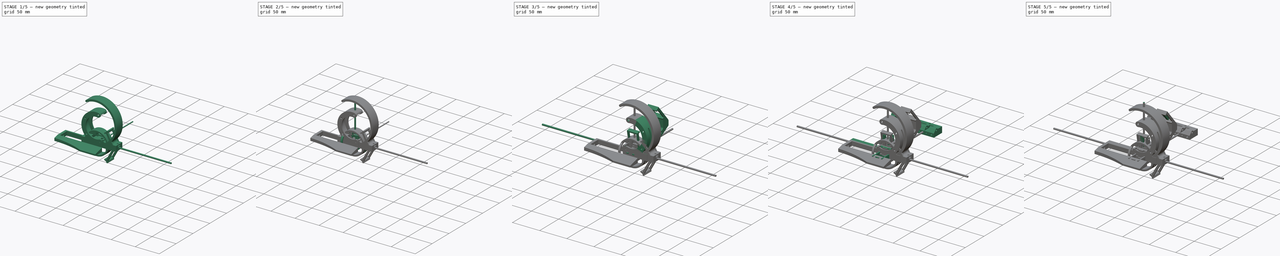
[diagram: build sequence overview — one tinted view per stage of 5, left to right]
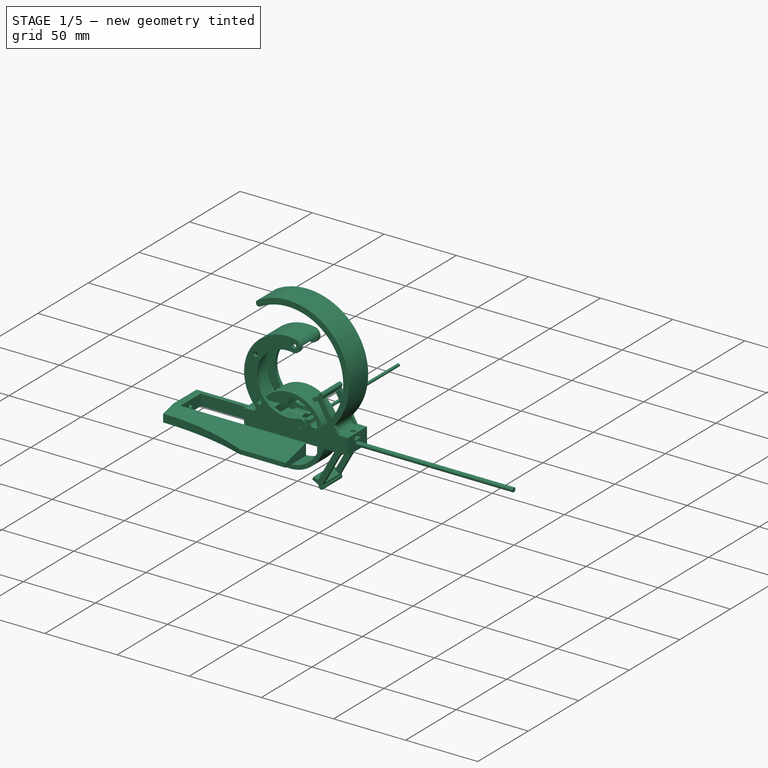
[diagram: stage 1 of 5 — iso view after this stage's code; geometry added in this stage tinted green]
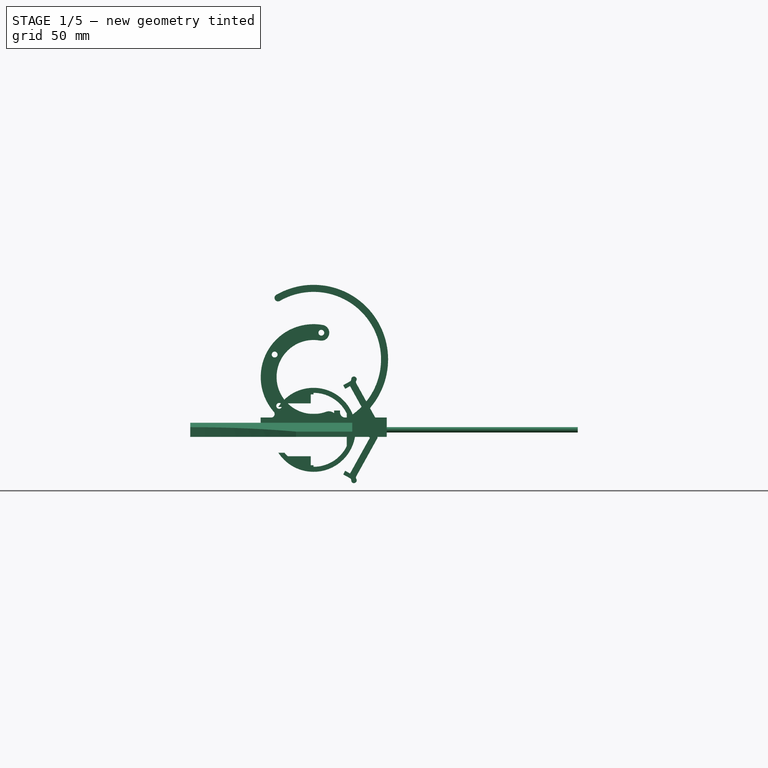
[diagram: stage 1 of 5 — front view after this stage's code; geometry added in this stage tinted green]
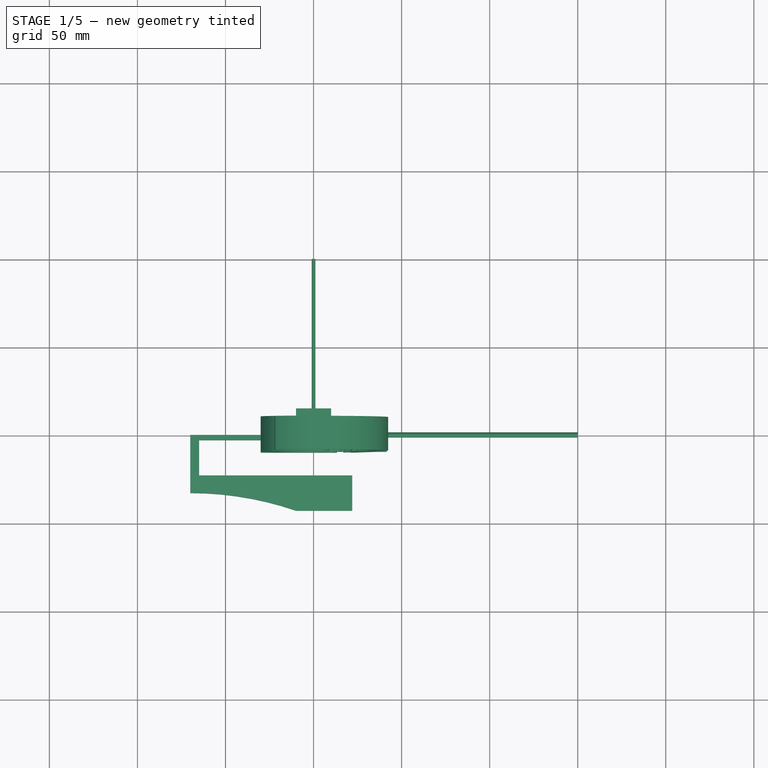
[diagram: stage 1 of 5 — top view after this stage's code; geometry added in this stage tinted green]
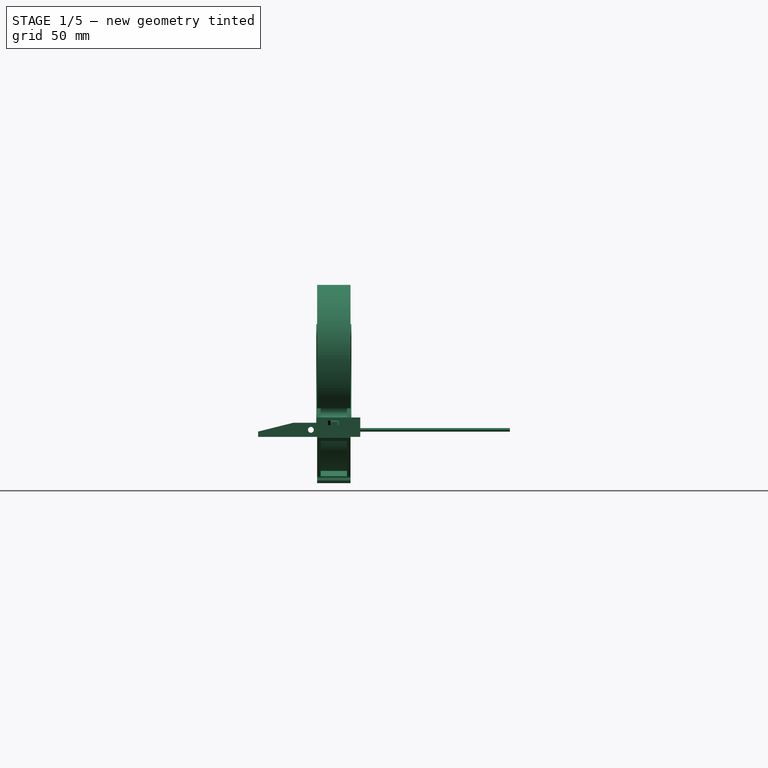
[diagram: stage 1 of 5 — right view after this stage's code; geometry added in this stage tinted green]
FCSTD DOCUMENT  (FreeCAD 0.20R29177 (Git))
Label: Structure
License: All rights reserved
LicenseURL: http://en.wikipedia.org/wiki/All_rights_reserved
objects: Sketcher::SketchObject×201, PartDesign::Pocket×114, PartDesign::Pad×80, PartDesign::Body×60, App::Part×31, App::Link×20, Part::Feature×16, Spreadsheet::Sheet×4, PartDesign::AdditiveLoft×4, PartDesign::Revolution×2, Part::MultiFuse×2, PartDesign::Plane×1, PartDesign::PolarPattern×1, Part::Cut×1
note: 682 computed .brp shape members not serialized (recipe doc carries the construction recipe); baked Part::Feature solids carry a one-line shape summary decoded from their .brp

FEATURE [PartDesign::Body] Body065  label="BaseStructure0"
  Group = -> [Sketch264,Pad169,Sketch265,Pocket085]
  Origin = -> Origin107
  Tip = -> Pocket085
FEATURE [Sketcher::SketchObject] Sketch266
  FullyConstrained = true
  MapMode = 5
  Placement = pos=(0,0,0) rot=(0.57735,0.57735,0.57735;2.0944rad)
  Support = -> [YZ_Plane109]
  expr: Constraints[13] = 3 + <<BaseParameters>>.tolerance
  expr: Constraints[15] = 3 + 2 * <<BaseParameters>>.axisTolerance
  sketch-geometry (6):
    g0: LineSegment StartX=-7 StartY=3 StartZ=0 EndX=-7 EndY=-4 EndZ=0
    g1: LineSegment StartX=-7 StartY=-4 StartZ=0 EndX=3 EndY=-4 EndZ=0
    g2: LineSegment StartX=3 StartY=-4 StartZ=0 EndX=3 EndY=6.15 EndZ=0
    g3: ArcOfCircle CenterX=0 CenterY=6.15 CenterZ=0 NormalX=0 NormalY=0 NormalZ=1 AngleXU=0 Radius=3 StartAngle=0 EndAngle=2.39518
    g4: LineSegment StartX=-2.20238 StartY=8.18704 StartZ=0 EndX=-7 EndY=3 EndZ=0
    g5: Circle CenterX=0 CenterY=6.15 CenterZ=0 NormalX=0 NormalY=0 NormalZ=1 AngleXU=0 Radius=1.65
  constraints (16):
    c: Vertical(g0)
    c: Coincident(g0,g1)
    c: Horizontal(g1)
    c: Coincident(g1,g2)
    c: Vertical(g2)
    c: Tangent(g2,g3) = -1.5708
    c: Tangent(g3,g4) = -1.5708
    c: Coincident(g4,g0)
    c: Distance(g0) = 7
    c: Distance(g0,g-1) = 4
    c: Distance(g1,g-2) = 3
    c: Distance(g0,g-2) = 7
    c: PointOnObject(g3,g-2)
    c: DistanceY(g0,g3) = 3.15
    c: Coincident(g5,g3)
    c: Diameter(g5) = 3.3
FEATURE [PartDesign::Pad] Pad170
  Direction = (1,-2e-16,3e-16)
  Length = 20
  Length2 = 10
  Midplane = true
  Placement = pos=(0,0,0) rot=(0.57735,0.57735,0.57735;2.0944rad)
  Profile = -> Sketch266
  ReferenceAxis = -> Sketch266 [N_Axis]
  Type = 0
FEATURE [Sketcher::SketchObject] Sketch268
  FullyConstrained = true
  MapMode = 5
  Placement = pos=(0,0,0) rot=(1,0,0;1.5708rad)
  Support = -> [XZ_Plane110]
  sketch-geometry (1):
    g0: Circle CenterX=0 CenterY=0 CenterZ=0 NormalX=0 NormalY=0 NormalZ=1 AngleXU=0 Radius=1
  constraints (2):
    c: Coincident(g0,g-1)
    c: Diameter(g0) = 2
FEATURE [PartDesign::Pad] Pad171
  Direction = (0,-1,-2e-16)
  Length = 100
  Length2 = 10
  Placement = pos=(0,0,0) rot=(1,0,0;1.5708rad)
  Profile = -> Sketch268
  ReferenceAxis = -> Sketch268 [N_Axis]
  Reversed = true
  Type = 0
  expr: Length = <<BaseParameters>>.horizontalRailLength
FEATURE [PartDesign::Body] Body067  label="HorizontalRail"
  Group = -> [Sketch268,Pad171]
  Origin = -> Origin110
  Placement = pos=(6.5,0,0) rot=(0,0,1;0rad)
  Tip = -> Pad171
FEATURE [Sketcher::SketchObject] Sketch269
  FullyConstrained = true
  MapMode = 5
  Placement = pos=(0,0,0) rot=(1,0,0;1.5708rad)
  Support = -> [XZ_Plane109]
  expr: Constraints[3] = 2 + <<BaseParameters>>.axisTolerance * 2
  expr: Constraints[6] = 3 + 2 * <<BaseParameters>>.axisTolerance
  sketch-geometry (3):
    g0: Circle CenterX=-6.5 CenterY=0 CenterZ=0 NormalX=0 NormalY=0 NormalZ=1 AngleXU=0 Radius=1.15
    g1: Circle CenterX=6.5 CenterY=0 CenterZ=0 NormalX=0 NormalY=0 NormalZ=1 AngleXU=0 Radius=1.15
    g2: Circle CenterX=0 CenterY=0 CenterZ=0 NormalX=0 NormalY=0 NormalZ=1 AngleXU=0 Radius=1.65
  constraints (7):
    c: PointOnObject(g0,g-1)
    c: Symmetric(g0,g1,g-2)
    c: Equal(g0,g1)
    c: Diameter(g1) = 2.3
    c: Distance(g1,g0) = 13
    c: Coincident(g2,g-1)
    c: Diameter(g2) = 3.3
FEATURE [PartDesign::Pocket] Pocket087
  BaseFeature = -> Pad170
  Direction = (0,1,2e-16)
  Length = 7
  Length2 = 5
  Placement = pos=(0,0,0) rot=(0.57735,0.57735,0.57735;2.0944rad)
  Profile = -> Sketch269
  ReferenceAxis = -> Sketch269 [N_Axis]
  Reversed = true
  Type = 0
FEATURE [App::Link] Link013  label="BaseStructure002"
  LinkPlacement = pos=(-20,2.38419e-06,0) rot=(0,0,1;0rad)
  LinkedObject = -> Body065
  Placement = pos=(-20,2.38419e-06,0) rot=(0,0,1;0rad)
FEATURE [App::Link] Link014  label="BaseStructure003"
  LinkPlacement = pos=(-40,4.76837e-06,0) rot=(0,0,1;0rad)
  LinkedObject = -> Link013
  Placement = pos=(-40,4.76837e-06,0) rot=(0,0,1;0rad)
FEATURE [App::Link] Link015  label="BaseStructure004"
  LinkPlacement = pos=(-60,7.15256e-06,0) rot=(0,0,1;0rad)
  LinkedObject = -> Link014
  Placement = pos=(-60,7.15256e-06,0) rot=(0,0,1;0rad)
FEATURE [App::Link] Link016  label="BaseStructure005"
  LinkPlacement = pos=(-20,100,0) rot=(0,0,1;0rad)
  LinkedObject = -> Body066
  Placement = pos=(-20,100,0) rot=(0,0,1;0rad)
  expr: .Placement.Base.y = <<BaseParameters>>.horizontalRailLength
FEATURE [App::Link] Link017  label="BaseStructure006"
  LinkPlacement = pos=(-40,100,0) rot=(0,0,1;0rad)
  LinkedObject = -> Link016
  Placement = pos=(-40,100,0) rot=(0,0,1;0rad)
  expr: .Placement.Base.y = <<BaseParameters>>.horizontalRailLength
FEATURE [App::Link] Link018  label="BaseStructure007"
  LinkPlacement = pos=(-60,100,0) rot=(0,0,1;0rad)
  LinkedObject = -> Link017
  Placement = pos=(-60,100,0) rot=(0,0,1;0rad)
  expr: .Placement.Base.y = <<BaseParameters>>.horizontalRailLength
FEATURE [Sketcher::SketchObject] Sketch270
  FullyConstrained = true
  MapMode = 5
  Placement = pos=(0,0,0) rot=(0.57735,0.57735,0.57735;2.0944rad)
  Support = -> [YZ_Plane112]
  expr: Constraints[7] = 7 - <<BaseParameters>>.tolerance
  sketch-geometry (6):
    g0: LineSegment StartX=-5 StartY=-4 StartZ=0 EndX=5 EndY=-4 EndZ=0
    g1: LineSegment StartX=-5 StartY=2.85 StartZ=0 EndX=-5 EndY=-4 EndZ=0
    g2: LineSegment StartX=-5 StartY=2.85 StartZ=0 EndX=0 EndY=2.85 EndZ=0
    g3: GeomPoint X=0 Y=6 Z=0
    g4: LineSegment StartX=0 StartY=2.85 StartZ=0 EndX=5 EndY=2.85 EndZ=0
    g5: LineSegment StartX=5 StartY=2.85 StartZ=0 EndX=5 EndY=-4 EndZ=0
  constraints (17):
    c: Coincident(g1,g0)
    c: Horizontal(g0)
    c: Distance(g0,g-1) = 4
    c: PointOnObject(g2,g-2)
    c: Vertical(g1)
    c: Horizontal(g2)
    c: Coincident(g1,g2)
    c: Distance(g1) = 6.85
    c: Distance(g0,g-2) = 5
    c: PointOnObject(g3,g-2)
    c: Distance(g3,g-1) = 6
    c: Coincident(g2,g4)
    c: Horizontal(g4)
    c: Coincident(g4,g5)
    c: Coincident(g5,g0)
    c: Vertical(g5)
    c: Equal(g2,g4)
FEATURE [PartDesign::Pad] Pad172
  Direction = (1,-2e-16,3e-16)
  Length = 18
  Length2 = 10
  Midplane = true
  Placement = pos=(0,0,0) rot=(0.57735,0.57735,0.57735;2.0944rad)
  Profile = -> Sketch270
  ReferenceAxis = -> Sketch270 [N_Axis]
  Type = 0
FEATURE [Sketcher::SketchObject] Sketch271
  FullyConstrained = true
  MapMode = 5
  Placement = pos=(0,0,0) rot=(1,0,0;1.5708rad)
  Support = -> [XZ_Plane112]
  expr: Constraints[3] = 2 + <<BaseParameters>>.axisTolerance * 2
  expr: Constraints[6] = 3 + 2 * <<BaseParameters>>.axisTolerance
  sketch-geometry (3):
    g0: Circle CenterX=-6.5 CenterY=0 CenterZ=0 NormalX=0 NormalY=0 NormalZ=1 AngleXU=0 Radius=1.15
    g1: Circle CenterX=6.5 CenterY=0 CenterZ=0 NormalX=0 NormalY=0 NormalZ=1 AngleXU=0 Radius=1.15
    g2: Circle CenterX=0 CenterY=0 CenterZ=0 NormalX=0 NormalY=0 NormalZ=1 AngleXU=0 Radius=1.65
  constraints (7):
    c: PointOnObject(g0,g-1)
    c: Symmetric(g1,g0,g-2)
    c: Distance(g0,g1) = 13
    c: Diameter(g1) = 2.3
    c: Equal(g0,g1)
    c: Coincident(g2,g-1)
    c: Diameter(g2) = 3.3
FEATURE [PartDesign::Pocket] Pocket088
  BaseFeature = -> Pad172
  Direction = (0,1,2e-16)
  Length = 27
  Length2 = 5
  Midplane = true
  Placement = pos=(0,0,0) rot=(0.57735,0.57735,0.57735;2.0944rad)
  Profile = -> Sketch271
  ReferenceAxis = -> Sketch271 [N_Axis]
  Type = 0
FEATURE [Sketcher::SketchObject] Sketch272
  FullyConstrained = true
  MapMode = 5
  Placement = pos=(0,0,0) rot=(0.57735,0.57735,0.57735;2.0944rad)
  Support = -> [YZ_Plane112]
  expr: Constraints[12] = 3 - <<BaseParameters>>.tolerance
  expr: Constraints[3] = 3 + <<BaseParameters>>.axisTolerance * 2
  sketch-geometry (6):
    g0: LineSegment StartX=-5 StartY=2.85 StartZ=0 EndX=0 EndY=2.85 EndZ=0
    g1: LineSegment StartX=-2.6663 StartY=7.37508 StartZ=0 EndX=-5 EndY=2.85 EndZ=0
    g2: Circle CenterX=0 CenterY=6 CenterZ=0 NormalX=0 NormalY=0 NormalZ=1 AngleXU=0 Radius=1.65
    g3: ArcOfCircle CenterX=0 CenterY=6 CenterZ=0 NormalX=0 NormalY=0 NormalZ=1 AngleXU=0 Radius=3 StartAngle=0.476149 EndAngle=2.66544
    g4: LineSegment StartX=0 StartY=2.85 StartZ=0 EndX=5 EndY=2.85 EndZ=0
    g5: LineSegment StartX=5 StartY=2.85 StartZ=0 EndX=2.6663 EndY=7.37508 EndZ=0
  constraints (15):
    c: PointOnObject(g0,g-2)
    c: Horizontal(g0)
    c: Coincident(g1,g0)
    c: Diameter(g2) = 3.3
    c: Tangent(g3,g1) = -1.5708
    c: Coincident(g0,g4)
    c: Coincident(g4,g5)
    c: Tangent(g5,g3) = -1.5708
    c: Radius(g3) = 3
    c: PointOnObject(g2,g-2)
    c: Coincident(g3,g2)
    c: Distance(g2,g-1) = 6
    c: Distance(g0,g-1) = 2.85
    c: Symmetric(g0,g4,g-2)
    c: Distance(g4) = 5
FEATURE [PartDesign::Pad] Pad173
  BaseFeature = -> Pocket088
  Direction = (1,-2e-16,3e-16)
  Length = 10
  Length2 = 10
  Midplane = true
  Placement = pos=(0,0,0) rot=(0.57735,0.57735,0.57735;2.0944rad)
  Profile = -> Sketch272
  ReferenceAxis = -> Sketch272 [N_Axis]
  Type = 0
FEATURE [PartDesign::Body] Body079  label="Support2Arm"
  Group = -> [Sketch300,Pad184]
  Origin = -> Origin125
  Placement = pos=(0,-13.7108,-12.7105) rot=(-1,0,0;0.496539rad)
  Tip = -> Pad184
  expr: .Placement.Base.y = -Sketch263.Constraints.support2y1
  expr: .Placement.Base.z = -Sketch263.Constraints.support2z1
  expr: .Placement.Rotation.Angle = Sketch263.Constraints.support2theta0
FEATURE [Sketcher::SketchObject] Sketch301  label="BaseSkeleton_Joystick"
  FullyConstrained = false
  MapMode = 5
  Support = -> [XY_Plane106]
  expr: Constraints[13] = Sketch313.Constraints.x0
  expr: Constraints[21] = 1.5 + <<BaseParameters>>.axisTolerance + <<BaseParameters>>.joystickBaseArm0Length
  expr: Constraints[23] = 1.5 + <<BaseParameters>>.axisTolerance
  expr: Constraints[26] = 1.5 + <<BaseParameters>>.axisTolerance
  expr: Constraints[31] = Sketch321.Constraints.y0
  expr: Constraints[38] = <<BaseParameters>>.joystickBaseArm2Length
  expr: Constraints[46] = 6 + <<BaseParameters>>.tolerance
  expr: Constraints[48] = <<BaseParameters>>.horizontalRailLength
  expr: Constraints[54] = <<BaseParameters>>.joystickBaseArm1Length
  expr: Constraints[55] = 1.5 + <<BaseParameters>>.axisTolerance
  sketch-geometry (21):
    g0: LineSegment StartX=-76 StartY=100 StartZ=0 EndX=-76 EndY=0 EndZ=0
    g1: LineSegment StartX=-76 StartY=25.9821 StartZ=0 EndX=-86 EndY=25.9821 EndZ=0
    g2: LineSegment StartX=-79.85 StartY=-55.6906 StartZ=0 EndX=90.1488 EndY=-56.3178 EndZ=0
    g3: LineSegment StartX=83.0978 StartY=-51.6534 StartZ=0 EndX=26 EndY=32.4451 EndZ=0
    g4: LineSegment StartX=26 StartY=32.4451 StartZ=0 EndX=16 EndY=32.4451 EndZ=0
    g5: LineSegment StartX=16 StartY=0 StartZ=0 EndX=16 EndY=100 EndZ=0
    g6: LineSegment StartX=26 StartY=32.4451 StartZ=0 EndX=26 EndY=42.4451 EndZ=0
    g7: GeomPoint X=26.9268 Y=31.08 Z=0
    g8: LineSegment StartX=83.0978 StartY=-51.6534 StartZ=0 EndX=82.171 EndY=-50.2883 EndZ=0
    g9: LineSegment StartX=82.171 StartY=-50.2883 StartZ=0 EndX=82.1489 EndY=-56.2883 EndZ=0
    g10: LineSegment StartX=82.1489 StartY=-56.2883 StartZ=0 EndX=82.1489 EndY=-46.2883 EndZ=0
    g11: LineSegment StartX=90.1488 StartY=-56.3178 StartZ=0 EndX=100.149 EndY=-56.3178 EndZ=0
    g12: LineSegment StartX=-86 StartY=-55.6679 StartZ=0 EndX=-79.85 EndY=-55.6906 EndZ=0
    g13: LineSegment StartX=-86 StartY=25.9821 StartZ=0 EndX=-86 EndY=-54.0179 EndZ=0
    g14: LineSegment StartX=-86 StartY=-54.0179 StartZ=0 EndX=-86 EndY=-55.6679 EndZ=0
    g15: GeomPoint X=-200 Y=0 Z=0
    g16: GeomPoint X=-15.423 Y=-55.9283 Z=0
    g17: LineSegment StartX=-15.423 StartY=-55.9283 StartZ=0 EndX=0.701986 EndY=-47.8962 EndZ=0
    g18: LineSegment StartX=-15.423 StartY=-55.9283 StartZ=0 EndX=-15.423 EndY=-45.9283 EndZ=0
    g19: LineSegment StartX=-15.423 StartY=-55.9283 StartZ=0 EndX=-6.472 EndY=-51.4697 EndZ=0
    g20: GeomPoint X=40.8322 Y=-56.1358 Z=0
  constraints (77):
    c: Vertical(g0)
    c: Distance(g-1,g0) = 76
    c: PointOnObject(g1,g0)
    c: Horizontal(g1)
    c: Coincident(g1,g13)
    c: Coincident(g12,g2)
    c: Coincident(g3,g4)
    c: Horizontal(g4)
    c: PointOnObject(g5,g-1)
    c: Vertical(g5)
    c: PointOnObject(g0,g-1)
    c: Horizontal(g0,g5)
    c: Distance(g5,g-2) = 16
    c: Distance(g4) = 10
    c: Distance(g1) = 10
    c: PointOnObject(g4,g5)
    c: Distance(g4,g-1) = 32.4451  'y0'
    c: Coincident(g6,g3)
    c: Vertical(g6)
    c: Angle(g3,g6) = 2.54514  'theta0'
    c: Distance(g6) = 10
    c: Distance(g3) = 101.65
    c: PointOnObject(g7,g3)
    c: Distance(g7,g3) = 1.65
    c: Distance(g7,g-2) = 26.9268  'x2'
    c: Distance(g7,g-1) = 31.08  'y2'
    c: Distance(g8) = 1.65
    c: Distance(g8,g-2) = 82.171  'x1'
    c: Distance(g8,g-1) = 50.2883  'y1'
    c: PointOnObject(g9,g2)
    c: Perpendicular(g2,g9)
    c: Distance(g9) = 6
    c: Distance(g2,g9) = 8
    c: Coincident(g10,g9)
    c: Vertical(g10)
    c: Equal(g10,g6)
    c: Distance(g2,g-1) = 56.3178  'y3'
    c: Distance(g2,g-2) = 90.1488  'x3'
    c: Distance(g2) = 170
    c: Coincident(g11,g2)
    c: Horizontal(g11)
    c: Distance(g11) = 10
    c: Angle(g11,g2) = 3.1379  'theta1'
    c: Distance(g12,g-2) = 79.85  'x4'
    c: Distance(g12,g-1) = 55.6906  'y4'
    c: Coincident(g14,g12)
    c: Distance(g12) = 6.15
    c: Parallel(g12,g2)
    c: Distance(g5) = 100
    c: Distance(g14,g-2) = 86  'x5'
    c: Distance(g14,g-1) = 55.6679  'y5'
    c: Coincident(g13,g14)
    c: Vertical(g13)
    c: Vertical(g14)
    c: Distance(g13) = 80
    c: Distance(g14) = 1.65
    c: Distance(g1,g-1) = 25.9821  'y6'
    c: Distance(g1,g-2) = 76  'x6'
    c: Coincident(g8,g3)
    c: Parallel(g8,g3)
    c: Coincident(g8,g9)
    c: PointOnObject(g15,g-1)
    c: Distance(g15,g-2) = 200  'xNeg'
    c: PointOnObject(g16,g2)
    c: DistanceX(g15,g16) = 184.577  'x7n'
    c: Distance(g16,g-1) = 55.9283  'y7'
    c: Coincident(g17,g16)
    c: Coincident(g18,g16)
    c: Vertical(g18)
    c: Equal(g18,g10)
    c: Coincident(g19,g16)
    c: Equal(g18,g19)
    c: Angle(g19,g18) = 1.10866  'theta7'
    c: Parallel(g19,g17)
    c: PointOnObject(g20,g2)
    c: Distance(g20,g-2) = 40.8322  'x8'
    c: Distance(g20,g-1) = 56.1358  'y8'
FEATURE [Sketcher::SketchObject] Sketch306
  AttachmentOffset = pos=(0,0,5) rot=(0,0,1;0rad)
  FullyConstrained = true
  MapMode = 5
  Placement = pos=(5,-1.1e-15,1.1e-15) rot=(0.57735,0.57735,0.57735;2.0944rad)
  Support = -> [YZ_Plane127]
  sketch-geometry (4):
    g0: LineSegment StartX=3 StartY=3 StartZ=0 EndX=-7 EndY=3 EndZ=0
    g1: LineSegment StartX=-7 StartY=3 StartZ=0 EndX=-7 EndY=-4 EndZ=0
    g2: LineSegment StartX=-7 StartY=-4 StartZ=0 EndX=3 EndY=-4 EndZ=0
    g3: LineSegment StartX=3 StartY=-4 StartZ=0 EndX=3 EndY=3 EndZ=0
  constraints (12):
    c: Coincident(g0,g1)
    c: Coincident(g1,g2)
    c: Coincident(g2,g3)
    c: Coincident(g3,g0)
    c: Horizontal(g0)
    c: Horizontal(g2)
    c: Vertical(g1)
    c: Vertical(g3)
    c: Distance(g0,g-1) = 3
    c: Distance(g0,g-2) = 3
    c: Distance(g2,g-1) = 4
    c: Distance(g0,g-2) = 7
FEATURE [PartDesign::Pad] Pad189
  Direction = (1,-2e-16,3e-16)
  Length = 11
  Length2 = 10
  Placement = pos=(0,0,0) rot=(0.57735,0.57735,0.57735;2.0944rad)
  Profile = -> Sketch306
  ReferenceAxis = -> Sketch306 [N_Axis]
  Reversed = true
  Type = 0
FEATURE [Sketcher::SketchObject] Sketch307
  FullyConstrained = true
  MapMode = 5
  Placement = pos=(0,0,0) rot=(1,0,0;1.5708rad)
  Support = -> [XZ_Plane127]
  expr: Constraints[1] = 3 + 2 * <<BaseParameters>>.axisTolerance
  sketch-geometry (1):
    g0: Circle CenterX=0 CenterY=0 CenterZ=0 NormalX=0 NormalY=0 NormalZ=1 AngleXU=0 Radius=1.65
  constraints (2):
    c: Coincident(g0,g-1)
    c: Diameter(g0) = 3.3
FEATURE [PartDesign::Pocket] Pocket106
  BaseFeature = -> Pad189
  Direction = (0,1,2e-16)
  Length = 7
  Length2 = 5
  Placement = pos=(0,0,0) rot=(0.57735,0.57735,0.57735;2.0944rad)
  Profile = -> Sketch307
  ReferenceAxis = -> Sketch307 [N_Axis]
  Reversed = true
  Type = 0
FEATURE [PartDesign::Body] Body097  label="Ring"
  Group = -> [Pad207,Pocket131,Pocket130,Pocket133]
  Origin = -> Origin149
  Tip = -> Pocket133
FEATURE [Sketcher::SketchObject] Sketch347
  AttachmentOffset = pos=(0,0,-6) rot=(0,0,1;0rad)
  FullyConstrained = true
  MapMode = 5
  Placement = pos=(-6,1.3e-15,-1.3e-15) rot=(0.57735,0.57735,0.57735;2.0944rad)
  Support = -> [YZ_Plane127]
  expr: Constraints[11] = 3 + 2 * <<BaseParameters>>.axisTolerance
  expr: Constraints[12] = 3 + <<BaseParameters>>.tolerance
  sketch-geometry (5):
    g0: LineSegment StartX=-7 StartY=3 StartZ=0 EndX=3 EndY=3 EndZ=0
    g1: LineSegment StartX=3 StartY=3 StartZ=0 EndX=3 EndY=6.15 EndZ=0
    g2: ArcOfCircle CenterX=0 CenterY=6.15 CenterZ=0 NormalX=0 NormalY=0 NormalZ=1 AngleXU=0 Radius=3 StartAngle=0 EndAngle=2.39518
    g3: LineSegment StartX=-2.20238 StartY=8.18704 StartZ=0 EndX=-7 EndY=3 EndZ=0
    g4: Circle CenterX=0 CenterY=6.15 CenterZ=0 NormalX=0 NormalY=0 NormalZ=1 AngleXU=0 Radius=1.65
  constraints (13):
    c: Horizontal(g0)
    c: Coincident(g0,g1)
    c: Vertical(g1)
    c: Tangent(g1,g2) = -1.5708
    c: Tangent(g2,g3) = -1.5708
    c: Coincident(g3,g0)
    c: Distance(g0,g-1) = 3
    c: Distance(g0,g-2) = 3
    c: Distance(g0,g-2) = 7
    c: Coincident(g4,g2)
    c: PointOnObject(g2,g-2)
    c: Diameter(g4) = 3.3
    c: Distance(g2,g0) = 3.15
FEATURE [PartDesign::Pad] Pad208
  BaseFeature = -> Pocket106
  Direction = (1,-2e-16,3e-16)
  Length = 11
  Length2 = 10
  Placement = pos=(0,0,0) rot=(0.57735,0.57735,0.57735;2.0944rad)
  Profile = -> Sketch347
  ReferenceAxis = -> Sketch347 [N_Axis]
  Type = 0
FEATURE [Sketcher::SketchObject] Sketch357
  FullyConstrained = false
  MapMode = 5
  Placement = pos=(0,0,0) rot=(0.57735,0.57735,0.57735;2.0944rad)
  Support = -> [YZ_Plane106]
  sketch-geometry (7):
    g0: LineSegment StartX=0 StartY=0 StartZ=0 EndX=80.0705 EndY=0 EndZ=0
    g1: LineSegment StartX=80.0705 StartY=0 StartZ=0 EndX=80.0705 EndY=6.24829 EndZ=0
    g2: LineSegment StartX=80.0705 StartY=6.24829 StartZ=0 EndX=87.0267 EndY=68.9938 EndZ=0
    g3: LineSegment StartX=18.5592 StartY=0 StartZ=0 EndX=18.5592 EndY=6.01981 EndZ=0
    g4: LineSegment StartX=18.5592 StartY=6.01981 StartZ=0 EndX=-2.1084 EndY=27.6035 EndZ=0
    g5: LineSegment StartX=-2.1084 StartY=27.6035 StartZ=0 EndX=39.2263 EndY=33.68 EndZ=0
    g6: LineSegment StartX=39.2263 StartY=33.68 StartZ=0 EndX=67.7306 EndY=59.9716 EndZ=0
  constraints (10):
    c: Coincident(g0,g-1)
    c: PointOnObject(g0,g-1)
    c: Coincident(g0,g1)
    c: Vertical(g1)
    c: Coincident(g1,g2)
    c: PointOnObject(g3,g0)
    c: Vertical(g3)
    c: Coincident(g3,g4)
    c: Coincident(g4,g5)
    c: Coincident(g5,g6)
FEATURE [Sketcher::SketchObject] Sketch358
  FullyConstrained = true
  MapMode = 5
  Placement = pos=(0,0,0) rot=(1,0,0;1.5708rad)
  Support = -> [XZ_Plane154]
  expr: Constraints[3] = 2 * sqrt(15 * 15 - 7.5 * 7.5)
  expr: Constraints[60] = 40 + 2 * <<BaseParameters>>.tolerance
  sketch-geometry (31):
    g0: LineSegment StartX=-20 StartY=12.9904 StartZ=0 EndX=-20 EndY=-12.9904 EndZ=0
    g1: ArcOfCircle CenterX=0 CenterY=0 CenterZ=0 NormalX=0 NormalY=0 NormalZ=1 AngleXU=0 Radius=23.8485 StartAngle=3.71763 EndAngle=8.84874
    g2: LineSegment StartX=-18 StartY=10.8167 StartZ=0 EndX=-18 EndY=-10.8167 EndZ=0
    g3: LineSegment StartX=-20 StartY=12.9904 StartZ=0 EndX=-18 EndY=10.8167 EndZ=0
    g4: LineSegment StartX=-20 StartY=-12.9904 StartZ=0 EndX=-18 EndY=-10.8167 EndZ=0
    g5: ArcOfCircle CenterX=0 CenterY=0 CenterZ=0 NormalX=0 NormalY=0 NormalZ=1 AngleXU=0 Radius=21 StartAngle=3.9372 EndAngle=4.63612
    g6: ArcOfCircle CenterX=0 CenterY=0 CenterZ=0 NormalX=0 NormalY=0 NormalZ=1 AngleXU=0 Radius=21 StartAngle=1.64706 EndAngle=2.34599
    g7: LineSegment StartX=-14.6969 StartY=15 StartZ=0 EndX=-1.6 EndY=15 EndZ=0
    g8: LineSegment StartX=-14.6969 StartY=-15 StartZ=0 EndX=-1.6 EndY=-15 EndZ=0
    g9: GeomPoint X=-16.5 Y=12.9904 Z=0
    g10: ArcOfCircle CenterX=0 CenterY=0 CenterZ=0 NormalX=0 NormalY=0 NormalZ=1 AngleXU=0 Radius=21 StartAngle=2.34599 EndAngle=2.47465
    g11: ArcOfCircle CenterX=0 CenterY=0 CenterZ=0 NormalX=0 NormalY=0 NormalZ=1 AngleXU=0 Radius=21 StartAngle=2.47465 EndAngle=2.60049
    g12: ArcOfCircle CenterX=0 CenterY=0 CenterZ=0 NormalX=0 NormalY=0 NormalZ=1 AngleXU=0 Radius=21 StartAngle=3.68269 EndAngle=3.80854
    g13: ArcOfCircle CenterX=0 CenterY=0 CenterZ=0 NormalX=0 NormalY=0 NormalZ=1 AngleXU=0 Radius=21 StartAngle=3.80854 EndAngle=3.9372
    g14: LineSegment StartX=-20 StartY=-12.9904 StartZ=0 EndX=-16.5 EndY=-12.9904 EndZ=0
    g15: LineSegment StartX=-20 StartY=12.9904 StartZ=0 EndX=-16.5 EndY=12.9904 EndZ=0
    g16: LineSegment StartX=-1.6 StartY=-20.15 StartZ=0 EndX=-3.8e-15 EndY=-20.15 EndZ=0
    g17: LineSegment StartX=-3.9e-15 StartY=-20.15 StartZ=0 EndX=-3.9e-15 EndY=-21 EndZ=0
    g18: ArcOfCircle CenterX=0 CenterY=0 CenterZ=0 NormalX=0 NormalY=0 NormalZ=1 AngleXU=0 Radius=21 StartAngle=4.63612 EndAngle=4.71239
    g19: ArcOfCircle CenterX=0 CenterY=0 CenterZ=0 NormalX=0 NormalY=0 NormalZ=1 AngleXU=0 Radius=21 StartAngle=1.5708 EndAngle=1.64706
    g20: LineSegment StartX=-1.6 StartY=20.15 StartZ=0 EndX=1.3e-15 EndY=20.15 EndZ=0
    g21: LineSegment StartX=1.3e-15 StartY=20.15 StartZ=0 EndX=1.3e-15 EndY=21 EndZ=0
    g22: LineSegment StartX=-1.6 StartY=-15 StartZ=0 EndX=-1.6 EndY=-20.15 EndZ=0
    g23: LineSegment StartX=-1.6 StartY=-20.15 StartZ=0 EndX=-1.6 EndY=-20.939 EndZ=0
    g24: LineSegment StartX=-1.6 StartY=15 StartZ=0 EndX=-1.6 EndY=20.15 EndZ=0
    g25: LineSegment StartX=-1.6 StartY=20.15 StartZ=0 EndX=-1.6 EndY=20.939 EndZ=0
    g26: ArcOfCircle CenterX=0 CenterY=0 CenterZ=0 NormalX=0 NormalY=0 NormalZ=1 AngleXU=0 Radius=21 StartAngle=0.456623 EndAngle=1.5708
    g27: ArcOfCircle CenterX=0 CenterY=0 CenterZ=0 NormalX=0 NormalY=0 NormalZ=1 AngleXU=0 Radius=21 StartAngle=4.71239 EndAngle=5.82656
    g28: ArcOfCircle CenterX=0 CenterY=0 CenterZ=0 NormalX=0 NormalY=0 NormalZ=1 AngleXU=0 Radius=21 StartAngle=5.82656 EndAngle=6.73981
    g29: LineSegment StartX=18.8485 StartY=9.25931 StartZ=0 EndX=18.8485 EndY=-9.25931 EndZ=0
    g30: GeomPoint X=23.8485 Y=0 Z=0
  constraints (85):
    c: Distance(g-1,g0) = 20
    c: Coincident(g1,g-1)
    c: Coincident(g1,g0)
    c: Distance(g0) = 25.9808
    c: Coincident(g1,g0)
    c: Vertical(g0)
    c: Vertical(g2)
    c: Coincident(g12,g1)
    c: Coincident(g11,g2)
    c: Coincident(g12,g2)
    c: Distance(g1,g2) = 18
    c: Coincident(g3,g0)
    c: Coincident(g3,g2)
    c: Coincident(g4,g0)
    c: Coincident(g4,g2)
    c: Coincident(g13,g5)
    c: Coincident(g12,g5)
    c: Coincident(g6,g10)
    c: Coincident(g5,g10)
    c: Coincident(g5,g18)
    c: Coincident(g5,g18)
    c: Coincident(g19,g6)
    c: Coincident(g18,g6)
    c: Coincident(g7,g10)
    c: Coincident(g24,g7)
    c: Coincident(g25,g19)
    c: Coincident(g8,g13)
    c: Coincident(g22,g8)
    c: Coincident(g23,g5)
    c: Distance(g7,g8) = 30  'l0'
    c: Equal(g8,g7)
    c: Vertical(g7,g8)
    c: Distance(g8,g-2) = 1.6
    c: Distance(g9,g-2) = 16.5  'x0'
    c: Horizontal(g1,g9)
    c: Coincident(g10,g11)
    c: Coincident(g10,g11)
    c: Coincident(g10,g9)
    c: Coincident(g12,g13)
    c: Coincident(g12,g13)
    c: Coincident(g14,g1)
    c: Coincident(g14,g12)
    c: Horizontal(g14)
    c: Coincident(g15,g1)
    c: Coincident(g15,g10)
    c: Horizontal(g16)
    c: Coincident(g16,g17)
    c: Vertical(g17)
    c: Coincident(g18,g27)
    c: Coincident(g18,g27)
    c: Radius(g18) = 21
    c: Coincident(g18,g17)
    c: Coincident(g26,g19)
    c: Coincident(g27,g19)
    c: Horizontal(g20)
    c: Coincident(g20,g21)
    c: Coincident(g21,g26)
    c: Vertical(g21)
    c: Equal(g20,g16)
    c: Equal(g17,g21)
    c: Distance(g20,g16) = 40.3
    c: Coincident(g22,g23)
    c: Vertical(g22)
    c: Vertical(g23)
    c: Coincident(g22,g16)
    c: Coincident(g24,g25)
    c: Vertical(g24)
    c: Vertical(g25)
    c: Coincident(g24,g20)
    c: Equal(g24,g22)
    c: Horizontal(g7)
    c: PointOnObject(g16,g-2)
    c: Coincident(g28,g26)
    c: Coincident(g27,g26)
    c: Coincident(g27,g28)
    c: Coincident(g27,g28)
    c: Coincident(g29,g26)
    c: Coincident(g29,g27)
    c: Vertical(g29)
    c: PointOnObject(g30,g1)
    c: PointOnObject(g30,g-1)
    c: Distance(g30,g29) = 5
    c: Distance(g1,g29) = 18.8485  'x1'
    c: Radius(g1) = 23.8485  'r0'
    c: Radius(g26) = 21  'r1'
FEATURE [PartDesign::Pad] Pad212
  Direction = (0,-1,-2e-16)
  Length = 15
  Length2 = 10
  Midplane = true
  Placement = pos=(0,0,0) rot=(1,0,0;1.5708rad)
  Profile = -> Sketch358
  ReferenceAxis = -> Sketch358 [N_Axis]
  Type = 0
FEATURE [Spreadsheet::Sheet] Spreadsheet003  label="JoystickParameters"
  cells = A1=转子高度; B1(rotorHeight)=30
FEATURE [Sketcher::SketchObject] Sketch366
  FullyConstrained = true
  MapMode = 5
  Placement = pos=(0,0,0) rot=(1,0,0;1.5708rad)
  Support = -> [XZ_Plane169]
  expr: Constraints[10] = 3 + 2 * <<BaseParameters>>.axisTolerance
  expr: Constraints[14] = Sketch358.Constraints.r0 + 6mm + 1mm * <<BaseParameters>>.tolerance
  expr: Constraints[18] = Sketch358.Constraints.r1
  expr: Constraints[6] = <<JoystickParameters>>.rotorHeight
  expr: Constraints[7] = Sketch358.Constraints.r0
  sketch-geometry (20):
    g0: LineSegment StartX=-30.0353 StartY=-4 StartZ=0 EndX=13.2195 EndY=-4 EndZ=0
    g1: LineSegment StartX=13.2195 StartY=-4 StartZ=0 EndX=13.2195 EndY=6.03927 EndZ=0
    g2: Circle CenterX=0 CenterY=30 CenterZ=0 NormalX=0 NormalY=0 NormalZ=1 AngleXU=0 Radius=23.8485
    g3: Circle CenterX=-19.533 CenterY=13.6099 CenterZ=0 NormalX=0 NormalY=0 NormalZ=1 AngleXU=0 Radius=1.65
    g4: Circle CenterX=8.72099 CenterY=6.03927 CenterZ=0 NormalX=0 NormalY=0 NormalZ=1 AngleXU=0 Radius=1.65
    g5: ArcOfCircle CenterX=8.72099 CenterY=6.03927 CenterZ=0 NormalX=0 NormalY=0 NormalZ=1 AngleXU=0 Radius=4.49848 StartAngle=0 EndAngle=1.91986
    g6: ArcOfCircle CenterX=0 CenterY=30 CenterZ=0 NormalX=0 NormalY=0 NormalZ=1 AngleXU=0 Radius=21 StartAngle=1.39626 EndAngle=5.06145
    g7: ArcOfCircle CenterX=4.4279 CenterY=55.1118 CenterZ=0 NormalX=0 NormalY=0 NormalZ=1 AngleXU=0 Radius=4.49924 StartAngle=4.53786 EndAngle=7.67945
    g8: ArcOfCircle CenterX=0 CenterY=30 CenterZ=0 NormalX=0 NormalY=0 NormalZ=1 AngleXU=0 Radius=29.9985 StartAngle=1.39626 EndAngle=3.86085
    g9: ArcOfCircle CenterX=-24.0353 CenterY=8.95089 CenterZ=0 NormalX=0 NormalY=0 NormalZ=1 AngleXU=0 Radius=1.95089 StartAngle=4.71239 EndAngle=7.00244
    g10: LineSegment StartX=-24.0353 StartY=7 StartZ=0 EndX=-30.0353 EndY=7 EndZ=0
    g11: LineSegment StartX=-30.0353 StartY=7 StartZ=0 EndX=-30.0353 EndY=-4 EndZ=0
    g12: LineSegment StartX=4.4279 StartY=55.1118 StartZ=0 EndX=0 EndY=30 EndZ=0
    g13: LineSegment StartX=0 StartY=30 StartZ=0 EndX=8.72099 EndY=6.03927 EndZ=0
    g14: Circle CenterX=4.42776 CenterY=55.1111 CenterZ=0 NormalX=0 NormalY=0 NormalZ=1 AngleXU=0 Radius=1.65
    g15: LineSegment StartX=-19.533 StartY=13.6099 StartZ=0 EndX=0 EndY=30 EndZ=0
    g16: Circle CenterX=-22.0823 CenterY=42.7492 CenterZ=0 NormalX=0 NormalY=0 NormalZ=1 AngleXU=0 Radius=1.65
    g17: LineSegment StartX=-22.0823 StartY=42.7492 StartZ=0 EndX=0 EndY=30 EndZ=0
    g18: GeomPoint X=-27.0353 Y=7 Z=0
    g19: GeomPoint X=-27.0353 Y=17 Z=0
  constraints (52):
    c: Horizontal(g0)
    c: Coincident(g0,g1)
    c: Vertical(g1)
    c: Distance(g0,g-1) = 4
    c: Distance(g0,g-2) = 30.0353  'x0'
    c: PointOnObject(g2,g-2)
    c: Distance(g2,g-1) = 30
    c: Radius(g2) = 23.8485
    c: Tangent(g3,g2)
    c: Tangent(g4,g2)
    c: Diameter(g4) = 3.3
    c: Coincident(g5,g4)
    c: Tangent(g7,g8) = -1.5708
    c: Tangent(g7,g6) = 1.5708
    c: Radius(g8) = 29.9985
    c: Tangent(g6,g5) = 1.5708
    c: Coincident(g6,g8)
    c: Coincident(g6,g2)
    c: Radius(g6) = 21
    c: Tangent(g5,g1) = -1.5708
    c: Distance(g4,g-1) = 6.03927  'z0'
    c: Tangent(g9,g10) = 1.5708
    c: Coincident(g10,g11)
    c: Coincident(g11,g0)
    c: Horizontal(g10)
    c: Vertical(g11)
    c: Tangent(g9,g8) = 1.5708
    c: Distance(g10,g-1) = 7
    c: Coincident(g12,g7)
    c: Coincident(g12,g6)
    c: Coincident(g13,g6)
    c: Coincident(g13,g4)
    c: Angle(g13,g12) = 2.61799
    c: PointOnObject(g14,g12)
    c: Equal(g14,g3)
    c: Tangent(g14,g2)
    c: Equal(g3,g4)
    c: Coincident(g15,g3)
    c: Coincident(g15,g6)
    c: Angle(g-2,g12) = 2.96706
    c: Equal(g16,g3)
    c: Tangent(g16,g2)
    c: Coincident(g17,g16)
    c: Coincident(g17,g6)
    c: Angle(g17,g15) = 1.22173
    c: Angle(g12,g17) = 1.22173
    c: PointOnObject(g18,g10)
    c: Distance(g18,g10) = 3
    c: PointOnObject(g19,g8)
    c: Vertical(g19,g18)
    c: Distance(g19,g18) = 10
    c: Distance(g18,g9) = 3
FEATURE [PartDesign::Pad] Pad214
  Direction = (0,-1,-2e-16)
  Length = 20
  Length2 = 10
  Midplane = true
  Placement = pos=(0,0,0) rot=(1,0,0;1.5708rad)
  Profile = -> Sketch366
  ReferenceAxis = -> Sketch366 [N_Axis]
  Type = 0
FEATURE [Sketcher::SketchObject] Sketch367
  FullyConstrained = true
  MapMode = 5
  Placement = pos=(0,0,0) rot=(1,0,0;1.5708rad)
  Support = -> [XZ_Plane169]
  expr: Constraints[1] = Sketch358.Constraints.r0 + 3mm + <<BaseParameters>>.tolerance * 1mm
  expr: Constraints[2] = <<JoystickParameters>>.rotorHeight
  sketch-geometry (1):
    g0: Circle CenterX=0 CenterY=30 CenterZ=0 NormalX=0 NormalY=0 NormalZ=1 AngleXU=0 Radius=26.9985
  constraints (3):
    c: PointOnObject(g0,g-2)
    c: Radius(g0) = 26.9985
    c: Distance(g0,g-1) = 30
FEATURE [PartDesign::Pocket] Pocket144
  BaseFeature = -> Pad214
  Direction = (0,1,2e-16)
  Length = 15.3
  Length2 = 5
  Midplane = true
  Placement = pos=(0,0,0) rot=(1,0,0;1.5708rad)
  Profile = -> Sketch367
  ReferenceAxis = -> Sketch367 [N_Axis]
  Type = 0
  expr: Length = 15 + 2 * <<BaseParameters>>.tolerance
FEATURE [Sketcher::SketchObject] Sketch368
  AttachmentOffset = pos=(0,0,15) rot=(0,0,1;0rad)
  FullyConstrained = true
  MapMode = 5
  Placement = pos=(15,-3.3e-15,3.3e-15) rot=(0.57735,0.57735,0.57735;2.0944rad)
  Support = -> [YZ_Plane169]
  expr: Constraints[1] = 3 + 2 * <<BaseParameters>>.axisTolerance
  sketch-geometry (1):
    g0: Circle CenterX=0 CenterY=0 CenterZ=0 NormalX=0 NormalY=0 NormalZ=1 AngleXU=0 Radius=1.65
  constraints (2):
    c: Coincident(g0,g-1)
    c: Diameter(g0) = 3.3
FEATURE [PartDesign::Pocket] Pocket145
  BaseFeature = -> Pocket144
  Direction = (-1,2e-16,-3e-16)
  Length = 49
  Length2 = 5
  Placement = pos=(0,0,0) rot=(1,0,0;1.5708rad)
  Profile = -> Sketch368
  ReferenceAxis = -> Sketch368 [N_Axis]
  Type = 0
FEATURE [PartDesign::Body] Body102  label="SingleKeyCircuitHolder"
  Group = -> [Sketch375,Pad218,Sketch380,Pad219,Sketch381,Pad220]
  Origin = -> Origin186
  Placement = pos=(0,0,-6.6) rot=(0,0,1;0rad)
  Tip = -> Pad220
FEATURE [App::Part] Part013  label="SingleKeyHolderPart"
  Group = -> [Body002,SingleKeyPCB_1,Body102]
  Origin = -> Origin083
  Placement = pos=(0,2.5,23) rot=(1,0,0;-1.39626rad)
  expr: .Placement.Base.y = <<KeyHolderParameter>>.key1y
  expr: .Placement.Base.z = <<KeyHolderParameter>>.key1z
  expr: .Placement.Rotation.Angle = -<<KeyHolderParameter>>.key1theta
FEATURE [App::Part] Part  label="KeyHolder"
  Group = -> [Spreadsheet,Part013,Link003,Link004,Link005,Part001,Body051,Body058,Body053,Link006,Part014]
  Origin = -> Origin
FEATURE [App::Part] Part018  label="KeyHolders"
  Group = -> [Part,Link008,Link009,Link010]
  Origin = -> Origin105
  Placement = pos=(0,14.7811,41.5434) rot=(1,0,0;0.098786rad)
  expr: .Placement.Base.y = Sketch403.Constraints.y3
  expr: .Placement.Base.z = Sketch403.Constraints.z3
  expr: .Placement.Rotation.Angle = 90deg - Sketch403.Constraints.theta3
FEATURE [Spreadsheet::Sheet] Spreadsheet004  label="ThumbKeyHolderParameter"
  cells = A1=拇指按键组高度; B1(thumbKeyHolderHeight)=40; A2=按键分布半径; B2(radius)=27; A3=按键相隔角度; B3(deltaTheta)=58
FEATURE [Sketcher::SketchObject] Sketch382
  FullyConstrained = true
  MapMode = 5
  Placement = pos=(0,0,0) rot=(1,0,0;1.5708rad)
  Support = -> [XZ_Plane187]
  expr: Constraints[3] = <<ThumbKeyHolderParameter>>.radius
  expr: Constraints[4] = <<ThumbKeyHolderParameter>>.deltaTheta
  sketch-geometry (24):
    g0: LineSegment StartX=0 StartY=0 StartZ=0 EndX=23.6147 EndY=13.0899 EndZ=0
    g1: LineSegment StartX=0 StartY=0 StartZ=0 EndX=23.6147 EndY=-13.0899 EndZ=0
    g2: LineSegment StartX=16.8274 StartY=25.3345 StartZ=0 EndX=30.4021 EndY=0.845184 EndZ=0
    g3: LineSegment StartX=30.4021 StartY=-0.845184 StartZ=0 EndX=16.8274 EndY=-25.3345 EndZ=0
    g4: ArcOfCircle CenterX=34.4713 CenterY=0 CenterZ=0 NormalX=0 NormalY=0 NormalZ=1 AngleXU=0 Radius=3.85069 StartAngle=5.77704 EndAngle=6.78933
    g5: ArcOfCircle CenterX=28.8773 CenterY=0 CenterZ=0 NormalX=0 NormalY=0 NormalZ=1 AngleXU=0 Radius=1.74333 StartAngle=5.77704 EndAngle=6.78933
    g6: GeomPoint X=30.6206 Y=0 Z=0
    g7: GeomPoint X=38.322 Y=0 Z=0
    g8: Circle CenterX=0 CenterY=0 CenterZ=0 NormalX=0 NormalY=0 NormalZ=1 AngleXU=0 Radius=38.322
    g9: ArcOfCircle CenterX=22.9497 CenterY=28.7282 CenterZ=0 NormalX=0 NormalY=0 NormalZ=1 AngleXU=0 Radius=1.55247 StartAngle=5.74213 EndAngle=9.40732
    g10: ArcOfCircle CenterX=19.8453 CenterY=28.7824 CenterZ=0 NormalX=0 NormalY=0 NormalZ=1 AngleXU=0 Radius=1.55247 StartAngle=5.21853 EndAngle=6.26573
    g11: ArcOfCircle CenterX=25.6112 CenterY=27.129 CenterZ=0 NormalX=0 NormalY=0 NormalZ=1 AngleXU=0 Radius=1.55247 StartAngle=2.60054 EndAngle=3.64774
    g12: LineSegment StartX=16.8274 StartY=25.3345 StartZ=0 EndX=20.5979 EndY=27.4246 EndZ=0
    g13: LineSegment StartX=16.8274 StartY=-25.3345 StartZ=0 EndX=20.5979 EndY=-27.4246 EndZ=0
    g14: ArcOfCircle CenterX=19.8453 CenterY=-28.7824 CenterZ=0 NormalX=0 NormalY=0 NormalZ=1 AngleXU=0 Radius=1.55247 StartAngle=0.0174533 EndAngle=1.06465
    g15: ArcOfCircle CenterX=22.9497 CenterY=-28.7282 CenterZ=0 NormalX=0 NormalY=0 NormalZ=1 AngleXU=0 Radius=1.55247 StartAngle=3.15905 EndAngle=6.82424
    g16: ArcOfCircle CenterX=25.6112 CenterY=-27.129 CenterZ=0 NormalX=0 NormalY=0 NormalZ=1 AngleXU=0 Radius=1.55247 StartAngle=2.63545 EndAngle=3.68264
    g17: LineSegment StartX=30.6206 StartY=0 StartZ=0 EndX=34.4713 EndY=0 EndZ=0
    g18: LineSegment StartX=34.4713 StartY=0 StartZ=0 EndX=38.322 EndY=0 EndZ=0
    g19: LineSegment StartX=37.8392 StartY=-1.86685 StartZ=0 EndX=36.322 EndY=-4.60395 EndZ=0
    g20: LineSegment StartX=36.322 StartY=-4.60395 StartZ=0 EndX=24.2534 EndY=-26.3764 EndZ=0
    g21: LineSegment StartX=24.2534 StartY=26.3764 StartZ=0 EndX=36.322 EndY=4.60395 EndZ=0
    g22: LineSegment StartX=36.322 StartY=4.60395 StartZ=0 EndX=37.8392 EndY=1.86685 EndZ=0
    g23: LineSegment StartX=36.322 StartY=4.60395 StartZ=0 EndX=36.322 EndY=-4.60395 EndZ=0
  constraints (65):
    c: Coincident(g0,g-1)
    c: Coincident(g1,g0)
    c: Equal(g0,g1)
    c: Distance(g0) = 27
    c: Angle(g1,g0) = 1.01229
    c: Perpendicular(g2,g0)
    c: Perpendicular(g3,g1)
    c: Symmetric(g3,g3,g1)
    c: Symmetric(g2,g2,g0)
    c: Equal(g2,g3)
    c: Distance(g2) = 28
    c: Angle(g0,g-2) = 1.06465  'theta'
    c: Coincident(g2,g12)
    c: Distance(g0,g-2) = 23.6147  'x1'
    c: Coincident(g13,g3)
    c: Distance(g0,g-1) = 13.0899  'z1'
    c: Tangent(g22,g4) = 1.5708
    c: Tangent(g19,g4) = 1.5708
    c: Coincident(g5,g2)
    c: Tangent(g5,g3) = 1.5708
    c: PointOnObject(g6,g5)
    c: PointOnObject(g7,g4)
    c: PointOnObject(g6,g-1)
    c: PointOnObject(g7,g-1)
    c: Coincident(g8,g0)
    c: Tangent(g8,g4)
    c: Tangent(g9,g8)
    c: Tangent(g10,g9) = 1.5708
    c: Tangent(g11,g9) = 1.5708
    c: Equal(g10,g9)
    c: Equal(g11,g9)
    c: Perpendicular(g2,g12)
    c: Tangent(g16,g20) = -1.5708
    c: Tangent(g14,g13) = 1.5708
    c: Tangent(g15,g14) = 1.5708
    c: Tangent(g16,g15) = 1.5708
    c: Tangent(g12,g10) = -1.5708
    c: Tangent(g21,g11) = -1.5708
    c: PointOnObject(g9,g12)
    c: Distance(g9,g2) = 7
    c: PointOnObject(g5,g-1)
    c: Tangent(g15,g8)
    c: Equal(g14,g15)
    c: Equal(g16,g15)
    c: PointOnObject(g15,g13)
    c: PointOnObject(g4,g-1)
    c: Coincident(g17,g6)
    c: Coincident(g17,g4)
    c: Coincident(g18,g4)
    c: Coincident(g18,g7)
    c: Equal(g18,g17)
    c: Radius(g8) = 38.322  'slotRadius'
    c: Coincident(g19,g20)
    c: Parallel(g19,g3)
    c: Parallel(g20,g3)
    c: Distance(g3,g20) = 7
    c: Perpendicular(g19,g13)
    c: PointOnObject(g15,g20)
    c: Coincident(g21,g22)
    c: PointOnObject(g9,g21)
    c: Coincident(g23,g21)
    c: Coincident(g23,g19)
    c: Vertical(g23)
    c: Parallel(g21,g22)
    c: Distance(g7,g23) = 2
FEATURE [Part::Feature] Part__Feature001  label="Keycap_adjusted v39"
  Placement = pos=(0,0,6.4) rot=(1,0,0;1.5708rad)
  shape: bbox 18.32 x 18.3 x 7.723 mm, 77 faces (baked)
FEATURE [Part::Feature] Part__Feature049  label="Body002"
  Placement = pos=(-7,-7,-5) rot=(0,0,1;0rad)
  shape: bbox 15.56 x 15.56 x 14.7 mm, 16 faces (baked)
FEATURE [App::Part] Part007  label="Key1"
  Group = -> [Part__Feature049,Part__Feature001]
  Origin = -> Origin011
  Placement = pos=(23.6147,0,13.0899) rot=(0,1,0;4.20624rad)
  expr: .Placement.Base.x = Sketch382.Constraints.x1
  expr: .Placement.Base.z = Sketch382.Constraints.z1
  expr: .Placement.Rotation.Angle = Sketch382.Constraints.theta + 180deg
FEATURE [Part::Feature] Part__Feature050  label="Keycap_adjusted v040"
  Placement = pos=(0,0,6.4) rot=(1,0,0;1.5708rad)
  shape: bbox 18.32 x 18.3 x 7.723 mm, 77 faces (baked)
FEATURE [Part::Feature] Part__Feature051  label="Body102"
  Placement = pos=(-7,-7,-5) rot=(0,0,1;0rad)
  shape: bbox 15.56 x 15.56 x 14.7 mm, 16 faces (baked)
FEATURE [App::Part] Part028  label="Key002"
  Group = -> [Part__Feature051,Part__Feature050]
  Origin = -> Origin190
  Placement = pos=(23.6147,0,-13.0899) rot=(0,1,0;5.21853rad)
  expr: .Placement.Base.x = Sketch382.Constraints.x1
  expr: .Placement.Base.z = -Sketch382.Constraints.z1
  expr: .Placement.Rotation.Angle = Sketch382.Constraints.theta + 180deg + <<ThumbKeyHolderParameter>>.deltaTheta * 1deg
FEATURE [App::Part] Part027  label="ThumbKeys"
  Group = -> [Part007,Part028]
  Origin = -> Origin189
FEATURE [PartDesign::Pad] Pad221
  Direction = (0,-1,-2e-16)
  Length = 19
  Length2 = 10
  Midplane = true
  Placement = pos=(0,0,0) rot=(1,0,0;1.5708rad)
  Profile = -> Sketch382
  ReferenceAxis = -> Sketch382 [N_Axis]
  Type = 0
FEATURE [Sketcher::SketchObject] Sketch383
  FullyConstrained = true
  MapMode = 5
  Placement = pos=(0,0,0) rot=(1,0,0;1.5708rad)
  Support = -> [XZ_Plane187]
  expr: Constraints[22] = <<ThumbKeyHolderParameter>>.radius
  expr: Constraints[27] = 23 + 2 * <<BaseParameters>>.tolerance
  expr: Constraints[2] = <<ThumbKeyHolderParameter>>.deltaTheta
  sketch-geometry (10):
    g0: LineSegment StartX=0 StartY=0 StartZ=0 EndX=23.6147 EndY=-13.0899 EndZ=0
    g1: LineSegment StartX=0 StartY=0 StartZ=0 EndX=23.6147 EndY=13.0899 EndZ=0
    g2: LineSegment StartX=29.2628 StartY=-2.90054 StartZ=0 EndX=17.9667 EndY=-23.2792 EndZ=0
    g3: LineSegment StartX=17.9667 StartY=-23.2792 StartZ=0 EndX=24.089 EndY=-26.6728 EndZ=0
    g4: LineSegment StartX=24.089 StartY=-26.6728 StartZ=0 EndX=35.3851 EndY=-6.29421 EndZ=0
    g5: LineSegment StartX=35.3851 StartY=-6.29421 StartZ=0 EndX=29.2628 EndY=-2.90054 EndZ=0
    g6: LineSegment StartX=17.9667 StartY=23.2792 StartZ=0 EndX=29.2628 EndY=2.90054 EndZ=0
    g7: LineSegment StartX=29.2628 StartY=2.90054 StartZ=0 EndX=35.3851 EndY=6.29421 EndZ=0
    g8: LineSegment StartX=35.3851 StartY=6.29421 StartZ=0 EndX=24.089 EndY=26.6728 EndZ=0
    g9: LineSegment StartX=24.089 StartY=26.6728 StartZ=0 EndX=17.9667 EndY=23.2792 EndZ=0
  constraints (28):
    c: Equal(g1,g0)
    c: Vertical(g0,g1)
    c: Angle(g0,g1) = 1.01229
    c: Coincident(g3,g4)
    c: Coincident(g4,g5)
    c: Coincident(g5,g2)
    c: Coincident(g6,g7)
    c: Coincident(g7,g8)
    c: Coincident(g8,g9)
    c: Coincident(g9,g6)
    c: Perpendicular(g8,g9)
    c: Perpendicular(g8,g7)
    c: Perpendicular(g7,g6)
    c: Perpendicular(g5,g2)
    c: Perpendicular(g4,g5)
    c: Perpendicular(g4,g3)
    c: Equal(g5,g7)
    c: Equal(g6,g2)
    c: PointOnObject(g0,g2)
    c: PointOnObject(g1,g6)
    c: Symmetric(g6,g6,g1)
    c: Symmetric(g2,g2,g0)
    c: Distance(g1) = 27
    c: Coincident(g1,g-1)
    c: Coincident(g0,g1)
    c: Distance(g9) = 7
    c: Coincident(g2,g3)
    c: Distance(g8) = 23.3
FEATURE [PartDesign::Pocket] Pocket149
  BaseFeature = -> Pad221
  Direction = (0,1,2e-16)
  Length = 15
  Length2 = 5
  Midplane = true
  Placement = pos=(0,0,0) rot=(1,0,0;1.5708rad)
  Profile = -> Sketch383
  ReferenceAxis = -> Sketch383 [N_Axis]
  Type = 0
FEATURE [PartDesign::Body] Body104  label="Little"
  Group = -> [Pad222,Pocket152,Pocket150,Pocket151,Sketch384,Pocket153]
  Origin = -> Origin193
  Placement = pos=(-20,0,0) rot=(0,0,1;0rad)
  Tip = -> Pocket153
FEATURE [App::Part] Part031  label="KeyHolderFrameAforRingAndLittle"
  Group = -> [Body097,Body104]
  Origin = -> Origin194
  Placement = pos=(-40,0,40) rot=(0,0,1;0rad)
FEATURE [Sketcher::SketchObject] Sketch385
  FullyConstrained = true
  MapMode = 5
  Placement = pos=(0,0,0) rot=(1,0,0;1.5708rad)
  Support = -> [XZ_Plane187]
  expr: Constraints[49] = <<ThumbKeyHolderParameter>>.deltaTheta
  expr: Constraints[50] = <<ThumbKeyHolderParameter>>.deltaTheta
  expr: Constraints[51] = <<ThumbKeyHolderParameter>>.deltaTheta
  expr: Constraints[53] = <<ThumbKeyHolderParameter>>.radius
  expr: Constraints[54] = 3 + <<KeyHolderParameter>>.tolerance
  expr: Constraints[55] = 23 + 2 * <<KeyHolderParameter>>.tolerance
  sketch-geometry (20):
    g0: LineSegment StartX=0 StartY=0 StartZ=0 EndX=1.41307 EndY=-26.963 EndZ=0
    g1: LineSegment StartX=0 StartY=0 StartZ=0 EndX=23.6147 EndY=-13.0899 EndZ=0
    g2: LineSegment StartX=0 StartY=0 StartZ=0 EndX=23.6147 EndY=13.0899 EndZ=0
    g3: LineSegment StartX=0 StartY=0 StartZ=0 EndX=1.41307 EndY=26.963 EndZ=0
    g4: LineSegment StartX=-10.0561 StartY=30.7184 StartZ=0 EndX=-10.221 EndY=27.5727 EndZ=0
    g5: LineSegment StartX=-10.221 StartY=27.5727 StartZ=0 EndX=13.0471 EndY=26.3533 EndZ=0
    g6: LineSegment StartX=13.0471 StartY=26.3533 StartZ=0 EndX=13.212 EndY=29.499 EndZ=0
    g7: LineSegment StartX=13.212 StartY=29.499 StartZ=0 EndX=-10.0561 EndY=30.7184 EndZ=0
    g8: LineSegment StartX=17.9667 StartY=23.2792 StartZ=0 EndX=29.2628 EndY=2.90054 EndZ=0
    g9: LineSegment StartX=29.2628 StartY=2.90054 StartZ=0 EndX=32.0178 EndY=4.42769 EndZ=0
    g10: LineSegment StartX=32.0178 StartY=4.42769 StartZ=0 EndX=20.7218 EndY=24.8063 EndZ=0
    g11: LineSegment StartX=20.7218 StartY=24.8063 StartZ=0 EndX=17.9667 EndY=23.2792 EndZ=0
    g12: LineSegment StartX=29.2628 StartY=-2.90054 StartZ=0 EndX=17.9667 EndY=-23.2792 EndZ=0
    g13: LineSegment StartX=17.9667 StartY=-23.2792 StartZ=0 EndX=20.7218 EndY=-24.8063 EndZ=0
    g14: LineSegment StartX=20.7218 StartY=-24.8063 StartZ=0 EndX=32.0178 EndY=-4.42769 EndZ=0
    g15: LineSegment StartX=32.0178 StartY=-4.42769 StartZ=0 EndX=29.2628 EndY=-2.90054 EndZ=0
    g16: LineSegment StartX=-10.221 StartY=-27.5727 StartZ=0 EndX=-10.0561 EndY=-30.7184 EndZ=0
    g17: LineSegment StartX=-10.0561 StartY=-30.7184 StartZ=0 EndX=13.212 EndY=-29.499 EndZ=0
    g18: LineSegment StartX=13.212 StartY=-29.499 StartZ=0 EndX=13.0471 EndY=-26.3533 EndZ=0
    g19: LineSegment StartX=13.0471 StartY=-26.3533 StartZ=0 EndX=-10.221 EndY=-27.5727 EndZ=0
  constraints (56):
    c: Coincident(g0,g-1)
    c: Coincident(g1,g0)
    c: Coincident(g2,g0)
    c: Coincident(g3,g0)
    c: Coincident(g4,g5)
    c: Coincident(g5,g6)
    c: Coincident(g6,g7)
    c: Coincident(g7,g4)
    c: Coincident(g8,g9)
    c: Coincident(g9,g10)
    c: Coincident(g10,g11)
    c: Coincident(g11,g8)
    c: Coincident(g12,g13)
    c: Coincident(g13,g14)
    c: Coincident(g14,g15)
    c: Coincident(g15,g12)
    c: Coincident(g16,g17)
    c: Coincident(g17,g18)
    c: Coincident(g18,g19)
    c: Coincident(g16,g19)
    c: Perpendicular(g18,g19)
    c: Perpendicular(g17,g18)
    c: Perpendicular(g17,g16)
    c: Perpendicular(g13,g12)
    c: Perpendicular(g14,g13)
    c: Perpendicular(g14,g15)
    c: Perpendicular(g9,g8)
    c: Perpendicular(g10,g9)
    c: Perpendicular(g10,g11)
    c: Perpendicular(g6,g5)
    c: Perpendicular(g7,g6)
    c: Perpendicular(g7,g4)
    c: PointOnObject(g3,g5)
    c: PointOnObject(g2,g8)
    c: PointOnObject(g1,g12)
    c: PointOnObject(g0,g19)
    c: Symmetric(g16,g18,g0)
    c: Symmetric(g12,g12,g1)
    c: Symmetric(g8,g8,g2)
    c: Symmetric(g5,g4,g3)
    c: Equal(g6,g11)
    c: Equal(g9,g15)
    c: Equal(g13,g18)
    c: Equal(g0,g1)
    c: Equal(g1,g2)
    c: Equal(g2,g3)
    c: Equal(g19,g12)
    c: Equal(g12,g8)
    c: Equal(g8,g5)
    c: Angle(g2,g3) = 1.01229
    c: Angle(g1,g2) = 1.01229
    c: Angle(g0,g1) = 1.01229
    c: Vertical(g2,g1)
    c: Distance(g3) = 27
    c: Distance(g4) = 3.15
    c: Distance(g7) = 23.3
FEATURE [PartDesign::Pocket] Pocket154
  BaseFeature = -> Pocket149
  Direction = (0,1,2e-16)
  Length = 20
  Length2 = 5
  Midplane = true
  Placement = pos=(0,0,0) rot=(1,0,0;1.5708rad)
  Profile = -> Sketch385
  ReferenceAxis = -> Sketch385 [N_Axis]
  Type = 0
FEATURE [Sketcher::SketchObject] Sketch386
  FullyConstrained = true
  MapMode = 5
  Placement = pos=(0,0,0) rot=(1,0,0;1.5708rad)
  Support = -> [XZ_Plane191]
  expr: Constraints[15] = <<ThumbKeyHolderParameter>>.thumbKeyHolderHeight
  expr: Constraints[16] = Sketch382.Constraints.slotRadius
  sketch-geometry (17):
    g0: LineSegment StartX=-15 StartY=11 StartZ=0 EndX=15 EndY=11 EndZ=0
    g1: LineSegment StartX=20 StartY=-4 StartZ=0 EndX=-15 EndY=-4 EndZ=0
    g2: LineSegment StartX=-15 StartY=-4 StartZ=0 EndX=-15 EndY=11 EndZ=0
    g3: LineSegment StartX=15 StartY=11 StartZ=0 EndX=15 EndY=10 EndZ=0
    g4: ArcOfCircle CenterX=18 CenterY=10 CenterZ=0 NormalX=0 NormalY=0 NormalZ=1 AngleXU=0 Radius=3 StartAngle=3.14159 EndAngle=4.71239
    g5: ArcOfCircle CenterX=0 CenterY=40 CenterZ=0 NormalX=0 NormalY=0 NormalZ=1 AngleXU=0 Radius=38.322 StartAngle=5.24571 EndAngle=8.37758
    g6: ArcOfCircle CenterX=0 CenterY=40 CenterZ=0 NormalX=0 NormalY=0 NormalZ=1 AngleXU=0 Radius=42.322 StartAngle=5.59384 EndAngle=8.37758
    g7: ArcOfCircle CenterX=-20.161 CenterY=74.9199 CenterZ=0 NormalX=0 NormalY=0 NormalZ=1 AngleXU=0 Radius=2 StartAngle=2.0944 EndAngle=5.23599
    g8: LineSegment StartX=0 StartY=40 StartZ=0 EndX=-20.161 EndY=74.9199 EndZ=0
    g9: ArcOfCircle CenterX=35.5268 CenterY=10.7174 CenterZ=0 NormalX=0 NormalY=0 NormalZ=1 AngleXU=0 Radius=3.71737 StartAngle=2.45224 EndAngle=4.71239
    g10: LineSegment StartX=41.5268 StartY=7 StartZ=0 EndX=41.5268 EndY=-4 EndZ=0
    g11: LineSegment StartX=41.5268 StartY=-4 StartZ=0 EndX=20 EndY=-4 EndZ=0
    g12: LineSegment StartX=18 StartY=7 StartZ=0 EndX=19.4828 EndY=7 EndZ=0
    g13: LineSegment StartX=35.5268 StartY=7 StartZ=0 EndX=41.5268 EndY=7 EndZ=0
    g14: GeomPoint X=35.5268 Y=7 Z=0
    g15: GeomPoint X=35.5268 Y=17 Z=0
    g16: GeomPoint X=38.5268 Y=7 Z=0
  constraints (43):
    c: Coincident(g1,g2)
    c: Coincident(g2,g0)
    c: Horizontal(g1)
    c: Vertical(g2)
    c: Distance(g1,g-2) = 15
    c: Distance(g1,g-2) = 20
    c: Distance(g1,g-1) = 4
    c: Distance(g0,g-1) = 11
    c: Coincident(g0,g3)
    c: Vertical(g3)
    c: Symmetric(g0,g0,g-2)
    c: Tangent(g3,g4) = -1.5708
    c: Tangent(g12,g4) = -1.5708
    c: Radius(g4) = 3
    c: PointOnObject(g5,g-2)
    c: Distance(g5,g-1) = 40
    c: Radius(g5) = 38.322
    c: Coincident(g6,g5)
    c: Tangent(g7,g5) = 1.5708
    c: Tangent(g7,g6) = -1.5708
    c: Radius(g7) = 2
    c: Coincident(g8,g5)
    c: Coincident(g8,g7)
    c: Tangent(g9,g6) = 1.5708
    c: Coincident(g13,g10)
    c: Vertical(g10)
    c: Coincident(g10,g11)
    c: Horizontal(g11)
    c: Horizontal(g12)
    c: Coincident(g12,g5)
    c: Distance(g10) = 11
    c: Horizontal(g5,g9)
    c: Horizontal(g13)
    c: Coincident(g11,g1)
    c: Tangent(g9,g13) = -1.5708
    c: Distance(g13) = 6
    c: Coincident(g14,g9)
    c: PointOnObject(g15,g6)
    c: Vertical(g15,g9)
    c: Distance(g15,g9) = 10
    c: Distance(g16,g-2) = 38.5268  'x1'
    c: Symmetric(g9,g10,g16)
    c: Angle(g8,g-2) = 2.61799
FEATURE [PartDesign::Pad] Pad223
  Direction = (0,-1,-2e-16)
  Length = 19
  Length2 = 10
  Midplane = true
  Placement = pos=(0,0,0) rot=(1,0,0;1.5708rad)
  Profile = -> Sketch386
  ReferenceAxis = -> Sketch386 [N_Axis]
  Type = 0
FEATURE [Sketcher::SketchObject] Sketch387
  FullyConstrained = true
  MapMode = 5
  Placement = pos=(0,0,0) rot=(1,0,0;1.5708rad)
  Support = -> [XZ_Plane191]
  expr: Constraints[8] = 3 + <<KeyHolderParameter>>.tolerance
  expr: Constraints[9] = 23 + 2 * <<KeyHolderParameter>>.tolerance
  sketch-geometry (4):
    g0: LineSegment StartX=-11.65 StartY=11 StartZ=0 EndX=11.65 EndY=11 EndZ=0
    g1: LineSegment StartX=11.65 StartY=11 StartZ=0 EndX=11.65 EndY=7.85 EndZ=0
    g2: LineSegment StartX=11.65 StartY=7.85 StartZ=0 EndX=-11.65 EndY=7.85 EndZ=0
    g3: LineSegment StartX=-11.65 StartY=7.85 StartZ=0 EndX=-11.65 EndY=11 EndZ=0
  constraints (11):
    c: Coincident(g0,g1)
    c: Coincident(g1,g2)
    c: Coincident(g2,g3)
    c: Coincident(g3,g0)
    c: Horizontal(g2)
    c: Vertical(g1)
    c: Vertical(g3)
    c: Symmetric(g0,g0,g-2)
    c: Distance(g3) = 3.15
    c: Distance(g0) = 23.3
    c: Distance(g0,g-1) = 11
FEATURE [PartDesign::Pocket] Pocket155
  BaseFeature = -> Pad223
  Direction = (0,1,2e-16)
  Length = 19
  Length2 = 5
  Midplane = true
  Placement = pos=(0,0,0) rot=(1,0,0;1.5708rad)
  Profile = -> Sketch387
  ReferenceAxis = -> Sketch387 [N_Axis]
  Type = 0
FEATURE [Sketcher::SketchObject] Sketch388
  FullyConstrained = true
  MapMode = 5
  Placement = pos=(0,0,0) rot=(1,0,0;1.5708rad)
  Support = -> [XZ_Plane191]
  expr: Constraints[7] = 23 + 2 * <<KeyHolderParameter>>.tolerance
  sketch-geometry (4):
    g0: LineSegment StartX=-11.65 StartY=11 StartZ=0 EndX=11.65 EndY=11 EndZ=0
    g1: LineSegment StartX=11.65 StartY=11 StartZ=0 EndX=11.65 EndY=-4 EndZ=0
    g2: LineSegment StartX=11.65 StartY=-4 StartZ=0 EndX=-11.65 EndY=-4 EndZ=0
    g3: LineSegment StartX=-11.65 StartY=-4 StartZ=0 EndX=-11.65 EndY=11 EndZ=0
  constraints (11):
    c: Coincident(g0,g1)
    c: Coincident(g1,g2)
    c: Coincident(g2,g3)
    c: Coincident(g3,g0)
    c: Horizontal(g2)
    c: Vertical(g1)
    c: Vertical(g3)
    c: Distance(g0) = 23.3
    c: Symmetric(g0,g0,g-2)
    c: Distance(g0,g-1) = 11
    c: Distance(g3) = 15
FEATURE [PartDesign::Pocket] Pocket156
  BaseFeature = -> Pocket155
  Direction = (0,1,2e-16)
  Length = 15
  Length2 = 5
  Midplane = true
  Placement = pos=(0,0,0) rot=(1,0,0;1.5708rad)
  Profile = -> Sketch388
  ReferenceAxis = -> Sketch388 [N_Axis]
  Type = 0
FEATURE [Sketcher::SketchObject] Sketch392
  FullyConstrained = true
  MapMode = 5
  Placement = pos=(0,0,0) rot=(1,0,0;1.5708rad)
  Support = -> [XZ_Plane109]
  sketch-geometry (8):
    g0: LineSegment StartX=-10 StartY=10 StartZ=0 EndX=-3 EndY=10 EndZ=0
    g1: LineSegment StartX=-3 StartY=10 StartZ=0 EndX=-3 EndY=3 EndZ=0
    g2: LineSegment StartX=-3 StartY=3 StartZ=0 EndX=-10 EndY=3 EndZ=0
    g3: LineSegment StartX=-10 StartY=3 StartZ=0 EndX=-10 EndY=10 EndZ=0
    g4: LineSegment StartX=3 StartY=10 StartZ=0 EndX=10 EndY=10 EndZ=0
    g5: LineSegment StartX=10 StartY=10 StartZ=0 EndX=10 EndY=3 EndZ=0
    g6: LineSegment StartX=10 StartY=3 StartZ=0 EndX=3 EndY=3 EndZ=0
    g7: LineSegment StartX=3 StartY=3 StartZ=0 EndX=3 EndY=10 EndZ=0
  constraints (23):
    c: Coincident(g0,g1)
    c: Coincident(g1,g2)
    c: Coincident(g2,g3)
    c: Coincident(g3,g0)
    c: Horizontal(g0)
    c: Horizontal(g2)
    c: Vertical(g1)
    c: Vertical(g3)
    c: Coincident(g4,g5)
    c: Coincident(g5,g6)
    c: Coincident(g6,g7)
    c: Coincident(g7,g4)
    c: Horizontal(g4)
    c: Horizontal(g6)
    c: Vertical(g5)
    c: Vertical(g7)
    c: Distance(g1,g-1) = 3
    c: Symmetric(g1,g6,g-2)
    c: Equal(g0,g4)
    c: Distance(g2,g5) = 20
    c: Distance(g3) = 7
    c: Equal(g3,g7)
    c: Distance(g1,g6) = 6
FEATURE [PartDesign::Pocket] Pocket157
  BaseFeature = -> Pocket087
  Direction = (0,1,2e-16)
  Length = 14
  Length2 = 5
  Midplane = true
  Placement = pos=(0,0,0) rot=(0.57735,0.57735,0.57735;2.0944rad)
  Profile = -> Sketch392
  ReferenceAxis = -> Sketch392 [N_Axis]
  Type = 0
FEATURE [PartDesign::Body] Body099  label="JoystickRotorFrame"
  Group = -> [Sketch358,Pad212,Sketch359,Sketch360,Sketch361,AdditiveLoft001,Pocket140,Sketch362,Pad213,Sketch363,Pocket141,Sketch364,Pocket142,Sketch365,Pocket143,Sketch416,Pocket171]
  Origin = -> Origin155
  Tip = -> Pocket171
FEATURE [Sketcher::SketchObject] Sketch417
  FullyConstrained = true
  MapMode = 5
  Support = -> [XY_Plane199]
  expr: Constraints[28] = 15 + 2 * <<BaseParameters>>.tolerance
  expr: Constraints[31] = 5 + <<BaseParameters>>.tolerance
  sketch-geometry (12):
    g0: LineSegment StartX=-5.15 StartY=-5.65 StartZ=0 EndX=-7.15 EndY=-7.65 EndZ=0
    g1: LineSegment StartX=-7.15 StartY=-7.65 StartZ=0 EndX=-7.15 EndY=-9.65 EndZ=0
    g2: LineSegment StartX=-7.15 StartY=-9.65 StartZ=0 EndX=2 EndY=-9.65 EndZ=0
    g3: LineSegment StartX=2 StartY=-9.65 StartZ=0 EndX=2 EndY=9.65 EndZ=0
    g4: LineSegment StartX=2 StartY=9.65 StartZ=0 EndX=-7.15 EndY=9.65 EndZ=0
    g5: LineSegment StartX=-7.15 StartY=9.65 StartZ=0 EndX=-7.15 EndY=7.65 EndZ=0
    g6: LineSegment StartX=-7.15 StartY=7.65 StartZ=0 EndX=-5.15 EndY=5.65 EndZ=0
    g7: LineSegment StartX=-5.15 StartY=5.65 StartZ=0 EndX=-5.15 EndY=7.65 EndZ=0
    g8: LineSegment StartX=-5.15 StartY=7.65 StartZ=0 EndX=0 EndY=7.65 EndZ=0
    g9: LineSegment StartX=0 StartY=7.65 StartZ=0 EndX=0 EndY=-7.65 EndZ=0
    g10: LineSegment StartX=0 StartY=-7.65 StartZ=0 EndX=-5.15 EndY=-7.65 EndZ=0
    g11: LineSegment StartX=-5.15 StartY=-7.65 StartZ=0 EndX=-5.15 EndY=-5.65 EndZ=0
  constraints (35):
    c: Coincident(g0,g1)
    c: Vertical(g1)
    c: Coincident(g1,g2)
    c: Horizontal(g2)
    c: Coincident(g2,g3)
    c: Vertical(g3)
    c: Coincident(g3,g4)
    c: Horizontal(g4)
    c: Coincident(g4,g5)
    c: Vertical(g5)
    c: Coincident(g5,g6)
    c: Coincident(g6,g7)
    c: Vertical(g7)
    c: Coincident(g7,g8)
    c: Horizontal(g8)
    c: Coincident(g8,g9)
    c: Vertical(g9)
    c: Coincident(g9,g10)
    c: Horizontal(g10)
    c: Coincident(g10,g11)
    c: Coincident(g11,g0)
    c: Vertical(g11)
    c: Symmetric(g6,g0,g-1)
    c: Angle(g7,g6) = 0.785398
    c: Equal(g5,g1)
    c: Equal(g11,g7)
    c: Equal(g6,g0)
    c: Equal(g4,g2)
    c: Distance(g9) = 15.3
    c: Distance(g8,g4) = 2
    c: PointOnObject(g-1,g9)
    c: Distance(g10) = 5.15
    c: Distance(g11) = 2
    c: Distance(g10,g0) = 2
    c: Distance(g-1,g3) = 2
FEATURE [PartDesign::Pad] Pad232
  Direction = (0,0,1)
  Length = 2.7
  Length2 = 10
  Midplane = true
  Profile = -> Sketch417
  ReferenceAxis = -> Sketch417 [N_Axis]
  Type = 0
  expr: Length = 3 - 2 * <<BaseParameters>>.tolerance
FEATURE [PartDesign::Body] Body111  label="Buckle"
  Group = -> [Sketch417,Pad232]
  Origin = -> Origin205
  Placement = pos=(0,0,-17.5) rot=(0,0,1;0rad)
  Tip = -> Pad232
FEATURE [App::Part] Part024  label="JoystickRotor"
  Group = -> [Body099,JoystickPCB_1001,Body111]
  Origin = -> Origin168
  Placement = pos=(0,0,30) rot=(0,1,0;0.261799rad)
  expr: .Placement.Base.z = <<JoystickParameters>>.rotorHeight
FEATURE [Sketcher::SketchObject] Sketch418
  FullyConstrained = true
  MapMode = 5
  Support = -> [XY_Plane126]
  sketch-geometry (12):
    g0: LineSegment StartX=10 StartY=0 StartZ=0 EndX=10 EndY=7 EndZ=0
    g1: LineSegment StartX=10 StartY=7 StartZ=0 EndX=22 EndY=7 EndZ=0
    g2: LineSegment StartX=22 StartY=7 StartZ=0 EndX=22 EndY=-3 EndZ=0
    g3: LineSegment StartX=-65 StartY=-3 StartZ=0 EndX=-65 EndY=-23 EndZ=0
    g4: LineSegment StartX=-65 StartY=-23 StartZ=0 EndX=-70 EndY=-23 EndZ=0
    g5: LineSegment StartX=-70 StartY=-23 StartZ=0 EndX=-70 EndY=0 EndZ=0
    g6: LineSegment StartX=-70 StartY=0 StartZ=0 EndX=10 EndY=0 EndZ=0
    g7: LineSegment StartX=22 StartY=-3 StartZ=0 EndX=22 EndY=-23 EndZ=0
    g8: LineSegment StartX=22 StartY=-23 StartZ=0 EndX=17 EndY=-23 EndZ=0
    g9: LineSegment StartX=17 StartY=-23 StartZ=0 EndX=17 EndY=-3 EndZ=0
    g10: LineSegment StartX=22 StartY=-3 StartZ=0 EndX=17 EndY=-3 EndZ=0
    g11: LineSegment StartX=17 StartY=-3 StartZ=0 EndX=-65 EndY=-3 EndZ=0
  constraints (35):
    c: PointOnObject(g0,g-1)
    c: Vertical(g0)
    c: Coincident(g0,g1)
    c: Horizontal(g1)
    c: Coincident(g1,g2)
    c: Vertical(g2)
    c: Coincident(g2,g10)
    c: Coincident(g11,g3)
    c: Vertical(g3)
    c: Coincident(g3,g4)
    c: Horizontal(g4)
    c: Coincident(g4,g5)
    c: PointOnObject(g5,g-1)
    c: Vertical(g5)
    c: Coincident(g5,g6)
    c: Coincident(g6,g0)
    c: Distance(g0,g-2) = 10
    c: Distance(g1) = 12
    c: Distance(g2,g-1) = 3
    c: Distance(g5,g-2) = 70
    c: Distance(g3) = 20
    c: Distance(g4) = 5
    c: Distance(g0) = 7
    c: Coincident(g2,g7)
    c: Vertical(g7)
    c: Coincident(g7,g8)
    c: Horizontal(g8)
    c: Coincident(g8,g9)
    c: Vertical(g9)
    c: Coincident(g10,g11)
    c: Horizontal(g10)
    c: Horizontal(g11)
    c: Coincident(g10,g9)
    c: Equal(g8,g4)
    c: Horizontal(g3,g8)
FEATURE [PartDesign::Pad] Pad233
  Direction = (0,0,1)
  Length = 8
  Length2 = 10
  Midplane = true
  Profile = -> Sketch418
  ReferenceAxis = -> Sketch418 [N_Axis]
  Type = 0
FEATURE [Sketcher::SketchObject] Sketch420
  AttachmentOffset = pos=(0,0,22) rot=(0,0,1;0rad)
  FullyConstrained = true
  MapMode = 5
  Placement = pos=(22,-4.9e-15,4.9e-15) rot=(0.57735,0.57735,0.57735;2.0944rad)
  Support = -> [YZ_Plane126]
  sketch-geometry (4):
    g0: LineSegment StartX=-23 StartY=4 StartZ=0 EndX=-23 EndY=-4 EndZ=0
    g1: LineSegment StartX=-23 StartY=-4 StartZ=0 EndX=-43 EndY=-4 EndZ=0
    g2: LineSegment StartX=-43 StartY=-4 StartZ=0 EndX=-43 EndY=-1 EndZ=0
    g3: LineSegment StartX=-43 StartY=-1 StartZ=0 EndX=-23 EndY=4 EndZ=0
  constraints (11):
    c: Coincident(g0,g1)
    c: Horizontal(g1)
    c: Coincident(g1,g2)
    c: Vertical(g2)
    c: Coincident(g2,g3)
    c: Coincident(g3,g0)
    c: Distance(g2) = 3
    c: Distance(g1) = 20
    c: Distance(g0) = 8
    c: Symmetric(g0,g0,g-1)
    c: Distance(g0,g-2) = 23
FEATURE [PartDesign::Pad] Pad234
  BaseFeature = -> Pad233
  Direction = (1,-2e-16,3e-16)
  Length = 92
  Length2 = 10
  Profile = -> Sketch420
  ReferenceAxis = -> Sketch420 [N_Axis]
  Reversed = true
  Type = 0
FEATURE [Sketcher::SketchObject] Sketch421
  FullyConstrained = true
  MapMode = 5
  Support = -> [XY_Plane126]
  sketch-geometry (3):
    g0: LineSegment StartX=-70 StartY=-33 StartZ=0 EndX=-70 EndY=-43 EndZ=0
    g1: LineSegment StartX=-70 StartY=-43 StartZ=0 EndX=-10 EndY=-43 EndZ=0
    g2: ArcOfCircle CenterX=-70 CenterY=-218 CenterZ=0 NormalX=0 NormalY=0 NormalZ=1 AngleXU=0 Radius=185 StartAngle=1.2405 EndAngle=1.5708
  constraints (10):
    c: Vertical(g0)
    c: Coincident(g0,g1)
    c: Horizontal(g1)
    c: Coincident(g2,g0)
    c: Coincident(g2,g1)
    c: Vertical(g2,g0)
    c: Distance(g0,g-1) = 43
    c: Distance(g0) = 10
    c: Distance(g0,g-2) = 70
    c: Distance(g1,g-2) = 10
FEATURE [PartDesign::Pocket] Pocket172
  BaseFeature = -> Pad234
  Direction = (0,0,-1)
  Length = 13
  Length2 = 5
  Midplane = true
  Profile = -> Sketch421
  ReferenceAxis = -> Sketch421 [N_Axis]
  Type = 0
FEATURE [Sketcher::SketchObject] Sketch422
  AttachmentOffset = pos=(0,0,-24) rot=(0,0,1;0rad)
  FullyConstrained = true
  MapMode = 5
  Placement = pos=(-24,5.3e-15,-5.3e-15) rot=(0.57735,0.57735,0.57735;2.0944rad)
  Support = -> [YZ_Plane126]
  expr: Constraints[1] = 3 + 2 * <<BaseParameters>>.axisTolerance
  sketch-geometry (1):
    g0: Circle CenterX=-13 CenterY=0 CenterZ=0 NormalX=0 NormalY=0 NormalZ=1 AngleXU=0 Radius=1.65
  constraints (3):
    c: PointOnObject(g0,g-1)
    c: Diameter(g0) = 3.3
    c: Distance(g0,g-2) = 13
FEATURE [PartDesign::Pocket] Pocket173
  BaseFeature = -> Pocket172
  Direction = (-1,2e-16,-3e-16)
  Length = 92
  Length2 = 5
  Midplane = true
  Profile = -> Sketch422
  ReferenceAxis = -> Sketch422 [N_Axis]
  Type = 0
FEATURE [Sketcher::SketchObject] Sketch423
  FullyConstrained = true
  MapMode = 5
  Placement = pos=(0,0,0) rot=(1,0,0;1.5708rad)
  Support = -> [XZ_Plane126]
  expr: Constraints[1] = 3 + 2 * <<BaseParameters>>.axisTolerance
  sketch-geometry (1):
    g0: Circle CenterX=16 CenterY=0 CenterZ=0 NormalX=0 NormalY=0 NormalZ=1 AngleXU=0 Radius=1.65
  constraints (3):
    c: PointOnObject(g0,g-1)
    c: Diameter(g0) = 3.3
    c: Distance(g0,g-2) = 16
FEATURE [PartDesign::Pocket] Pocket174
  BaseFeature = -> Pocket173
  Direction = (0,1,2e-16)
  Length = 7
  Length2 = 5
  Profile = -> Sketch423
  ReferenceAxis = -> Sketch423 [N_Axis]
  Type = 0
FEATURE [Sketcher::SketchObject] Sketch424
  AttachmentOffset = pos=(0,0,4) rot=(0,0,1;0rad)
  FullyConstrained = true
  MapMode = 5
  Placement = pos=(0,0,4) rot=(0,0,1;0rad)
  Support = -> [XY_Plane169]
  expr: Constraints[20] = Sketch366.Constraints.x0 - 3mm
  sketch-geometry (10):
    g0: LineSegment StartX=-29.8353 StartY=-1.61658 StartZ=0 EndX=-27.0353 EndY=-3.23316 EndZ=0
    g1: LineSegment StartX=-27.0353 StartY=-3.23316 StartZ=0 EndX=-24.2353 EndY=-1.61658 EndZ=0
    g2: LineSegment StartX=-24.2353 StartY=-1.61658 StartZ=0 EndX=-24.2353 EndY=1.61658 EndZ=0
    g3: LineSegment StartX=-24.2353 StartY=1.61658 StartZ=0 EndX=-27.0353 EndY=3.23316 EndZ=0
    g4: LineSegment StartX=-27.0353 StartY=3.23316 StartZ=0 EndX=-29.8353 EndY=1.61658 EndZ=0
    g5: LineSegment StartX=-29.8353 StartY=1.61658 StartZ=0 EndX=-29.8353 EndY=-1.61658 EndZ=0
    g6: Circle CenterX=-27.0353 CenterY=0 CenterZ=0 NormalX=0 NormalY=0 NormalZ=1 AngleXU=0 Radius=3.23316
    g7: LineSegment StartX=-27.0353 StartY=3.23316 StartZ=0 EndX=-30.0353 EndY=3.23316 EndZ=0
    g8: LineSegment StartX=-30.0353 StartY=3.23316 StartZ=0 EndX=-30.0353 EndY=-3.23316 EndZ=0
    g9: LineSegment StartX=-30.0353 StartY=-3.23316 StartZ=0 EndX=-27.0353 EndY=-3.23316 EndZ=0
  constraints (25):
    c: Coincident(g0,g1)
    c: Coincident(g1,g2)
    c: Coincident(g2,g3)
    c: Coincident(g3,g4)
    c: Coincident(g4,g5)
    c: Coincident(g5,g0)
    c: Equal(g0, g1-g5) x5
    c: PointOnObject(g0,g6)
    c: PointOnObject(g1,g6)
    c: PointOnObject(g2,g6)
    c: PointOnObject(g3,g6)
    c: PointOnObject(g4,g6)
    c: PointOnObject(g5,g6)
    c: PointOnObject(g6,g-1)
    c: Distance(g1,g0) = 5.6
    c: Vertical(g5)
    c: Distance(g6,g-2) = 27.0353
    c: Coincident(g3,g7)
    c: Horizontal(g7)
    c: Coincident(g7,g8)
    c: Vertical(g8)
    c: Coincident(g8,g9)
    c: Coincident(g9,g0)
    c: Horizontal(g9)
    c: Distance(g7) = 3
FEATURE [PartDesign::Pocket] Pocket175
  BaseFeature = -> Pocket145
  Direction = (0,0,-1)
  Length = 2.6
  Length2 = 5
  Midplane = true
  Placement = pos=(0,0,0) rot=(1,0,0;1.5708rad)
  Profile = -> Sketch424
  ReferenceAxis = -> Sketch424 [N_Axis]
  Type = 0
FEATURE [Sketcher::SketchObject] Sketch425
  FullyConstrained = true
  MapMode = 5
  Support = -> [XY_Plane169]
  expr: Constraints[1] = 3 + 2 * <<BaseParameters>>.screwHoleTolerance
  expr: Constraints[2] = Sketch366.Constraints.x0 - 3mm
  sketch-geometry (1):
    g0: Circle CenterX=-27.0353 CenterY=0 CenterZ=0 NormalX=0 NormalY=0 NormalZ=1 AngleXU=0 Radius=1.6
  constraints (3):
    c: PointOnObject(g0,g-1)
    c: Diameter(g0) = 3.2
    c: Distance(g0,g-2) = 27.0353
FEATURE [PartDesign::Pocket] Pocket176
  BaseFeature = -> Pocket175
  Direction = (0,0,-1)
  Length = 7
  Length2 = 5
  Placement = pos=(0,0,0) rot=(1,0,0;1.5708rad)
  Profile = -> Sketch425
  ReferenceAxis = -> Sketch425 [N_Axis]
  Reversed = true
  Type = 0
FEATURE [App::Part] Part025  label="JoystickStator"
  Group = -> [Body100,Body101,Cut]
  Origin = -> Origin169
FEATURE [App::Part] Part022  label="Joystick"
  Group = -> [Part024,Part025,Spreadsheet003]
  Origin = -> Origin143
  Placement = pos=(-16.2,-13,0) rot=(0,0,1;3.14159rad)
FEATURE [Sketcher::SketchObject] Sketch426
  AttachmentOffset = pos=(0,0,5) rot=(0,0,1;0rad)
  FullyConstrained = true
  MapMode = 5
  Placement = pos=(0,-5,-1.1e-15) rot=(1,0,0;1.5708rad)
  Support = -> [XZ_Plane112]
  expr: Constraints[1] = 3 + 2 * <<BaseParameters>>.axisTolerance
  sketch-geometry (1):
    g0: Circle CenterX=0 CenterY=0 CenterZ=0 NormalX=0 NormalY=0 NormalZ=1 AngleXU=0 Radius=1.65
  constraints (2):
    c: Coincident(g0,g-1)
    c: Diameter(g0) = 3.3
FEATURE [PartDesign::Pocket] Pocket177
  BaseFeature = -> Pad173
  Direction = (0,1,2e-16)
  Length = 8
  Length2 = 5
  Placement = pos=(0,0,0) rot=(0.57735,0.57735,0.57735;2.0944rad)
  Profile = -> Sketch426
  ReferenceAxis = -> Sketch426 [N_Axis]
  Type = 0
FEATURE [PartDesign::Body] Body068  label="Support0Slider"
  Group = -> [Sketch270,Pad172,Sketch271,Pocket088,Sketch272,Pad173,Sketch426,Pocket177]
  Origin = -> Origin112
  Placement = pos=(0,0,0) rot=(0,0,1;3.14159rad)
  Tip = -> Pocket177
FEATURE [App::Part] Part019  label="Support0"
  Group = -> [Body068,Body069]
  Origin = -> Origin111
  Placement = pos=(0,22.2563,0) rot=(0,0,1;0rad)
  expr: .Placement.Base.y = Sketch403.Constraints.y0
FEATURE [App::Link] Link023  label="HorizontalRail001"
  LinkPlacement = pos=(-6.5,7.7486e-07,0) rot=(0,0,1;0rad)
  LinkedObject = -> Body067
  Placement = pos=(-6.5,7.7486e-07,0) rot=(0,0,1;0rad)
FEATURE [Sketcher::SketchObject] Sketch427
  FullyConstrained = true
  MapMode = 5
  Placement = pos=(0,0,0) rot=(0.57735,0.57735,0.57735;2.0944rad)
  Support = -> [YZ_Plane109]
  sketch-geometry (6):
    g0: LineSegment StartX=3 StartY=-4 StartZ=0 EndX=15 EndY=-4 EndZ=0
    g1: LineSegment StartX=15 StartY=-4 StartZ=0 EndX=15 EndY=7 EndZ=0
    g2: LineSegment StartX=15 StartY=7 StartZ=0 EndX=9 EndY=7 EndZ=0
    g3: LineSegment StartX=3 StartY=-4 StartZ=0 EndX=3 EndY=3 EndZ=0
    g4: ArcOfCircle CenterX=5 CenterY=7 CenterZ=0 NormalX=0 NormalY=0 NormalZ=1 AngleXU=0 Radius=4 StartAngle=4.71239 EndAngle=6.28319
    g5: LineSegment StartX=3 StartY=3 StartZ=0 EndX=5 EndY=3 EndZ=0
  constraints (18):
    c: Horizontal(g0)
    c: Coincident(g0,g1)
    c: Vertical(g1)
    c: Coincident(g1,g2)
    c: Horizontal(g2)
    c: Distance(g0) = 12
    c: Distance(g0,g-2) = 3
    c: Distance(g0,g-1) = 4
    c: Distance(g1,g-1) = 7
    c: Coincident(g0,g3)
    c: Vertical(g3)
    c: Distance(g2) = 6
    c: Coincident(g4,g2)
    c: Coincident(g5,g3)
    c: Horizontal(g5)
    c: Perpendicular(g4,g2)
    c: Tangent(g5,g4) = -1.5708
    c: Distance(g3,g-1) = 3
FEATURE [PartDesign::Pad] Pad235
  BaseFeature = -> Pocket157
  Direction = (1,-2e-16,3e-16)
  Length = 20
  Length2 = 10
  Midplane = true
  Placement = pos=(0,0,0) rot=(0.57735,0.57735,0.57735;2.0944rad)
  Profile = -> Sketch427
  ReferenceAxis = -> Sketch427 [N_Axis]
  Type = 0
FEATURE [Sketcher::SketchObject] Sketch428
  FullyConstrained = true
  MapMode = 5
  Placement = pos=(0,0,0) rot=(0.57735,0.57735,0.57735;2.0944rad)
  Support = -> [YZ_Plane109]
  expr: Constraints[7] = 6 + <<BaseParameters>>.tolerance
  sketch-geometry (6):
    g0: LineSegment StartX=9 StartY=7 StartZ=0 EndX=4.6019 EndY=7 EndZ=0
    g1: ArcOfCircle CenterX=4.6019 CenterY=10 CenterZ=0 NormalX=0 NormalY=0 NormalZ=1 AngleXU=0 Radius=3 StartAngle=3.83826 EndAngle=4.71239
    g2: ArcOfCircle CenterX=0 CenterY=6.15 CenterZ=0 NormalX=0 NormalY=0 NormalZ=1 AngleXU=0 Radius=3 StartAngle=0 EndAngle=0.696669
    g3: LineSegment StartX=3 StartY=6.15 StartZ=0 EndX=3 EndY=3 EndZ=0
    g4: LineSegment StartX=3 StartY=3 StartZ=0 EndX=5 EndY=3 EndZ=0
    g5: ArcOfCircle CenterX=5 CenterY=7 CenterZ=0 NormalX=0 NormalY=0 NormalZ=1 AngleXU=0 Radius=4 StartAngle=4.71239 EndAngle=6.28319
  constraints (17):
    c: Horizontal(g0)
    c: PointOnObject(g2,g-2)
    c: Tangent(g2,g3) = 1.5708
    c: Coincident(g3,g4)
    c: Horizontal(g4)
    c: Coincident(g5,g0)
    c: Vertical(g3)
    c: Distance(g2,g-1) = 6.15
    c: Radius(g2) = 3
    c: Tangent(g2,g1) = 1.5708
    c: Distance(g3,g-1) = 3
    c: Tangent(g5,g4) = -1.5708
    c: Perpendicular(g5,g0)
    c: Distance(g0,g-1) = 7
    c: DistanceX(g3,g0) = 6
    c: Tangent(g1,g0) = 1.5708
    c: Equal(g2,g1)
FEATURE [PartDesign::Pad] Pad236
  BaseFeature = -> Pad235
  Direction = (1,-2e-16,3e-16)
  Length = 6
  Length2 = 10
  Midplane = true
  Placement = pos=(0,0,0) rot=(0.57735,0.57735,0.57735;2.0944rad)
  Profile = -> Sketch428
  ReferenceAxis = -> Sketch428 [N_Axis]
  Type = 0
FEATURE [Sketcher::SketchObject] Sketch429
  AttachmentOffset = pos=(0,0,7) rot=(0,0,1;0rad)
  FullyConstrained = true
  MapMode = 5
  Placement = pos=(0,-7,-1.6e-15) rot=(1,0,0;1.5708rad)
  Support = -> [XZ_Plane109]
  expr: Constraints[1] = 3 + 2 * <<BaseParameters>>.axisTolerance
  sketch-geometry (1):
    g0: Circle CenterX=0 CenterY=0 CenterZ=0 NormalX=0 NormalY=0 NormalZ=1 AngleXU=0 Radius=1.65
  constraints (2):
    c: Coincident(g0,g-1)
    c: Diameter(g0) = 3.3
FEATURE [PartDesign::Pocket] Pocket178
  BaseFeature = -> Pad236
  Direction = (0,1,2e-16)
  Length = 22
  Length2 = 5
  Placement = pos=(0,0,0) rot=(0.57735,0.57735,0.57735;2.0944rad)
  Profile = -> Sketch429
  ReferenceAxis = -> Sketch429 [N_Axis]
  Type = 0
FEATURE [Sketcher::SketchObject] Sketch430
  FullyConstrained = true
  MapMode = 5
  Support = -> [XY_Plane109]
  expr: Constraints[1] = 3 + 2 * <<BaseParameters>>.screwHoleTolerance
  sketch-geometry (1):
    g0: Circle CenterX=0 CenterY=12 CenterZ=0 NormalX=0 NormalY=0 NormalZ=1 AngleXU=0 Radius=1.6
  constraints (3):
    c: PointOnObject(g0,g-2)
    c: Diameter(g0) = 3.2
    c: Distance(g0,g-1) = 12
FEATURE [PartDesign::Pocket] Pocket179
  BaseFeature = -> Pocket178
  Direction = (0,0,-1)
  Length = 7
  Length2 = 5
  Placement = pos=(0,0,0) rot=(0.57735,0.57735,0.57735;2.0944rad)
  Profile = -> Sketch430
  ReferenceAxis = -> Sketch430 [N_Axis]
  Reversed = true
  Type = 0
FEATURE [Sketcher::SketchObject] Sketch431
  AttachmentOffset = pos=(0,0,4) rot=(0,0,1;0rad)
  FullyConstrained = true
  MapMode = 5
  Placement = pos=(0,0,4) rot=(0,0,1;0rad)
  Support = -> [XY_Plane109]
  sketch-geometry (10):
    g0: LineSegment StartX=3.23316 StartY=12 StartZ=0 EndX=1.61658 EndY=14.8 EndZ=0
    g1: LineSegment StartX=1.61658 StartY=14.8 StartZ=0 EndX=-1.61658 EndY=14.8 EndZ=0
    g2: LineSegment StartX=-1.61658 StartY=14.8 StartZ=0 EndX=-3.23316 EndY=12 EndZ=0
    g3: LineSegment StartX=-3.23316 StartY=12 StartZ=0 EndX=-1.61658 EndY=9.2 EndZ=0
    g4: LineSegment StartX=-1.61658 StartY=9.2 StartZ=0 EndX=1.61658 EndY=9.2 EndZ=0
    g5: LineSegment StartX=1.61658 StartY=9.2 StartZ=0 EndX=3.23316 EndY=12 EndZ=0
    g6: Circle CenterX=0 CenterY=12 CenterZ=0 NormalX=0 NormalY=0 NormalZ=1 AngleXU=0 Radius=3.23316
    g7: LineSegment StartX=-3.23316 StartY=12 StartZ=0 EndX=-3.23316 EndY=15 EndZ=0
    g8: LineSegment StartX=-3.23316 StartY=15 StartZ=0 EndX=3.23318 EndY=15 EndZ=0
    g9: LineSegment StartX=3.23318 StartY=15 StartZ=0 EndX=3.23316 EndY=12 EndZ=0
  constraints (25):
    c: Coincident(g0,g1)
    c: Coincident(g1,g2)
    c: Coincident(g2,g3)
    c: Coincident(g3,g4)
    c: Coincident(g4,g5)
    c: Coincident(g5,g0)
    c: Equal(g0, g1-g5) x5
    c: PointOnObject(g0,g6)
    c: PointOnObject(g1,g6)
    c: PointOnObject(g2,g6)
    c: PointOnObject(g3,g6)
    c: PointOnObject(g4,g6)
    c: PointOnObject(g5,g6)
    c: PointOnObject(g6,g-2)
    c: Horizontal(g4)
    c: Distance(g6,g-1) = 12
    c: Distance(g0,g4) = 5.6
    c: Coincident(g2,g7)
    c: Vertical(g7)
    c: Coincident(g7,g8)
    c: Horizontal(g8)
    c: Coincident(g8,g9)
    c: Coincident(g9,g0)
    c: Tangent(g9,g6)
    c: Distance(g9) = 3
FEATURE [PartDesign::Pocket] Pocket180
  BaseFeature = -> Pocket179
  Direction = (0,0,-1)
  Length = 2.6
  Length2 = 5
  Midplane = true
  Placement = pos=(0,0,0) rot=(0.57735,0.57735,0.57735;2.0944rad)
  Profile = -> Sketch431
  ReferenceAxis = -> Sketch431 [N_Axis]
  Type = 0
FEATURE [PartDesign::Body] Body066  label="BaseStructure1"
  Group = -> [Sketch266,Pad170,Sketch269,Pocket087,Sketch392,Pocket157,Sketch427,Pad235,Sketch428,Pad236,Sketch429,Pocket178,Sketch430,Pocket179,Sketch431,Pocket180]
  Origin = -> Origin109
  Placement = pos=(0,100,0) rot=(0,0,1;0rad)
  Tip = -> Pocket180
  expr: .Placement.Base.y = <<BaseSkeleton_KeyHolder>>.Constraints.y0
FEATURE [Sketcher::SketchObject] Sketch432
  AttachmentOffset = pos=(0,0,5) rot=(0,0,1;0rad)
  FullyConstrained = true
  MapMode = 5
  Placement = pos=(5,-1.1e-15,1.1e-15) rot=(0.57735,0.57735,0.57735;2.0944rad)
  Support = -> [YZ_Plane127]
  expr: Constraints[15] = 6 + <<BaseParameters>>.tolerance
  sketch-geometry (6):
    g0: ArcOfCircle CenterX=0 CenterY=6.15 CenterZ=0 NormalX=0 NormalY=0 NormalZ=1 AngleXU=0 Radius=3 StartAngle=6.28318 EndAngle=6.97985
    g1: ArcOfCircle CenterX=4.6019 CenterY=10 CenterZ=0 NormalX=0 NormalY=0 NormalZ=1 AngleXU=0 Radius=3 StartAngle=3.83826 EndAngle=4.71239
    g2: LineSegment StartX=3 StartY=6.14999 StartZ=0 EndX=3 EndY=-4 EndZ=0
    g3: LineSegment StartX=3 StartY=-4 StartZ=0 EndX=15 EndY=-4 EndZ=0
    g4: LineSegment StartX=15 StartY=-4 StartZ=0 EndX=15 EndY=7 EndZ=0
    g5: LineSegment StartX=15 StartY=7 StartZ=0 EndX=4.6019 EndY=7 EndZ=0
  constraints (18):
    c: PointOnObject(g0,g-2)
    c: Coincident(g2,g0)
    c: Vertical(g2)
    c: Coincident(g3,g2)
    c: Horizontal(g3)
    c: Coincident(g4,g3)
    c: Vertical(g4)
    c: Coincident(g5,g4)
    c: Horizontal(g5)
    c: Distance(g2,g-2) = 3
    c: Distance(g2,g-1) = 4
    c: Distance(g3) = 12
    c: Distance(g4,g-1) = 7
    c: Tangent(g5,g1) = 1.5708
    c: Tangent(g1,g0) = 1.5708
    c: Distance(g0,g-1) = 6.15
    c: Radius(g0) = 3
    c: Equal(g0,g1)
FEATURE [PartDesign::Pad] Pad237
  BaseFeature = -> Pad208
  Direction = (1,-2e-16,3e-16)
  Length = 11
  Length2 = 10
  Placement = pos=(0,0,0) rot=(0.57735,0.57735,0.57735;2.0944rad)
  Profile = -> Sketch432
  ReferenceAxis = -> Sketch432 [N_Axis]
  Reversed = true
  Type = 0
FEATURE [Sketcher::SketchObject] Sketch433
  FullyConstrained = true
  MapMode = 5
  Placement = pos=(0,0,0) rot=(0.57735,0.57735,0.57735;2.0944rad)
  Support = -> [YZ_Plane200]
  sketch-geometry (1):
    g0: Circle CenterX=0 CenterY=0 CenterZ=0 NormalX=0 NormalY=0 NormalZ=1 AngleXU=0 Radius=1.5
  constraints (2):
    c: Coincident(g0,g-1)
    c: Diameter(g0) = 3
FEATURE [PartDesign::Pad] Pad238
  Direction = (1,-2e-16,3e-16)
  Length = 150
  Length2 = 10
  Placement = pos=(0,0,0) rot=(0.57735,0.57735,0.57735;2.0944rad)
  Profile = -> Sketch433
  ReferenceAxis = -> Sketch433 [N_Axis]
  Type = 0
FEATURE [PartDesign::Body] Body112  label="JoystickRail"
  Group = -> [Sketch433,Pad238]
  Origin = -> Origin206
  Placement = pos=(-70,-13,0) rot=(0,0,1;0rad)
  Tip = -> Pad238
FEATURE [App::Part] Part017  label="Base"
  Group = -> [Body064,Spreadsheet002,Body065,Body066,Body067,Link013,Link014,Link015,Link016,Link017,Link018,Body070,Body080,Fusion,Body081,Fusion001,Body083,Link021,Part019,Part020,Part021,Body085,Body086,Body087,Body089,Body090,Body091,Body092,Body093,Body094,Body095,Body098,Body107,Link022,Link023,Body112]
  Origin = -> Origin104
FEATURE [Part::Feature] Part__Feature058  label="Keycap_adjusted v044"
  Placement = pos=(0,0,6.4) rot=(1,0,0;1.5708rad)
  shape: bbox 18.32 x 18.3 x 7.723 mm, 77 faces (baked)
FEATURE [Part::Feature] Part__Feature059  label="Body106"
  Placement = pos=(-7,-7,-5) rot=(0,0,1;0rad)
  shape: bbox 15.56 x 15.56 x 14.7 mm, 16 faces (baked)
FEATURE [App::Part] Part036  label="Key006"
  Group = -> [Part__Feature058,Part__Feature059]
  Origin = -> Origin207
  Placement = pos=(0,0,11) rot=(0,0,1;0rad)
FEATURE [Sketcher::SketchObject] Sketch434
  AttachmentOffset = pos=(0,0,34.322) rot=(0,0,1;0rad)
  FullyConstrained = true
  MapMode = 5
  Placement = pos=(34.322,-7.6e-15,7.6e-15) rot=(0.57735,0.57735,0.57735;2.0944rad)
  Support = -> [YZ_Plane187]
  expr: .AttachmentOffset.Base.z = Sketch382.Constraints.slotRadius - 4mm
  sketch-geometry (7):
    g0: LineSegment StartX=3.23316 StartY=0 StartZ=0 EndX=1.61658 EndY=2.8 EndZ=0
    g1: LineSegment StartX=1.61658 StartY=2.8 StartZ=0 EndX=-1.61658 EndY=2.8 EndZ=0
    g2: LineSegment StartX=-1.61658 StartY=2.8 StartZ=0 EndX=-3.23316 EndY=1.1253e-12 EndZ=0
    g3: LineSegment StartX=-3.23316 StartY=1.1253e-12 StartZ=0 EndX=-1.61658 EndY=-2.8 EndZ=0
    g4: LineSegment StartX=-1.61658 StartY=-2.8 StartZ=0 EndX=1.61658 EndY=-2.8 EndZ=0
    g5: LineSegment StartX=1.61658 StartY=-2.8 StartZ=0 EndX=3.23316 EndY=0 EndZ=0
    g6: Circle CenterX=0 CenterY=0 CenterZ=0 NormalX=0 NormalY=0 NormalZ=1 AngleXU=0 Radius=3.23316
  constraints (16):
    c: Coincident(g0,g1)
    c: Coincident(g1,g2)
    c: Coincident(g2,g3)
    c: Coincident(g3,g4)
    c: Coincident(g4,g5)
    c: Coincident(g5,g0)
    c: Equal(g0, g1-g5) x5
    c: PointOnObject(g0,g6)
    c: PointOnObject(g1,g6)
    c: PointOnObject(g2,g6)
    c: PointOnObject(g3,g6)
    c: PointOnObject(g4,g6)
    c: PointOnObject(g5,g6)
    c: Coincident(g6,g-1)
    c: PointOnObject(g5,g-1)
    c: Distance(g0,g4) = 5.6
FEATURE [PartDesign::Pocket] Pocket181
  BaseFeature = -> Pocket154
  Direction = (-1,2e-16,-3e-16)
  Length = 5
  Length2 = 5
  Placement = pos=(0,0,0) rot=(1,0,0;1.5708rad)
  Profile = -> Sketch434
  ReferenceAxis = -> Sketch434 [N_Axis]
  Type = 0
FEATURE [Sketcher::SketchObject] Sketch435
  AttachmentOffset = pos=(0,0,-15) rot=(0,0,1;0rad)
  FullyConstrained = true
  MapMode = 5
  Placement = pos=(-15,3.3e-15,-3.3e-15) rot=(0.57735,0.57735,0.57735;2.0944rad)
  Support = -> [YZ_Plane191]
  expr: Constraints[1] = 3 + 2 * <<BaseParameters>>.axisTolerance
  sketch-geometry (1):
    g0: Circle CenterX=0 CenterY=0 CenterZ=0 NormalX=0 NormalY=0 NormalZ=1 AngleXU=0 Radius=1.65
  constraints (2):
    c: Coincident(g0,g-1)
    c: Diameter(g0) = 3.3
FEATURE [PartDesign::Pocket] Pocket182
  BaseFeature = -> Pocket156
  Direction = (-1,2e-16,-3e-16)
  Length = 58
  Length2 = 5
  Placement = pos=(0,0,0) rot=(1,0,0;1.5708rad)
  Profile = -> Sketch435
  ReferenceAxis = -> Sketch435 [N_Axis]
  Reversed = true
  Type = 0
FEATURE [Sketcher::SketchObject] Sketch436
  AttachmentOffset = pos=(0,0,4) rot=(0,0,1;0rad)
  FullyConstrained = true
  MapMode = 5
  Placement = pos=(0,0,4) rot=(0,0,1;0rad)
  Support = -> [XY_Plane191]
  expr: Constraints[18] = Sketch386.Constraints.x1
  sketch-geometry (10):
    g0: LineSegment StartX=38.5268 StartY=-3.23316 StartZ=0 EndX=41.3268 EndY=-1.61658 EndZ=0
    g1: LineSegment StartX=41.3268 StartY=-1.61658 StartZ=0 EndX=41.3268 EndY=1.61658 EndZ=0
    g2: LineSegment StartX=41.3268 StartY=1.61658 StartZ=0 EndX=38.5268 EndY=3.23316 EndZ=0
    g3: LineSegment StartX=38.5268 StartY=3.23316 StartZ=0 EndX=35.7268 EndY=1.61658 EndZ=0
    g4: LineSegment StartX=35.7268 StartY=1.61658 StartZ=0 EndX=35.7268 EndY=-1.61658 EndZ=0
    g5: LineSegment StartX=35.7268 StartY=-1.61658 StartZ=0 EndX=38.5268 EndY=-3.23316 EndZ=0
    g6: Circle CenterX=38.5268 CenterY=0 CenterZ=0 NormalX=0 NormalY=0 NormalZ=1 AngleXU=0 Radius=3.23316
    g7: LineSegment StartX=38.5268 StartY=3.23316 StartZ=0 EndX=41.76 EndY=3.23316 EndZ=0
    g8: LineSegment StartX=41.76 StartY=3.23316 StartZ=0 EndX=41.76 EndY=-3.23318 EndZ=0
    g9: LineSegment StartX=41.76 StartY=-3.23318 StartZ=0 EndX=38.5268 EndY=-3.23316 EndZ=0
  constraints (25):
    c: Coincident(g0,g1)
    c: Coincident(g1,g2)
    c: Coincident(g2,g3)
    c: Coincident(g3,g4)
    c: Coincident(g4,g5)
    c: Coincident(g5,g0)
    c: Equal(g0, g1-g5) x5
    c: PointOnObject(g0,g6)
    c: PointOnObject(g1,g6)
    c: PointOnObject(g2,g6)
    c: PointOnObject(g3,g6)
    c: PointOnObject(g4,g6)
    c: PointOnObject(g5,g6)
    c: PointOnObject(g6,g-1)
    c: Distance(g6,g-2) = 38.5268
    c: Distance(g3,g1) = 5.6
    c: Vertical(g1)
    c: Coincident(g2,g7)
    c: Horizontal(g7)
    c: Coincident(g7,g8)
    c: Vertical(g8)
    c: Tangent(g8,g6)
    c: Coincident(g8,g9)
    c: Coincident(g9,g0)
    c: Tangent(g9,g6)
FEATURE [PartDesign::Pocket] Pocket183
  BaseFeature = -> Pocket182
  Direction = (0,0,-1)
  Length = 2.6
  Length2 = 5
  Midplane = true
  Placement = pos=(0,0,0) rot=(1,0,0;1.5708rad)
  Profile = -> Sketch436
  ReferenceAxis = -> Sketch436 [N_Axis]
  Type = 0
FEATURE [Sketcher::SketchObject] Sketch437
  FullyConstrained = true
  MapMode = 5
  Support = -> [XY_Plane191]
  expr: Constraints[1] = 3 + 2 * <<BaseParameters>>.screwHoleTolerance
  expr: Constraints[2] = Sketch386.Constraints.x1
  sketch-geometry (1):
    g0: Circle CenterX=38.5268 CenterY=0 CenterZ=0 NormalX=0 NormalY=0 NormalZ=1 AngleXU=0 Radius=1.6
  constraints (3):
    c: PointOnObject(g0,g-1)
    c: Diameter(g0) = 3.2
    c: Distance(g0,g-2) = 38.5268
FEATURE [PartDesign::Pocket] Pocket184
  BaseFeature = -> Pocket183
  Direction = (0,0,-1)
  Length = 12
  Length2 = 5
  Placement = pos=(0,0,0) rot=(1,0,0;1.5708rad)
  Profile = -> Sketch437
  ReferenceAxis = -> Sketch437 [N_Axis]
  Reversed = true
  Type = 0
FEATURE [PartDesign::Body] Body105  label="ThumbKeyHolderStator"
  Group = -> [Sketch386,Pad223,Sketch387,Pocket155,Sketch388,Pocket156,Sketch435,Pocket182,Sketch436,Pocket183,Sketch437,Pocket184]
  Origin = -> Origin196
  Tip = -> Pocket184
FEATURE [Sketcher::SketchObject] Sketch438
  AttachmentOffset = pos=(0,0,37) rot=(0,0,1;0rad)
  FullyConstrained = true
  MapMode = 5
  Placement = pos=(37,-8.2e-15,8.2e-15) rot=(0.57735,0.57735,0.57735;2.0944rad)
  Support = -> [YZ_Plane187]
  expr: Constraints[1] = 3 + 2 * <<BaseParameters>>.screwHoleTolerance
  sketch-geometry (1):
    g0: Circle CenterX=0 CenterY=0 CenterZ=0 NormalX=0 NormalY=0 NormalZ=1 AngleXU=0 Radius=1.6
  constraints (2):
    c: Coincident(g0,g-1)
    c: Diameter(g0) = 3.2
FEATURE [PartDesign::Pocket] Pocket185
  BaseFeature = -> Pocket181
  Direction = (-1,2e-16,-3e-16)
  Length = 5
  Length2 = 5
  Placement = pos=(0,0,0) rot=(1,0,0;1.5708rad)
  Profile = -> Sketch438
  ReferenceAxis = -> Sketch438 [N_Axis]
  Type = 0
FEATURE [PartDesign::Body] Body103  label="ThumbKeyHolder001"
  Group = -> [Sketch382,Pad221,Sketch383,Pocket149,Sketch385,Pocket154,Sketch434,Pocket181,Sketch438,Pocket185]
  Origin = -> Origin188
  Tip = -> Pocket185
FEATURE [App::Part] Part032  label="ThumbKeyHolderRotor"
  Group = -> [Body103,Part027]
  Origin = -> Origin195
  Placement = pos=(0,0,40) rot=(0,0,1;0rad)
  expr: .Placement.Base.z = <<ThumbKeyHolderParameter>>.thumbKeyHolderHeight
FEATURE [App::Part] Part026  label="ThumbKeyHolder"
  Group = -> [Spreadsheet004,Part032,Body105,Part036]
  Origin = -> Origin187
  Placement = pos=(37,-13,0) rot=(-0.060033,-0.880484,-0.470259;0rad)
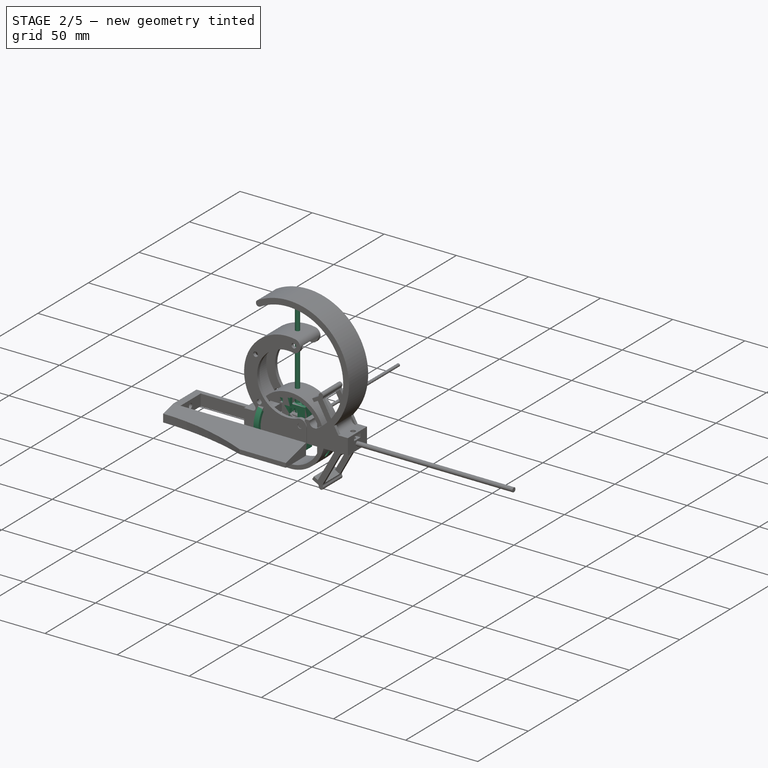
[diagram: stage 2 of 5 — iso view after this stage's code; geometry added in this stage tinted green]
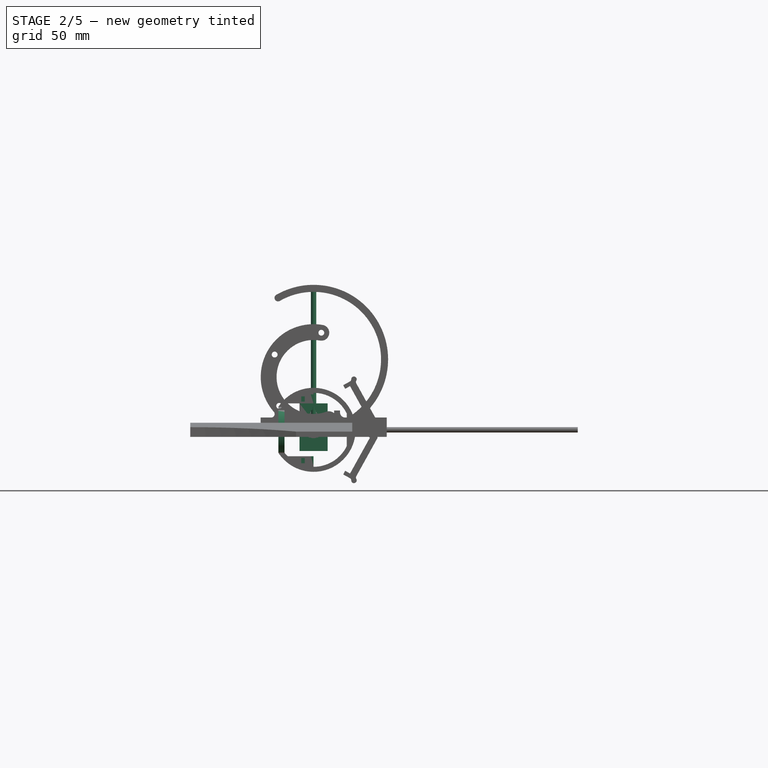
[diagram: stage 2 of 5 — front view after this stage's code; geometry added in this stage tinted green]
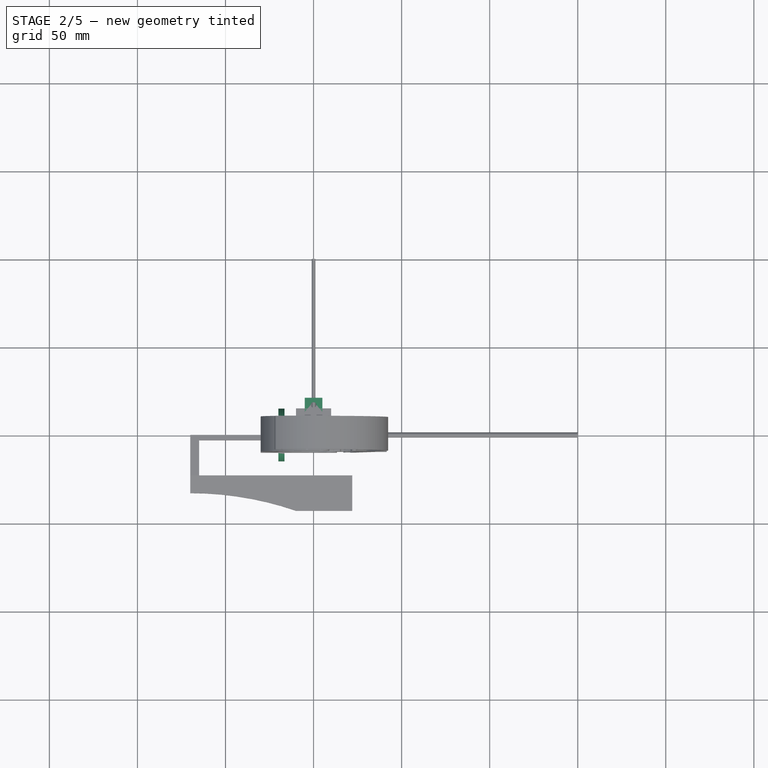
[diagram: stage 2 of 5 — top view after this stage's code; geometry added in this stage tinted green]
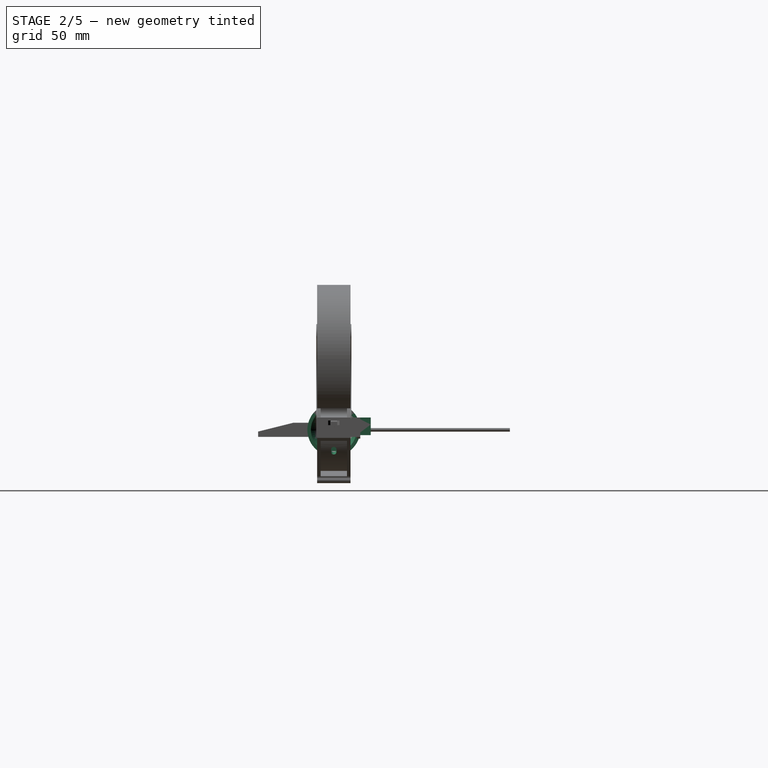
[diagram: stage 2 of 5 — right view after this stage's code; geometry added in this stage tinted green]
FEATURE [PartDesign::Body] Body069  label="Support0Arm"
  Group = -> [Sketch275,Pad174,Sketch276,Pocket091]
  Origin = -> Origin113
  Placement = pos=(0,0,6) rot=(1,0,0;0.289772rad)
  Tip = -> Pocket091
  expr: .Placement.Rotation.Angle = 180deg - <<BaseSkeleton_KeyHolder001>>.Constraints.theta0
FEATURE [Sketcher::SketchObject] Sketch278
  FullyConstrained = true
  MapMode = 5
  Support = -> [XY_Plane114]
  sketch-geometry (1):
    g0: Circle CenterX=0 CenterY=0 CenterZ=0 NormalX=0 NormalY=0 NormalZ=1 AngleXU=0 Radius=1.5
  constraints (2):
    c: Coincident(g0,g-1)
    c: Diameter(g0) = 3
FEATURE [PartDesign::Pad] Pad175
  Direction = (0,0,1)
  Length = 80
  Length2 = 10
  Profile = -> Sketch278
  ReferenceAxis = -> Sketch278 [N_Axis]
  Type = 0
  expr: Length = <<BaseParameters>>.verticalRailLength
FEATURE [PartDesign::Body] Body070  label="VerticalRail"
  Group = -> [Sketch278,Pad175]
  Origin = -> Origin114
  Placement = pos=(5,100.285,7.77526) rot=(1,0,0;0.17338rad)
  Tip = -> Pad175
  expr: .Placement.Base.y = Sketch403.Constraints.y4
  expr: .Placement.Base.z = <<BaseSkeleton_KeyHolder001>>.Constraints.z4
  expr: .Placement.Rotation.Angle = 180deg - <<BaseSkeleton_KeyHolder001>>.Constraints.theta1
FEATURE [Sketcher::SketchObject] Sketch279
  FullyConstrained = true
  MapMode = 5
  Placement = pos=(0,0,0) rot=(0.57735,0.57735,0.57735;2.0944rad)
  Support = -> [YZ_Plane116]
  sketch-geometry (14):
    g0: LineSegment StartX=21 StartY=3 StartZ=0 EndX=21 EndY=-3 EndZ=0
    g1: LineSegment StartX=-4 StartY=-3 StartZ=0 EndX=-4 EndY=15 EndZ=0
    g2: LineSegment StartX=-4 StartY=15 StartZ=0 EndX=-0.25 EndY=15 EndZ=0
    g3: LineSegment StartX=-0.25 StartY=15 StartZ=0 EndX=-0.25 EndY=3 EndZ=0
    g4: LineSegment StartX=21 StartY=-3 StartZ=0 EndX=13 EndY=-3 EndZ=0
    g5: LineSegment StartX=13 StartY=-3 StartZ=0 EndX=-4 EndY=-3 EndZ=0
    g6: LineSegment StartX=13 StartY=-3 StartZ=0 EndX=17 EndY=-7 EndZ=0
    g7: LineSegment StartX=17 StartY=-7 StartZ=0 EndX=21 EndY=-7 EndZ=0
    g8: LineSegment StartX=21 StartY=-7 StartZ=0 EndX=21 EndY=-3 EndZ=0
    g9: LineSegment StartX=-0.25 StartY=3 StartZ=0 EndX=13 EndY=3 EndZ=0
    g10: LineSegment StartX=13 StartY=3 StartZ=0 EndX=21 EndY=3 EndZ=0
    g11: LineSegment StartX=13 StartY=3 StartZ=0 EndX=13 EndY=7 EndZ=0
    g12: LineSegment StartX=13 StartY=7 StartZ=0 EndX=21 EndY=7 EndZ=0
    g13: LineSegment StartX=21 StartY=7 StartZ=0 EndX=21 EndY=3 EndZ=0
  constraints (40):
    c: Coincident(g10,g0)
    c: Coincident(g0,g4)
    c: Coincident(g5,g1)
    c: Vertical(g0)
    c: Vertical(g1)
    c: Distance(g5,g-2) = 4
    c: Distance(g0,g-1) = 3
    c: Distance(g10,g-1) = 3
    c: Coincident(g1,g2)
    c: Horizontal(g2)
    c: Coincident(g2,g3)
    c: Vertical(g3)
    c: Coincident(g9,g3)
    c: Distance(g2,g-2) = 0.25
    c: Distance(g3) = 12
    c: Coincident(g4,g5)
    c: Horizontal(g4)
    c: Horizontal(g5)
    c: Coincident(g4,g6)
    c: Coincident(g6,g7)
    c: Horizontal(g7)
    c: Coincident(g7,g8)
    c: Coincident(g8,g0)
    c: Vertical(g8)
    c: Distance(g8) = 4
    c: Angle(g6,g4) = 0.785398
    c: Distance(g5,g-2) = 13
    c: Coincident(g9,g10)
    c: Horizontal(g9)
    c: Horizontal(g10)
    c: Coincident(g9,g11)
    c: Coincident(g11,g12)
    c: Horizontal(g12)
    c: Coincident(g12,g13)
    c: Coincident(g13,g0)
    c: Vertical(g13)
    c: Equal(g13,g8)
    c: Vertical(g9,g5)
    c: Perpendicular(g10,g11)
    c: Distance(g12) = 8
FEATURE [PartDesign::Pad] Pad176
  Direction = (1,-2e-16,3e-16)
  Length = 16
  Length2 = 10
  Midplane = true
  Placement = pos=(0,0,0) rot=(0.57735,0.57735,0.57735;2.0944rad)
  Profile = -> Sketch279
  ReferenceAxis = -> Sketch279 [N_Axis]
  Type = 0
FEATURE [Sketcher::SketchObject] Sketch280
  FullyConstrained = true
  MapMode = 5
  Support = -> [XY_Plane116]
  expr: Constraints[0] = 3 + 2 * <<BaseParameters>>.axisTolerance
  sketch-geometry (2):
    g0: Circle CenterX=5 CenterY=0 CenterZ=0 NormalX=0 NormalY=0 NormalZ=1 AngleXU=0 Radius=1.65
    g1: Circle CenterX=-5 CenterY=0 CenterZ=0 NormalX=0 NormalY=0 NormalZ=1 AngleXU=0 Radius=1.65
  constraints (5):
    c: Diameter(g0) = 3.3
    c: PointOnObject(g1,g-1)
    c: Symmetric(g1,g0,g-2)
    c: Distance(g1,g0) = 10
    c: Equal(g1,g0)
FEATURE [PartDesign::Pocket] Pocket093
  BaseFeature = -> Pad176
  Direction = (0,0,-1)
  Length = 30
  Length2 = 5
  Midplane = true
  Placement = pos=(0,0,0) rot=(0.57735,0.57735,0.57735;2.0944rad)
  Profile = -> Sketch280
  ReferenceAxis = -> Sketch280 [N_Axis]
  Type = 0
FEATURE [Sketcher::SketchObject] Sketch281
  FullyConstrained = true
  MapMode = 5
  Placement = pos=(0,0,0) rot=(1,0,0;1.5708rad)
  Support = -> [XZ_Plane116]
  expr: Constraints[0] = 3 + 2 * <<BaseParameters>>.axisTolerance
  sketch-geometry (1):
    g0: Circle CenterX=0 CenterY=0 CenterZ=0 NormalX=0 NormalY=0 NormalZ=1 AngleXU=0 Radius=1.65
  constraints (2):
    c: Diameter(g0) = 3.3
    c: Coincident(g0,g-1)
FEATURE [PartDesign::Pocket] Pocket094
  BaseFeature = -> Pocket093
  Direction = (0,1,2e-16)
  Length = 42
  Length2 = 5
  Midplane = true
  Placement = pos=(0,0,0) rot=(0.57735,0.57735,0.57735;2.0944rad)
  Profile = -> Sketch281
  ReferenceAxis = -> Sketch281 [N_Axis]
  Type = 0
FEATURE [Sketcher::SketchObject] Sketch282
  AttachmentOffset = pos=(0,0,4) rot=(0,0,1;0rad)
  FullyConstrained = true
  MapMode = 5
  Placement = pos=(0,0,4) rot=(0,0,1;0rad)
  Support = -> [XY_Plane116]
  sketch-geometry (10):
    g0: LineSegment StartX=1.61658 StartY=14.2 StartZ=0 EndX=3.23316 EndY=17 EndZ=0
    g1: LineSegment StartX=3.23316 StartY=17 StartZ=0 EndX=1.61658 EndY=19.8 EndZ=0
    g2: LineSegment StartX=1.61658 StartY=19.8 StartZ=0 EndX=-1.61658 EndY=19.8 EndZ=0
    g3: LineSegment StartX=-1.61658 StartY=19.8 StartZ=0 EndX=-3.23316 EndY=17 EndZ=0
    g4: LineSegment StartX=-3.23316 StartY=17 StartZ=0 EndX=-1.61658 EndY=14.2 EndZ=0
    g5: LineSegment StartX=-1.61658 StartY=14.2 StartZ=0 EndX=1.61658 EndY=14.2 EndZ=0
    g6: Circle CenterX=0 CenterY=17 CenterZ=0 NormalX=0 NormalY=0 NormalZ=1 AngleXU=0 Radius=3.23316
    g7: LineSegment StartX=-3.23316 StartY=17 StartZ=0 EndX=-3.23316 EndY=21 EndZ=0
    g8: LineSegment StartX=-3.23316 StartY=21 StartZ=0 EndX=3.23316 EndY=21 EndZ=0
    g9: LineSegment StartX=3.23316 StartY=21 StartZ=0 EndX=3.23316 EndY=17 EndZ=0
  constraints (25):
    c: Coincident(g0,g1)
    c: Coincident(g1,g2)
    c: Coincident(g2,g3)
    c: Coincident(g3,g4)
    c: Coincident(g4,g5)
    c: Coincident(g5,g0)
    c: Equal(g0, g1-g5) x5
    c: PointOnObject(g0,g6)
    c: PointOnObject(g1,g6)
    c: PointOnObject(g2,g6)
    c: PointOnObject(g3,g6)
    c: PointOnObject(g4,g6)
    c: Distance(g6,g-1) = 17
    c: Distance(g4,g0) = 5.6
    c: PointOnObject(g6,g-2)
    c: PointOnObject(g0,g6)
    c: Horizontal(g5)
    c: Coincident(g4,g7)
    c: Vertical(g7)
    c: Coincident(g7,g8)
    c: Horizontal(g8)
    c: Coincident(g8,g9)
    c: Coincident(g9,g0)
    c: Vertical(g9)
    c: Distance(g9) = 4
FEATURE [PartDesign::Pocket] Pocket095
  BaseFeature = -> Pocket094
  Direction = (0,0,-1)
  Length = 2.6
  Length2 = 5
  Midplane = true
  Placement = pos=(0,0,0) rot=(0.57735,0.57735,0.57735;2.0944rad)
  Profile = -> Sketch282
  ReferenceAxis = -> Sketch282 [N_Axis]
  Type = 0
FEATURE [Sketcher::SketchObject] Sketch283
  FullyConstrained = true
  MapMode = 5
  Support = -> [XY_Plane116]
  expr: Constraints[0] = 3 + <<BaseParameters>>.screwHoleTolerance * 2
  sketch-geometry (1):
    g0: Circle CenterX=0 CenterY=17 CenterZ=0 NormalX=0 NormalY=0 NormalZ=1 AngleXU=0 Radius=1.6
  constraints (3):
    c: Diameter(g0) = 3.2
    c: Distance(g0,g-1) = 17
    c: PointOnObject(g0,g-2)
FEATURE [PartDesign::Pocket] Pocket096
  BaseFeature = -> Pocket095
  Direction = (0,0,-1)
  Length = 10
  Length2 = 5
  Placement = pos=(0,0,0) rot=(0.57735,0.57735,0.57735;2.0944rad)
  Profile = -> Sketch283
  ReferenceAxis = -> Sketch283 [N_Axis]
  Reversed = true
  Type = 0
FEATURE [Sketcher::SketchObject] Sketch284
  FullyConstrained = true
  MapMode = 5
  Placement = pos=(0,0,0) rot=(0.57735,0.57735,0.57735;2.0944rad)
  Support = -> [YZ_Plane117]
  expr: Constraints[10] = 3 + <<BaseParameters>>.axisTolerance * 2
  sketch-geometry (6):
    g0: ArcOfCircle CenterX=0 CenterY=0 CenterZ=0 NormalX=0 NormalY=0 NormalZ=1 AngleXU=0 Radius=3 StartAngle=1.5708 EndAngle=4.71239
    g1: LineSegment StartX=2e-16 StartY=3 StartZ=0 EndX=3 EndY=3 EndZ=0
    g2: LineSegment StartX=3 StartY=3 StartZ=0 EndX=3 EndY=-3 EndZ=0
    g3: LineSegment StartX=3 StartY=-3 StartZ=0 EndX=-4e-16 EndY=-3 EndZ=0
    g4: Circle CenterX=0 CenterY=0 CenterZ=0 NormalX=0 NormalY=0 NormalZ=1 AngleXU=0 Radius=1.65
    g5: GeomPoint X=7 Y=0 Z=0
  constraints (15):
    c: Coincident(g0,g-1)
    c: PointOnObject(g0,g-2)
    c: PointOnObject(g0,g-2)
    c: Tangent(g0,g1) = 1.5708
    c: Coincident(g1,g2)
    c: Vertical(g2)
    c: Coincident(g2,g3)
    c: Coincident(g3,g0)
    c: Horizontal(g3)
    c: Coincident(g4,g0)
    c: Diameter(g4) = 3.3
    c: Radius(g0) = 3
    c: Distance(g3) = 3
    c: PointOnObject(g5,g-1)
    c: Distance(g5,g-2) = 7  'l0'
FEATURE [PartDesign::Pad] Pad177
  Direction = (1,-2e-16,3e-16)
  Length = 18
  Length2 = 10
  Midplane = true
  Placement = pos=(0,0,0) rot=(0.57735,0.57735,0.57735;2.0944rad)
  Profile = -> Sketch284
  ReferenceAxis = -> Sketch284 [N_Axis]
  Type = 0
FEATURE [PartDesign::Body] Body076  label="ArmSteelRod1"
  Group = -> [Sketch289,Pad180]
  Origin = -> Origin122
  Placement = pos=(0,25.0601,100.209) rot=(-1,0,0;1.18503rad)
  Tip = -> Pad180
  expr: .Placement.Base.y = <<ArmSkeleton>>.Constraints.y4
  expr: .Placement.Base.z = <<ArmSkeleton>>.Constraints.z4
  expr: .Placement.Rotation.Angle = <<ArmSkeleton>>.Constraints.theta4
FEATURE [App::Part] Part014  label="Arm"
  Group = -> [Body055,Body054,Body056,Body060,Part015,Part016,Body063,Link007,Body075,Body076]
  Origin = -> Origin088
FEATURE [Sketcher::SketchObject] Sketch290
  FullyConstrained = true
  MapMode = 5
  Placement = pos=(0,0,0) rot=(0.57735,0.57735,0.57735;2.0944rad)
  Support = -> [YZ_Plane120]
  expr: Constraints[0] = 3 + <<BaseParameters>>.axisTolerance * 2
  sketch-geometry (5):
    g0: Circle CenterX=0 CenterY=0 CenterZ=0 NormalX=0 NormalY=0 NormalZ=1 AngleXU=0 Radius=1.65
    g1: ArcOfCircle CenterX=0 CenterY=0 CenterZ=0 NormalX=0 NormalY=0 NormalZ=1 AngleXU=0 Radius=3 StartAngle=0 EndAngle=3.14159
    g2: LineSegment StartX=-3 StartY=4e-16 StartZ=0 EndX=-3 EndY=-12 EndZ=0
    g3: LineSegment StartX=-3 StartY=-12 StartZ=0 EndX=3 EndY=-12 EndZ=0
    g4: LineSegment StartX=3 StartY=-12 StartZ=0 EndX=3 EndY=0 EndZ=0
  constraints (12):
    c: Diameter(g0) = 3.3
    c: Coincident(g1,g0)
    c: Tangent(g1,g2) = -1.5708
    c: Coincident(g2,g3)
    c: Horizontal(g3)
    c: Coincident(g3,g4)
    c: Vertical(g4)
    c: Vertical(g2)
    c: Tangent(g4,g1) = -1.5708
    c: Radius(g1) = 3
    c: Distance(g4) = 12
    c: Coincident(g0,g-1)
FEATURE [PartDesign::Pad] Pad181
  Direction = (1,-2e-16,3e-16)
  Length = 16
  Length2 = 10
  Midplane = true
  Placement = pos=(0,0,0) rot=(0.57735,0.57735,0.57735;2.0944rad)
  Profile = -> Sketch290
  ReferenceAxis = -> Sketch290 [N_Axis]
  Type = 0
FEATURE [Sketcher::SketchObject] Sketch291
  AttachmentOffset = pos=(0,0,-5) rot=(0,0,1;0rad)
  FullyConstrained = true
  MapMode = 5
  Placement = pos=(0,0,-5) rot=(0,0,1;0rad)
  Support = -> [XY_Plane120]
  expr: Constraints[0] = 3 + <<BaseParameters>>.axisTolerance
  sketch-geometry (2):
    g0: Circle CenterX=5 CenterY=0 CenterZ=0 NormalX=0 NormalY=0 NormalZ=1 AngleXU=0 Radius=1.575
    g1: Circle CenterX=-5 CenterY=0 CenterZ=0 NormalX=0 NormalY=0 NormalZ=1 AngleXU=0 Radius=1.575
  constraints (5):
    c: Diameter(g0) = 3.15
    c: PointOnObject(g1,g-1)
    c: Symmetric(g1,g0,g-2)
    c: Distance(g1,g0) = 10
    c: Equal(g0,g1)
FEATURE [PartDesign::Pocket] Pocket099
  BaseFeature = -> Pad181
  Direction = (0,0,-1)
  Length = 10
  Length2 = 5
  Placement = pos=(0,0,0) rot=(0.57735,0.57735,0.57735;2.0944rad)
  Profile = -> Sketch291
  ReferenceAxis = -> Sketch291 [N_Axis]
  Type = 0
FEATURE [PartDesign::Body] Body077  label="Support2StructureB"
  Group = -> [Sketch292,Pad182,Sketch293,Pocket100,Sketch294,Pocket101,Sketch295,Pocket102]
  Origin = -> Origin123
  Placement = pos=(0,0,0) rot=(-1,0,0;0.350219rad)
  Tip = -> Pocket102
  expr: .Placement.Rotation.Angle = <<BaseSkeleton_KeyHolder001>>.Constraints.theta2
FEATURE [Sketcher::SketchObject] Sketch297
  FullyConstrained = true
  MapMode = 5
  Placement = pos=(0,0,0) rot=(0.57735,0.57735,0.57735;2.0944rad)
  Support = -> [YZ_Plane124]
  expr: Constraints[12] = Sketch232.Constraints.l4 + <<BaseParameters>>.tolerance * 1mm
  expr: Constraints[16] = Sketch203.Constraints.theta0
  expr: Constraints[25] = 3 + <<BaseParameters>>.axisTolerance * 2
  sketch-geometry (10):
    g0: ArcOfCircle CenterX=0 CenterY=0 CenterZ=0 NormalX=0 NormalY=0 NormalZ=1 AngleXU=0 Radius=3 StartAngle=1.5708 EndAngle=4.71239
    g1: LineSegment StartX=2e-16 StartY=3 StartZ=0 EndX=5.34615 EndY=3 EndZ=0
    g2: LineSegment StartX=5.34615 StartY=3 StartZ=0 EndX=8.6141 EndY=8.66025 EndZ=0
    g3: LineSegment StartX=8.6141 StartY=8.66025 StartZ=0 EndX=13.8103 EndY=5.66025 EndZ=0
    g4: LineSegment StartX=13.8103 StartY=5.66025 StartZ=0 EndX=8.81025 EndY=-3 EndZ=0
    g5: LineSegment StartX=8.81025 StartY=-3 StartZ=0 EndX=0 EndY=-3 EndZ=0
    g6: LineSegment StartX=11.2122 StartY=7.16025 StartZ=0 EndX=5.34615 EndY=-3 EndZ=0
    g7: GeomPoint X=6.34615 Y=-1.26795 Z=0
    g8: Circle CenterX=0 CenterY=0 CenterZ=0 NormalX=0 NormalY=0 NormalZ=1 AngleXU=0 Radius=1.65
    g9: LineSegment StartX=0 StartY=0 StartZ=0 EndX=6.34615 EndY=-1.26795 EndZ=0
  constraints (34):
    c: Coincident(g0,g-1)
    c: PointOnObject(g0,g-2)
    c: PointOnObject(g0,g-2)
    c: Tangent(g0,g1) = 1.5708
    c: Coincident(g1,g2)
    c: Coincident(g2,g3)
    c: Coincident(g3,g4)
    c: Coincident(g4,g5)
    c: Coincident(g5,g0)
    c: Horizontal(g5)
    c: Distance(g4) = 10
    c: Radius(g0) = 3
    c: Distance(g1) = 5.34615
    c: Distance(g3) = 6
    c: Parallel(g2,g4)
    c: Perpendicular(g3,g2)
    c: Angle(g2,g1) = 2.0944
    c: PointOnObject(g6,g3)
    c: PointOnObject(g6,g5)
    c: Symmetric(g2,g3,g6)
    c: PointOnObject(g7,g6)
    c: Distance(g7,g6) = 2
    c: Distance(g7,g-2) = 6.34615  'y0'
    c: Distance(g7,g-1) = 1.26795  'z0'
    c: Coincident(g8,g0)
    c: Diameter(g8) = 3.3
    c: Coincident(g9,g0)
    c: Coincident(g9,g7)
    c: Angle(g6,g9) = 1.89719  'theta0'
    c: Distance(g9) = 6.47158  'l0'
    c: Distance(g6,g-1) = 7.16025  'z1'
    c: Distance(g6,g-2) = 11.2122  'y1'
    c: Distance(g2) = 6.5359  'l1'
    c: Distance(g1,g-2) = 5.34615  'y2'
FEATURE [PartDesign::Pad] Pad183
  Direction = (1,-2e-16,3e-16)
  Length = 18
  Length2 = 10
  Midplane = true
  Placement = pos=(0,0,0) rot=(0.57735,0.57735,0.57735;2.0944rad)
  Profile = -> Sketch297
  ReferenceAxis = -> Sketch297 [N_Axis]
  Type = 0
FEATURE [Sketcher::SketchObject] Sketch298
  FullyConstrained = true
  MapMode = 5
  Placement = pos=(0,0,0) rot=(0.57735,0.57735,0.57735;2.0944rad)
  Support = -> [YZ_Plane124]
  expr: Constraints[10] = Sketch297.Constraints.y2
  sketch-geometry (4):
    g0: LineSegment StartX=-3 StartY=3.5 StartZ=0 EndX=5.34615 EndY=3.5 EndZ=0
    g1: LineSegment StartX=5.34615 StartY=3.5 StartZ=0 EndX=5.34615 EndY=-3.5 EndZ=0
    g2: LineSegment StartX=5.34615 StartY=-3.5 StartZ=0 EndX=-3 EndY=-3.5 EndZ=0
    g3: LineSegment StartX=-3 StartY=-3.5 StartZ=0 EndX=-3 EndY=3.5 EndZ=0
  constraints (11):
    c: Coincident(g0,g1)
    c: Coincident(g1,g2)
    c: Coincident(g2,g3)
    c: Coincident(g3,g0)
    c: Horizontal(g0)
    c: Horizontal(g2)
    c: Vertical(g1)
    c: Distance(g1) = 7
    c: Distance(g0,g-2) = 3
    c: Symmetric(g0,g2,g-1)
    c: Distance(g0,g-2) = 5.34615
FEATURE [PartDesign::Pocket] Pocket104
  BaseFeature = -> Pad183
  Direction = (-1,2e-16,-3e-16)
  Length = 10.3
  Length2 = 5
  Midplane = true
  Placement = pos=(0,0,0) rot=(0.57735,0.57735,0.57735;2.0944rad)
  Profile = -> Sketch298
  ReferenceAxis = -> Sketch298 [N_Axis]
  Type = 0
  expr: Length = 10 + 2 * <<BaseParameters>>.tolerance
FEATURE [Sketcher::SketchObject] Sketch299
  AttachmentOffset = pos=(0,6.34615,-1.26795) rot=(1,0,0;-0.523599rad)
  FullyConstrained = true
  MapMode = 5
  Placement = pos=(0,6.34615,-1.26795) rot=(1,0,0;5.75959rad)
  Support = -> [XY_Plane124]
  expr: .AttachmentOffset.Base.y = Sketch297.Constraints.y0
  expr: .AttachmentOffset.Base.z = -Sketch297.Constraints.z0
  expr: .AttachmentOffset.Rotation.Angle = -(Sketch203.Constraints.theta0 - 90deg)
  expr: Constraints[0] = 3 + <<BaseParameters>>.axisTolerance * 2
  sketch-geometry (1):
    g0: Circle CenterX=0 CenterY=0 CenterZ=0 NormalX=0 NormalY=0 NormalZ=1 AngleXU=0 Radius=1.65
  constraints (2):
    c: Diameter(g0) = 3.3
    c: Coincident(g0,g-1)
FEATURE [PartDesign::Pocket] Pocket105
  BaseFeature = -> Pocket104
  Direction = (0,-0.5,-0.866025)
  Length = 10
  Length2 = 5
  Placement = pos=(0,0,0) rot=(0.57735,0.57735,0.57735;2.0944rad)
  Profile = -> Sketch299
  ReferenceAxis = -> Sketch299 [N_Axis]
  Reversed = true
  Type = 0
FEATURE [Sketcher::SketchObject] Sketch359
  AttachmentOffset = pos=(0,0,-20) rot=(0,0,1;0rad)
  FullyConstrained = true
  MapMode = 5
  Placement = pos=(-20,4.4e-15,-4.4e-15) rot=(0.57735,0.57735,0.57735;2.0944rad)
  Support = -> [YZ_Plane154]
  sketch-geometry (2):
    g0: Circle CenterX=0 CenterY=0 CenterZ=0 NormalX=0 NormalY=0 NormalZ=1 AngleXU=0 Radius=15
    g1: Circle CenterX=0 CenterY=0 CenterZ=0 NormalX=0 NormalY=0 NormalZ=1 AngleXU=0 Radius=10
  constraints (4):
    c: Coincident(g0,g-1)
    c: Coincident(g1,g0)
    c: Diameter(g1) = 20
    c: Diameter(g0) = 30
FEATURE [Sketcher::SketchObject] Sketch360
  FullyConstrained = true
  MapMode = 5
  Placement = pos=(0,0,0) rot=(1,0,0;1.5708rad)
  Support = -> [XZ_Plane154]
  expr: Constraints[4] = sqrt(15 * 15 - 7.5 * 7.5)
  sketch-geometry (3):
    g0: Circle CenterX=0 CenterY=0 CenterZ=0 NormalX=0 NormalY=0 NormalZ=1 AngleXU=0 Radius=23.8485
    g1: Circle CenterX=0 CenterY=0 CenterZ=0 NormalX=0 NormalY=0 NormalZ=1 AngleXU=0 Radius=30
    g2: GeomPoint X=-20 Y=12.9904 Z=0
  constraints (6):
    c: Coincident(g0,g-1)
    c: Coincident(g1,g0)
    c: PointOnObject(g2,g0)
    c: Distance(g2,g-2) = 20
    c: Distance(g2,g-1) = 12.9904
    c: Radius(g1) = 30
FEATURE [Sketcher::SketchObject] Sketch361
  AttachmentOffset = pos=(0,0,-16.5) rot=(0,0,1;0rad)
  FullyConstrained = true
  MapMode = 5
  Placement = pos=(-16.5,3.7e-15,-3.7e-15) rot=(0.57735,0.57735,0.57735;2.0944rad)
  Support = -> [YZ_Plane154]
  expr: .AttachmentOffset.Base.z = -Sketch358.Constraints.x0
  sketch-geometry (2):
    g0: Circle CenterX=0 CenterY=0 CenterZ=0 NormalX=0 NormalY=0 NormalZ=1 AngleXU=0 Radius=15
    g1: Circle CenterX=0 CenterY=0 CenterZ=0 NormalX=0 NormalY=0 NormalZ=1 AngleXU=0 Radius=13
  constraints (4):
    c: Coincident(g0,g-1)
    c: Coincident(g1,g0)
    c: Radius(g0) = 15
    c: Radius(g1) = 13
FEATURE [PartDesign::AdditiveLoft] AdditiveLoft001
  BaseFeature = -> Pad212
  Closed = false
  Placement = pos=(0,0,0) rot=(1,0,0;1.5708rad)
  Profile = -> Sketch359
  Ruled = false
  Sections = -> [Sketch361]
FEATURE [PartDesign::Pocket] Pocket140
  BaseFeature = -> AdditiveLoft001
  Direction = (0,1,2e-16)
  Length = 15
  Length2 = 5
  Midplane = true
  Placement = pos=(0,0,0) rot=(1,0,0;1.5708rad)
  Profile = -> Sketch360
  ReferenceAxis = -> Sketch360 [N_Axis]
  Type = 0
FEATURE [Sketcher::SketchObject] Sketch362
  FullyConstrained = true
  MapMode = 5
  Placement = pos=(0,0,0) rot=(0.57735,0.57735,0.57735;2.0944rad)
  Support = -> [YZ_Plane154]
  expr: Constraints[42] = 10 + 2 * <<BaseParameters>>.tolerance
  expr: Constraints[43] = Sketch358.Constraints.l0
  expr: Constraints[44] = 40 + 2 * <<BaseParameters>>.tolerance
  sketch-geometry (16):
    g0: LineSegment StartX=7.5 StartY=15 StartZ=0 EndX=5.15 EndY=15 EndZ=0
    g1: LineSegment StartX=5.15 StartY=15 StartZ=0 EndX=5.15 EndY=20.15 EndZ=0
    g2: LineSegment StartX=5.15 StartY=20.15 StartZ=0 EndX=7.5 EndY=20.15 EndZ=0
    g3: LineSegment StartX=7.5 StartY=20.15 StartZ=0 EndX=7.5 EndY=15 EndZ=0
    g4: LineSegment StartX=-7.5 StartY=20.15 StartZ=0 EndX=-5.15 EndY=20.15 EndZ=0
    g5: LineSegment StartX=-5.15 StartY=20.15 StartZ=0 EndX=-5.15 EndY=15 EndZ=0
    g6: LineSegment StartX=-5.15 StartY=15 StartZ=0 EndX=-7.5 EndY=15 EndZ=0
    g7: LineSegment StartX=-7.5 StartY=15 StartZ=0 EndX=-7.5 EndY=20.15 EndZ=0
    g8: LineSegment StartX=7.5 StartY=-20.15 StartZ=0 EndX=5.15 EndY=-20.15 EndZ=0
    g9: LineSegment StartX=5.15 StartY=-20.15 StartZ=0 EndX=5.15 EndY=-15 EndZ=0
    g10: LineSegment StartX=5.15 StartY=-15 StartZ=0 EndX=7.5 EndY=-15 EndZ=0
    g11: LineSegment StartX=7.5 StartY=-15 StartZ=0 EndX=7.5 EndY=-20.15 EndZ=0
    g12: LineSegment StartX=-7.5 StartY=-20.15 StartZ=0 EndX=-5.15 EndY=-20.15 EndZ=0
    g13: LineSegment StartX=-5.15 StartY=-20.15 StartZ=0 EndX=-5.15 EndY=-15 EndZ=0
    g14: LineSegment StartX=-5.15 StartY=-15 StartZ=0 EndX=-7.5 EndY=-15 EndZ=0
    g15: LineSegment StartX=-7.5 StartY=-15 StartZ=0 EndX=-7.5 EndY=-20.15 EndZ=0
  constraints (45):
    c: Coincident(g0,g1)
    c: Coincident(g1,g2)
    c: Coincident(g2,g3)
    c: Coincident(g3,g0)
    c: Horizontal(g0)
    c: Horizontal(g2)
    c: Vertical(g1)
    c: Vertical(g3)
    c: Coincident(g4,g5)
    c: Coincident(g5,g6)
    c: Coincident(g6,g7)
    c: Coincident(g7,g4)
    c: Horizontal(g4)
    c: Horizontal(g6)
    c: Vertical(g5)
    c: Vertical(g7)
    c: Coincident(g8,g9)
    c: Coincident(g9,g10)
    c: Coincident(g10,g11)
    c: Coincident(g11,g8)
    c: Horizontal(g8)
    c: Horizontal(g10)
    c: Vertical(g9)
    c: Vertical(g11)
    c: Coincident(g12,g13)
    c: Coincident(g13,g14)
    c: Coincident(g14,g15)
    c: Coincident(g15,g12)
    c: Horizontal(g12)
    c: Horizontal(g14)
    c: Vertical(g13)
    c: Vertical(g15)
    c: Symmetric(g5,g0,g-2)
    c: Symmetric(g0,g9,g-1)
    c: Symmetric(g9,g13,g-2)
    c: Distance(g12,g8) = 15
    c: Equal(g6,g0)
    c: Equal(g0,g10)
    c: Equal(g10,g14)
    c: Equal(g9,g13)
    c: Equal(g5,g1)
    c: Equal(g1,g9)
    c: Distance(g12,g8) = 10.3
    c: Distance(g0,g10) = 30
    c: Distance(g2,g8) = 40.3
FEATURE [PartDesign::Pad] Pad213
  BaseFeature = -> Pocket140
  Direction = (1,-2e-16,3e-16)
  Length = 2
  Length2 = 10
  Placement = pos=(0,0,0) rot=(1,0,0;1.5708rad)
  Profile = -> Sketch362
  ReferenceAxis = -> Sketch362 [N_Axis]
  Reversed = true
  Type = 0
FEATURE [Sketcher::SketchObject] Sketch363
  AttachmentOffset = pos=(0,0,18.8485) rot=(0,0,1;0rad)
  FullyConstrained = true
  MapMode = 5
  Placement = pos=(18.8485,-4.2e-15,4.2e-15) rot=(0.57735,0.57735,0.57735;2.0944rad)
  Support = -> [YZ_Plane154]
  expr: .AttachmentOffset.Base.z = Sketch358.Constraints.x1
  sketch-geometry (7):
    g0: LineSegment StartX=0 StartY=-3.23316 StartZ=0 EndX=2.8 EndY=-1.61658 EndZ=0
    g1: LineSegment StartX=2.8 StartY=-1.61658 StartZ=0 EndX=2.8 EndY=1.61658 EndZ=0
    g2: LineSegment StartX=2.8 StartY=1.61658 StartZ=0 EndX=6.378e-12 EndY=3.23316 EndZ=0
    g3: LineSegment StartX=6.378e-12 StartY=3.23316 StartZ=0 EndX=-2.8 EndY=1.61658 EndZ=0
    g4: LineSegment StartX=-2.8 StartY=1.61658 StartZ=0 EndX=-2.8 EndY=-1.61658 EndZ=0
    g5: LineSegment StartX=-2.8 StartY=-1.61658 StartZ=0 EndX=0 EndY=-3.23316 EndZ=0
    g6: Circle CenterX=0 CenterY=0 CenterZ=0 NormalX=0 NormalY=0 NormalZ=1 AngleXU=0 Radius=3.23316
  constraints (16):
    c: Coincident(g0,g1)
    c: Coincident(g1,g2)
    c: Coincident(g2,g3)
    c: Coincident(g3,g4)
    c: Coincident(g4,g5)
    c: Coincident(g5,g0)
    c: Equal(g0, g1-g5) x5
    c: PointOnObject(g0,g6)
    c: PointOnObject(g1,g6)
    c: PointOnObject(g2,g6)
    c: PointOnObject(g3,g6)
    c: PointOnObject(g4,g6)
    c: PointOnObject(g5,g6)
    c: Coincident(g6,g-1)
    c: PointOnObject(g5,g-2)
    c: Distance(g3,g1) = 5.6
FEATURE [PartDesign::Pocket] Pocket141
  BaseFeature = -> Pad213
  Direction = (-1,2e-16,-3e-16)
  Length = 2.6
  Length2 = 5
  Placement = pos=(0,0,0) rot=(1,0,0;1.5708rad)
  Profile = -> Sketch363
  ReferenceAxis = -> Sketch363 [N_Axis]
  Reversed = true
  Type = 0
FEATURE [Sketcher::SketchObject] Sketch364
  AttachmentOffset = pos=(0,0,18.8485) rot=(0,0,1;0rad)
  FullyConstrained = true
  MapMode = 5
  Placement = pos=(18.8485,-4.2e-15,4.2e-15) rot=(0.57735,0.57735,0.57735;2.0944rad)
  Support = -> [YZ_Plane154]
  expr: .AttachmentOffset.Base.z = Sketch358.Constraints.x1
  expr: Constraints[1] = 3 + 2 * <<BaseParameters>>.screwHoleTolerance
  sketch-geometry (1):
    g0: Circle CenterX=0 CenterY=0 CenterZ=0 NormalX=0 NormalY=0 NormalZ=1 AngleXU=0 Radius=1.6
  constraints (2):
    c: Coincident(g0,g-1)
    c: Diameter(g0) = 3.2
FEATURE [PartDesign::Pocket] Pocket142
  BaseFeature = -> Pocket141
  Direction = (-1,2e-16,-3e-16)
  Length = 5
  Length2 = 5
  Placement = pos=(0,0,0) rot=(1,0,0;1.5708rad)
  Profile = -> Sketch364
  ReferenceAxis = -> Sketch364 [N_Axis]
  Reversed = true
  Type = 0
FEATURE [Sketcher::SketchObject] Sketch365
  AttachmentOffset = pos=(0,0,0) rot=(1,0,0;0.523599rad)
  FullyConstrained = true
  MapMode = 5
  Placement = pos=(0,0,0) rot=(0.654654,0.654654,0.377964;2.41886rad)
  Support = -> [YZ_Plane154]
  sketch-geometry (4):
    g0: ArcOfCircle CenterX=0 CenterY=1 CenterZ=0 NormalX=0 NormalY=0 NormalZ=1 AngleXU=0 Radius=1.5 StartAngle=2.922e-13 EndAngle=3.14159
    g1: ArcOfCircle CenterX=0 CenterY=-1 CenterZ=0 NormalX=0 NormalY=0 NormalZ=1 AngleXU=0 Radius=1.5 StartAngle=3.14159 EndAngle=6.28319
    g2: LineSegment StartX=-1.5 StartY=1 StartZ=0 EndX=-1.5 EndY=-1 EndZ=0
    g3: LineSegment StartX=1.5 StartY=-1 StartZ=0 EndX=1.5 EndY=1 EndZ=0
  constraints (9):
    c: Tangent(g0,g2) = -1.5708
    c: Tangent(g2,g1) = -1.5708
    c: Tangent(g1,g3) = -1.5708
    c: Tangent(g3,g0) = -1.5708
    c: Equal(g0,g1)
    c: PointOnObject(g0,g-2)
    c: Diameter(g0) = 3
    c: Symmetric(g0,g1,g-1)
    c: Distance(g3) = 2
FEATURE [PartDesign::Pocket] Pocket143
  BaseFeature = -> Pocket142
  Direction = (-0.866025,4e-16,0.5)
  Length = 25
  Length2 = 5
  Placement = pos=(0,0,0) rot=(1,0,0;1.5708rad)
  Profile = -> Sketch365
  ReferenceAxis = -> Sketch365 [N_Axis]
  Reversed = true
  Type = 0
FEATURE [Sketcher::SketchObject] Sketch393
  FullyConstrained = true
  MapMode = 5
  Placement = pos=(0,0,0) rot=(0.57735,0.57735,0.57735;2.0944rad)
  Support = -> [YZ_Plane194]
  sketch-geometry (2):
    g0: ArcOfCircle CenterX=0 CenterY=0 CenterZ=0 NormalX=0 NormalY=0 NormalZ=1 AngleXU=0 Radius=3 StartAngle=3.14159 EndAngle=6.28319
    g1: LineSegment StartX=-3 StartY=4e-16 StartZ=0 EndX=3 EndY=-7e-16 EndZ=0
  constraints (6):
    c: Coincident(g0,g-1)
    c: PointOnObject(g0,g-1)
    c: PointOnObject(g0,g-1)
    c: Coincident(g1,g0)
    c: Coincident(g1,g0)
    c: Radius(g0) = 3
FEATURE [PartDesign::Pad] Pad227
  Direction = (1,-2e-16,3e-16)
  Length = 19
  Length2 = 10
  Midplane = true
  Placement = pos=(0,0,0) rot=(0.57735,0.57735,0.57735;2.0944rad)
  Profile = -> Sketch393
  ReferenceAxis = -> Sketch393 [N_Axis]
  Type = 0
FEATURE [Sketcher::SketchObject] Sketch394
  FullyConstrained = true
  MapMode = 5
  Support = -> [XY_Plane194]
  sketch-geometry (4):
    g0: LineSegment StartX=-9.5 StartY=3 StartZ=0 EndX=9.5 EndY=3 EndZ=0
    g1: LineSegment StartX=9.5 StartY=3 StartZ=0 EndX=9.5 EndY=-3 EndZ=0
    g2: LineSegment StartX=9.5 StartY=-3 StartZ=0 EndX=-9.5 EndY=-3 EndZ=0
    g3: LineSegment StartX=-9.5 StartY=-3 StartZ=0 EndX=-9.5 EndY=3 EndZ=0
  constraints (11):
    c: Coincident(g0,g1)
    c: Coincident(g1,g2)
    c: Coincident(g2,g3)
    c: Coincident(g3,g0)
    c: Horizontal(g0)
    c: Horizontal(g2)
    c: Vertical(g1)
    c: Vertical(g3)
    c: Symmetric(g0,g1,g-1)
    c: Distance(g0) = 19
    c: Distance(g1) = 6
FEATURE [Sketcher::SketchObject] Sketch395
  AttachmentOffset = pos=(0,0,8) rot=(0,0,1;0rad)
  FullyConstrained = true
  MapMode = 5
  Placement = pos=(0,0,8) rot=(0,0,1;0rad)
  Support = -> [XY_Plane194]
  sketch-geometry (4):
    g0: ArcOfCircle CenterX=-5 CenterY=0 CenterZ=0 NormalX=0 NormalY=0 NormalZ=1 AngleXU=0 Radius=3 StartAngle=1.5708 EndAngle=4.71239
    g1: ArcOfCircle CenterX=5 CenterY=0 CenterZ=0 NormalX=0 NormalY=0 NormalZ=1 AngleXU=0 Radius=3 StartAngle=4.71239 EndAngle=7.85398
    g2: LineSegment StartX=-5 StartY=-3 StartZ=0 EndX=5 EndY=-3 EndZ=0
    g3: LineSegment StartX=5 StartY=3 StartZ=0 EndX=-5 EndY=3 EndZ=0
  constraints (9):
    c: Tangent(g0,g2) = -1.5708
    c: Tangent(g2,g1) = -1.5708
    c: Tangent(g1,g3) = -1.5708
    c: Tangent(g3,g0) = -1.5708
    c: Equal(g0,g1)
    c: PointOnObject(g0,g-1)
    c: Distance(g0,g1) = 10
    c: Symmetric(g0,g1,g-2)
    c: Radius(g1) = 3
FEATURE [PartDesign::AdditiveLoft] AdditiveLoft002
  BaseFeature = -> Pad227
  Closed = false
  Placement = pos=(0,0,0) rot=(0.57735,0.57735,0.57735;2.0944rad)
  Profile = -> Sketch394
  Ruled = false
  Sections = -> [Sketch395]
FEATURE [Sketcher::SketchObject] Sketch396
  FullyConstrained = true
  MapMode = 5
  Placement = pos=(0,0,0) rot=(0.57735,0.57735,0.57735;2.0944rad)
  Support = -> [YZ_Plane194]
  expr: Constraints[1] = 3 + 2 * <<BaseParameters>>.axisTolerance
  sketch-geometry (1):
    g0: Circle CenterX=0 CenterY=0 CenterZ=0 NormalX=0 NormalY=0 NormalZ=1 AngleXU=0 Radius=1.65
  constraints (2):
    c: Coincident(g0,g-1)
    c: Diameter(g0) = 3.3
FEATURE [PartDesign::Pocket] Pocket158
  BaseFeature = -> AdditiveLoft002
  Direction = (-1,2e-16,-3e-16)
  Length = 19
  Length2 = 5
  Midplane = true
  Placement = pos=(0,0,0) rot=(0.57735,0.57735,0.57735;2.0944rad)
  Profile = -> Sketch396
  ReferenceAxis = -> Sketch396 [N_Axis]
  Type = 0
FEATURE [Sketcher::SketchObject] Sketch397
  FullyConstrained = true
  MapMode = 5
  Support = -> [XY_Plane194]
  expr: Constraints[3] = 3 + 2 * <<BaseParameters>>.axisTolerance
  sketch-geometry (2):
    g0: Circle CenterX=-5 CenterY=0 CenterZ=0 NormalX=0 NormalY=0 NormalZ=1 AngleXU=0 Radius=1.65
    g1: Circle CenterX=5 CenterY=0 CenterZ=0 NormalX=0 NormalY=0 NormalZ=1 AngleXU=0 Radius=1.65
  constraints (5):
    c: PointOnObject(g0,g-1)
    c: Symmetric(g0,g1,g-2)
    c: Distance(g0,g1) = 10
    c: Diameter(g1) = 3.3
    c: Equal(g0,g1)
FEATURE [PartDesign::Pocket] Pocket159
  BaseFeature = -> Pocket158
  Direction = (0,0,-1)
  Length = 10
  Length2 = 5
  Placement = pos=(0,0,0) rot=(0.57735,0.57735,0.57735;2.0944rad)
  Profile = -> Sketch397
  ReferenceAxis = -> Sketch397 [N_Axis]
  Reversed = true
  Type = 0
FEATURE [PartDesign::Body] Body107  label="BaseHinge"
  Group = -> [Sketch393,Pad227,Sketch394,Sketch395,AdditiveLoft002,Sketch396,Pocket158,Sketch397,Pocket159,Sketch398,Pocket160]
  Origin = -> Origin200
  Placement = pos=(0,100,6.15) rot=(-1,0,0;0.17338rad)
  Tip = -> Pocket160
  expr: .Placement.Base.y = <<BaseSkeleton_KeyHolder>>.Constraints.y0
  expr: .Placement.Base.z = <<BaseSkeleton_KeyHolder>>.Constraints.z0
  expr: .Placement.Rotation.Angle = 180deg - <<BaseSkeleton_KeyHolder001>>.Constraints.theta1
FEATURE [App::Link] Link022  label="VerticalRail001"
  LinkPlacement = pos=(-5,100.285,7.77526) rot=(1,0,0;-0.17338rad)
  LinkedObject = -> Body070
  Placement = pos=(-5,100.285,7.77526) rot=(1,0,0;-0.17338rad)
  expr: .Placement.Base.y = <<BaseSkeleton_KeyHolder001>>.Constraints.y4
  expr: .Placement.Base.z = <<BaseSkeleton_KeyHolder001>>.Constraints.z4
  expr: .Placement.Rotation.Angle = 180deg - <<BaseSkeleton_KeyHolder001>>.Constraints.theta1
FEATURE [Sketcher::SketchObject] Sketch399
  AttachmentOffset = pos=(0,0,-3) rot=(0,0,1;0rad)
  FullyConstrained = true
  MapMode = 5
  Placement = pos=(0,3,7e-16) rot=(1,0,0;1.5708rad)
  Support = -> [XZ_Plane117]
  sketch-geometry (4):
    g0: LineSegment StartX=-9 StartY=3 StartZ=0 EndX=9 EndY=3 EndZ=0
    g1: LineSegment StartX=9 StartY=3 StartZ=0 EndX=9 EndY=-3 EndZ=0
    g2: LineSegment StartX=9 StartY=-3 StartZ=0 EndX=-9 EndY=-3 EndZ=0
    g3: LineSegment StartX=-9 StartY=-3 StartZ=0 EndX=-9 EndY=3 EndZ=0
  constraints (11):
    c: Coincident(g0,g1)
    c: Coincident(g1,g2)
    c: Coincident(g2,g3)
    c: Coincident(g3,g0)
    c: Horizontal(g0)
    c: Horizontal(g2)
    c: Vertical(g1)
    c: Vertical(g3)
    c: Symmetric(g2,g0,g-1)
    c: Distance(g0) = 18
    c: Distance(g1) = 6
FEATURE [Sketcher::SketchObject] Sketch400
  AttachmentOffset = pos=(0,0,-15) rot=(0,0,1;0rad)
  FullyConstrained = true
  MapMode = 5
  Placement = pos=(0,15,3.3e-15) rot=(1,0,0;1.5708rad)
  Support = -> [XZ_Plane117]
  sketch-geometry (6):
    g0: ArcOfCircle CenterX=-1 CenterY=0 CenterZ=0 NormalX=0 NormalY=0 NormalZ=1 AngleXU=0 Radius=4 StartAngle=2.29353 EndAngle=3.98965
    g1: ArcOfCircle CenterX=1 CenterY=0 CenterZ=0 NormalX=0 NormalY=0 NormalZ=1 AngleXU=0 Radius=4 StartAngle=5.43512 EndAngle=7.13125
    g2: LineSegment StartX=-3.64575 StartY=3 StartZ=0 EndX=3.64575 EndY=3 EndZ=0
    g3: LineSegment StartX=-3.64575 StartY=-3 StartZ=0 EndX=3.64575 EndY=-3 EndZ=0
    g4: GeomPoint X=-5 Y=0 Z=0
    g5: GeomPoint X=5 Y=0 Z=0
  constraints (15):
    c: Symmetric(g0,g1,g-2)
    c: Coincident(g2,g0)
    c: Coincident(g2,g1)
    c: Coincident(g3,g0)
    c: Coincident(g3,g1)
    c: Horizontal(g3)
    c: Horizontal(g2)
    c: Distance(g1,g3) = 6
    c: Symmetric(g1,g1,g-1)
    c: PointOnObject(g4,g0)
    c: PointOnObject(g5,g1)
    c: Symmetric(g4,g5,g-2)
    c: PointOnObject(g5,g-1)
    c: Distance(g5,g4) = 10
    c: Radius(g1) = 4
FEATURE [PartDesign::AdditiveLoft] AdditiveLoft003
  BaseFeature = -> Pad177
  Closed = false
  Placement = pos=(0,0,0) rot=(0.57735,0.57735,0.57735;2.0944rad)
  Profile = -> Sketch399
  Ruled = false
  Sections = -> [Sketch400]
FEATURE [PartDesign::Pocket] Pocket161
  BaseFeature = -> AdditiveLoft003
  Direction = (-1,2e-16,-3e-16)
  Length = 10.3
  Length2 = 5
  Midplane = true
  Placement = pos=(0,0,0) rot=(0.57735,0.57735,0.57735;2.0944rad)
  Profile = -> Sketch285
  ReferenceAxis = -> Sketch285 [N_Axis]
  Type = 0
  expr: Length = 10 + 2 * <<BaseParameters>>.tolerance
FEATURE [PartDesign::Pocket] Pocket162
  BaseFeature = -> Pocket161
  Direction = (0,1,2e-16)
  Length = 8
  Length2 = 5
  Placement = pos=(0,0,0) rot=(0.57735,0.57735,0.57735;2.0944rad)
  Profile = -> Sketch286
  ReferenceAxis = -> Sketch286 [N_Axis]
  Type = 0
FEATURE [PartDesign::Body] Body072  label="Support1Hinge"
  Group = -> [Sketch284,Pad177,Sketch285,Sketch286,Sketch399,Sketch400,AdditiveLoft003,Pocket161,Pocket162]
  Origin = -> Origin117
  Placement = pos=(0,-49.637,0) rot=(0,0,1;0rad)
  Tip = -> Pocket162
  expr: .Placement.Base.y = -<<BaseSkeleton_KeyHolder001>>.Constraints.l1
FEATURE [Sketcher::SketchObject] Sketch401
  FullyConstrained = true
  MapMode = 5
  Placement = pos=(0,0,0) rot=(1,0,0;1.5708rad)
  Support = -> [XZ_Plane120]
  expr: Constraints[3] = 8 + 2 * <<BaseParameters>>.tolerance
  expr: Constraints[5] = 6 + 2 * <<BaseParameters>>.tolerance
  sketch-geometry (4):
    g0: LineSegment StartX=-4.15 StartY=3.15 StartZ=0 EndX=-4.15 EndY=-3.15 EndZ=0
    g1: LineSegment StartX=4.15 StartY=-3.15 StartZ=0 EndX=4.15 EndY=3.15 EndZ=0
    g2: LineSegment StartX=-4.15 StartY=3.15 StartZ=0 EndX=4.15 EndY=3.15 EndZ=0
    g3: LineSegment StartX=4.15 StartY=-3.15 StartZ=0 EndX=-4.15 EndY=-3.15 EndZ=0
  constraints (9):
    c: Symmetric(g0,g0,g-1)
    c: Symmetric(g1,g1,g-1)
    c: Symmetric(g0,g1,g-2)
    c: Distance(g0,g1) = 8.3
    c: Coincident(g3,g0)
    c: Distance(g0) = 6.3
    c: Coincident(g2,g0)
    c: Coincident(g2,g1)
    c: Coincident(g3,g1)
FEATURE [PartDesign::Pocket] Pocket163
  BaseFeature = -> Pocket099
  Direction = (0,1,2e-16)
  Length = 6
  Length2 = 5
  Midplane = true
  Placement = pos=(0,0,0) rot=(0.57735,0.57735,0.57735;2.0944rad)
  Profile = -> Sketch401
  ReferenceAxis = -> Sketch401 [N_Axis]
  Type = 0
FEATURE [PartDesign::Body] Body074  label="Support2StructureA"
  Group = -> [Sketch290,Pad181,Sketch291,Pocket099,Sketch401,Pocket163]
  Origin = -> Origin120
  Tip = -> Pocket163
FEATURE [PartDesign::Plane] DatumPlane
  AttachmentOffset = pos=(0,11.2122,7.16025) rot=(-1,0,0;0.523599rad)
  Length = 61.6877
  MapMode = 5
  Placement = pos=(0,11.2122,7.16025) rot=(-1,0,0;0.523599rad)
  ResizeMode = 0
  Support = -> [XY_Plane124]
  Width = 79.989
  expr: .AttachmentOffset.Base.y = Sketch297.Constraints.y1
  expr: .AttachmentOffset.Base.z = Sketch297.Constraints.z1
FEATURE [Sketcher::SketchObject] Sketch402
  FullyConstrained = true
  MapMode = 5
  Placement = pos=(0,11.2122,7.16025) rot=(-1,0,0;0.523599rad)
  Support = -> [DatumPlane]
  sketch-geometry (14):
    g0: ArcOfCircle CenterX=-1 CenterY=0 CenterZ=0 NormalX=0 NormalY=0 NormalZ=1 AngleXU=0 Radius=4 StartAngle=2.29353 EndAngle=3.98965
    g1: ArcOfCircle CenterX=1 CenterY=0 CenterZ=0 NormalX=0 NormalY=0 NormalZ=1 AngleXU=0 Radius=4 StartAngle=5.43512 EndAngle=7.13125
    g2: LineSegment StartX=-3.64575 StartY=4 StartZ=0 EndX=-10 EndY=4 EndZ=0
    g3: LineSegment StartX=-10 StartY=4 StartZ=0 EndX=-10 EndY=-4 EndZ=0
    g4: LineSegment StartX=-10 StartY=-4 StartZ=0 EndX=-3.64575 EndY=-4 EndZ=0
    g5: LineSegment StartX=-3.64575 StartY=-4 StartZ=0 EndX=-3.64575 EndY=-3 EndZ=0
    g6: LineSegment StartX=3.64575 StartY=4 StartZ=0 EndX=10 EndY=4 EndZ=0
    g7: LineSegment StartX=10 StartY=4 StartZ=0 EndX=10 EndY=-4 EndZ=0
    g8: LineSegment StartX=10 StartY=-4 StartZ=0 EndX=3.64575 EndY=-4 EndZ=0
    g9: LineSegment StartX=3.64575 StartY=-4 StartZ=0 EndX=3.64575 EndY=-3 EndZ=0
    g10: LineSegment StartX=-3.64575 StartY=4 StartZ=0 EndX=-3.64575 EndY=3 EndZ=0
    g11: LineSegment StartX=3.64575 StartY=4 StartZ=0 EndX=3.64575 EndY=3 EndZ=0
    g12: GeomPoint X=-5 Y=0 Z=0
    g13: GeomPoint X=5 Y=0 Z=0
  constraints (41):
    c: PointOnObject(g0,g-1)
    c: Horizontal(g2)
    c: Coincident(g2,g3)
    c: Vertical(g3)
    c: Coincident(g3,g4)
    c: Horizontal(g4)
    c: Coincident(g4,g5)
    c: Coincident(g5,g0)
    c: Horizontal(g6)
    c: Coincident(g6,g7)
    c: Vertical(g7)
    c: Coincident(g7,g8)
    c: Horizontal(g8)
    c: Coincident(g8,g9)
    c: Coincident(g9,g1)
    c: Coincident(g10,g2)
    c: Coincident(g10,g0)
    c: Coincident(g11,g6)
    c: Coincident(g11,g1)
    c: Vertical(g11)
    c: Vertical(g10)
    c: Vertical(g9)
    c: Vertical(g0,g0)
    c: Vertical(g1,g1)
    c: Equal(g10,g5)
    c: Equal(g5,g9)
    c: Equal(g9,g11)
    c: Equal(g0,g1)
    c: Equal(g2,g6)
    c: Symmetric(g0,g1,g-2)
    c: PointOnObject(g12,g0)
    c: PointOnObject(g13,g1)
    c: PointOnObject(g13,g-1)
    c: PointOnObject(g12,g-1)
    c: Distance(g12,g13) = 10
    c: Vertical(g5)
    c: Distance(g0,g0) = 6
    c: Distance(g1,g1) = 6
    c: Radius(g1) = 4
    c: Distance(g7) = 8
    c: Distance(g6,g2) = 20
FEATURE [PartDesign::Pocket] Pocket164
  BaseFeature = -> Pocket105
  Direction = (0,-0.5,-0.866025)
  Length = 6.5359
  Length2 = 5
  Placement = pos=(0,0,0) rot=(0.57735,0.57735,0.57735;2.0944rad)
  Profile = -> Sketch402
  ReferenceAxis = -> Sketch402 [N_Axis]
  Type = 0
  expr: Length = Sketch297.Constraints.l1
FEATURE [PartDesign::Body] Body078  label="Support2Hinge"
  AttacherType = Attacher::AttachEngine3D
  Group = -> [Sketch297,Pad183,Sketch298,Pocket104,Sketch299,Pocket105,DatumPlane,Sketch402,Pocket164]
  Origin = -> Origin124
  Placement = pos=(0,-24.6863,-31.9893) rot=(1,0,0;0.17338rad)
  Tip = -> Pocket164
  expr: .Placement.Base.y = -<<BaseSkeleton_KeyHolder001>>.Constraints.s2y0
  expr: .Placement.Base.z = -<<BaseSkeleton_KeyHolder001>>.Constraints.s2z0
  expr: .Placement.Rotation.Angle = <<BaseSkeleton_KeyHolder001>>.Constraints.s2theta0
FEATURE [App::Part] Part021  label="Support2"
  Group = -> [Body074,Body077,Body078,Body079]
  Origin = -> Origin119
  Placement = pos=(0,114.888,91.1561) rot=(1,0,0;-0.17338rad)
  expr: .Placement.Base.y = <<BaseSkeleton_KeyHolder001>>.Constraints.y2
  expr: .Placement.Base.z = <<BaseSkeleton_KeyHolder001>>.Constraints.z2
  expr: .Placement.Rotation.Angle = 180deg - <<BaseSkeleton_KeyHolder001>>.Constraints.theta1
FEATURE [Sketcher::SketchObject] Sketch403  label="BaseSkeleton_KeyHolder001"
  FullyConstrained = false
  MapMode = 5
  Placement = pos=(0,0,0) rot=(0.57735,0.57735,0.57735;2.0944rad)
  Support = -> [YZ_Plane106]
  expr: Constraints[18] = <<BaseParameters>>.horizontalRailLength
  expr: Constraints[20] = <<BaseParameters>>.verticalRailLength + 6 + 2 * <<BaseParameters>>.tolerance
  expr: Constraints[24] = <<BaseParameters>>.support0Length
  expr: Constraints[26] = Sketch232.Constraints.l2
  expr: Constraints[27] = Sketch232.Constraints.l3
  expr: Constraints[28] = Sketch232.Constraints.theta1
  expr: Constraints[51] = Sketch232.Constraints.z5
  expr: Constraints[52] = Sketch232.Constraints.y5
  expr: Constraints[59] = Sketch232.Constraints.theta3
  sketch-geometry (16):
    g0: LineSegment StartX=0 StartY=0 StartZ=0 EndX=100 EndY=0 EndZ=0
    g1: LineSegment StartX=100 StartY=0 StartZ=0 EndX=100 EndY=6.15 EndZ=0
    g2: LineSegment StartX=100 StartY=6.15 StartZ=0 EndX=114.888 EndY=91.1561 EndZ=0
    g3: LineSegment StartX=13.6843 StartY=34.7493 StartZ=0 EndX=55.3393 EndY=38.8777 EndZ=0
    g4: LineSegment StartX=55.3393 StartY=38.8777 StartZ=0 EndX=85.053 EndY=63.9051 EndZ=0
    g5: LineSegment StartX=55.3393 StartY=38.8777 StartZ=0 EndX=140.05 EndY=24.0416 EndZ=0
    g6: LineSegment StartX=13.6843 StartY=34.7493 StartZ=0 EndX=22.2563 EndY=6 EndZ=0
    g7: LineSegment StartX=22.2563 StartY=6 StartZ=0 EndX=22.2563 EndY=0 EndZ=0
    g8: GeomPoint X=104.232 Y=30.3146 Z=0
    g9: LineSegment StartX=85.053 StartY=63.9051 StartZ=0 EndX=92.053 EndY=63.9051 EndZ=0
    g10: LineSegment StartX=92.053 StartY=63.9051 StartZ=0 EndX=132.053 EndY=133.187 EndZ=0
    g11: LineSegment StartX=114.888 StartY=91.1561 StartZ=0 EndX=109.562 EndY=94.2311 EndZ=0
    g12: GeomPoint X=100.285 Y=7.77526 Z=0
    g13: LineSegment StartX=85.053 StartY=63.9051 StartZ=0 EndX=109.369 EndY=59.6464 EndZ=0
    g14: LineSegment StartX=15.7537 StartY=34.9544 StartZ=0 EndX=14.7811 EndY=41.5434 EndZ=0
    g15: LineSegment StartX=13.6843 StartY=34.7493 StartZ=0 EndX=13.6843 EndY=39.7493 EndZ=0
  constraints (62):
    c: Coincident(g-1,g0)
    c: PointOnObject(g0,g-1)
    c: Coincident(g0,g1)
    c: Vertical(g1)
    c: Coincident(g1,g2)
    c: Coincident(g3,g4)
    c: Coincident(g3,g5)
    c: Coincident(g3,g6)
    c: Coincident(g6,g7)
    c: PointOnObject(g7,g0)
    c: Vertical(g7)
    c: PointOnObject(g8,g5)
    c: PointOnObject(g8,g2)
    c: Coincident(g4,g9)
    c: Coincident(g9,g10)
    c: Coincident(g11,g2)
    c: PointOnObject(g11,g10)
    c: Perpendicular(g10,g11)
    c: Distance(g0) = 100
    c: Distance(g1) = 6.15
    c: Distance(g2) = 86.3
    c: Distance(g5) = 86
    c: Horizontal(g9)
    c: Distance(g10) = 80
    c: Distance(g6) = 30
    c: Distance(g7) = 6
    c: Distance(g3) = 41.8591
    c: Distance(g4) = 38.8495
    c: Angle(g4,g3) = 2.54038
    c: Distance(g9) = 7
    c: Distance(g11) = 6.15
    c: Perpendicular(g2,g5)
    c: Distance(g7,g-2) = 22.2563  'y0'
    c: Angle(g6,g7) = 2.85182  'theta0'
    c: Angle(g2,g1) = 3.31497  'theta1'
    c: Distance(g8,g-2) = 104.232  'y1'
    c: Distance(g8,g-1) = 30.3146  'z1'
    c: Distance(g3,g8) = 49.637  'l1'
    c: PointOnObject(g12,g2)
    c: Distance(g12,g1) = 1.65
    c: Distance(g2,g-1) = 91.1561  'z2'
    c: Distance(g2,g-2) = 114.888  'y2'
    c: Angle(g10,g2) = 0.350219  'theta2'
    c: Coincident(g13,g4)
    c: PointOnObject(g13,g2)
    c: Perpendicular(g2,g13)
    c: Angle(g10,g9) = 2.0944
    c: Distance(g13) = 24.6863  's2y0'
    c: Distance(g13,g2) = 31.9893  's2z0'
    c: Angle(g13,g9) = 0.17338  's2theta0'
    c: PointOnObject(g14,g3)
    c: Distance(g14) = 6.66044
    c: Distance(g14,g3) = 2.07954
    c: Distance(g14,g-2) = 14.7811  'y3'
    c: Distance(g14,g0) = 41.5434  'z3'
    c: Coincident(g15,g3)
    c: Vertical(g15)
    c: Distance(g15) = 5
    c: Angle(g3,g15) = 1.47201  'theta3'
    c: Angle(g3,g14) = 1.61857
    c: Distance(g12,g-2) = 100.285  'y4'
    c: Distance(g12,g-1) = 7.77526  'z4'
FEATURE [PartDesign::Body] Body064  label="BaseSkeletonHolder"
  Group = -> [Sketch263,Sketch301,Sketch357,Sketch403]
  Origin = -> Origin106
FEATURE [Sketcher::SketchObject] Sketch404
  FullyConstrained = true
  MapMode = 5
  Placement = pos=(0,0,0) rot=(1,0,0;1.5708rad)
  Support = -> [XZ_Plane116]
  expr: Constraints[2] = 3 + 2 * <<BaseParameters>>.screwHoleTolerance
  sketch-geometry (1):
    g0: Circle CenterX=0 CenterY=10 CenterZ=0 NormalX=0 NormalY=0 NormalZ=1 AngleXU=0 Radius=1.6
  constraints (3):
    c: PointOnObject(g0,g-2)
    c: Distance(g0,g-1) = 10
    c: Diameter(g0) = 3.2
FEATURE [PartDesign::Pocket] Pocket165
  BaseFeature = -> Pocket096
  Direction = (0,1,2e-16)
  Length = 5
  Length2 = 5
  Placement = pos=(0,0,0) rot=(0.57735,0.57735,0.57735;2.0944rad)
  Profile = -> Sketch404
  ReferenceAxis = -> Sketch404 [N_Axis]
  Reversed = true
  Type = 0
FEATURE [Sketcher::SketchObject] Sketch405
  AttachmentOffset = pos=(0,0,4) rot=(0,0,1;0rad)
  FullyConstrained = true
  MapMode = 5
  Placement = pos=(0,-4,-9e-16) rot=(1,0,0;1.5708rad)
  Support = -> [XZ_Plane116]
  sketch-geometry (7):
    g0: LineSegment StartX=0 StartY=6.76684 StartZ=0 EndX=2.8 EndY=8.38342 EndZ=0
    g1: LineSegment StartX=2.8 StartY=8.38342 StartZ=0 EndX=2.8 EndY=11.6166 EndZ=0
    g2: LineSegment StartX=2.8 StartY=11.6166 StartZ=0 EndX=3.5136e-12 EndY=13.2332 EndZ=0
    g3: LineSegment StartX=3.5138e-12 StartY=13.2332 StartZ=0 EndX=-2.8 EndY=11.6166 EndZ=0
    g4: LineSegment StartX=-2.8 StartY=11.6166 StartZ=0 EndX=-2.8 EndY=8.38342 EndZ=0
    g5: LineSegment StartX=-2.8 StartY=8.38342 StartZ=0 EndX=0 EndY=6.76684 EndZ=0
    g6: Circle CenterX=0 CenterY=10 CenterZ=0 NormalX=0 NormalY=0 NormalZ=1 AngleXU=0 Radius=3.23316
  constraints (17):
    c: Coincident(g0,g1)
    c: Coincident(g1,g2)
    c: Coincident(g2,g3)
    c: Coincident(g3,g4)
    c: Coincident(g4,g5)
    c: Coincident(g5,g0)
    c: Equal(g0, g1-g5) x5
    c: PointOnObject(g0,g6)
    c: PointOnObject(g1,g6)
    c: PointOnObject(g2,g6)
    c: PointOnObject(g3,g6)
    c: PointOnObject(g4,g6)
    c: PointOnObject(g5,g6)
    c: PointOnObject(g6,g-2)
    c: PointOnObject(g5,g-2)
    c: Distance(g3,g1) = 5.6
    c: Distance(g6,g-1) = 10
FEATURE [PartDesign::Pocket] Pocket166
  BaseFeature = -> Pocket165
  Direction = (0,1,2e-16)
  Length = 2.6
  Length2 = 5
  Placement = pos=(0,0,0) rot=(0.57735,0.57735,0.57735;2.0944rad)
  Profile = -> Sketch405
  ReferenceAxis = -> Sketch405 [N_Axis]
  Type = 0
FEATURE [Sketcher::SketchObject] Sketch406
  FullyConstrained = true
  MapMode = 5
  Support = -> [XY_Plane116]
  sketch-geometry (8):
    g0: LineSegment StartX=-8 StartY=4 StartZ=0 EndX=-5 EndY=7 EndZ=0
    g1: LineSegment StartX=-5 StartY=7 StartZ=0 EndX=-5 EndY=24 EndZ=0
    g2: LineSegment StartX=-5 StartY=24 StartZ=0 EndX=-8 EndY=24 EndZ=0
    g3: LineSegment StartX=-8 StartY=24 StartZ=0 EndX=-8 EndY=4 EndZ=0
    g4: LineSegment StartX=5 StartY=24 StartZ=0 EndX=8 EndY=24 EndZ=0
    g5: LineSegment StartX=8 StartY=24 StartZ=0 EndX=8 EndY=4 EndZ=0
    g6: LineSegment StartX=8 StartY=4 StartZ=0 EndX=5 EndY=7 EndZ=0
    g7: LineSegment StartX=5 StartY=7 StartZ=0 EndX=5 EndY=24 EndZ=0
  constraints (21):
    c: Coincident(g0,g1)
    c: Vertical(g1)
    c: Coincident(g1,g2)
    c: Horizontal(g2)
    c: Coincident(g2,g3)
    c: Coincident(g3,g0)
    c: Vertical(g3)
    c: Horizontal(g4)
    c: Coincident(g4,g5)
    c: Vertical(g5)
    c: Coincident(g5,g6)
    c: Coincident(g6,g7)
    c: Coincident(g7,g4)
    c: Symmetric(g1,g4,g-2)
    c: Symmetric(g0,g6,g-2)
    c: Symmetric(g0,g5,g-2)
    c: Distance(g2,g4) = 16
    c: Distance(g1,g4) = 10
    c: Distance(g0,g-1) = 4
    c: Angle(g0,g3) = 0.785398
    c: Distance(g3) = 20
FEATURE [PartDesign::Pocket] Pocket167
  BaseFeature = -> Pocket166
  Direction = (0,0,-1)
  Length = 14
  Length2 = 5
  Midplane = true
  Placement = pos=(0,0,0) rot=(0.57735,0.57735,0.57735;2.0944rad)
  Profile = -> Sketch406
  ReferenceAxis = -> Sketch406 [N_Axis]
  Type = 0
FEATURE [PartDesign::Body] Body071  label="Support1SliderA"
  Group = -> [Sketch279,Pad176,Sketch280,Pocket093,Sketch281,Pocket094,Sketch282,Pocket095,Sketch283,Pocket096,Sketch404,Pocket165,Sketch405,Pocket166,Sketch406,Pocket167]
  Origin = -> Origin116
  Tip = -> Pocket167
FEATURE [Sketcher::SketchObject] Sketch407
  FullyConstrained = true
  MapMode = 5
  Placement = pos=(0,0,0) rot=(0.57735,0.57735,0.57735;2.0944rad)
  Support = -> [YZ_Plane195]
  expr: Constraints[10] = 3 + <<BaseParameters>>.tolerance
  sketch-geometry (4):
    g0: LineSegment StartX=0.25 StartY=15 StartZ=0 EndX=4 EndY=15 EndZ=0
    g1: LineSegment StartX=4 StartY=15 StartZ=0 EndX=4 EndY=3.15 EndZ=0
    g2: LineSegment StartX=4 StartY=3.15 StartZ=0 EndX=0.25 EndY=3.15 EndZ=0
    g3: LineSegment StartX=0.25 StartY=3.15 StartZ=0 EndX=0.25 EndY=15 EndZ=0
  constraints (12):
    c: Coincident(g0,g1)
    c: Coincident(g1,g2)
    c: Coincident(g2,g3)
    c: Coincident(g3,g0)
    c: Horizontal(g0)
    c: Horizontal(g2)
    c: Vertical(g1)
    c: Vertical(g3)
    c: Distance(g0,g-2) = 4
    c: Distance(g0,g-1) = 15
    c: Distance(g1,g-1) = 3.15
    c: Distance(g0,g-2) = 0.25
FEATURE [PartDesign::Pad] Pad228
  Direction = (1,-2e-16,3e-16)
  Length = 16
  Length2 = 10
  Midplane = true
  Placement = pos=(0,0,0) rot=(0.57735,0.57735,0.57735;2.0944rad)
  Profile = -> Sketch407
  ReferenceAxis = -> Sketch407 [N_Axis]
  Type = 0
FEATURE [Sketcher::SketchObject] Sketch408
  FullyConstrained = true
  MapMode = 5
  Support = -> [XY_Plane195]
  expr: Constraints[2] = 3 + 2 * <<BaseParameters>>.axisTolerance
  sketch-geometry (2):
    g0: Circle CenterX=-5 CenterY=0 CenterZ=0 NormalX=0 NormalY=0 NormalZ=1 AngleXU=0 Radius=1.65
    g1: Circle CenterX=5 CenterY=0 CenterZ=0 NormalX=0 NormalY=0 NormalZ=1 AngleXU=0 Radius=1.65
  constraints (5):
    c: PointOnObject(g0,g-1)
    c: Symmetric(g0,g1,g-2)
    c: Diameter(g1) = 3.3
    c: Equal(g0,g1)
    c: Distance(g0,g1) = 10
FEATURE [PartDesign::Pocket] Pocket168
  BaseFeature = -> Pad228
  Direction = (0,0,-1)
  Length = 15
  Length2 = 5
  Placement = pos=(0,0,0) rot=(0.57735,0.57735,0.57735;2.0944rad)
  Profile = -> Sketch408
  ReferenceAxis = -> Sketch408 [N_Axis]
  Reversed = true
  Type = 0
FEATURE [Sketcher::SketchObject] Sketch409
  FullyConstrained = true
  MapMode = 5
  Placement = pos=(0,0,0) rot=(1,0,0;1.5708rad)
  Support = -> [XZ_Plane195]
  expr: Constraints[0] = 3 + 2 * <<BaseParameters>>.screwHoleTolerance
  sketch-geometry (1):
    g0: Circle CenterX=0 CenterY=10 CenterZ=0 NormalX=0 NormalY=0 NormalZ=1 AngleXU=0 Radius=1.6
  constraints (3):
    c: Diameter(g0) = 3.2
    c: PointOnObject(g0,g-2)
    c: Distance(g0,g-1) = 10
FEATURE [PartDesign::Pocket] Pocket169
  BaseFeature = -> Pocket168
  Direction = (0,1,2e-16)
  Length = 5
  Length2 = 5
  Placement = pos=(0,0,0) rot=(0.57735,0.57735,0.57735;2.0944rad)
  Profile = -> Sketch409
  ReferenceAxis = -> Sketch409 [N_Axis]
  Type = 0
FEATURE [PartDesign::Body] Body108  label="Support1SliderB"
  Group = -> [Sketch407,Pad228,Sketch408,Pocket168,Sketch409,Pocket169]
  Origin = -> Origin201
  Tip = -> Pocket169
FEATURE [App::Part] Part020  label="Support1"
  Group = -> [Body071,Body072,Body073,Body108]
  Origin = -> Origin115
  Placement = pos=(0,104.232,30.3146) rot=(1,0,0;-0.17338rad)
  expr: .Placement.Base.y = <<BaseSkeleton_KeyHolder001>>.Constraints.y1
  expr: .Placement.Base.z = <<BaseSkeleton_KeyHolder001>>.Constraints.z1
  expr: .Placement.Rotation.Angle = 180deg - <<BaseSkeleton_KeyHolder001>>.Constraints.theta1
FEATURE [Sketcher::SketchObject] Sketch410
  FullyConstrained = true
  MapMode = 5
  Placement = pos=(0,0,0) rot=(0.57735,0.57735,0.57735;2.0944rad)
  Support = -> [YZ_Plane196]
  sketch-geometry (6):
    g0: LineSegment StartX=0 StartY=0 StartZ=0 EndX=0 EndY=2.75 EndZ=0
    g1: LineSegment StartX=0 StartY=2.75 StartZ=0 EndX=3 EndY=2.75 EndZ=0
    g2: LineSegment StartX=3 StartY=2.75 StartZ=0 EndX=3 EndY=5 EndZ=0
    g3: LineSegment StartX=3 StartY=5 StartZ=0 EndX=-5 EndY=5 EndZ=0
    g4: LineSegment StartX=-5 StartY=5 StartZ=0 EndX=-5 EndY=0 EndZ=0
    g5: LineSegment StartX=-5 StartY=0 StartZ=0 EndX=0 EndY=0 EndZ=0
  constraints (17):
    c: Coincident(g-1,g0)
    c: PointOnObject(g0,g-2)
    c: Coincident(g0,g1)
    c: Coincident(g1,g2)
    c: Vertical(g2)
    c: Coincident(g2,g3)
    c: Horizontal(g3)
    c: Coincident(g3,g4)
    c: PointOnObject(g4,g-1)
    c: Vertical(g4)
    c: Coincident(g4,g5)
    c: Coincident(g5,g0)
    c: Horizontal(g1)
    c: Distance(g1) = 3
    c: Distance(g1,g-1) = 2.75
    c: Distance(g2,g-1) = 5
    c: Distance(g3) = 8
FEATURE [PartDesign::Revolution] Revolution
  Angle = 360
  Axis = (3e-16,1,-2e-16)
  Base = (0,0,0)
  Placement = pos=(0,0,0) rot=(0.57735,0.57735,0.57735;2.0944rad)
  Profile = -> Sketch410
  ReferenceAxis = -> Sketch410 [H_Axis]
FEATURE [Sketcher::SketchObject] Sketch411
  FullyConstrained = true
  MapMode = 5
  Placement = pos=(0,0,0) rot=(1,0,0;1.5708rad)
  Support = -> [XZ_Plane196]
  sketch-geometry (4):
    g0: LineSegment StartX=-0.415571 StartY=-4.75 StartZ=0 EndX=0.415571 EndY=-4.75 EndZ=0
    g1: LineSegment StartX=0.415571 StartY=-4.75 StartZ=0 EndX=0.437443 EndY=-5 EndZ=0
    g2: LineSegment StartX=0.437443 StartY=-5 StartZ=0 EndX=-0.437443 EndY=-5 EndZ=0
    g3: LineSegment StartX=-0.437443 StartY=-5 StartZ=0 EndX=-0.415571 EndY=-4.75 EndZ=0
  constraints (11):
    c: Coincident(g0,g1)
    c: Coincident(g1,g2)
    c: Coincident(g2,g3)
    c: Coincident(g3,g0)
    c: Horizontal(g2)
    c: Symmetric(g0,g0,g-2)
    c: Distance(g1,g-1) = 5
    c: PointOnObject(g-1,g3)
    c: PointOnObject(g-1,g1)
    c: Angle(g3,g1) = 0.174533
    c: Distance(g0,g2) = 0.25
FEATURE [PartDesign::Pocket] Pocket170
  BaseFeature = -> Revolution
  Direction = (0,1,-2e-16)
  Length = 10
  Length2 = 5
  Midplane = true
  Placement = pos=(0,0,0) rot=(0.57735,0.57735,0.57735;2.0944rad)
  Profile = -> Sketch411
  ReferenceAxis = -> Sketch411 [N_Axis]
  Type = 0
FEATURE [PartDesign::PolarPattern] PolarPattern
  Angle = 360
  Axis = -> Sketch411 [N_Axis]
  BaseFeature = -> Pocket170
  Occurrences = 18
  Originals = -> [Pocket170]
  Placement = pos=(0,0,0) rot=(0.57735,0.57735,0.57735;2.0944rad)
FEATURE [Sketcher::SketchObject] Sketch412
  FullyConstrained = true
  MapMode = 5
  Placement = pos=(0,0,0) rot=(1,0,0;1.5708rad)
  Support = -> [XZ_Plane196]
  sketch-geometry (7):
    g0: LineSegment StartX=2.4218e-12 StartY=-1.44338 StartZ=0 EndX=1.25 EndY=-0.721688 EndZ=0
    g1: LineSegment StartX=1.25 StartY=-0.721688 StartZ=0 EndX=1.25 EndY=0.721688 EndZ=0
    g2: LineSegment StartX=1.25 StartY=0.721688 StartZ=0 EndX=-9.064e-13 EndY=1.44338 EndZ=0
    g3: LineSegment StartX=-9.065e-13 StartY=1.44338 StartZ=0 EndX=-1.25 EndY=0.721688 EndZ=0
    g4: LineSegment StartX=-1.25 StartY=0.721688 StartZ=0 EndX=-1.25 EndY=-0.721688 EndZ=0
    g5: LineSegment StartX=-1.25 StartY=-0.721688 StartZ=0 EndX=2.4218e-12 EndY=-1.44338 EndZ=0
    g6: Circle CenterX=0 CenterY=0 CenterZ=0 NormalX=0 NormalY=0 NormalZ=1 AngleXU=0 Radius=1.44338
  constraints (16):
    c: Coincident(g0,g1)
    c: Coincident(g1,g2)
    c: Coincident(g2,g3)
    c: Coincident(g3,g4)
    c: Coincident(g4,g5)
    c: Coincident(g5,g0)
    c: Equal(g0, g1-g5) x5
    c: PointOnObject(g0,g6)
    c: PointOnObject(g1,g6)
    c: PointOnObject(g2,g6)
    c: PointOnObject(g3,g6)
    c: PointOnObject(g4,g6)
    c: PointOnObject(g5,g6)
    c: Coincident(g6,g-1)
    c: Vertical(g1)
    c: Distance(g3,g1) = 2.5
FEATURE [PartDesign::Pad] Pad229
  BaseFeature = -> PolarPattern
  Direction = (0,-1,2e-16)
  Length = 1.5
  Length2 = 10
  Placement = pos=(0,0,0) rot=(0.57735,0.57735,0.57735;2.0944rad)
  Profile = -> Sketch412
  ReferenceAxis = -> Sketch412 [N_Axis]
  Reversed = true
  Type = 0
FEATURE [PartDesign::Body] Body109  label="ScrewCap"
  Group = -> [Sketch410,Revolution,Sketch411,Pocket170,PolarPattern,Sketch412,Pad229]
  Origin = -> Origin202
  Tip = -> Pad229
FEATURE [Sketcher::SketchObject] Sketch413
  FullyConstrained = true
  MapMode = 5
  Placement = pos=(0,0,0) rot=(0.57735,0.57735,0.57735;2.0944rad)
  Support = -> [YZ_Plane149]
  expr: Constraints[18] = 1.5 + <<BaseParameters>>.axisTolerance
  sketch-geometry (8):
    g0: LineSegment StartX=0 StartY=1.65 StartZ=0 EndX=0 EndY=3 EndZ=0
    g1: LineSegment StartX=0 StartY=3 StartZ=0 EndX=11 EndY=3 EndZ=0
    g2: ArcOfCircle CenterX=11 CenterY=5 CenterZ=0 NormalX=0 NormalY=0 NormalZ=1 AngleXU=0 Radius=2 StartAngle=4.71239 EndAngle=6.28319
    g3: LineSegment StartX=0 StartY=1.65 StartZ=0 EndX=13 EndY=1.65 EndZ=0
    g4: LineSegment StartX=13 StartY=1.65 StartZ=0 EndX=13 EndY=0 EndZ=0
    g5: LineSegment StartX=13 StartY=0 StartZ=0 EndX=15 EndY=0 EndZ=0
    g6: LineSegment StartX=15 StartY=0 StartZ=0 EndX=15 EndY=5 EndZ=0
    g7: LineSegment StartX=15 StartY=5 StartZ=0 EndX=13 EndY=5 EndZ=0
  constraints (24):
    c: PointOnObject(g0,g-2)
    c: PointOnObject(g0,g-2)
    c: Coincident(g0,g1)
    c: Horizontal(g1)
    c: Tangent(g1,g2) = -1.5708
    c: Coincident(g0,g3)
    c: Horizontal(g3)
    c: Coincident(g3,g4)
    c: PointOnObject(g4,g-1)
    c: Coincident(g4,g5)
    c: PointOnObject(g5,g-1)
    c: Coincident(g5,g6)
    c: Vertical(g6)
    c: Coincident(g6,g7)
    c: Coincident(g7,g2)
    c: Horizontal(g7)
    c: Distance(g7) = 2
    c: Vertical(g4)
    c: Distance(g0,g-1) = 1.65
    c: Distance(g0,g-1) = 3
    c: Distance(g5,g-2) = 15
    c: Vertical(g2,g3)
    c: Perpendicular(g2,g7)
    c: Distance(g6) = 5
FEATURE [PartDesign::Revolution] Revolution001
  Angle = 360
  Axis = (3e-16,1,-2e-16)
  Base = (0,0,0)
  Placement = pos=(0,0,0) rot=(0.57735,0.57735,0.57735;2.0944rad)
  Profile = -> Sketch413
  ReferenceAxis = -> Sketch413 [H_Axis]
FEATURE [PartDesign::Body] Body098  label="SupportHandle"
  Group = -> [Sketch413,Revolution001]
  Origin = -> Origin150
  Placement = pos=(0,126,50) rot=(0,0,1;0rad)
  Tip = -> Revolution001
FEATURE [Sketcher::SketchObject] Sketch414
  FullyConstrained = true
  MapMode = 5
  Support = -> [XY_Plane198]
  sketch-geometry (1):
    g0: Circle CenterX=0 CenterY=0 CenterZ=0 NormalX=0 NormalY=0 NormalZ=1 AngleXU=0 Radius=1.5
  constraints (2):
    c: Coincident(g0,g-1)
    c: Diameter(g0) = 3
FEATURE [PartDesign::Pad] Pad230
  Direction = (0,0,1)
  Length = 11
  Length2 = 10
  Profile = -> Sketch414
  ReferenceAxis = -> Sketch414 [N_Axis]
  Type = 0
FEATURE [Sketcher::SketchObject] Sketch415
  FullyConstrained = true
  MapMode = 5
  Support = -> [XY_Plane198]
  sketch-geometry (1):
    g0: Circle CenterX=0 CenterY=0 CenterZ=0 NormalX=0 NormalY=0 NormalZ=1 AngleXU=0 Radius=2.5
  constraints (2):
    c: Coincident(g0,g-1)
    c: Diameter(g0) = 5
FEATURE [PartDesign::Pad] Pad231
  BaseFeature = -> Pad230
  Direction = (0,0,1)
  Length = 2
  Length2 = 10
  Profile = -> Sketch415
  ReferenceAxis = -> Sketch415 [N_Axis]
  Reversed = true
  Type = 0
FEATURE [PartDesign::Body] Body110  label="PrintableAxis"
  Group = -> [Sketch414,Pad230,Sketch415,Pad231]
  Origin = -> Origin204
  Placement = pos=(-15.1,0,0) rot=(0,0,1;0rad)
  Tip = -> Pad231
FEATURE [App::Part] Part035  label="Miscellaneous"
  Group = -> [Body109,Body110]
  Origin = -> Origin203
  Placement = pos=(99.6,0,0) rot=(0,0,1;0rad)
FEATURE [Sketcher::SketchObject] Sketch416
  AttachmentOffset = pos=(0,0,-5) rot=(0,0,1;0rad)
  FullyConstrained = true
  MapMode = 5
  Placement = pos=(-5,1.1e-15,-1.1e-15) rot=(0.57735,0.57735,0.57735;2.0944rad)
  Support = -> [YZ_Plane154]
  sketch-geometry (16):
    g0: LineSegment StartX=-7.5 StartY=19 StartZ=0 EndX=-5.5 EndY=19 EndZ=0
    g1: LineSegment StartX=-5.5 StartY=19 StartZ=0 EndX=-5.5 EndY=16 EndZ=0
    g2: LineSegment StartX=-5.5 StartY=16 StartZ=0 EndX=-7.5 EndY=16 EndZ=0
    g3: LineSegment StartX=-7.5 StartY=16 StartZ=0 EndX=-7.5 EndY=19 EndZ=0
    g4: LineSegment StartX=7.5 StartY=19 StartZ=0 EndX=5.5 EndY=19 EndZ=0
    g5: LineSegment StartX=5.5 StartY=19 StartZ=0 EndX=5.5 EndY=16 EndZ=0
    g6: LineSegment StartX=5.5 StartY=16 StartZ=0 EndX=7.5 EndY=16 EndZ=0
    g7: LineSegment StartX=7.5 StartY=16 StartZ=0 EndX=7.5 EndY=19 EndZ=0
    g8: LineSegment StartX=-7.5 StartY=-16 StartZ=0 EndX=-5.5 EndY=-16 EndZ=0
    g9: LineSegment StartX=-5.5 StartY=-16 StartZ=0 EndX=-5.5 EndY=-19 EndZ=0
    g10: LineSegment StartX=-5.5 StartY=-19 StartZ=0 EndX=-7.5 EndY=-19 EndZ=0
    g11: LineSegment StartX=-7.5 StartY=-19 StartZ=0 EndX=-7.5 EndY=-16 EndZ=0
    g12: LineSegment StartX=5.5 StartY=-16 StartZ=0 EndX=7.5 EndY=-16 EndZ=0
    g13: LineSegment StartX=7.5 StartY=-16 StartZ=0 EndX=7.5 EndY=-19 EndZ=0
    g14: LineSegment StartX=7.5 StartY=-19 StartZ=0 EndX=5.5 EndY=-19 EndZ=0
    g15: LineSegment StartX=5.5 StartY=-19 StartZ=0 EndX=5.5 EndY=-16 EndZ=0
  constraints (45):
    c: Coincident(g0,g1)
    c: Coincident(g1,g2)
    c: Coincident(g2,g3)
    c: Coincident(g3,g0)
    c: Horizontal(g0)
    c: Horizontal(g2)
    c: Vertical(g1)
    c: Vertical(g3)
    c: Distance(g0) = 2
    c: Distance(g3) = 3
    c: Coincident(g4,g5)
    c: Coincident(g5,g6)
    c: Coincident(g6,g7)
    c: Coincident(g7,g4)
    c: Horizontal(g4)
    c: Horizontal(g6)
    c: Vertical(g5)
    c: Vertical(g7)
    c: Symmetric(g0,g4,g-2)
    c: Distance(g0,g4) = 15
    c: Equal(g0,g4)
    c: Equal(g1,g5)
    c: Coincident(g8,g9)
    c: Coincident(g9,g10)
    c: Coincident(g10,g11)
    c: Coincident(g11,g8)
    c: Horizontal(g8)
    c: Horizontal(g10)
    c: Vertical(g9)
    c: Vertical(g11)
    c: Coincident(g12,g13)
    c: Coincident(g13,g14)
    c: Coincident(g14,g15)
    c: Coincident(g15,g12)
    c: Horizontal(g12)
    c: Horizontal(g14)
    c: Vertical(g13)
    c: Vertical(g15)
    c: Symmetric(g8,g2,g-1)
    c: Symmetric(g6,g12,g-1)
    c: Equal(g2,g8)
    c: Equal(g8,g12)
    c: Equal(g3,g11)
    c: Equal(g15,g9)
    c: Distance(g2,g8) = 32
FEATURE [PartDesign::Pocket] Pocket171
  BaseFeature = -> Pocket143
  Direction = (-1,2e-16,-3e-16)
  Length = 2
  Length2 = 5
  Placement = pos=(0,0,0) rot=(1,0,0;1.5708rad)
  Profile = -> Sketch416
  ReferenceAxis = -> Sketch416 [N_Axis]
  Type = 0
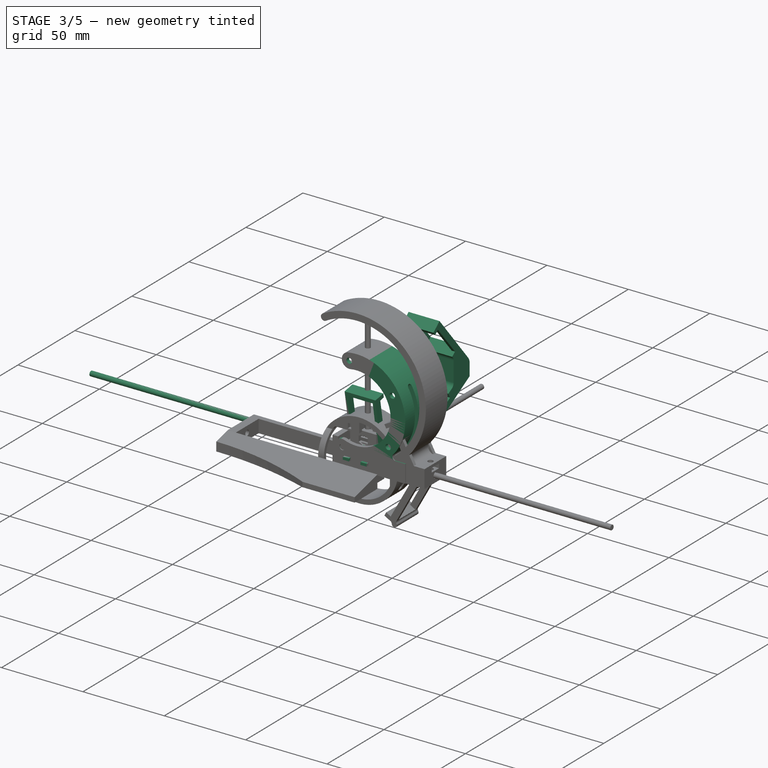
[diagram: stage 3 of 5 — iso view after this stage's code; geometry added in this stage tinted green]
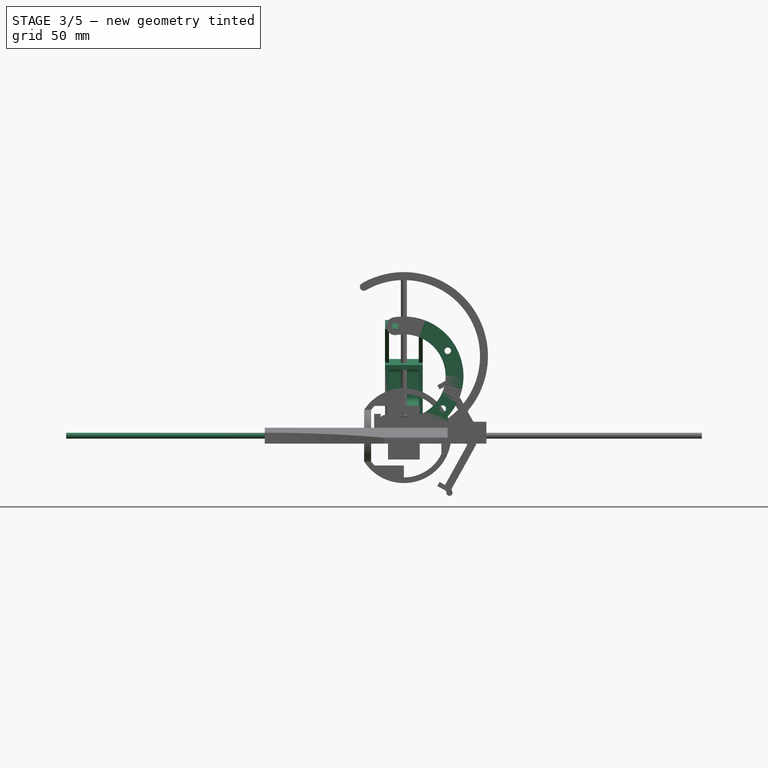
[diagram: stage 3 of 5 — front view after this stage's code; geometry added in this stage tinted green]
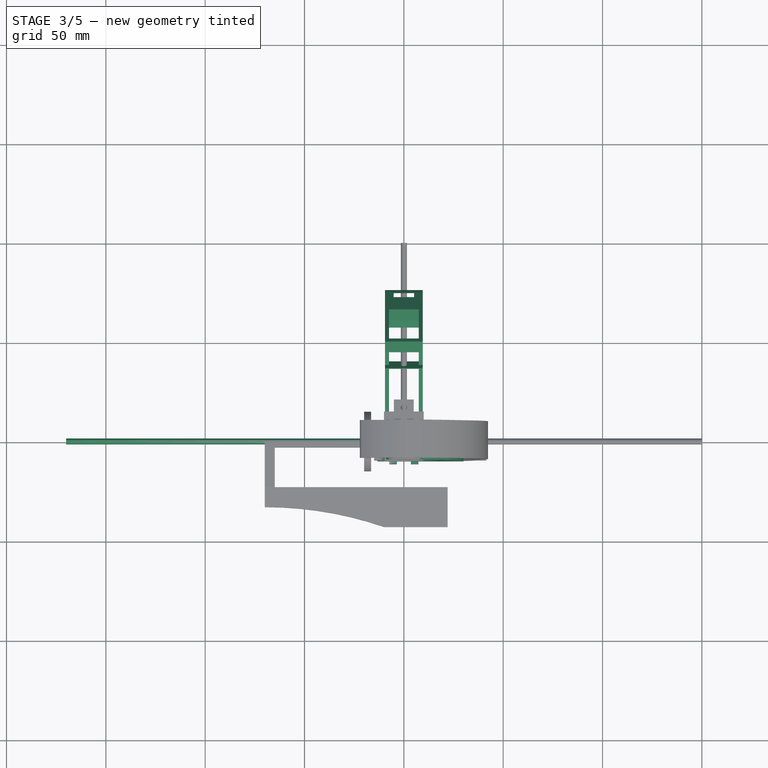
[diagram: stage 3 of 5 — top view after this stage's code; geometry added in this stage tinted green]
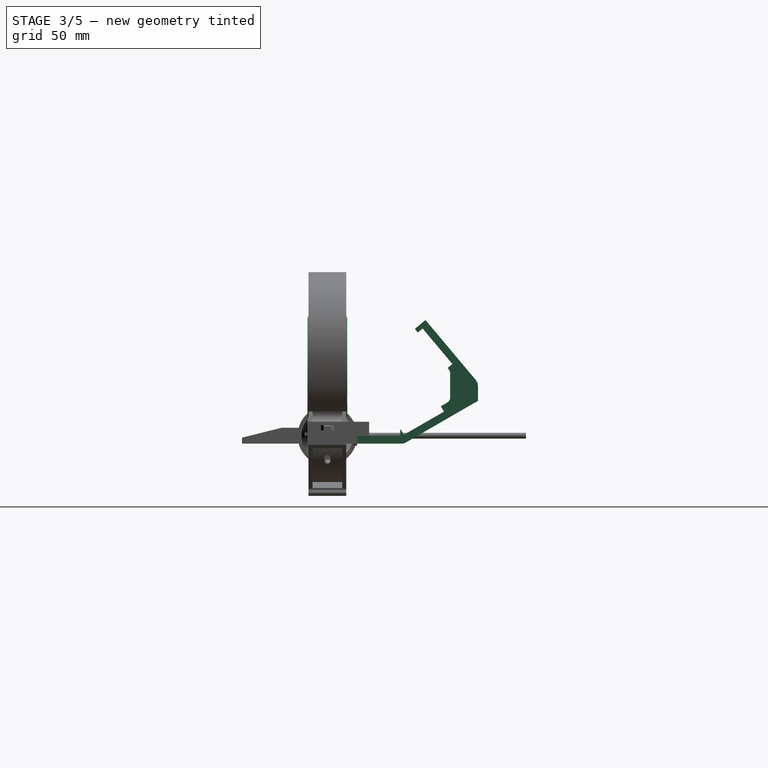
[diagram: stage 3 of 5 — right view after this stage's code; geometry added in this stage tinted green]
FEATURE [PartDesign::Body] Body083  label="OLEDRail"
  Group = -> [Sketch309,Pad191]
  Origin = -> Origin129
  Placement = pos=(16,0,0) rot=(0,0,1;0rad)
  Tip = -> Pad191
FEATURE [App::Link] Link021  label="YouterRail001"
  LinkPlacement = pos=(-76,9.05991e-06,0) rot=(0,0,1;0rad)
  LinkedObject = -> Body083
  Placement = pos=(-76,9.05991e-06,0) rot=(0,0,1;0rad)
FEATURE [Sketcher::SketchObject] Sketch313
  AttachmentOffset = pos=(0,0,-4) rot=(0,0,1;0rad)
  FullyConstrained = true
  MapMode = 5
  Placement = pos=(0,0,-4) rot=(0,0,1;0rad)
  Support = -> [XY_Plane131]
  expr: Constraints[12] = 3 + <<BaseParameters>>.axisTolerance * 2
  sketch-geometry (5):
    g0: LineSegment StartX=-5 StartY=4 StartZ=0 EndX=10 EndY=4 EndZ=0
    g1: LineSegment StartX=10 StartY=-4 StartZ=0 EndX=-5 EndY=-4 EndZ=0
    g2: LineSegment StartX=-5 StartY=-4 StartZ=0 EndX=-5 EndY=4 EndZ=0
    g3: ArcOfCircle CenterX=10 CenterY=0 CenterZ=0 NormalX=0 NormalY=0 NormalZ=1 AngleXU=0 Radius=4 StartAngle=4.71239 EndAngle=7.85398
    g4: Circle CenterX=10 CenterY=0 CenterZ=0 NormalX=0 NormalY=0 NormalZ=1 AngleXU=0 Radius=1.65
  constraints (13):
    c: Coincident(g1,g2)
    c: Coincident(g2,g0)
    c: Horizontal(g0)
    c: Horizontal(g1)
    c: Vertical(g2)
    c: Distance(g2) = 8
    c: Distance(g0,g-2) = 5
    c: PointOnObject(g3,g-1)
    c: Tangent(g3,g0) = 1.5708
    c: Tangent(g3,g1) = 1.5708
    c: Distance(g0,g-2) = 10  'x0'
    c: Coincident(g4,g3)
    c: Diameter(g4) = 3.3
FEATURE [PartDesign::Pad] Pad194
  Direction = (0,0,1)
  Length = 11
  Length2 = 10
  Profile = -> Sketch313
  ReferenceAxis = -> Sketch313 [N_Axis]
  Type = 0
FEATURE [Sketcher::SketchObject] Sketch314
  FullyConstrained = true
  MapMode = 5
  Placement = pos=(0,0,0) rot=(1,0,0;1.5708rad)
  Support = -> [XZ_Plane131]
  expr: Constraints[1] = 3 + 2 * <<BaseParameters>>.axisTolerance
  sketch-geometry (1):
    g0: Circle CenterX=0 CenterY=0 CenterZ=0 NormalX=0 NormalY=0 NormalZ=1 AngleXU=0 Radius=1.65
  constraints (2):
    c: Coincident(g0,g-1)
    c: Diameter(g0) = 3.3
FEATURE [PartDesign::Pocket] Pocket108
  BaseFeature = -> Pad194
  Direction = (0,1,2e-16)
  Length = 10
  Length2 = 5
  Midplane = true
  Profile = -> Sketch314
  ReferenceAxis = -> Sketch314 [N_Axis]
  Type = 0
FEATURE [Sketcher::SketchObject] Sketch315
  AttachmentOffset = pos=(0,0,4) rot=(0,0,1;0rad)
  FullyConstrained = true
  MapMode = 5
  Placement = pos=(0,0,4) rot=(0,0,1;0rad)
  Support = -> [XY_Plane131]
  sketch-geometry (10):
    g0: LineSegment StartX=3.23316 StartY=0 StartZ=0 EndX=1.61658 EndY=2.8 EndZ=0
    g1: LineSegment StartX=1.61658 StartY=2.8 StartZ=0 EndX=-1.61658 EndY=2.8 EndZ=0
    g2: LineSegment StartX=-1.61658 StartY=2.8 StartZ=0 EndX=-3.23316 EndY=-2.0415e-12 EndZ=0
    g3: LineSegment StartX=-3.23316 StartY=-2.0415e-12 StartZ=0 EndX=-1.61658 EndY=-2.8 EndZ=0
    g4: LineSegment StartX=-1.61658 StartY=-2.8 StartZ=0 EndX=1.61658 EndY=-2.8 EndZ=0
    g5: LineSegment StartX=1.61658 StartY=-2.8 StartZ=0 EndX=3.23316 EndY=0 EndZ=0
    g6: Circle CenterX=0 CenterY=0 CenterZ=0 NormalX=0 NormalY=0 NormalZ=1 AngleXU=0 Radius=3.23316
    g7: LineSegment StartX=-1.61658 StartY=2.8 StartZ=0 EndX=-5.61658 EndY=2.8 EndZ=0
    g8: LineSegment StartX=-5.61658 StartY=2.8 StartZ=0 EndX=-5.61658 EndY=-2.8 EndZ=0
    g9: LineSegment StartX=-5.61658 StartY=-2.8 StartZ=0 EndX=-1.61658 EndY=-2.8 EndZ=0
  constraints (24):
    c: Coincident(g0,g1)
    c: Coincident(g1,g2)
    c: Coincident(g2,g3)
    c: Coincident(g3,g4)
    c: Coincident(g4,g5)
    c: Coincident(g5,g0)
    c: Equal(g0, g1-g5) x5
    c: PointOnObject(g0,g6)
    c: PointOnObject(g1,g6)
    c: PointOnObject(g2,g6)
    c: PointOnObject(g3,g6)
    c: PointOnObject(g4,g6)
    c: PointOnObject(g5,g6)
    c: PointOnObject(g5,g-1)
    c: Distance(g0,g4) = 5.6
    c: Coincident(g6,g-1)
    c: Coincident(g1,g7)
    c: Horizontal(g7)
    c: Coincident(g7,g8)
    c: Vertical(g8)
    c: Coincident(g8,g9)
    c: Coincident(g9,g3)
    c: Horizontal(g9)
    c: Distance(g7) = 4
FEATURE [PartDesign::Pocket] Pocket109
  BaseFeature = -> Pocket108
  Direction = (0,0,-1)
  Length = 2.6
  Length2 = 5
  Midplane = true
  Profile = -> Sketch315
  ReferenceAxis = -> Sketch315 [N_Axis]
  Type = 0
FEATURE [PartDesign::Body] Body085  label="JoystickBaseSlider0"
  Group = -> [Sketch313,Pad194,Sketch314,Pocket108,Sketch315,Pocket109,Sketch316,Pocket110,Sketch317,Pocket111]
  Origin = -> Origin131
  Placement = pos=(16,32.4451,0) rot=(0,0,1;0rad)
  Tip = -> Pocket111
  expr: .Placement.Base.y = Sketch301.Constraints.y0
FEATURE [Sketcher::SketchObject] Sketch318
  FullyConstrained = true
  MapMode = 5
  Support = -> [XY_Plane132]
  expr: Constraints[13] = 3 + 2 * <<BaseParameters>>.axisTolerance
  sketch-geometry (5):
    g0: LineSegment StartX=-3 StartY=4e-16 StartZ=0 EndX=-3 EndY=7 EndZ=0
    g1: LineSegment StartX=-3 StartY=7 StartZ=0 EndX=3 EndY=7 EndZ=0
    g2: LineSegment StartX=3 StartY=7 StartZ=0 EndX=3 EndY=-9e-16 EndZ=0
    g3: ArcOfCircle CenterX=0 CenterY=0 CenterZ=0 NormalX=0 NormalY=0 NormalZ=1 AngleXU=0 Radius=3 StartAngle=3.14159 EndAngle=6.28319
    g4: Circle CenterX=0 CenterY=0 CenterZ=0 NormalX=0 NormalY=0 NormalZ=1 AngleXU=0 Radius=1.65
  constraints (14):
    c: PointOnObject(g0,g-1)
    c: Vertical(g0)
    c: Coincident(g0,g1)
    c: Horizontal(g1)
    c: Coincident(g1,g2)
    c: PointOnObject(g2,g-1)
    c: Vertical(g2)
    c: Coincident(g3,g-1)
    c: Coincident(g3,g0)
    c: Coincident(g3,g2)
    c: Distance(g1) = 6
    c: Distance(g2) = 7
    c: Coincident(g4,g3)
    c: Diameter(g4) = 3.3
FEATURE [PartDesign::Pad] Pad195
  Direction = (0,0,1)
  Length = 6
  Length2 = 10
  Midplane = true
  Profile = -> Sketch318
  ReferenceAxis = -> Sketch318 [N_Axis]
  Type = 0
FEATURE [Sketcher::SketchObject] Sketch319
  FullyConstrained = true
  MapMode = 5
  Placement = pos=(0,0,0) rot=(1,0,0;1.5708rad)
  Support = -> [XZ_Plane132]
  expr: Constraints[1] = 3 + 2 * <<BaseParameters>>.axisTolerance
  sketch-geometry (1):
    g0: Circle CenterX=0 CenterY=0 CenterZ=0 NormalX=0 NormalY=0 NormalZ=1 AngleXU=0 Radius=1.65
  constraints (2):
    c: Coincident(g0,g-1)
    c: Diameter(g0) = 3.3
FEATURE [PartDesign::Pocket] Pocket112
  BaseFeature = -> Pad195
  Direction = (0,1,2e-16)
  Length = 8
  Length2 = 5
  Profile = -> Sketch319
  ReferenceAxis = -> Sketch319 [N_Axis]
  Type = 0
FEATURE [PartDesign::Body] Body086  label="JoystickBaseHinge0"
  Group = -> [Sketch318,Pad195,Sketch319,Pocket112]
  Origin = -> Origin132
  Placement = pos=(26,32.4451,1.5) rot=(0,0,1;3.73804rad)
  Tip = -> Pocket112
  expr: .Placement.Base.x = 16mm + Sketch313.Constraints.x0
  expr: .Placement.Base.y = Sketch301.Constraints.y0
  expr: .Placement.Base.z = Sketch317.Constraints.z0
  expr: .Placement.Rotation.Angle = -Sketch301.Constraints.theta0
FEATURE [Sketcher::SketchObject] Sketch320
  FullyConstrained = true
  MapMode = 5
  Placement = pos=(0,0,0) rot=(1,0,0;1.5708rad)
  Support = -> [XZ_Plane133]
  sketch-geometry (1):
    g0: Circle CenterX=0 CenterY=0 CenterZ=0 NormalX=0 NormalY=0 NormalZ=1 AngleXU=0 Radius=1.5
  constraints (2):
    c: Coincident(g0,g-1)
    c: Diameter(g0) = 3
FEATURE [PartDesign::Pad] Pad196
  Direction = (0,-1,-2e-16)
  Length = 100
  Length2 = 10
  Placement = pos=(0,0,0) rot=(1,0,0;1.5708rad)
  Profile = -> Sketch320
  ReferenceAxis = -> Sketch320 [N_Axis]
  Reversed = true
  Type = 0
  expr: Length = <<BaseParameters>>.joystickBaseArm0Length
FEATURE [PartDesign::Body] Body087  label="JoystickBaseArm0"
  Group = -> [Sketch320,Pad196]
  Origin = -> Origin133
  Placement = pos=(26.9268,31.08,1.5) rot=(0,0,1;3.73804rad)
  Tip = -> Pad196
  expr: .Placement.Base.x = Sketch301.Constraints.x2
  expr: .Placement.Base.y = Sketch301.Constraints.y2
  expr: .Placement.Base.z = Sketch317.Constraints.z0
  expr: .Placement.Rotation.Angle = -Sketch301.Constraints.theta0
FEATURE [PartDesign::Pocket] Pocket113
  BaseFeature = -> Pad195
  Direction = (0,1,2e-16)
  Length = 8
  Length2 = 5
  Profile = -> Sketch319
  ReferenceAxis = -> Sketch319 [N_Axis]
  Type = 0
FEATURE [PartDesign::Body] Body089  label="JoystickBaseHinge1"
  Group = -> [Pocket113]
  Origin = -> Origin135
  Placement = pos=(82.171,-50.2883,1.5) rot=(0,0,1;0.596451rad)
  Tip = -> Pocket113
  expr: .Placement.Base.x = Sketch301.Constraints.x1
  expr: .Placement.Base.y = -Sketch301.Constraints.y1
  expr: .Placement.Base.z = Sketch317.Constraints.z0
  expr: .Placement.Rotation.Angle = 180deg - Sketch301.Constraints.theta0
FEATURE [Sketcher::SketchObject] Sketch321
  AttachmentOffset = pos=(0,0,-4) rot=(0,0,1;0rad)
  FullyConstrained = true
  MapMode = 5
  Placement = pos=(0,0,-4) rot=(0,0,1;0rad)
  Support = -> [XY_Plane136]
  expr: Constraints[10] = 3 + <<BaseParameters>>.tolerance
  expr: Constraints[14] = 3 + 2 * <<BaseParameters>>.axisTolerance
  sketch-geometry (7):
    g0: ArcOfCircle CenterX=0 CenterY=0 CenterZ=0 NormalX=0 NormalY=0 NormalZ=1 AngleXU=0 Radius=3.15 StartAngle=0 EndAngle=3.14159
    g1: LineSegment StartX=-3.15 StartY=4e-16 StartZ=0 EndX=-3.15 EndY=-9 EndZ=0
    g2: LineSegment StartX=-3.15 StartY=-9 StartZ=0 EndX=5.85 EndY=-9 EndZ=0
    g3: LineSegment StartX=5.85 StartY=0 StartZ=0 EndX=3.15 EndY=0 EndZ=0
    g4: ArcOfCircle CenterX=5.85 CenterY=-4.5 CenterZ=0 NormalX=0 NormalY=0 NormalZ=1 AngleXU=0 Radius=4.5 StartAngle=4.71239 EndAngle=7.85398
    g5: Circle CenterX=0 CenterY=0 CenterZ=0 NormalX=0 NormalY=0 NormalZ=1 AngleXU=0 Radius=1.65
    g6: LineSegment StartX=0 StartY=-6 StartZ=0 EndX=0 EndY=0 EndZ=0
  constraints (18):
    c: Coincident(g0,g-1)
    c: PointOnObject(g0,g-1)
    c: PointOnObject(g0,g-1)
    c: Tangent(g0,g1) = -1.5708
    c: Coincident(g1,g2)
    c: Horizontal(g2)
    c: PointOnObject(g3,g-1)
    c: Coincident(g3,g0)
    c: Distance(g1) = 9
    c: Distance(g2) = 9
    c: Radius(g0) = 3.15
    c: Tangent(g4,g2) = -1.5708
    c: Tangent(g4,g3) = -1.5708
    c: Coincident(g5,g0)
    c: Diameter(g5) = 3.3
    c: PointOnObject(g6,g-2)
    c: Coincident(g6,g0)
    c: Distance(g6) = 6  'y0'
FEATURE [PartDesign::Pad] Pad197
  Direction = (0,0,1)
  Length = 11
  Length2 = 10
  Profile = -> Sketch321
  ReferenceAxis = -> Sketch321 [N_Axis]
  Type = 0
FEATURE [Sketcher::SketchObject] Sketch322
  AttachmentOffset = pos=(0,0,-4) rot=(0,0,1;0rad)
  FullyConstrained = true
  MapMode = 5
  Placement = pos=(-4,9e-16,-9e-16) rot=(0.57735,0.57735,0.57735;2.0944rad)
  Support = -> [YZ_Plane136]
  expr: Constraints[2] = 3 + 2 * <<BaseParameters>>.axisTolerance
  sketch-geometry (1):
    g0: Circle CenterX=-6 CenterY=0 CenterZ=0 NormalX=0 NormalY=0 NormalZ=1 AngleXU=0 Radius=1.65
  constraints (3):
    c: PointOnObject(g0,g-1)
    c: Distance(g0,g-2) = 6
    c: Diameter(g0) = 3.3
FEATURE [PartDesign::Pocket] Pocket114
  BaseFeature = -> Pad197
  Direction = (-1,2e-16,-3e-16)
  Length = 12
  Length2 = 5
  Profile = -> Sketch322
  ReferenceAxis = -> Sketch322 [N_Axis]
  Reversed = true
  Type = 0
FEATURE [Sketcher::SketchObject] Sketch323
  AttachmentOffset = pos=(0,0,1.5) rot=(0,0,1;0rad)
  FullyConstrained = true
  MapMode = 5
  Placement = pos=(0,0,1.5) rot=(0,0,1;0rad)
  Support = -> [XY_Plane136]
  expr: .AttachmentOffset.Base.z = <<BaseParameters>>.joystickArmZoffset
  expr: Constraints[11] = 3 + <<BaseParameters>>.tolerance
  sketch-geometry (5):
    g0: LineSegment StartX=-4 StartY=-3.15 StartZ=0 EndX=-4e-16 EndY=-3.15 EndZ=0
    g1: ArcOfCircle CenterX=0 CenterY=-2.13e-14 CenterZ=0 NormalX=0 NormalY=0 NormalZ=1 AngleXU=0 Radius=3.15 StartAngle=4.71239 EndAngle=6.28319
    g2: LineSegment StartX=3.15 StartY=3e-16 StartZ=0 EndX=3.15 EndY=4 EndZ=0
    g3: LineSegment StartX=3.15 StartY=4 StartZ=0 EndX=-4 EndY=4 EndZ=0
    g4: LineSegment StartX=-4 StartY=4 StartZ=0 EndX=-4 EndY=-3.15 EndZ=0
  constraints (14):
    c: PointOnObject(g0,g-2)
    c: Tangent(g0,g1) = -1.5708
    c: PointOnObject(g1,g-1)
    c: Tangent(g1,g2) = -1.5708
    c: Coincident(g2,g3)
    c: Horizontal(g3)
    c: Coincident(g3,g4)
    c: Coincident(g4,g0)
    c: Vertical(g4)
    c: Vertical(g2)
    c: Horizontal(g0)
    c: Radius(g1) = 3.15
    c: Distance(g0) = 4
    c: Distance(g2) = 4
FEATURE [PartDesign::Pocket] Pocket115
  BaseFeature = -> Pocket114
  Direction = (0,0,-1)
  Length = 6.3
  Length2 = 5
  Midplane = true
  Profile = -> Sketch323
  ReferenceAxis = -> Sketch323 [N_Axis]
  Type = 0
  expr: Length = 6 + 2 * <<BaseParameters>>.tolerance
FEATURE [Sketcher::SketchObject] Sketch324
  FullyConstrained = true
  MapMode = 5
  Placement = pos=(0,0,0) rot=(1,0,0;1.5708rad)
  Support = -> [XZ_Plane136]
  expr: Constraints[10] = 3 + <<BaseParameters>>.tolerance
  sketch-geometry (4):
    g0: LineSegment StartX=3.15 StartY=7 StartZ=0 EndX=11 EndY=7 EndZ=0
    g1: LineSegment StartX=11 StartY=7 StartZ=0 EndX=11 EndY=4 EndZ=0
    g2: LineSegment StartX=11 StartY=4 StartZ=0 EndX=6.15 EndY=4 EndZ=0
    g3: LineSegment StartX=6.15 StartY=4 StartZ=0 EndX=3.15 EndY=7 EndZ=0
  constraints (12):
    c: Coincident(g0,g1)
    c: Coincident(g1,g2)
    c: Coincident(g2,g3)
    c: Coincident(g3,g0)
    c: Horizontal(g0)
    c: Horizontal(g2)
    c: Vertical(g1)
    c: Distance(g1,g-1) = 4
    c: Distance(g1) = 3
    c: Angle(g3,g0) = 0.785398
    c: Distance(g0,g-2) = 3.15
    c: Distance(g0,g-2) = 11
FEATURE [PartDesign::Pocket] Pocket116
  BaseFeature = -> Pocket115
  Direction = (0,1,2e-16)
  Length = 14
  Length2 = 5
  Profile = -> Sketch324
  ReferenceAxis = -> Sketch324 [N_Axis]
  Reversed = true
  Type = 0
FEATURE [PartDesign::Body] Body090  label="JoystickBaseStructure0"
  Group = -> [Sketch321,Pad197,Sketch322,Pocket114,Sketch323,Pocket115,Sketch324,Pocket116]
  Origin = -> Origin136
  Placement = pos=(82.171,-50.2883,0) rot=(0,0,-1;0.003689rad)
  Tip = -> Pocket116
  expr: .Placement.Base.x = Sketch301.Constraints.x1
  expr: .Placement.Base.y = -Sketch301.Constraints.y1
  expr: .Placement.Rotation.Angle = 180deg - Sketch301.Constraints.theta1
FEATURE [Sketcher::SketchObject] Sketch325
  FullyConstrained = true
  MapMode = 5
  Placement = pos=(0,0,0) rot=(0.57735,0.57735,0.57735;2.0944rad)
  Support = -> [YZ_Plane137]
  sketch-geometry (1):
    g0: Circle CenterX=0 CenterY=0 CenterZ=0 NormalX=0 NormalY=0 NormalZ=1 AngleXU=0 Radius=1.5
  constraints (2):
    c: Coincident(g0,g-1)
    c: Diameter(g0) = 3
FEATURE [PartDesign::Pad] Pad198
  Direction = (1,-2e-16,3e-16)
  Length = 170
  Length2 = 10
  Placement = pos=(0,0,0) rot=(0.57735,0.57735,0.57735;2.0944rad)
  Profile = -> Sketch325
  ReferenceAxis = -> Sketch325 [N_Axis]
  Reversed = true
  Type = 0
  expr: Length = <<BaseParameters>>.joystickBaseArm2Length
FEATURE [PartDesign::Body] Body091  label="JoystickBaseArm2"
  Group = -> [Sketch325,Pad198]
  Origin = -> Origin137
  Placement = pos=(90.1488,-56.3178,0) rot=(0,0,-1;0.003689rad)
  Tip = -> Pad198
  expr: .Placement.Base.x = Sketch301.Constraints.x3
  expr: .Placement.Base.y = -Sketch301.Constraints.y3
  expr: .Placement.Rotation.Angle = 180deg - Sketch301.Constraints.theta1
FEATURE [Sketcher::SketchObject] Sketch326
  FullyConstrained = true
  MapMode = 5
  Placement = pos=(0,0,0) rot=(1,0,0;1.5708rad)
  Support = -> [XZ_Plane138]
  expr: Constraints[20] = 6 + <<BaseParameters>>.tolerance
  expr: Constraints[22] = <<BaseParameters>>.joystickArmZoffset
  expr: Constraints[25] = 6 + 2 * <<BaseParameters>>.tolerance
  sketch-geometry (11):
    g0: LineSegment StartX=-10 StartY=4 StartZ=0 EndX=-10 EndY=-4 EndZ=0
    g1: LineSegment StartX=-10 StartY=-4 StartZ=0 EndX=9.15 EndY=-4 EndZ=0
    g2: LineSegment StartX=9.15 StartY=-4 StartZ=0 EndX=9.15 EndY=-1.65 EndZ=0
    g3: LineSegment StartX=9.15 StartY=-1.65 StartZ=0 EndX=3 EndY=-1.65 EndZ=0
    g4: LineSegment StartX=3 StartY=-1.65 StartZ=0 EndX=3 EndY=4.65 EndZ=0
    g5: LineSegment StartX=3 StartY=4.65 StartZ=0 EndX=9.15 EndY=4.65 EndZ=0
    g6: LineSegment StartX=9.15 StartY=4.65 StartZ=0 EndX=9.15 EndY=7 EndZ=0
    g7: LineSegment StartX=9.15 StartY=7 StartZ=0 EndX=0 EndY=7 EndZ=0
    g8: LineSegment StartX=0 StartY=7 StartZ=0 EndX=-3 EndY=4 EndZ=0
    g9: LineSegment StartX=-3 StartY=4 StartZ=0 EndX=-10 EndY=4 EndZ=0
    g10: GeomPoint X=3 Y=1.5 Z=0
  constraints (30):
    c: Coincident(g0,g1)
    c: Horizontal(g1)
    c: Coincident(g1,g2)
    c: Vertical(g2)
    c: Coincident(g2,g3)
    c: Horizontal(g3)
    c: Coincident(g3,g4)
    c: Coincident(g4,g5)
    c: Horizontal(g5)
    c: Coincident(g5,g6)
    c: Vertical(g6)
    c: Coincident(g6,g7)
    c: Horizontal(g7)
    c: Coincident(g7,g8)
    c: Coincident(g8,g9)
    c: Coincident(g9,g0)
    c: Horizontal(g9)
    c: Symmetric(g0,g0,g-1)
    c: Distance(g0,g-2) = 10
    c: Distance(g-1,g4) = 3
    c: Distance(g3) = 6.15
    c: Equal(g5,g3)
    c: Distance(g10,g-1) = 1.5
    c: Symmetric(g4,g3,g10)
    c: Vertical(g4)
    c: Distance(g4) = 6.3
    c: Distance(g0) = 8
    c: Equal(g6,g2)
    c: Angle(g8,g9) = 2.35619
    c: PointOnObject(g7,g-2)
FEATURE [PartDesign::Pad] Pad199
  Direction = (0,-1,-2e-16)
  Length = 6
  Length2 = 10
  Midplane = true
  Placement = pos=(0,0,0) rot=(1,0,0;1.5708rad)
  Profile = -> Sketch326
  ReferenceAxis = -> Sketch326 [N_Axis]
  Type = 0
FEATURE [Sketcher::SketchObject] Sketch327
  FullyConstrained = true
  MapMode = 5
  Placement = pos=(0,0,0) rot=(0.57735,0.57735,0.57735;2.0944rad)
  Support = -> [YZ_Plane138]
  expr: Constraints[1] = 3 + 2 * <<BaseParameters>>.axisTolerance
  sketch-geometry (1):
    g0: Circle CenterX=0 CenterY=0 CenterZ=0 NormalX=0 NormalY=0 NormalZ=1 AngleXU=0 Radius=1.65
  constraints (2):
    c: Coincident(g0,g-1)
    c: Diameter(g0) = 3.3
FEATURE [PartDesign::Pocket] Pocket117
  BaseFeature = -> Pad199
  Direction = (-1,2e-16,-3e-16)
  Length = 10
  Length2 = 5
  Placement = pos=(0,0,0) rot=(1,0,0;1.5708rad)
  Profile = -> Sketch327
  ReferenceAxis = -> Sketch327 [N_Axis]
  Type = 0
FEATURE [Sketcher::SketchObject] Sketch328
  FullyConstrained = true
  MapMode = 5
  Support = -> [XY_Plane138]
  expr: Constraints[19] = 3 + 2 * <<BaseParameters>>.axisTolerance
  expr: Constraints[1] = 6 + <<BaseParameters>>.tolerance
  sketch-geometry (7):
    g0: Circle CenterX=6.15 CenterY=0 CenterZ=0 NormalX=0 NormalY=0 NormalZ=1 AngleXU=0 Radius=1.65
    g1: LineSegment StartX=6.15 StartY=3 StartZ=0 EndX=6.15 EndY=4 EndZ=0
    g2: LineSegment StartX=6.15 StartY=4 StartZ=0 EndX=10.15 EndY=4 EndZ=0
    g3: LineSegment StartX=10.15 StartY=4 StartZ=0 EndX=10.15 EndY=-4 EndZ=0
    g4: LineSegment StartX=10.15 StartY=-4 StartZ=0 EndX=6.15 EndY=-4 EndZ=0
    g5: LineSegment StartX=6.15 StartY=-4 StartZ=0 EndX=6.15 EndY=-3 EndZ=0
    g6: ArcOfCircle CenterX=6.15 CenterY=0 CenterZ=0 NormalX=0 NormalY=0 NormalZ=1 AngleXU=0 Radius=3 StartAngle=4.71239 EndAngle=7.85398
  constraints (20):
    c: PointOnObject(g0,g-1)
    c: Distance(g0,g-2) = 6.15
    c: Vertical(g1)
    c: Coincident(g1,g2)
    c: Horizontal(g2)
    c: Coincident(g2,g3)
    c: Coincident(g3,g4)
    c: Horizontal(g4)
    c: Coincident(g4,g5)
    c: Vertical(g5)
    c: Coincident(g6,g0)
    c: Coincident(g6,g1)
    c: Coincident(g6,g5)
    c: Radius(g6) = 3
    c: Distance(g1) = 1
    c: Distance(g2) = 4
    c: Symmetric(g2,g3,g-1)
    c: Perpendicular(g6,g1)
    c: Perpendicular(g6,g5)
    c: Diameter(g0) = 3.3
FEATURE [PartDesign::Pocket] Pocket118
  BaseFeature = -> Pocket117
  Direction = (0,0,-1)
  Length = 16
  Length2 = 5
  Midplane = true
  Placement = pos=(0,0,0) rot=(1,0,0;1.5708rad)
  Profile = -> Sketch328
  ReferenceAxis = -> Sketch328 [N_Axis]
  Type = 0
FEATURE [PartDesign::Body] Body092  label="JoystickBaseStructure1"
  Group = -> [Sketch326,Pad199,Sketch327,Pocket117,Sketch328,Pocket118]
  Origin = -> Origin138
  Placement = pos=(-79.85,-55.6906,0) rot=(0,0,1;3.1379rad)
  Tip = -> Pocket118
  expr: .Placement.Base.x = -Sketch301.Constraints.x4
  expr: .Placement.Base.y = -Sketch301.Constraints.y4
  expr: .Placement.Rotation.Angle = Sketch301.Constraints.theta1
FEATURE [Sketcher::SketchObject] Sketch329
  FullyConstrained = true
  MapMode = 5
  Support = -> [XY_Plane139]
  expr: Constraints[11] = 3 + 2 * <<BaseParameters>>.axisTolerance
  sketch-geometry (5):
    g0: Circle CenterX=0 CenterY=0 CenterZ=0 NormalX=0 NormalY=0 NormalZ=1 AngleXU=0 Radius=1.65
    g1: LineSegment StartX=-3 StartY=4e-16 StartZ=0 EndX=-3 EndY=7 EndZ=0
    g2: LineSegment StartX=-3 StartY=7 StartZ=0 EndX=3 EndY=7 EndZ=0
    g3: LineSegment StartX=3 StartY=7 StartZ=0 EndX=3 EndY=-9e-16 EndZ=0
    g4: ArcOfCircle CenterX=0 CenterY=0 CenterZ=0 NormalX=0 NormalY=0 NormalZ=1 AngleXU=0 Radius=3 StartAngle=3.14159 EndAngle=6.28319
  constraints (14):
    c: Coincident(g0,g-1)
    c: PointOnObject(g1,g-1)
    c: Vertical(g1)
    c: Coincident(g1,g2)
    c: Horizontal(g2)
    c: Coincident(g2,g3)
    c: PointOnObject(g3,g-1)
    c: Vertical(g3)
    c: Coincident(g4,g0)
    c: Coincident(g4,g1)
    c: Coincident(g4,g3)
    c: Diameter(g0) = 3.3
    c: Radius(g4) = 3
    c: Distance(g3) = 7
FEATURE [PartDesign::Pad] Pad200
  Direction = (0,0,1)
  Length = 6
  Length2 = 10
  Midplane = true
  Profile = -> Sketch329
  ReferenceAxis = -> Sketch329 [N_Axis]
  Type = 0
FEATURE [Sketcher::SketchObject] Sketch330
  FullyConstrained = true
  MapMode = 5
  Placement = pos=(0,0,0) rot=(1,0,0;1.5708rad)
  Support = -> [XZ_Plane139]
  expr: Constraints[1] = 3 + <<BaseParameters>>.axisTolerance * 2
  sketch-geometry (1):
    g0: Circle CenterX=0 CenterY=0 CenterZ=0 NormalX=0 NormalY=0 NormalZ=1 AngleXU=0 Radius=1.65
  constraints (2):
    c: Coincident(g0,g-1)
    c: Diameter(g0) = 3.3
FEATURE [PartDesign::Pocket] Pocket119
  BaseFeature = -> Pad200
  Direction = (0,1,2e-16)
  Length = 7
  Length2 = 5
  Profile = -> Sketch330
  ReferenceAxis = -> Sketch330 [N_Axis]
  Type = 0
FEATURE [PartDesign::Body] Body093  label="JoystickBaseHinge2"
  Group = -> [Sketch329,Pad200,Sketch330,Pocket119]
  Origin = -> Origin139
  Placement = pos=(-86,-55.6679,1.5) rot=(0,0,1;0rad)
  Tip = -> Pocket119
  expr: .Placement.Base.x = -Sketch301.Constraints.x5
  expr: .Placement.Base.y = -Sketch301.Constraints.y5
  expr: .Placement.Base.z = <<BaseParameters>>.joystickArmZoffset
FEATURE [Sketcher::SketchObject] Sketch331
  FullyConstrained = true
  MapMode = 5
  Placement = pos=(0,0,0) rot=(1,0,0;1.5708rad)
  Support = -> [XZ_Plane140]
  sketch-geometry (1):
    g0: Circle CenterX=0 CenterY=0 CenterZ=0 NormalX=0 NormalY=0 NormalZ=1 AngleXU=0 Radius=1.5
  constraints (2):
    c: Coincident(g0,g-1)
    c: Diameter(g0) = 3
FEATURE [PartDesign::Pad] Pad201
  Direction = (0,-1,-2e-16)
  Length = 80
  Length2 = 10
  Placement = pos=(0,0,0) rot=(1,0,0;1.5708rad)
  Profile = -> Sketch331
  ReferenceAxis = -> Sketch331 [N_Axis]
  Reversed = true
  Type = 0
  expr: Length = <<BaseParameters>>.joystickBaseArm1Length
FEATURE [PartDesign::Body] Body094  label="JoystickBaseArm1"
  Group = -> [Sketch331,Pad201]
  Origin = -> Origin140
  Placement = pos=(-86,-54.0179,1.5) rot=(0,0,1;0rad)
  Tip = -> Pad201
  expr: .Placement.Base.x = -Sketch301.Constraints.x5
  expr: .Placement.Base.y = -Sketch301.Constraints.y5 + (1.5 + <<BaseParameters>>.axisTolerance) * 1mm
  expr: .Placement.Base.z = <<BaseParameters>>.joystickArmZoffset
FEATURE [Sketcher::SketchObject] Sketch332
  AttachmentOffset = pos=(0,0,-4) rot=(0,0,1;0rad)
  FullyConstrained = true
  MapMode = 5
  Placement = pos=(0,0,-4) rot=(0,0,1;0rad)
  Support = -> [XY_Plane141]
  sketch-geometry (4):
    g0: LineSegment StartX=5 StartY=-7 StartZ=0 EndX=-13 EndY=-7 EndZ=0
    g1: LineSegment StartX=-13 StartY=-7 StartZ=0 EndX=-13 EndY=3 EndZ=0
    g2: LineSegment StartX=-13 StartY=3 StartZ=0 EndX=5 EndY=3 EndZ=0
    g3: LineSegment StartX=5 StartY=3 StartZ=0 EndX=5 EndY=-7 EndZ=0
  constraints (12):
    c: Coincident(g0,g1)
    c: Coincident(g1,g2)
    c: Coincident(g2,g3)
    c: Coincident(g3,g0)
    c: Horizontal(g0)
    c: Horizontal(g2)
    c: Vertical(g1)
    c: Distance(g3) = 10
    c: Distance(g0,g-2) = 13
    c: Distance(g0,g-2) = 5
    c: Distance(g2,g-1) = 3
    c: Vertical(g3)
FEATURE [PartDesign::Pad] Pad202
  Direction = (0,0,1)
  Length = 11
  Length2 = 10
  Profile = -> Sketch332
  ReferenceAxis = -> Sketch332 [N_Axis]
  Type = 0
FEATURE [Sketcher::SketchObject] Sketch333
  AttachmentOffset = pos=(0,0,-3) rot=(0,0,1;0rad)
  FullyConstrained = true
  MapMode = 5
  Placement = pos=(0,3,7e-16) rot=(1,0,0;1.5708rad)
  Support = -> [XZ_Plane141]
  expr: Constraints[10] = <<BaseParameters>>.joystickArmZoffset + 3
  expr: Constraints[1] = 3 + 2 * <<BaseParameters>>.axisTolerance
  sketch-geometry (5):
    g0: Circle CenterX=0 CenterY=0 CenterZ=0 NormalX=0 NormalY=0 NormalZ=1 AngleXU=0 Radius=1.65
    g1: LineSegment StartX=-13 StartY=4.5 StartZ=0 EndX=-7.5 EndY=4.5 EndZ=0
    g2: LineSegment StartX=-7.5 StartY=4.5 StartZ=0 EndX=-5 EndY=7 EndZ=0
    g3: LineSegment StartX=-5 StartY=7 StartZ=0 EndX=-13 EndY=7 EndZ=0
    g4: LineSegment StartX=-13 StartY=7 StartZ=0 EndX=-13 EndY=4.5 EndZ=0
  constraints (14):
    c: Coincident(g0,g-1)
    c: Diameter(g0) = 3.3
    c: Horizontal(g1)
    c: Coincident(g1,g2)
    c: Coincident(g2,g3)
    c: Horizontal(g3)
    c: Coincident(g3,g4)
    c: Coincident(g4,g1)
    c: Vertical(g4)
    c: Distance(g2,g-2) = 5
    c: Distance(g1,g-1) = 4.5
    c: Distance(g3,g-2) = 13
    c: Angle(g3,g2) = 0.785398
    c: Distance(g3,g-1) = 7
FEATURE [PartDesign::Pocket] Pocket120
  BaseFeature = -> Pad202
  Direction = (0,1,2e-16)
  Length = 10
  Length2 = 5
  Profile = -> Sketch333
  ReferenceAxis = -> Sketch333 [N_Axis]
  Reversed = true
  Type = 0
FEATURE [Sketcher::SketchObject] Sketch334
  FullyConstrained = true
  MapMode = 5
  Placement = pos=(0,0,0) rot=(1,0,0;1.5708rad)
  Support = -> [XZ_Plane141]
  expr: Constraints[1] = <<BaseParameters>>.joystickArmZoffset
  expr: Constraints[2] = 3 + 2 * <<BaseParameters>>.axisTolerance
  sketch-geometry (1):
    g0: Circle CenterX=-10 CenterY=1.5 CenterZ=0 NormalX=0 NormalY=0 NormalZ=1 AngleXU=0 Radius=1.65
  constraints (3):
    c: Distance(g0,g-2) = 10
    c: Distance(g0,g-1) = 1.5
    c: Diameter(g0) = 3.3
FEATURE [PartDesign::Pocket] Pocket121
  BaseFeature = -> Pocket120
  Direction = (0,1,2e-16)
  Length = 7
  Length2 = 5
  Profile = -> Sketch334
  ReferenceAxis = -> Sketch334 [N_Axis]
  Reversed = true
  Type = 0
FEATURE [Sketcher::SketchObject] Sketch335
  AttachmentOffset = pos=(0,0,4) rot=(0,0,1;0rad)
  FullyConstrained = true
  MapMode = 5
  Placement = pos=(0,0,4) rot=(0,0,1;0rad)
  Support = -> [XY_Plane141]
  sketch-geometry (10):
    g0: LineSegment StartX=3.23316 StartY=-2 StartZ=0 EndX=1.61658 EndY=0.8 EndZ=0
    g1: LineSegment StartX=1.61658 StartY=0.8 StartZ=0 EndX=-1.61658 EndY=0.8 EndZ=0
    g2: LineSegment StartX=-1.61658 StartY=0.8 StartZ=0 EndX=-3.23316 EndY=-2 EndZ=0
    g3: LineSegment StartX=-3.23316 StartY=-2 StartZ=0 EndX=-1.61658 EndY=-4.8 EndZ=0
    g4: LineSegment StartX=-1.61658 StartY=-4.8 StartZ=0 EndX=1.61658 EndY=-4.8 EndZ=0
    g5: LineSegment StartX=1.61658 StartY=-4.8 StartZ=0 EndX=3.23316 EndY=-2 EndZ=0
    g6: Circle CenterX=0 CenterY=-2 CenterZ=0 NormalX=0 NormalY=0 NormalZ=1 AngleXU=0 Radius=3.23316
    g7: LineSegment StartX=1.61658 StartY=0.8 StartZ=0 EndX=5.61658 EndY=0.8 EndZ=0
    g8: LineSegment StartX=5.61658 StartY=0.8 StartZ=0 EndX=5.61658 EndY=-4.8 EndZ=0
    g9: LineSegment StartX=5.61658 StartY=-4.8 StartZ=0 EndX=1.61658 EndY=-4.8 EndZ=0
  constraints (25):
    c: Coincident(g0,g1)
    c: Coincident(g1,g2)
    c: Coincident(g2,g3)
    c: Coincident(g3,g4)
    c: Coincident(g4,g5)
    c: Coincident(g5,g0)
    c: Equal(g0, g1-g5) x5
    c: PointOnObject(g0,g6)
    c: PointOnObject(g1,g6)
    c: PointOnObject(g2,g6)
    c: PointOnObject(g3,g6)
    c: PointOnObject(g4,g6)
    c: PointOnObject(g5,g6)
    c: PointOnObject(g6,g-2)
    c: Horizontal(g1)
    c: Distance(g1,g3) = 5.6
    c: Distance(g6,g-1) = 2
    c: Coincident(g0,g7)
    c: Horizontal(g7)
    c: Coincident(g7,g8)
    c: Vertical(g8)
    c: Coincident(g8,g9)
    c: Coincident(g9,g4)
    c: Horizontal(g9)
    c: Distance(g7) = 4
FEATURE [PartDesign::Pocket] Pocket122
  BaseFeature = -> Pocket121
  Direction = (0,0,-1)
  Length = 2.6
  Length2 = 5
  Midplane = true
  Profile = -> Sketch335
  ReferenceAxis = -> Sketch335 [N_Axis]
  Type = 0
FEATURE [Sketcher::SketchObject] Sketch336
  FullyConstrained = true
  MapMode = 5
  Support = -> [XY_Plane141]
  expr: Constraints[2] = 3 + 2 * <<BaseParameters>>.screwHoleTolerance
  sketch-geometry (1):
    g0: Circle CenterX=0 CenterY=-2 CenterZ=0 NormalX=0 NormalY=0 NormalZ=1 AngleXU=0 Radius=1.6
  constraints (3):
    c: PointOnObject(g0,g-2)
    c: Distance(g0,g-1) = 2
    c: Diameter(g0) = 3.2
FEATURE [PartDesign::Pocket] Pocket123
  BaseFeature = -> Pocket122
  Direction = (0,0,-1)
  Length = 10
  Length2 = 5
  Profile = -> Sketch336
  ReferenceAxis = -> Sketch336 [N_Axis]
  Reversed = true
  Type = 0
FEATURE [PartDesign::Body] Body095  label="JoystickBaseSlider1"
  Group = -> [Sketch332,Pad202,Sketch333,Pocket120,Sketch334,Pocket121,Sketch335,Pocket122,Sketch336,Pocket123]
  Origin = -> Origin141
  Placement = pos=(-76,25.9821,0) rot=(0,0,1;0rad)
  Tip = -> Pocket123
  expr: .Placement.Base.x = -Sketch301.Constraints.x6
  expr: .Placement.Base.y = Sketch301.Constraints.y6
FEATURE [Part::Feature] Part__Feature017  label="SOLID003"
  Placement = pos=(0,0,0) rot=(0,0,1;3.14159rad)
  shape: bbox 18.19 x 21.68 x 21.86 mm, 1735 faces (baked)
FEATURE [Part::Feature] Part__Feature018  label="Body"
  Placement = pos=(0,0,10.8) rot=(0,0,1;0rad)
  shape: bbox 24 x 24 x 17.8 mm, 5 faces (baked)
FEATURE [App::Part] Part023  label="Part"
  Group = -> [Part__Feature017,Part__Feature018]
  Origin = -> Origin148
  Placement = pos=(0,0,1.4) rot=(0,0,-1;3.14159rad)
FEATURE [PartDesign::Pad] Pad207
  Direction = (1,-2e-16,3e-16)
  Length = 19
  Length2 = 10
  Midplane = true
  Placement = pos=(0,0,0) rot=(0.57735,0.57735,0.57735;2.0944rad)
  Profile = -> Sketch203
  ReferenceAxis = -> Sketch203 [N_Axis]
  Type = 0
FEATURE [PartDesign::Pocket] Pocket131
  BaseFeature = -> Pad207
  Direction = (-1,2e-16,-3e-16)
  Length = 19
  Length2 = 5
  Midplane = true
  Placement = pos=(0,0,0) rot=(0.57735,0.57735,0.57735;2.0944rad)
  Profile = -> Sketch204
  ReferenceAxis = -> Sketch204 [N_Axis]
  Type = 0
FEATURE [PartDesign::Pocket] Pocket130
  BaseFeature = -> Pocket131
  Direction = (-1,2e-16,-3e-16)
  Length = 15
  Length2 = 5
  Midplane = true
  Placement = pos=(0,0,0) rot=(0.57735,0.57735,0.57735;2.0944rad)
  Profile = -> Sketch205
  ReferenceAxis = -> Sketch205 [N_Axis]
  Type = 0
FEATURE [PartDesign::Pocket] Pocket133
  BaseFeature = -> Pocket130
  Direction = (-1,2e-16,-3e-16)
  Length = 10.3
  Length2 = 5
  Midplane = true
  Placement = pos=(0,0,0) rot=(0.57735,0.57735,0.57735;2.0944rad)
  Profile = -> Sketch233
  ReferenceAxis = -> Sketch233 [N_Axis]
  Type = 0
  expr: Length = 10 + <<KeyHolderParameter>>.tolerance * 2
FEATURE [Sketcher::SketchObject] Sketch372
  FullyConstrained = true
  MapMode = 5
  Placement = pos=(0,0,0) rot=(1,0,0;1.5708rad)
  Support = -> [XZ_Plane170]
  sketch-geometry (3):
    g0: ArcOfCircle CenterX=0 CenterY=0 CenterZ=0 NormalX=0 NormalY=0 NormalZ=1 AngleXU=0 Radius=30 StartAngle=2.53073 EndAngle=3.75246
    g1: LineSegment StartX=-24.5746 StartY=17.2073 StartZ=0 EndX=0 EndY=0 EndZ=0
    g2: LineSegment StartX=-24.5746 StartY=-17.2073 StartZ=0 EndX=0 EndY=0 EndZ=0
  constraints (8):
    c: Coincident(g0,g-1)
    c: Coincident(g1,g0)
    c: Radius(g0) = 30
    c: Coincident(g1,g0)
    c: Coincident(g2,g0)
    c: Coincident(g2,g0)
    c: Vertical(g0,g0)
    c: Angle(g1,g2) = 1.22173
FEATURE [PartDesign::Pad] Pad215
  Direction = (0,-1,-2e-16)
  Length = 3
  Length2 = 10
  Midplane = true
  Placement = pos=(0,0,0) rot=(1,0,0;1.5708rad)
  Profile = -> Sketch372
  ReferenceAxis = -> Sketch372 [N_Axis]
  Type = 0
FEATURE [Sketcher::SketchObject] Sketch373
  AttachmentOffset = pos=(0,0,0) rot=(0,1,0;-0.959931rad)
  FullyConstrained = true
  MapMode = 5
  Placement = pos=(0,0,0) rot=(0,1,0;5.32325rad)
  Support = -> [XY_Plane170]
  sketch-geometry (1):
    g0: Circle CenterX=0 CenterY=0 CenterZ=0 NormalX=0 NormalY=0 NormalZ=1 AngleXU=0 Radius=1.5
  constraints (2):
    c: Coincident(g0,g-1)
    c: Diameter(g0) = 3
FEATURE [PartDesign::Pad] Pad216
  BaseFeature = -> Pad215
  Direction = (-0.819152,0,0.573576)
  Length = 30
  Length2 = 10
  Placement = pos=(0,0,0) rot=(1,0,0;1.5708rad)
  Profile = -> Sketch373
  ReferenceAxis = -> Sketch373 [N_Axis]
  Type = 0
FEATURE [Sketcher::SketchObject] Sketch374
  AttachmentOffset = pos=(0,0,0) rot=(0,1,0;-2.18166rad)
  FullyConstrained = true
  MapMode = 5
  Placement = pos=(0,0,0) rot=(0,1,0;4.10152rad)
  Support = -> [XY_Plane170]
  sketch-geometry (1):
    g0: Circle CenterX=0 CenterY=0 CenterZ=0 NormalX=0 NormalY=0 NormalZ=1 AngleXU=0 Radius=1.5
  constraints (2):
    c: Coincident(g0,g-1)
    c: Diameter(g0) = 3
FEATURE [PartDesign::Pad] Pad217
  BaseFeature = -> Pad216
  Direction = (-0.819152,0,-0.573576)
  Length = 30
  Length2 = 10
  Placement = pos=(0,0,0) rot=(1,0,0;1.5708rad)
  Profile = -> Sketch374
  ReferenceAxis = -> Sketch374 [N_Axis]
  Type = 0
FEATURE [PartDesign::Body] Body101
  Group = -> [Sketch372,Pad215,Sketch373,Pad216,Sketch374,Pad217]
  Origin = -> Origin171
  Placement = pos=(0,0,30) rot=(-0.043619,0,-0.999048;3.14159rad)
  Tip = -> Pad217
  expr: .Placement.Base.z = <<JoystickParameters>>.rotorHeight
FEATURE [Part::Feature] Part__Feature045  label="SOLID021"
  shape: bbox 6.3 x 3.2 x 0.6 mm, 26 faces (baked)
FEATURE [App::Part] R_2512_6332Metric018
  Group = -> [Part__Feature045]
  Origin = -> Origin182
  Placement = pos=(0,12,-0.05) rot=(1,0,0;3.14159rad)
FEATURE [Part::Feature] Part__Feature046  label="SOLID022"
  shape: bbox 2.54 x 12.7 x 11.54 mm, 124 faces (baked)
FEATURE [App::Part] PinHeader_1x05_P2_54mm_Vertical  label="PinHeader_1x05_P2.54mm_Vertical"
  Group = -> [Part__Feature046]
  Origin = -> Origin183
  Placement = pos=(-9.5,5.07999,-0.05) rot=(0,1,0;3.14159rad)
FEATURE [Part::Feature] Part__Feature047  label="SOLID023"
  shape: bbox 6.3 x 3.2 x 0.6 mm, 26 faces (baked)
FEATURE [App::Part] R_2512_6332Metric019
  Group = -> [Part__Feature047]
  Origin = -> Origin184
  Placement = pos=(12.1,-7e-06,-0.05) rot=(0.707107,0.707107,0;3.14159rad)
FEATURE [Part::Feature] Part__Feature048  label="JoystickPCB PCB"
  shape: bbox 40 x 30 x 1.6 mm, 29 faces (baked)
FEATURE [App::Part] JoystickPCB_1001  label="JoystickPCB 002"
  Group = -> [R_2512_6332Metric018,PinHeader_1x05_P2_54mm_Vertical,R_2512_6332Metric019,Part__Feature048,Part023]
  Origin = -> Origin185
  Placement = pos=(0,0,0) rot=(0,1,0;4.71239rad)
FEATURE [Sketcher::SketchObject] Sketch375
  FullyConstrained = true
  MapMode = 5
  Support = -> [XY_Plane185]
  expr: Constraints[32] = 15 - 2 * <<BaseParameters>>.tolerance
  sketch-geometry (15):
    g0: LineSegment StartX=-7.35 StartY=11.5 StartZ=0 EndX=-3.5 EndY=11.5 EndZ=0
    g1: LineSegment StartX=-3.5 StartY=11.5 StartZ=0 EndX=-3.5 EndY=10 EndZ=0
    g2: LineSegment StartX=-3.5 StartY=10 StartZ=0 EndX=3.5 EndY=10 EndZ=0
    g3: LineSegment StartX=3.5 StartY=10 StartZ=0 EndX=3.5 EndY=11.5 EndZ=0
    g4: LineSegment StartX=3.5 StartY=11.5 StartZ=0 EndX=7.35 EndY=11.5 EndZ=0
    g5: LineSegment StartX=7.35 StartY=11.5 StartZ=0 EndX=7.35 EndY=-11.5 EndZ=0
    g6: LineSegment StartX=7.35 StartY=-11.5 StartZ=0 EndX=3.5 EndY=-11.5 EndZ=0
    g7: LineSegment StartX=3.5 StartY=-11.5 StartZ=0 EndX=3.5 EndY=-10 EndZ=0
    g8: LineSegment StartX=3.5 StartY=-10 StartZ=0 EndX=-3.5 EndY=-10 EndZ=0
    g9: LineSegment StartX=-3.5 StartY=-10 StartZ=0 EndX=-3.5 EndY=-11.5 EndZ=0
    g10: LineSegment StartX=-3.5 StartY=-11.5 StartZ=0 EndX=-7.35 EndY=-11.5 EndZ=0
    g11: LineSegment StartX=-7.35 StartY=-11.5 StartZ=0 EndX=-7.35 EndY=11.5 EndZ=0
    g12: Circle CenterX=0 CenterY=0 CenterZ=0 NormalX=0 NormalY=0 NormalZ=1 AngleXU=0 Radius=2
    g13: Circle CenterX=5.08 CenterY=-2.54 CenterZ=0 NormalX=0 NormalY=0 NormalZ=1 AngleXU=0 Radius=1.5
    g14: Circle CenterX=2.54 CenterY=3.81 CenterZ=0 NormalX=0 NormalY=0 NormalZ=1 AngleXU=0 Radius=1.5
  constraints (43):
    c: Horizontal(g0)
    c: Coincident(g0,g1)
    c: Vertical(g1)
    c: Coincident(g1,g2)
    c: Horizontal(g2)
    c: Coincident(g2,g3)
    c: Vertical(g3)
    c: Coincident(g3,g4)
    c: Horizontal(g4)
    c: Coincident(g4,g5)
    c: Vertical(g5)
    c: Coincident(g5,g6)
    c: Horizontal(g6)
    c: Coincident(g6,g7)
    c: Coincident(g7,g8)
    c: Horizontal(g8)
    c: Coincident(g8,g9)
    c: Vertical(g9)
    c: Coincident(g9,g10)
    c: Horizontal(g10)
    c: Coincident(g10,g11)
    c: Coincident(g11,g0)
    c: Vertical(g11)
    c: Symmetric(g0,g5,g-1)
    c: Vertical(g7)
    c: Equal(g0,g4)
    c: Equal(g4,g6)
    c: Equal(g6,g10)
    c: Equal(g1,g3)
    c: Equal(g3,g7)
    c: Equal(g7,g9)
    c: Distance(g5) = 23
    c: Distance(g0,g4) = 14.7
    c: Distance(g0,g3) = 7
    c: Distance(g3) = 1.5
    c: Coincident(g12,g-1)
    c: Diameter(g12) = 4
    c: Diameter(g14) = 3
    c: Equal(g14,g13)
    c: Distance(g14,g-2) = 2.54
    c: Distance(g14,g-1) = 3.81
    c: Distance(g13,g-1) = 2.54
    c: Distance(g13,g-2) = 5.08
FEATURE [PartDesign::Pad] Pad218
  Direction = (0,0,1)
  Length = 1.6
  Length2 = 10
  Profile = -> Sketch375
  ReferenceAxis = -> Sketch375 [N_Axis]
  Type = 0
FEATURE [Sketcher::SketchObject] Sketch380
  AttachmentOffset = pos=(0,0,10) rot=(0,0,1;0rad)
  FullyConstrained = true
  MapMode = 5
  Placement = pos=(0,-10,-2.2e-15) rot=(1,0,0;1.5708rad)
  Support = -> [XZ_Plane185]
  expr: Constraints[20] = 7.5 - <<BaseParameters>>.tolerance
  sketch-geometry (10):
    g0: LineSegment StartX=-7.35 StartY=0 StartZ=0 EndX=-5.675 EndY=0 EndZ=0
    g1: LineSegment StartX=-5.675 StartY=0 StartZ=0 EndX=-5.675 EndY=-2 EndZ=0
    g2: LineSegment StartX=-5.675 StartY=-2 StartZ=0 EndX=-1.675 EndY=-2 EndZ=0
    g3: LineSegment StartX=-1.675 StartY=-2 StartZ=0 EndX=-1.675 EndY=0 EndZ=0
    g4: LineSegment StartX=-1.675 StartY=0 StartZ=0 EndX=0 EndY=0 EndZ=0
    g5: LineSegment StartX=0 StartY=0 StartZ=0 EndX=0 EndY=-2 EndZ=0
    g6: ArcOfCircle CenterX=-1.675 CenterY=-2 CenterZ=0 NormalX=0 NormalY=0 NormalZ=1 AngleXU=0 Radius=1.675 StartAngle=4.71239 EndAngle=6.28319
    g7: LineSegment StartX=-1.675 StartY=-3.675 StartZ=0 EndX=-5.675 EndY=-3.675 EndZ=0
    g8: ArcOfCircle CenterX=-5.675 CenterY=-2 CenterZ=0 NormalX=0 NormalY=0 NormalZ=1 AngleXU=0 Radius=1.675 StartAngle=3.14159 EndAngle=4.71239
    g9: LineSegment StartX=-7.35 StartY=-2 StartZ=0 EndX=-7.35 EndY=0 EndZ=0
  constraints (26):
    c: PointOnObject(g0,g-1)
    c: Horizontal(g0)
    c: Coincident(g0,g1)
    c: Vertical(g1)
    c: Coincident(g1,g2)
    c: Horizontal(g2)
    c: Coincident(g2,g3)
    c: PointOnObject(g3,g-1)
    c: Vertical(g3)
    c: Coincident(g3,g4)
    c: Coincident(g4,g5)
    c: Vertical(g5)
    c: Tangent(g5,g6) = 1.5708
    c: Tangent(g6,g7) = 1.5708
    c: Tangent(g7,g8) = 1.5708
    c: Tangent(g8,g9) = 1.5708
    c: Coincident(g9,g0)
    c: Vertical(g9)
    c: Equal(g8,g6)
    c: Equal(g5,g9)
    c: Distance(g0,g-2) = 7.35
    c: Distance(g1) = 2
    c: Distance(g2) = 4
    c: Coincident(g4,g-1)
    c: Equal(g0,g4)
    c: Coincident(g8,g1)
FEATURE [PartDesign::Pad] Pad219
  BaseFeature = -> Pad218
  Direction = (0,-1,-2e-16)
  Length = 2
  Length2 = 10
  Profile = -> Sketch380
  ReferenceAxis = -> Sketch380 [N_Axis]
  Reversed = true
  Type = 0
FEATURE [Sketcher::SketchObject] Sketch381
  AttachmentOffset = pos=(0,0,-10) rot=(0,0,1;0rad)
  FullyConstrained = true
  MapMode = 5
  Placement = pos=(0,10,2.2e-15) rot=(1,0,0;1.5708rad)
  Support = -> [XZ_Plane185]
  expr: Constraints[20] = 7.5 - <<BaseParameters>>.tolerance
  sketch-geometry (10):
    g0: LineSegment StartX=-7.35 StartY=0 StartZ=0 EndX=-7.35 EndY=-2 EndZ=0
    g1: ArcOfCircle CenterX=-5.85 CenterY=-2 CenterZ=0 NormalX=0 NormalY=0 NormalZ=1 AngleXU=0 Radius=1.5 StartAngle=3.14159 EndAngle=4.71239
    g2: LineSegment StartX=-5.85 StartY=-3.5 StartZ=0 EndX=-3.85 EndY=-3.5 EndZ=0
    g3: ArcOfCircle CenterX=-3.85 CenterY=-2 CenterZ=0 NormalX=0 NormalY=0 NormalZ=1 AngleXU=0 Radius=1.5 StartAngle=4.71239 EndAngle=6.28319
    g4: LineSegment StartX=-2.35 StartY=-2 StartZ=0 EndX=-2.35 EndY=0 EndZ=0
    g5: LineSegment StartX=-2.35 StartY=0 StartZ=0 EndX=-3.85 EndY=0 EndZ=0
    g6: LineSegment StartX=-3.85 StartY=0 StartZ=0 EndX=-3.85 EndY=-2 EndZ=0
    g7: LineSegment StartX=-3.85 StartY=-2 StartZ=0 EndX=-5.85 EndY=-2 EndZ=0
    g8: LineSegment StartX=-5.85 StartY=-2 StartZ=0 EndX=-5.85 EndY=0 EndZ=0
    g9: LineSegment StartX=-5.85 StartY=0 StartZ=0 EndX=-7.35 EndY=0 EndZ=0
  constraints (27):
    c: PointOnObject(g0,g-1)
    c: Vertical(g0)
    c: Tangent(g0,g1) = -1.5708
    c: Tangent(g1,g2) = -1.5708
    c: Tangent(g2,g3) = -1.5708
    c: Tangent(g3,g4) = -1.5708
    c: Coincident(g4,g5)
    c: PointOnObject(g5,g-1)
    c: Horizontal(g5)
    c: Coincident(g5,g6)
    c: Vertical(g6)
    c: Coincident(g6,g7)
    c: Horizontal(g7)
    c: Coincident(g7,g8)
    c: PointOnObject(g8,g-1)
    c: Vertical(g8)
    c: Coincident(g8,g9)
    c: Coincident(g9,g0)
    c: Distance(g8) = 2
    c: Distance(g7) = 2
    c: Distance(g0,g-2) = 7.35
    c: Equal(g9,g5)
    c: Vertical(g4)
    c: Horizontal(g2)
    c: Distance(g9) = 1.5
    c: Coincident(g1,g7)
    c: Equal(g1,g3)
FEATURE [PartDesign::Pad] Pad220
  BaseFeature = -> Pad219
  Direction = (0,-1,-2e-16)
  Length = 2
  Length2 = 10
  Profile = -> Sketch381
  ReferenceAxis = -> Sketch381 [N_Axis]
  Type = 0
FEATURE [PartDesign::Pad] Pad222
  Direction = (1,-2e-16,3e-16)
  Length = 19
  Length2 = 10
  Midplane = true
  Placement = pos=(0,0,0) rot=(0.57735,0.57735,0.57735;2.0944rad)
  Profile = -> Sketch203
  ReferenceAxis = -> Sketch203 [N_Axis]
  Type = 0
FEATURE [PartDesign::Pocket] Pocket152
  BaseFeature = -> Pad222
  Direction = (-1,2e-16,-3e-16)
  Length = 19
  Length2 = 5
  Midplane = true
  Placement = pos=(0,0,0) rot=(0.57735,0.57735,0.57735;2.0944rad)
  Profile = -> Sketch204
  ReferenceAxis = -> Sketch204 [N_Axis]
  Type = 0
FEATURE [PartDesign::Pocket] Pocket150
  BaseFeature = -> Pocket152
  Direction = (-1,2e-16,-3e-16)
  Length = 15
  Length2 = 5
  Midplane = true
  Placement = pos=(0,0,0) rot=(0.57735,0.57735,0.57735;2.0944rad)
  Profile = -> Sketch205
  ReferenceAxis = -> Sketch205 [N_Axis]
  Type = 0
FEATURE [PartDesign::Pocket] Pocket151
  BaseFeature = -> Pocket150
  Direction = (-1,2e-16,-3e-16)
  Length = 10.3
  Length2 = 5
  Midplane = true
  Placement = pos=(0,0,0) rot=(0.57735,0.57735,0.57735;2.0944rad)
  Profile = -> Sketch233
  ReferenceAxis = -> Sketch233 [N_Axis]
  Type = 0
  expr: Length = 10 + <<KeyHolderParameter>>.tolerance * 2
FEATURE [Sketcher::SketchObject] Sketch384
  FullyConstrained = true
  MapMode = 5
  Placement = pos=(0,0,0) rot=(0.57735,0.57735,0.57735;2.0944rad)
  Support = -> [YZ_Plane084]
  expr: Constraints[0] = Sketch203.Constraints.y3
  expr: Constraints[1] = Sketch203.Constraints.z3
  expr: Constraints[8] = <<KeyHolderParameter>>.key3theta
  sketch-geometry (8):
    g0: GeomPoint X=57.0892 Y=14.825 Z=0
    g1: LineSegment StartX=57.0892 StartY=14.825 StartZ=0 EndX=68.5892 EndY=21.4645 EndZ=0
    g2: LineSegment StartX=70.0892 StartY=24.0626 StartZ=0 EndX=70.0892 EndY=42.3306 EndZ=0
    g3: LineSegment StartX=70.0892 StartY=42.3306 StartZ=0 EndX=56.2494 EndY=66.3017 EndZ=0
    g4: LineSegment StartX=56.2494 StartY=66.3017 StartZ=0 EndX=34.5892 EndY=53.7961 EndZ=0
    g5: LineSegment StartX=34.5892 StartY=53.7961 StartZ=0 EndX=57.0892 EndY=14.825 EndZ=0
    g6: ArcOfCircle CenterX=67.0892 CenterY=24.0626 CenterZ=0 NormalX=0 NormalY=0 NormalZ=1 AngleXU=0 Radius=3 StartAngle=5.23599 EndAngle=6.28319
    g7: GeomPoint X=70.0892 Y=22.3306 Z=0
  constraints (20):
    c: Distance(g0,g-2) = 57.0892
    c: Distance(g0,g-1) = 14.825
    c: Coincident(g1,g0)
    c: Vertical(g2)
    c: Coincident(g2,g3)
    c: Coincident(g3,g4)
    c: Coincident(g4,g5)
    c: Coincident(g5,g1)
    c: Angle(g1,g-1) = 2.61799
    c: DistanceX(g1,g7) = 13
    c: Perpendicular(g1,g5)
    c: Parallel(g5,g3)
    c: Parallel(g4,g1)
    c: Distance(g2,g7) = 20
    c: Distance(g5) = 45
    c: PointOnObject(g7,g1)
    c: PointOnObject(g7,g2)
    c: Tangent(g1,g6) = -1.5708
    c: Tangent(g2,g6) = -1.5708
    c: Radius(g6) = 3
FEATURE [PartDesign::Pocket] Pocket153
  BaseFeature = -> Pocket151
  Direction = (-1,2e-16,-3e-16)
  Length = 20
  Length2 = 5
  Midplane = true
  Placement = pos=(0,0,0) rot=(0.57735,0.57735,0.57735;2.0944rad)
  Profile = -> Sketch384
  ReferenceAxis = -> Sketch384 [N_Axis]
  Type = 0
FEATURE [Sketcher::SketchObject] Sketch398
  FullyConstrained = true
  MapMode = 5
  Placement = pos=(0,0,0) rot=(0.57735,0.57735,0.57735;2.0944rad)
  Support = -> [YZ_Plane194]
  expr: Constraints[11] = 6 + 2 * <<BaseParameters>>.tolerance
  sketch-geometry (5):
    g0: LineSegment StartX=-3.15 StartY=3.15 StartZ=0 EndX=-3.15 EndY=-3.15 EndZ=0
    g1: LineSegment StartX=-3.15 StartY=-3.15 StartZ=0 EndX=3.15 EndY=-3.15 EndZ=0
    g2: LineSegment StartX=3.15 StartY=-3.15 StartZ=0 EndX=3.15 EndY=3.15 EndZ=0
    g3: LineSegment StartX=3.15 StartY=3.15 StartZ=0 EndX=-3.15 EndY=3.15 EndZ=0
    g4: GeomPoint X=-1e-16 Y=1e-16 Z=0
  constraints (12):
    c: Coincident(g0,g1)
    c: Coincident(g1,g2)
    c: Coincident(g2,g3)
    c: Coincident(g3,g0)
    c: Horizontal(g1)
    c: Horizontal(g3)
    c: Vertical(g0)
    c: Vertical(g2)
    c: Symmetric(g1,g0,g4)
    c: Coincident(g4,g-1)
    c: Equal(g3,g2)
    c: Distance(g2) = 6.3
FEATURE [PartDesign::Pocket] Pocket160
  BaseFeature = -> Pocket159
  Direction = (-1,2e-16,-3e-16)
  Length = 6.3
  Length2 = 5
  Midplane = true
  Placement = pos=(0,0,0) rot=(0.57735,0.57735,0.57735;2.0944rad)
  Profile = -> Sketch398
  ReferenceAxis = -> Sketch398 [N_Axis]
  Type = 0
  expr: Length = 6 + 2 * <<BaseParameters>>.tolerance
FEATURE [PartDesign::Body] Body100  label="JoystickStatorFrame"
  Group = -> [Sketch366,Pad214,Sketch367,Pocket144,Sketch368,Pocket145,Sketch424,Pocket175,Sketch425,Pocket176]
  Origin = -> Origin170
  Placement = pos=(0,0,0) rot=(0,0,1;3.14159rad)
  Tip = -> Pocket176
FEATURE [Part::Cut] Cut  label="JoystickStatorFrame001"
  Base = -> Body100
  Tool = -> Body101
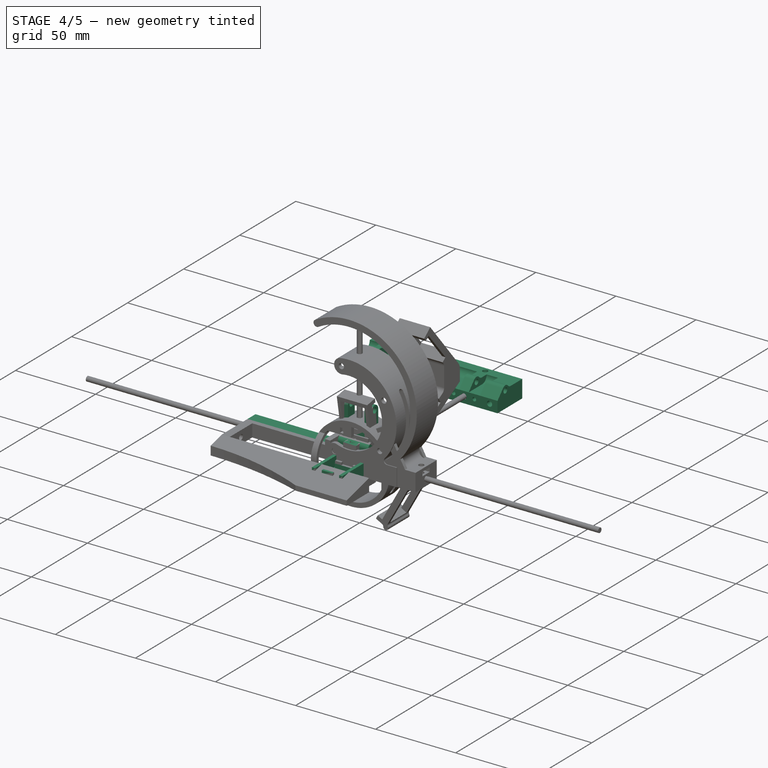
[diagram: stage 4 of 5 — iso view after this stage's code; geometry added in this stage tinted green]
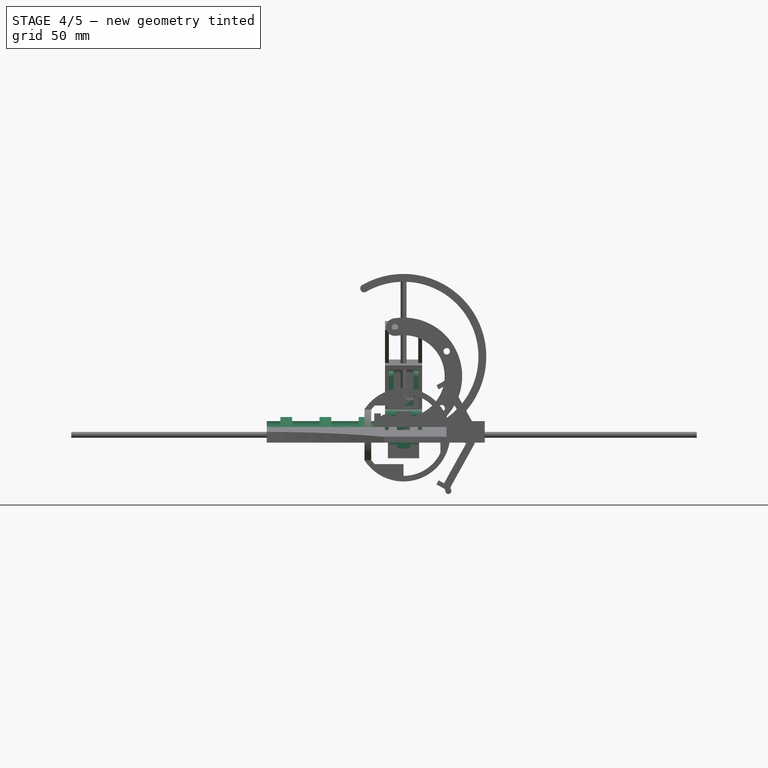
[diagram: stage 4 of 5 — front view after this stage's code; geometry added in this stage tinted green]
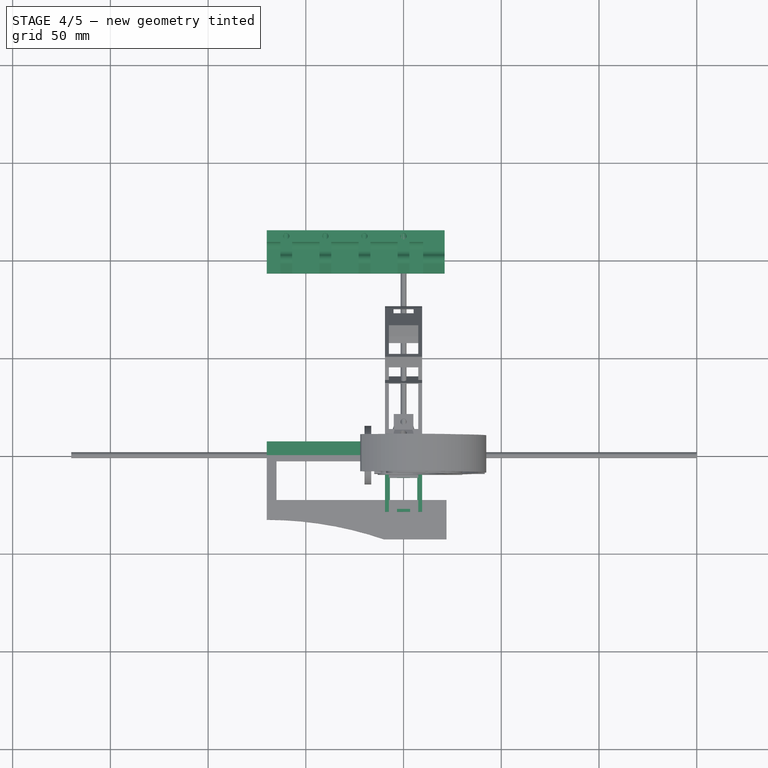
[diagram: stage 4 of 5 — top view after this stage's code; geometry added in this stage tinted green]
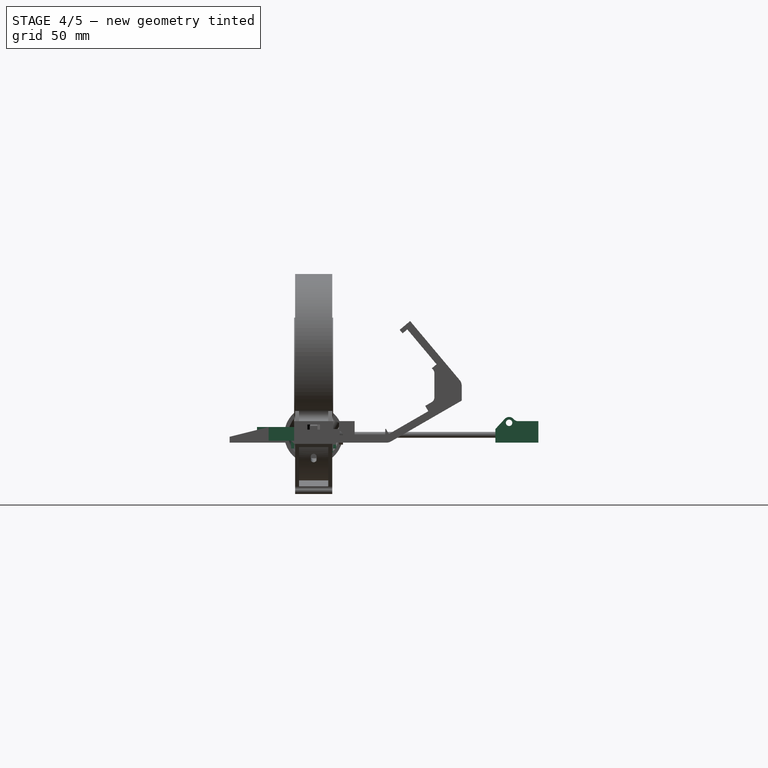
[diagram: stage 4 of 5 — right view after this stage's code; geometry added in this stage tinted green]
FEATURE [PartDesign::Body] Body051  label="FrameA"
  Group = -> [Sketch203,Pad148,Sketch204,Pocket053,Sketch205,Pocket054,Sketch211,Pocket067,Sketch233,Pocket068]
  Origin = -> Origin084
  Tip = -> Pocket068
FEATURE [Part::Feature] Part__Feature  label="COMPOUND"
  shape: bbox 14.57 x 7.961 x 3.306 mm, 1045 faces, 6 solids (baked)
FEATURE [App::Part] ____________  label="轴座"
  Group = -> [Part__Feature]
  Origin = -> Origin094
  Placement = pos=(4.8,0.575,-1.85) rot=(0,0,1;1.5708rad)
FEATURE [Part::Feature] Part__Feature010  label="SingleKeyPCB PCB"
  shape: bbox 14.8 x 23 x 1.6 mm, 26 faces (baked)
FEATURE [App::Part] SingleKeyPCB_1  label="SingleKeyPCB 1"
  Group = -> [____________,Part__Feature010]
  Origin = -> Origin095
  Placement = pos=(0,0,-6.6) rot=(0,0,1;0rad)
FEATURE [Sketcher::SketchObject] Sketch234
  FullyConstrained = true
  MapMode = 5
  Placement = pos=(0,0,0) rot=(0.57735,0.57735,0.57735;2.0944rad)
  Support = -> [YZ_Plane096]
  sketch-geometry (4):
    g0: LineSegment StartX=-3 StartY=5 StartZ=0 EndX=7 EndY=5 EndZ=0
    g1: LineSegment StartX=7 StartY=5 StartZ=0 EndX=7 EndY=-9 EndZ=0
    g2: LineSegment StartX=7 StartY=-9 StartZ=0 EndX=-3 EndY=-9 EndZ=0
    g3: LineSegment StartX=-3 StartY=-9 StartZ=0 EndX=-3 EndY=5 EndZ=0
  constraints (12):
    c: Coincident(g0,g1)
    c: Coincident(g1,g2)
    c: Coincident(g2,g3)
    c: Coincident(g3,g0)
    c: Horizontal(g2)
    c: Vertical(g1)
    c: Vertical(g3)
    c: Distance(g0) = 10
    c: Distance(g1) = 14
    c: Distance(g0,g-1) = 5
    c: Distance(g0,g-2) = 3
    c: Horizontal(g0)
FEATURE [PartDesign::Pad] Pad160
  Direction = (1,-2e-16,3e-16)
  Length = 16
  Length2 = 10
  Midplane = true
  Placement = pos=(0,0,0) rot=(0.57735,0.57735,0.57735;2.0944rad)
  Profile = -> Sketch234
  ReferenceAxis = -> Sketch234 [N_Axis]
  Type = 0
FEATURE [Sketcher::SketchObject] Sketch235
  FullyConstrained = true
  MapMode = 5
  Placement = pos=(0,0,0) rot=(1,0,0;1.5708rad)
  Support = -> [XZ_Plane096]
  sketch-geometry (4):
    g0: LineSegment StartX=-3 StartY=5 StartZ=0 EndX=3 EndY=5 EndZ=0
    g1: LineSegment StartX=3 StartY=5 StartZ=0 EndX=3 EndY=-9 EndZ=0
    g2: LineSegment StartX=3 StartY=-9 StartZ=0 EndX=-3 EndY=-9 EndZ=0
    g3: LineSegment StartX=-3 StartY=-9 StartZ=0 EndX=-3 EndY=5 EndZ=0
  constraints (11):
    c: Coincident(g0,g1)
    c: Coincident(g1,g2)
    c: Coincident(g2,g3)
    c: Coincident(g3,g0)
    c: Horizontal(g2)
    c: Vertical(g1)
    c: Vertical(g3)
    c: Distance(g0) = 6
    c: Distance(g1) = 14
    c: Distance(g0,g-1) = 5
    c: Symmetric(g0,g0,g-2)
FEATURE [PartDesign::Pad] Pad161
  BaseFeature = -> Pad160
  Direction = (0,-1,2e-16)
  Length = 10
  Length2 = 10
  Placement = pos=(0,0,0) rot=(0.57735,0.57735,0.57735;2.0944rad)
  Profile = -> Sketch235
  ReferenceAxis = -> Sketch235 [N_Axis]
  Reversed = true
  Type = 0
FEATURE [Sketcher::SketchObject] Sketch236
  FullyConstrained = true
  MapMode = 5
  Placement = pos=(0,0,0) rot=(1,0,0;1.5708rad)
  Support = -> [XZ_Plane096]
  sketch-geometry (8):
    g0: LineSegment StartX=-3 StartY=5 StartZ=0 EndX=-5 EndY=5 EndZ=0
    g1: LineSegment StartX=-5 StartY=5 StartZ=0 EndX=-5 EndY=1 EndZ=0
    g2: LineSegment StartX=-5 StartY=1 StartZ=0 EndX=-3 EndY=-1 EndZ=0
    g3: LineSegment StartX=-3 StartY=-1 StartZ=0 EndX=-3 EndY=5 EndZ=0
    g4: LineSegment StartX=3 StartY=5 StartZ=0 EndX=3 EndY=-1 EndZ=0
    g5: LineSegment StartX=3 StartY=-1 StartZ=0 EndX=5 EndY=1 EndZ=0
    g6: LineSegment StartX=5 StartY=1 StartZ=0 EndX=5 EndY=5 EndZ=0
    g7: LineSegment StartX=5 StartY=5 StartZ=0 EndX=3 EndY=5 EndZ=0
  constraints (23):
    c: Horizontal(g0)
    c: Coincident(g0,g1)
    c: Vertical(g1)
    c: Coincident(g1,g2)
    c: Coincident(g2,g3)
    c: Coincident(g3,g0)
    c: Vertical(g3)
    c: Vertical(g4)
    c: Coincident(g4,g5)
    c: Coincident(g5,g6)
    c: Vertical(g6)
    c: Coincident(g6,g7)
    c: Coincident(g7,g4)
    c: Horizontal(g7)
    c: Symmetric(g0,g4,g-2)
    c: Equal(g3,g4)
    c: Equal(g0,g7)
    c: Equal(g1,g6)
    c: Distance(g6,g0) = 10
    c: Distance(g0,g4) = 6
    c: Angle(g5,g4) = 0.785398
    c: Distance(g4) = 6
    c: Distance(g0,g-1) = 5
FEATURE [PartDesign::Pad] Pad162
  BaseFeature = -> Pad161
  Direction = (0,-1,2e-16)
  Length = 10
  Length2 = 10
  Placement = pos=(0,0,0) rot=(0.57735,0.57735,0.57735;2.0944rad)
  Profile = -> Sketch236
  ReferenceAxis = -> Sketch236 [N_Axis]
  Reversed = true
  Type = 0
FEATURE [Sketcher::SketchObject] Sketch237
  FullyConstrained = true
  MapMode = 5
  Placement = pos=(0,0,0) rot=(1,0,0;1.5708rad)
  Support = -> [XZ_Plane096]
  expr: Constraints[0] = 3 + <<KeyHolderParameter>>.axisTolerance * 2
  sketch-geometry (1):
    g0: Circle CenterX=0 CenterY=-2 CenterZ=0 NormalX=0 NormalY=0 NormalZ=1 AngleXU=0 Radius=1.65
  constraints (3):
    c: Diameter(g0) = 3.3
    c: PointOnObject(g0,g-2)
    c: Distance(g0,g-1) = 2  'z0'
FEATURE [PartDesign::Pocket] Pocket069
  BaseFeature = -> Pad162
  Direction = (0,1,2e-16)
  Length = 22
  Length2 = 5
  Midplane = true
  Placement = pos=(0,0,0) rot=(0.57735,0.57735,0.57735;2.0944rad)
  Profile = -> Sketch237
  ReferenceAxis = -> Sketch237 [N_Axis]
  Type = 0
FEATURE [Sketcher::SketchObject] Sketch238
  AttachmentOffset = pos=(0,0,2) rot=(0,0,1;0rad)
  FullyConstrained = true
  MapMode = 5
  Placement = pos=(0,0,2) rot=(0,0,1;0rad)
  Support = -> [XY_Plane096]
  sketch-geometry (10):
    g0: LineSegment StartX=0 StartY=2.76684 StartZ=0 EndX=2.8 EndY=4.38342 EndZ=0
    g1: LineSegment StartX=2.8 StartY=4.38342 StartZ=0 EndX=2.8 EndY=7.61658 EndZ=0
    g2: LineSegment StartX=2.8 StartY=7.61658 StartZ=0 EndX=0 EndY=9.23316 EndZ=0
    g3: LineSegment StartX=0 StartY=9.23316 StartZ=0 EndX=-2.8 EndY=7.61658 EndZ=0
    g4: LineSegment StartX=-2.8 StartY=7.61658 StartZ=0 EndX=-2.8 EndY=4.38342 EndZ=0
    g5: LineSegment StartX=-2.8 StartY=4.38342 StartZ=0 EndX=0 EndY=2.76684 EndZ=0
    g6: Circle CenterX=0 CenterY=6 CenterZ=0 NormalX=0 NormalY=0 NormalZ=1 AngleXU=0 Radius=3.23316
    g7: LineSegment StartX=-2.8 StartY=7.61658 StartZ=0 EndX=-2.8 EndY=11.6166 EndZ=0
    g8: LineSegment StartX=-2.8 StartY=11.6166 StartZ=0 EndX=2.8 EndY=11.6166 EndZ=0
    g9: LineSegment StartX=2.8 StartY=11.6166 StartZ=0 EndX=2.8 EndY=7.61658 EndZ=0
  constraints (26):
    c: Coincident(g0,g1)
    c: Coincident(g1,g2)
    c: Coincident(g2,g3)
    c: Coincident(g3,g4)
    c: Coincident(g4,g5)
    c: Coincident(g5,g0)
    c: Equal(g0, g1-g5) x5
    c: PointOnObject(g0,g6)
    c: PointOnObject(g1,g6)
    c: PointOnObject(g2,g6)
    c: PointOnObject(g3,g6)
    c: PointOnObject(g4,g6)
    c: PointOnObject(g5,g6)
    c: PointOnObject(g6,g-2)
    c: PointOnObject(g5,g-2)
    c: Distance(g0,g4) = 5.6
    c: Distance(g6,g-1) = 6
    c: Coincident(g3,g7)
    c: Vertical(g7)
    c: Coincident(g7,g8)
    c: Horizontal(g8)
    c: Coincident(g8,g9)
    c: Coincident(g9,g1)
    c: Vertical(g9)
    c: Distance(g7) = 4
    c: Distance(g6,g-1) = 6  'y0'
FEATURE [PartDesign::Pocket] Pocket070
  BaseFeature = -> Pocket069
  Direction = (0,0,-1)
  Length = 2.6
  Length2 = 5
  Midplane = true
  Placement = pos=(0,0,0) rot=(0.57735,0.57735,0.57735;2.0944rad)
  Profile = -> Sketch238
  ReferenceAxis = -> Sketch238 [N_Axis]
  Type = 0
FEATURE [Sketcher::SketchObject] Sketch239
  AttachmentOffset = pos=(0,0,-2) rot=(0,0,1;0rad)
  FullyConstrained = true
  MapMode = 5
  Placement = pos=(0,0,-2) rot=(0,0,1;0rad)
  Support = -> [XY_Plane096]
  expr: .AttachmentOffset.Base.z = -Sketch237.Constraints.z0
  expr: Constraints[1] = Sketch238.Constraints.y0
  expr: Constraints[2] = 3 + <<KeyHolderParameter>>.screwHoleTolerance * 2
  sketch-geometry (1):
    g0: Circle CenterX=0 CenterY=6 CenterZ=0 NormalX=0 NormalY=0 NormalZ=1 AngleXU=0 Radius=1.6
  constraints (3):
    c: PointOnObject(g0,g-2)
    c: Distance(g0,g-1) = 6
    c: Diameter(g0) = 3.2
FEATURE [PartDesign::Pocket] Pocket071
  BaseFeature = -> Pocket070
  Direction = (0,0,-1)
  Length = 9
  Length2 = 5
  Placement = pos=(0,0,0) rot=(0.57735,0.57735,0.57735;2.0944rad)
  Profile = -> Sketch239
  ReferenceAxis = -> Sketch239 [N_Axis]
  Reversed = true
  Type = 0
FEATURE [Sketcher::SketchObject] Sketch240
  FullyConstrained = true
  MapMode = 5
  Support = -> [XY_Plane096]
  expr: Constraints[3] = 3 + <<KeyHolderParameter>>.axisTolerance * 2
  sketch-geometry (2):
    g0: Circle CenterX=-5 CenterY=0 CenterZ=0 NormalX=0 NormalY=0 NormalZ=1 AngleXU=0 Radius=1.65
    g1: Circle CenterX=5 CenterY=0 CenterZ=0 NormalX=0 NormalY=0 NormalZ=1 AngleXU=0 Radius=1.65
  constraints (5):
    c: PointOnObject(g0,g-1)
    c: Symmetric(g0,g1,g-2)
    c: Equal(g0,g1)
    c: Diameter(g1) = 3.3
    c: Distance(g0,g1) = 10
FEATURE [PartDesign::Pocket] Pocket072
  BaseFeature = -> Pocket071
  Direction = (0,0,-1)
  Length = 20
  Length2 = 5
  Midplane = true
  Placement = pos=(0,0,0) rot=(0.57735,0.57735,0.57735;2.0944rad)
  Profile = -> Sketch240
  ReferenceAxis = -> Sketch240 [N_Axis]
  Type = 0
FEATURE [Sketcher::SketchObject] Sketch241
  FullyConstrained = true
  MapMode = 5
  Placement = pos=(0,0,0) rot=(1,0,0;1.5708rad)
  Support = -> [XZ_Plane096]
  expr: Constraints[1] = 3 + <<KeyHolderParameter>>.screwHoleTolerance
  sketch-geometry (2):
    g0: Circle CenterX=-5 CenterY=-5 CenterZ=0 NormalX=0 NormalY=0 NormalZ=1 AngleXU=0 Radius=1.55
    g1: Circle CenterX=5 CenterY=-5 CenterZ=0 NormalX=0 NormalY=0 NormalZ=1 AngleXU=0 Radius=1.55
  constraints (5):
    c: Symmetric(g1,g0,g-2)
    c: Diameter(g1) = 3.1
    c: Equal(g0,g1)
    c: Distance(g0,g1) = 10
    c: Distance(g1,g-1) = 5  'z0'
FEATURE [PartDesign::Pocket] Pocket073
  BaseFeature = -> Pocket072
  Direction = (0,1,2e-16)
  Length = 7
  Length2 = 5
  Placement = pos=(0,0,0) rot=(0.57735,0.57735,0.57735;2.0944rad)
  Profile = -> Sketch241
  ReferenceAxis = -> Sketch241 [N_Axis]
  Type = 0
FEATURE [PartDesign::Body] Body060  label="ArmStructureB"
  Group = -> [Sketch234,Pad160,Sketch235,Pad161,Sketch236,Pad162,Sketch237,Pocket069,Sketch238,Pocket070,Sketch239,Pocket071,Sketch240,Pocket072,Sketch241,Pocket073,Sketch242,Pocket074,Sketch243,Pocket075]
  Origin = -> Origin096
  Placement = pos=(0,68.7818,88.4334) rot=(0,0,1;0rad)
  Tip = -> Pocket075
  expr: .Placement.Base.y = Sketch203.Constraints.y4
  expr: .Placement.Base.z = Sketch216.Constraints.z2 - 2mm
FEATURE [Sketcher::SketchObject] Sketch244
  FullyConstrained = true
  MapMode = 5
  Support = -> [XY_Plane097]
  expr: Constraints[9] = <<KeyHolderParameter>>.SKHLength
  sketch-geometry (8):
    g0: LineSegment StartX=-9.5 StartY=11.5 StartZ=0 EndX=9.5 EndY=11.5 EndZ=0
    g1: LineSegment StartX=9.5 StartY=11.5 StartZ=0 EndX=9.5 EndY=-11.5 EndZ=0
    g2: LineSegment StartX=9.5 StartY=-11.5 StartZ=0 EndX=-9.5 EndY=-11.5 EndZ=0
    g3: LineSegment StartX=-9.5 StartY=-11.5 StartZ=0 EndX=-9.5 EndY=11.5 EndZ=0
    g4: LineSegment StartX=-7 StartY=7 StartZ=0 EndX=7 EndY=7 EndZ=0
    g5: LineSegment StartX=7 StartY=7 StartZ=0 EndX=7 EndY=-7 EndZ=0
    g6: LineSegment StartX=7 StartY=-7 StartZ=0 EndX=-7 EndY=-7 EndZ=0
    g7: LineSegment StartX=-7 StartY=-7 StartZ=0 EndX=-7 EndY=7 EndZ=0
  constraints (22):
    c: Coincident(g0,g1)
    c: Coincident(g1,g2)
    c: Coincident(g2,g3)
    c: Coincident(g3,g0)
    c: Horizontal(g0)
    c: Horizontal(g2)
    c: Vertical(g1)
    c: Vertical(g3)
    c: Symmetric(g0,g1,g-1)
    c: Distance(g1) = 23
    c: Coincident(g4,g5)
    c: Coincident(g5,g6)
    c: Coincident(g6,g7)
    c: Coincident(g7,g4)
    c: Horizontal(g4)
    c: Horizontal(g6)
    c: Vertical(g5)
    c: Vertical(g7)
    c: Symmetric(g4,g5,g-1)
    c: Distance(g5) = 14
    c: Equal(g4,g5)
    c: Distance(g0) = 19
FEATURE [PartDesign::Pad] Pad163
  Direction = (0,0,1)
  Length = 5
  Length2 = 10
  Profile = -> Sketch244
  ReferenceAxis = -> Sketch244 [N_Axis]
  Reversed = true
  Type = 0
FEATURE [Sketcher::SketchObject] Sketch245
  AttachmentOffset = pos=(0,0,-1.5) rot=(0,0,1;0rad)
  FullyConstrained = true
  MapMode = 5
  Placement = pos=(0,0,-1.5) rot=(0,0,1;0rad)
  Support = -> [XY_Plane097]
  sketch-geometry (4):
    g0: LineSegment StartX=-7.5 StartY=7.5 StartZ=0 EndX=7.5 EndY=7.5 EndZ=0
    g1: LineSegment StartX=7.5 StartY=7.5 StartZ=0 EndX=7.5 EndY=-7.5 EndZ=0
    g2: LineSegment StartX=7.5 StartY=-7.5 StartZ=0 EndX=-7.5 EndY=-7.5 EndZ=0
    g3: LineSegment StartX=-7.5 StartY=-7.5 StartZ=0 EndX=-7.5 EndY=7.5 EndZ=0
  constraints (11):
    c: Coincident(g0,g1)
    c: Coincident(g1,g2)
    c: Coincident(g2,g3)
    c: Coincident(g3,g0)
    c: Horizontal(g0)
    c: Horizontal(g2)
    c: Vertical(g1)
    c: Vertical(g3)
    c: Symmetric(g0,g1,g-1)
    c: Equal(g0,g1)
    c: Distance(g1) = 15
FEATURE [PartDesign::Pocket] Pocket076
  BaseFeature = -> Pad163
  Direction = (0,0,-1)
  Length = 7
  Length2 = 5
  Profile = -> Sketch245
  ReferenceAxis = -> Sketch245 [N_Axis]
  Type = 0
FEATURE [Sketcher::SketchObject] Sketch246
  FullyConstrained = true
  MapMode = 5
  Placement = pos=(0,0,0) rot=(1,0,0;1.5708rad)
  Support = -> [XZ_Plane097]
  expr: Constraints[11] = 2 + <<KeyHolderParameter>>.tolerance
  sketch-geometry (8):
    g0: LineSegment StartX=-9.5 StartY=-5 StartZ=0 EndX=-7.35 EndY=-5 EndZ=0
    g1: LineSegment StartX=-7.35 StartY=-5 StartZ=0 EndX=-7.35 EndY=-3 EndZ=0
    g2: LineSegment StartX=-7.35 StartY=-3 StartZ=0 EndX=-9.5 EndY=-3 EndZ=0
    g3: LineSegment StartX=-9.5 StartY=-3 StartZ=0 EndX=-9.5 EndY=-5 EndZ=0
    g4: LineSegment StartX=9.5 StartY=-5 StartZ=0 EndX=7.35 EndY=-5 EndZ=0
    g5: LineSegment StartX=7.35 StartY=-5 StartZ=0 EndX=7.35 EndY=-3 EndZ=0
    g6: LineSegment StartX=7.35 StartY=-3 StartZ=0 EndX=9.5 EndY=-3 EndZ=0
    g7: LineSegment StartX=9.5 StartY=-3 StartZ=0 EndX=9.5 EndY=-5 EndZ=0
  constraints (22):
    c: Coincident(g0,g1)
    c: Coincident(g1,g2)
    c: Coincident(g2,g3)
    c: Coincident(g3,g0)
    c: Horizontal(g0)
    c: Horizontal(g2)
    c: Vertical(g1)
    c: Vertical(g3)
    c: Distance(g0,g-1) = 5
    c: Distance(g0,g-2) = 9.5
    c: Distance(g2,g-1) = 3
    c: Distance(g0) = 2.15
    c: Coincident(g4,g5)
    c: Coincident(g5,g6)
    c: Coincident(g6,g7)
    c: Coincident(g7,g4)
    c: Horizontal(g4)
    c: Horizontal(g6)
    c: Vertical(g5)
    c: Vertical(g7)
    c: Symmetric(g1,g5,g-2)
    c: Symmetric(g4,g0,g-2)
FEATURE [PartDesign::Pocket] Pocket077
  BaseFeature = -> Pocket076
  Direction = (0,1,2e-16)
  Length = 23
  Length2 = 5
  Midplane = true
  Profile = -> Sketch246
  ReferenceAxis = -> Sketch246 [N_Axis]
  Type = 0
  expr: Length = <<KeyHolderParameter>>.SKHLength
FEATURE [Sketcher::SketchObject] Sketch247
  AttachmentOffset = pos=(0,0,-5) rot=(0,0,1;0rad)
  FullyConstrained = true
  MapMode = 5
  Placement = pos=(0,0,-5) rot=(0,0,1;0rad)
  Support = -> [XY_Plane097]
  expr: Constraints[40] = 15 - <<KeyHolderParameter>>.tolerance * 2
  expr: Constraints[41] = <<KeyHolderParameter>>.SKHLength
  sketch-geometry (20):
    g0: LineSegment StartX=-7.35 StartY=11.5 StartZ=0 EndX=-3.35 EndY=11.5 EndZ=0
    g1: LineSegment StartX=-3.35 StartY=11.5 StartZ=0 EndX=-3.35 EndY=10 EndZ=0
    g2: LineSegment StartX=-3.35 StartY=10 StartZ=0 EndX=-7.35 EndY=10 EndZ=0
    g3: LineSegment StartX=-7.35 StartY=10 StartZ=0 EndX=-7.35 EndY=11.5 EndZ=0
    g4: LineSegment StartX=3.35 StartY=11.5 StartZ=0 EndX=7.35 EndY=11.5 EndZ=0
    g5: LineSegment StartX=7.35 StartY=11.5 StartZ=0 EndX=7.35 EndY=10 EndZ=0
    g6: LineSegment StartX=7.35 StartY=10 StartZ=0 EndX=3.35 EndY=10 EndZ=0
    g7: LineSegment StartX=3.35 StartY=10 StartZ=0 EndX=3.35 EndY=11.5 EndZ=0
    g8: LineSegment StartX=-7.35 StartY=-10 StartZ=0 EndX=-3.35 EndY=-10 EndZ=0
    g9: LineSegment StartX=-3.35 StartY=-10 StartZ=0 EndX=-3.35 EndY=-11.5 EndZ=0
    g10: LineSegment StartX=-3.35 StartY=-11.5 StartZ=0 EndX=-7.35 EndY=-11.5 EndZ=0
    g11: LineSegment StartX=-7.35 StartY=-11.5 StartZ=0 EndX=-7.35 EndY=-10 EndZ=0
    g12: LineSegment StartX=3.35 StartY=-10 StartZ=0 EndX=7.35 EndY=-10 EndZ=0
    g13: LineSegment StartX=7.35 StartY=-10 StartZ=0 EndX=7.35 EndY=-11.5 EndZ=0
    g14: LineSegment StartX=7.35 StartY=-11.5 StartZ=0 EndX=3.35 EndY=-11.5 EndZ=0
    g15: LineSegment StartX=3.35 StartY=-11.5 StartZ=0 EndX=3.35 EndY=-10 EndZ=0
    g16: LineSegment StartX=-3.35 StartY=11.5 StartZ=0 EndX=3.35 EndY=11.5 EndZ=0
    g17: LineSegment StartX=3.35 StartY=10 StartZ=0 EndX=-3.35 EndY=10 EndZ=0
    g18: LineSegment StartX=-3.35 StartY=-10 StartZ=0 EndX=3.35 EndY=-10 EndZ=0
    g19: LineSegment StartX=3.35 StartY=-11.5 StartZ=0 EndX=-3.35 EndY=-11.5 EndZ=0
  constraints (53):
    c: Coincident(g0,g1)
    c: Coincident(g1,g2)
    c: Coincident(g2,g3)
    c: Coincident(g3,g0)
    c: Horizontal(g0)
    c: Horizontal(g2)
    c: Vertical(g1)
    c: Vertical(g3)
    c: Coincident(g4,g5)
    c: Coincident(g5,g6)
    c: Coincident(g6,g7)
    c: Coincident(g7,g4)
    c: Horizontal(g4)
    c: Horizontal(g6)
    c: Vertical(g5)
    c: Vertical(g7)
    c: Coincident(g8,g9)
    c: Coincident(g9,g10)
    c: Coincident(g10,g11)
    c: Coincident(g11,g8)
    c: Horizontal(g8)
    c: Horizontal(g10)
    c: Vertical(g9)
    c: Vertical(g11)
    c: Coincident(g12,g13)
    c: Coincident(g13,g14)
    c: Coincident(g14,g15)
    c: Coincident(g15,g12)
    c: Horizontal(g12)
    c: Horizontal(g14)
    c: Vertical(g13)
    c: Vertical(g15)
    c: Equal(g3,g7)
    c: Equal(g5,g13)
    c: Equal(g15,g9)
    c: Equal(g14,g10)
    c: Equal(g2,g4)
    c: Symmetric(g0,g4,g-2)
    c: Symmetric(g8,g12,g-2)
    c: Distance(g4) = 4
    c: Distance(g4,g0) = 14.7
    c: Distance(g4,g13) = 23
    c: Distance(g5) = 1.5
    c: Symmetric(g4,g13,g-1)
    c: Distance(g14) = 4
    c: Coincident(g16,g0)
    c: Coincident(g16,g4)
    c: Coincident(g17,g6)
    c: Coincident(g17,g1)
    c: Coincident(g18,g8)
    c: Coincident(g18,g12)
    c: Coincident(g19,g14)
    c: Coincident(g19,g9)
FEATURE [PartDesign::Pad] Pad164
  BaseFeature = -> Pocket077
  Direction = (0,0,1)
  Length = 2
  Length2 = 10
  Profile = -> Sketch247
  ReferenceAxis = -> Sketch247 [N_Axis]
  Reversed = true
  Type = 0
FEATURE [Sketcher::SketchObject] Sketch248
  AttachmentOffset = pos=(0,0,-5) rot=(0,0,1;0rad)
  FullyConstrained = true
  MapMode = 5
  Placement = pos=(0,0,-5) rot=(0,0,1;0rad)
  Support = -> [XY_Plane097]
  sketch-geometry (20):
    g0: LineSegment StartX=-7.4 StartY=-9.5 StartZ=0 EndX=-7.4 EndY=-7.5 EndZ=0
    g1: LineSegment StartX=-7.4 StartY=-7.5 StartZ=0 EndX=-4.4 EndY=-7.5 EndZ=0
    g2: LineSegment StartX=-4.4 StartY=-7.5 StartZ=0 EndX=-4.4 EndY=-8.5 EndZ=0
    g3: ArcOfCircle CenterX=-5.4 CenterY=-8.5 CenterZ=0 NormalX=0 NormalY=0 NormalZ=1 AngleXU=0 Radius=1 StartAngle=4.71239 EndAngle=6.28319
    g4: LineSegment StartX=-5.4 StartY=-9.5 StartZ=0 EndX=-7.4 EndY=-9.5 EndZ=0
    g5: LineSegment StartX=-5.4 StartY=9.5 StartZ=0 EndX=-7.4 EndY=9.5 EndZ=0
    g6: LineSegment StartX=-7.4 StartY=9.5 StartZ=0 EndX=-7.4 EndY=7.5 EndZ=0
    g7: LineSegment StartX=-7.4 StartY=7.5 StartZ=0 EndX=-4.4 EndY=7.5 EndZ=0
    g8: LineSegment StartX=-4.4 StartY=7.5 StartZ=0 EndX=-4.4 EndY=8.5 EndZ=0
    g9: LineSegment StartX=4.4 StartY=8.5 StartZ=0 EndX=4.4 EndY=7.5 EndZ=0
    g10: LineSegment StartX=4.4 StartY=7.5 StartZ=0 EndX=7.4 EndY=7.5 EndZ=0
    g11: LineSegment StartX=7.4 StartY=7.5 StartZ=0 EndX=7.4 EndY=9.5 EndZ=0
    g12: LineSegment StartX=7.4 StartY=9.5 StartZ=0 EndX=5.4 EndY=9.5 EndZ=0
    g13: LineSegment StartX=4.4 StartY=-8.5 StartZ=0 EndX=4.4 EndY=-7.5 EndZ=0
    g14: LineSegment StartX=4.4 StartY=-7.5 StartZ=0 EndX=7.4 EndY=-7.5 EndZ=0
    g15: LineSegment StartX=7.4 StartY=-7.5 StartZ=0 EndX=7.4 EndY=-9.5 EndZ=0
    g16: LineSegment StartX=7.4 StartY=-9.5 StartZ=0 EndX=5.4 EndY=-9.5 EndZ=0
    g17: ArcOfCircle CenterX=-5.4 CenterY=8.5 CenterZ=0 NormalX=0 NormalY=0 NormalZ=1 AngleXU=0 Radius=1 StartAngle=8e-16 EndAngle=1.5708
    g18: ArcOfCircle CenterX=5.4 CenterY=8.5 CenterZ=0 NormalX=0 NormalY=0 NormalZ=1 AngleXU=0 Radius=1 StartAngle=1.5708 EndAngle=3.14159
    g19: ArcOfCircle CenterX=5.4 CenterY=-8.5 CenterZ=0 NormalX=0 NormalY=0 NormalZ=1 AngleXU=0 Radius=1 StartAngle=3.14159 EndAngle=4.71239
  constraints (59):
    c: Vertical(g0)
    c: Coincident(g0,g1)
    c: Horizontal(g1)
    c: Coincident(g1,g2)
    c: Vertical(g2)
    c: Tangent(g2,g3) = 1.5708
    c: Tangent(g3,g4) = 1.5708
    c: Coincident(g4,g0)
    c: Distance(g0,g-2) = 7.4
    c: Distance(g0,g-1) = 7.5
    c: Horizontal(g4)
    c: Distance(g0) = 2
    c: Radius(g3) = 1
    c: Horizontal(g5)
    c: Coincident(g5,g6)
    c: Vertical(g6)
    c: Coincident(g6,g7)
    c: Horizontal(g7)
    c: Coincident(g7,g8)
    c: Vertical(g8)
    c: Vertical(g9)
    c: Coincident(g9,g10)
    c: Horizontal(g10)
    c: Coincident(g10,g11)
    c: Vertical(g11)
    c: Coincident(g11,g12)
    c: Horizontal(g12)
    c: Vertical(g13)
    c: Coincident(g13,g14)
    c: Horizontal(g14)
    c: Coincident(g14,g15)
    c: Vertical(g15)
    c: Coincident(g15,g16)
    c: Horizontal(g16)
    c: Equal(g5,g4)
    c: Equal(g5,g12)
    c: Equal(g12,g16)
    c: Equal(g14,g1)
    c: Equal(g14,g10)
    c: Equal(g10,g7)
    c: Symmetric(g6,g0,g-1)
    c: Symmetric(g10,g14,g-1)
    c: Symmetric(g14,g0,g-2)
    c: Coincident(g17,g5)
    c: Coincident(g17,g8)
    c: Coincident(g18,g9)
    c: Coincident(g18,g12)
    c: Coincident(g19,g13)
    c: Coincident(g19,g16)
    c: Equal(g17,g18)
    c: Equal(g18,g19)
    c: Equal(g19,g3)
    c: Distance(g1) = 3
    c: Equal(g0,g15)
    c: Equal(g15,g11)
    c: Equal(g11,g6)
    c: Equal(g2,g13)
    c: Equal(g8,g9)
    c: Equal(g9,g13)
FEATURE [PartDesign::Pocket] Pocket078
  BaseFeature = -> Pad164
  Direction = (0,0,-1)
  Length = 2
  Length2 = 5
  Profile = -> Sketch248
  ReferenceAxis = -> Sketch248 [N_Axis]
  Reversed = true
  Type = 0
FEATURE [Sketcher::SketchObject] Sketch249
  FullyConstrained = true
  MapMode = 5
  Placement = pos=(0,0,0) rot=(1,0,0;1.5708rad)
  Support = -> [XZ_Plane097]
  expr: Constraints[13] = 7.5 - <<KeyHolderParameter>>.tolerance
  sketch-geometry (6):
    g0: LineSegment StartX=-7.35 StartY=-5 StartZ=0 EndX=-6.85 EndY=-7 EndZ=0
    g1: LineSegment StartX=-6.85 StartY=-7 StartZ=0 EndX=-7.35 EndY=-7 EndZ=0
    g2: LineSegment StartX=-7.35 StartY=-7 StartZ=0 EndX=-7.35 EndY=-5 EndZ=0
    g3: LineSegment StartX=6.85 StartY=-7 StartZ=0 EndX=7.35 EndY=-7 EndZ=0
    g4: LineSegment StartX=7.35 StartY=-7 StartZ=0 EndX=7.35 EndY=-5 EndZ=0
    g5: LineSegment StartX=7.35 StartY=-5 StartZ=0 EndX=6.85 EndY=-7 EndZ=0
  constraints (15):
    c: Coincident(g0,g1)
    c: Horizontal(g1)
    c: Coincident(g1,g2)
    c: Coincident(g2,g0)
    c: Vertical(g2)
    c: Coincident(g3,g4)
    c: Coincident(g4,g5)
    c: Coincident(g5,g3)
    c: Symmetric(g0,g3,g-2)
    c: Symmetric(g0,g4,g-2)
    c: Symmetric(g1,g3,g-2)
    c: Distance(g1) = 0.5
    c: Distance(g2) = 2
    c: Distance(g1,g-2) = 7.35
    c: Distance(g1,g-1) = 7
FEATURE [PartDesign::Pocket] Pocket079
  BaseFeature = -> Pocket078
  Direction = (0,1,2e-16)
  Length = 23
  Length2 = 5
  Midplane = true
  Profile = -> Sketch249
  ReferenceAxis = -> Sketch249 [N_Axis]
  Type = 0
FEATURE [Part::Feature] Part__Feature011  label="COMPOUND001"
  shape: bbox 14.57 x 7.961 x 3.306 mm, 1045 faces, 6 solids (baked)
FEATURE [Part::Feature] Part__Feature012  label="SingleKeyPCB PCB001"
  shape: bbox 14.8 x 23 x 1.6 mm, 26 faces (baked)
FEATURE [App::Part] ____________001  label="轴座001"
  Group = -> [Part__Feature011]
  Origin = -> Origin098
  Placement = pos=(4.8,0.575,-1.85) rot=(0,0,1;1.5708rad)
FEATURE [App::Part] SingleKeyPCB_002  label="SingleKeyPCB 002"
  Group = -> [____________001,Part__Feature012]
  Origin = -> Origin099
  Placement = pos=(0,-17.5,3.6) rot=(1,0,0;3.14159rad)
  expr: .Placement.Base.y = -Sketch251.Constraints.y0
FEATURE [Sketcher::SketchObject] Sketch250
  FullyConstrained = true
  MapMode = 5
  Placement = pos=(0,0,0) rot=(0.57735,0.57735,0.57735;2.0944rad)
  Support = -> [YZ_Plane097]
FEATURE [PartDesign::Body] Body061  label="SingleKeyHolder007"
  Group = -> [Sketch244,Pad163,Sketch245,Pocket076,Sketch246,Pocket077,Sketch247,Pad164,Sketch248,Pocket078,Sketch249,Pocket079,Sketch250]
  Origin = -> Origin097
  Tip = -> Pocket079
FEATURE [App::Part] Part015  label="SingleKeyHolderPart004"
  Group = -> [Body061]
  Origin = -> Origin100
  Placement = pos=(0,27.4958,72.7201) rot=(1,0,0;3.14159rad)
FEATURE [Sketcher::SketchObject] Sketch251
  FullyConstrained = true
  MapMode = 5
  Placement = pos=(0,0,0) rot=(0.57735,0.57735,0.57735;2.0944rad)
  Support = -> [YZ_Plane101]
  expr: Constraints[18] = <<KeyHolderParameter>>.SKHLength
  expr: Constraints[6] = 3 + <<KeyHolderParameter>>.axisTolerance * 2
  sketch-geometry (12):
    g0: Circle CenterX=0 CenterY=0 CenterZ=0 NormalX=0 NormalY=0 NormalZ=1 AngleXU=0 Radius=1.65
    g1: Circle CenterX=0 CenterY=10 CenterZ=0 NormalX=0 NormalY=0 NormalZ=1 AngleXU=0 Radius=1.65
    g2: ArcOfCircle CenterX=0 CenterY=10 CenterZ=0 NormalX=0 NormalY=0 NormalZ=1 AngleXU=0 Radius=3 StartAngle=0 EndAngle=1.5708
    g3: LineSegment StartX=-6 StartY=0 StartZ=0 EndX=-29 EndY=0 EndZ=0
    g4: LineSegment StartX=-29 StartY=0 StartZ=0 EndX=-29 EndY=-3 EndZ=0
    g5: ArcOfCircle CenterX=-3 CenterY=10 CenterZ=0 NormalX=0 NormalY=0 NormalZ=1 AngleXU=0 Radius=3 StartAngle=1.5708 EndAngle=3.14159
    g6: LineSegment StartX=-6 StartY=10 StartZ=0 EndX=-6 EndY=0 EndZ=0
    g7: LineSegment StartX=-3 StartY=13 StartZ=0 EndX=0 EndY=13 EndZ=0
    g8: LineSegment StartX=-17.5 StartY=-3 StartZ=0 EndX=-17.5 EndY=0 EndZ=0
    g9: LineSegment StartX=-29 StartY=-3 StartZ=0 EndX=1.24264 EndY=-3 EndZ=0
    g10: LineSegment StartX=1.24264 StartY=-3 StartZ=0 EndX=3 EndY=-1.24264 EndZ=0
    g11: LineSegment StartX=3 StartY=-1.24264 StartZ=0 EndX=3 EndY=10 EndZ=0
  constraints (34):
    c: Coincident(g0,g-1)
    c: PointOnObject(g1,g-2)
    c: Coincident(g3,g4)
    c: Coincident(g2,g1)
    c: Distance(g1,g0) = 10  'y1'
    c: Equal(g1,g0)
    c: Diameter(g0) = 3.3
    c: Horizontal(g3)
    c: Vertical(g4)
    c: Distance(g4) = 3
    c: PointOnObject(g2,g-2)
    c: Vertical(g6)
    c: Tangent(g7,g2) = 1.5708
    c: Tangent(g7,g5) = 1.5708
    c: Tangent(g6,g5) = -1.5708
    c: Equal(g2,g5)
    c: Distance(g7) = 3
    c: Coincident(g3,g6)
    c: Distance(g3) = 23
    c: PointOnObject(g8,g3)
    c: Symmetric(g3,g3,g8)
    c: Distance(g8,g-2) = 17.5  'y0'
    c: Distance(g8,g-1) = 3  'z0'
    c: Horizontal(g9)
    c: Coincident(g9,g10)
    c: Coincident(g10,g11)
    c: Vertical(g11)
    c: Angle(g10,g9) = 2.35619
    c: Distance(g0,g10) = 3
    c: PointOnObject(g3,g-1)
    c: Coincident(g9,g4)
    c: Radius(g2) = 3
    c: Tangent(g11,g2) = -1.5708
    c: PointOnObject(g8,g9)
FEATURE [PartDesign::Pad] Pad165
  Direction = (1,-2e-16,3e-16)
  Length = 19
  Length2 = 10
  Midplane = true
  Placement = pos=(0,0,0) rot=(0.57735,0.57735,0.57735;2.0944rad)
  Profile = -> Sketch251
  ReferenceAxis = -> Sketch251 [N_Axis]
  Type = 0
FEATURE [Sketcher::SketchObject] Sketch252
  AttachmentOffset = pos=(0,0,-3) rot=(0,0,1;0rad)
  FullyConstrained = true
  MapMode = 5
  Placement = pos=(0,0,-3) rot=(0,0,1;0rad)
  Support = -> [XY_Plane101]
  expr: .AttachmentOffset.Base.z = -Sketch251.Constraints.z0
  expr: Constraints[10] = Sketch251.Constraints.y0
  sketch-geometry (5):
    g0: LineSegment StartX=-7 StartY=-10.5 StartZ=0 EndX=-7 EndY=-24.5 EndZ=0
    g1: LineSegment StartX=-7 StartY=-24.5 StartZ=0 EndX=7 EndY=-24.5 EndZ=0
    g2: LineSegment StartX=7 StartY=-24.5 StartZ=0 EndX=7 EndY=-10.5 EndZ=0
    g3: LineSegment StartX=7 StartY=-10.5 StartZ=0 EndX=-7 EndY=-10.5 EndZ=0
    g4: GeomPoint X=0 Y=-17.5 Z=0
  constraints (13):
    c: Coincident(g0,g1)
    c: Coincident(g1,g2)
    c: Coincident(g2,g3)
    c: Coincident(g3,g0)
    c: Horizontal(g1)
    c: Horizontal(g3)
    c: Vertical(g0)
    c: Vertical(g2)
    c: Symmetric(g1,g0,g4)
    c: PointOnObject(g4,g-2)
    c: Distance(g4,g-1) = 17.5
    c: Distance(g2) = 14
    c: Equal(g3,g2)
FEATURE [PartDesign::Pocket] Pocket080
  BaseFeature = -> Pad165
  Direction = (0,0,-1)
  Length = 5
  Length2 = 5
  Placement = pos=(0,0,0) rot=(0.57735,0.57735,0.57735;2.0944rad)
  Profile = -> Sketch252
  ReferenceAxis = -> Sketch252 [N_Axis]
  Reversed = true
  Type = 0
FEATURE [Sketcher::SketchObject] Sketch253
  AttachmentOffset = pos=(0,0,-2) rot=(0,0,1;0rad)
  FullyConstrained = true
  MapMode = 5
  Placement = pos=(0,0,-2) rot=(0,0,1;0rad)
  Support = -> [XY_Plane101]
  expr: .AttachmentOffset.Base.z = -Sketch251.Constraints.z0 + 1mm
  expr: Constraints[10] = Sketch251.Constraints.y0
  sketch-geometry (5):
    g0: LineSegment StartX=-7.5 StartY=-10 StartZ=0 EndX=-7.5 EndY=-25 EndZ=0
    g1: LineSegment StartX=-7.5 StartY=-25 StartZ=0 EndX=7.5 EndY=-25 EndZ=0
    g2: LineSegment StartX=7.5 StartY=-25 StartZ=0 EndX=7.5 EndY=-10 EndZ=0
    g3: LineSegment StartX=7.5 StartY=-10 StartZ=0 EndX=-7.5 EndY=-10 EndZ=0
    g4: GeomPoint X=0 Y=-17.5 Z=0
  constraints (13):
    c: Coincident(g0,g1)
    c: Coincident(g1,g2)
    c: Coincident(g2,g3)
    c: Coincident(g3,g0)
    c: Horizontal(g1)
    c: Horizontal(g3)
    c: Vertical(g0)
    c: Vertical(g2)
    c: Symmetric(g1,g0,g4)
    c: PointOnObject(g4,g-2)
    c: Distance(g4,g-1) = 17.5
    c: Distance(g2) = 15
    c: Equal(g3,g2)
FEATURE [PartDesign::Pocket] Pocket081
  BaseFeature = -> Pocket080
  Direction = (0,0,-1)
  Length = 5
  Length2 = 5
  Placement = pos=(0,0,0) rot=(0.57735,0.57735,0.57735;2.0944rad)
  Profile = -> Sketch253
  ReferenceAxis = -> Sketch253 [N_Axis]
  Reversed = true
  Type = 0
FEATURE [Sketcher::SketchObject] Sketch254
  FullyConstrained = true
  MapMode = 5
  Placement = pos=(0,0,0) rot=(0.57735,0.57735,0.57735;2.0944rad)
  Support = -> [YZ_Plane101]
  expr: Constraints[10] = Sketch251.Constraints.y1 + 6mm
  expr: Constraints[7] = 6 + <<KeyHolderParameter>>.tolerance * 2
  sketch-geometry (4):
    g0: LineSegment StartX=-3.15 StartY=13 StartZ=0 EndX=3.15 EndY=13 EndZ=0
    g1: LineSegment StartX=3.15 StartY=13 StartZ=0 EndX=3.15 EndY=-3 EndZ=0
    g2: LineSegment StartX=3.15 StartY=-3 StartZ=0 EndX=-3.15 EndY=-3 EndZ=0
    g3: LineSegment StartX=-3.15 StartY=-3 StartZ=0 EndX=-3.15 EndY=13 EndZ=0
  constraints (11):
    c: Coincident(g0,g1)
    c: Coincident(g1,g2)
    c: Coincident(g2,g3)
    c: Coincident(g3,g0)
    c: Horizontal(g0)
    c: Vertical(g1)
    c: Vertical(g3)
    c: Distance(g2) = 6.3
    c: Symmetric(g2,g1,g-2)
    c: Distance(g1,g-1) = 3
    c: Distance(g1) = 16
FEATURE [PartDesign::Pocket] Pocket082
  BaseFeature = -> Pocket081
  Direction = (-1,2e-16,-3e-16)
  Length = 10.3
  Length2 = 5
  Midplane = true
  Placement = pos=(0,0,0) rot=(0.57735,0.57735,0.57735;2.0944rad)
  Profile = -> Sketch254
  ReferenceAxis = -> Sketch254 [N_Axis]
  Type = 0
  expr: Length = 10 + 2 * <<KeyHolderParameter>>.tolerance
FEATURE [Sketcher::SketchObject] Sketch255
  FullyConstrained = true
  MapMode = 5
  Support = -> [XY_Plane101]
  expr: Constraints[23] = <<KeyHolderParameter>>.SKHLength
  expr: Constraints[24] = Sketch251.Constraints.y0
  sketch-geometry (10):
    g0: LineSegment StartX=-9.5 StartY=-6 StartZ=0 EndX=-9.5 EndY=-29 EndZ=0
    g1: LineSegment StartX=-9.5 StartY=-29 StartZ=0 EndX=9.5 EndY=-29 EndZ=0
    g2: LineSegment StartX=9.5 StartY=-29 StartZ=0 EndX=9.5 EndY=-6 EndZ=0
    g3: LineSegment StartX=9.5 StartY=-6 StartZ=0 EndX=-9.5 EndY=-6 EndZ=0
    g4: GeomPoint X=0 Y=-17.5 Z=0
    g5: LineSegment StartX=-7.5 StartY=-10 StartZ=0 EndX=-7.5 EndY=-25 EndZ=0
    g6: LineSegment StartX=-7.5 StartY=-25 StartZ=0 EndX=7.5 EndY=-25 EndZ=0
    g7: LineSegment StartX=7.5 StartY=-25 StartZ=0 EndX=7.5 EndY=-10 EndZ=0
    g8: LineSegment StartX=7.5 StartY=-10 StartZ=0 EndX=-7.5 EndY=-10 EndZ=0
    g9: GeomPoint X=0 Y=-17.5 Z=0
  constraints (25):
    c: Coincident(g0,g1)
    c: Coincident(g1,g2)
    c: Coincident(g2,g3)
    c: Coincident(g3,g0)
    c: Horizontal(g1)
    c: Horizontal(g3)
    c: Vertical(g0)
    c: Vertical(g2)
    c: Symmetric(g1,g0,g4)
    c: PointOnObject(g4,g-2)
    c: Coincident(g5,g6)
    c: Coincident(g6,g7)
    c: Coincident(g7,g8)
    c: Coincident(g8,g5)
    c: Horizontal(g6)
    c: Horizontal(g8)
    c: Vertical(g5)
    c: Vertical(g7)
    c: Symmetric(g6,g5,g9)
    c: Coincident(g9,g4)
    c: Equal(g8,g7)
    c: Distance(g7) = 15
    c: Distance(g3) = 19
    c: Distance(g2) = 23
    c: Distance(g-1,g4) = 17.5
FEATURE [PartDesign::Pad] Pad166
  BaseFeature = -> Pocket082
  Direction = (0,0,1)
  Length = 2
  Length2 = 10
  Placement = pos=(0,0,0) rot=(0.57735,0.57735,0.57735;2.0944rad)
  Profile = -> Sketch255
  ReferenceAxis = -> Sketch255 [N_Axis]
  Type = 0
FEATURE [Sketcher::SketchObject] Sketch256
  AttachmentOffset = pos=(0,0,2) rot=(0,0,1;0rad)
  FullyConstrained = true
  MapMode = 5
  Placement = pos=(0,0,2) rot=(0,0,1;0rad)
  Support = -> [XY_Plane101]
  expr: Constraints[56] = Sketch251.Constraints.y0
  sketch-geometry (21):
    g0: LineSegment StartX=-7.4 StartY=-27 StartZ=0 EndX=-7.4 EndY=-25 EndZ=0
    g1: LineSegment StartX=-7.4 StartY=-25 StartZ=0 EndX=-4.4 EndY=-25 EndZ=0
    g2: LineSegment StartX=-4.4 StartY=-25 StartZ=0 EndX=-4.4 EndY=-26 EndZ=0
    g3: ArcOfCircle CenterX=-5.4 CenterY=-26 CenterZ=0 NormalX=0 NormalY=0 NormalZ=1 AngleXU=0 Radius=1 StartAngle=4.71239 EndAngle=6.28319
    g4: LineSegment StartX=-5.4 StartY=-27 StartZ=0 EndX=-7.4 EndY=-27 EndZ=0
    g5: LineSegment StartX=-5.4 StartY=-8 StartZ=0 EndX=-7.4 EndY=-8 EndZ=0
    g6: LineSegment StartX=-7.4 StartY=-8 StartZ=0 EndX=-7.4 EndY=-10 EndZ=0
    g7: LineSegment StartX=-7.4 StartY=-10 StartZ=0 EndX=-4.4 EndY=-10 EndZ=0
    g8: LineSegment StartX=-4.4 StartY=-10 StartZ=0 EndX=-4.4 EndY=-9 EndZ=0
    g9: LineSegment StartX=4.4 StartY=-9 StartZ=0 EndX=4.4 EndY=-10 EndZ=0
    g10: LineSegment StartX=4.4 StartY=-10 StartZ=0 EndX=7.4 EndY=-10 EndZ=0
    g11: LineSegment StartX=7.4 StartY=-10 StartZ=0 EndX=7.4 EndY=-8 EndZ=0
    g12: LineSegment StartX=7.4 StartY=-8 StartZ=0 EndX=5.4 EndY=-8 EndZ=0
    g13: LineSegment StartX=4.4 StartY=-26 StartZ=0 EndX=4.4 EndY=-25 EndZ=0
    g14: LineSegment StartX=4.4 StartY=-25 StartZ=0 EndX=7.4 EndY=-25 EndZ=0
    g15: LineSegment StartX=7.4 StartY=-25 StartZ=0 EndX=7.4 EndY=-27 EndZ=0
    g16: LineSegment StartX=7.4 StartY=-27 StartZ=0 EndX=5.4 EndY=-27 EndZ=0
    g17: ArcOfCircle CenterX=-5.4 CenterY=-9 CenterZ=0 NormalX=0 NormalY=0 NormalZ=1 AngleXU=0 Radius=1 StartAngle=1e-16 EndAngle=1.5708
    g18: ArcOfCircle CenterX=5.4 CenterY=-9 CenterZ=0 NormalX=0 NormalY=0 NormalZ=1 AngleXU=0 Radius=1 StartAngle=1.5708 EndAngle=3.14159
    g19: ArcOfCircle CenterX=5.4 CenterY=-26 CenterZ=0 NormalX=0 NormalY=0 NormalZ=1 AngleXU=0 Radius=1 StartAngle=3.14159 EndAngle=4.71239
    g20: GeomPoint X=0 Y=-17.5 Z=0
  constraints (61):
    c: Vertical(g0)
    c: Coincident(g0,g1)
    c: Horizontal(g1)
    c: Coincident(g1,g2)
    c: Vertical(g2)
    c: Tangent(g2,g3) = 1.5708
    c: Tangent(g3,g4) = 1.5708
    c: Coincident(g4,g0)
    c: Distance(g0,g-2) = 7.4
    c: Horizontal(g4)
    c: Distance(g0) = 2
    c: Radius(g3) = 1
    c: Horizontal(g5)
    c: Coincident(g5,g6)
    c: Vertical(g6)
    c: Coincident(g6,g7)
    c: Horizontal(g7)
    c: Coincident(g7,g8)
    c: Vertical(g8)
    c: Vertical(g9)
    c: Coincident(g9,g10)
    c: Horizontal(g10)
    c: Coincident(g10,g11)
    c: Vertical(g11)
    c: Coincident(g11,g12)
    c: Horizontal(g12)
    c: Vertical(g13)
    c: Coincident(g13,g14)
    c: Horizontal(g14)
    c: Coincident(g14,g15)
    c: Vertical(g15)
    c: Coincident(g15,g16)
    c: Horizontal(g16)
    c: Equal(g5,g4)
    c: Equal(g5,g12)
    c: Equal(g12,g16)
    c: Equal(g14,g1)
    c: Equal(g14,g10)
    c: Equal(g10,g7)
    c: Coincident(g17,g5)
    c: Coincident(g17,g8)
    c: Coincident(g18,g9)
    c: Coincident(g18,g12)
    c: Coincident(g19,g13)
    c: Coincident(g19,g16)
    c: Equal(g17,g18)
    c: Equal(g18,g19)
    c: Equal(g19,g3)
    c: Distance(g1) = 3
    c: Equal(g0,g15)
    c: Equal(g15,g11)
    c: Equal(g11,g6)
    c: Equal(g2,g13)
    c: Equal(g8,g9)
    c: Equal(g9,g13)
    c: Symmetric(g1,g13,g-2)
    c: PointOnObject(g20,g-2) = 17.5
    c: Distance(g20,g-1) = 17.5
    c: Symmetric(g7,g9,g-2)
    c: Symmetric(g1,g9,g20)
    c: Distance(g10,g14) = 15
FEATURE [PartDesign::Pocket] Pocket083
  BaseFeature = -> Pad166
  Direction = (0,0,-1)
  Length = 2
  Length2 = 5
  Placement = pos=(0,0,0) rot=(0.57735,0.57735,0.57735;2.0944rad)
  Profile = -> Sketch256
  ReferenceAxis = -> Sketch256 [N_Axis]
  Type = 0
FEATURE [Sketcher::SketchObject] Sketch257
  AttachmentOffset = pos=(0,0,2) rot=(0,0,1;0rad)
  FullyConstrained = true
  MapMode = 5
  Placement = pos=(0,0,2) rot=(0,0,1;0rad)
  Support = -> [XY_Plane101]
  expr: Constraints[1] = Sketch251.Constraints.y0
  expr: Constraints[39] = 7 - <<KeyHolderParameter>>.tolerance * 2
  expr: Constraints[42] = <<KeyHolderParameter>>.SKHLength
  sketch-geometry (17):
    g0: GeomPoint X=0 Y=-17.5 Z=0
    g1: LineSegment StartX=-3.35 StartY=-6 StartZ=0 EndX=3.35 EndY=-6 EndZ=0
    g2: LineSegment StartX=3.35 StartY=-6 StartZ=0 EndX=3.35 EndY=-7.5 EndZ=0
    g3: LineSegment StartX=3.35 StartY=-7.5 StartZ=0 EndX=-3.35 EndY=-7.5 EndZ=0
    g4: LineSegment StartX=-3.35 StartY=-7.5 StartZ=0 EndX=-3.35 EndY=-6 EndZ=0
    g5: LineSegment StartX=-3.35 StartY=-27.5 StartZ=0 EndX=3.35 EndY=-27.5 EndZ=0
    g6: LineSegment StartX=3.35 StartY=-27.5 StartZ=0 EndX=3.35 EndY=-29 EndZ=0
    g7: LineSegment StartX=3.35 StartY=-29 StartZ=0 EndX=-3.35 EndY=-29 EndZ=0
    g8: LineSegment StartX=-3.35 StartY=-29 StartZ=0 EndX=-3.35 EndY=-27.5 EndZ=0
    g9: LineSegment StartX=-9.5 StartY=-6 StartZ=0 EndX=-7.5 EndY=-6 EndZ=0
    g10: LineSegment StartX=-7.5 StartY=-6 StartZ=0 EndX=-7.5 EndY=-29 EndZ=0
    g11: LineSegment StartX=-7.5 StartY=-29 StartZ=0 EndX=-9.5 EndY=-29 EndZ=0
    g12: LineSegment StartX=-9.5 StartY=-29 StartZ=0 EndX=-9.5 EndY=-6 EndZ=0
    g13: LineSegment StartX=7.5 StartY=-29 StartZ=0 EndX=9.5 EndY=-29 EndZ=0
    g14: LineSegment StartX=9.5 StartY=-29 StartZ=0 EndX=9.5 EndY=-6 EndZ=0
    g15: LineSegment StartX=9.5 StartY=-6 StartZ=0 EndX=7.5 EndY=-6 EndZ=0
    g16: LineSegment StartX=7.5 StartY=-6 StartZ=0 EndX=7.5 EndY=-29 EndZ=0
  constraints (46):
    c: PointOnObject(g0,g-2)
    c: Distance(g0,g-1) = 17.5
    c: Coincident(g1,g2)
    c: Coincident(g2,g3)
    c: Coincident(g3,g4)
    c: Coincident(g4,g1)
    c: Horizontal(g3)
    c: Vertical(g2)
    c: Vertical(g4)
    c: Coincident(g5,g6)
    c: Coincident(g6,g7)
    c: Coincident(g7,g8)
    c: Coincident(g8,g5)
    c: Horizontal(g5)
    c: Horizontal(g7)
    c: Vertical(g6)
    c: Vertical(g8)
    c: Coincident(g9,g10)
    c: Coincident(g10,g11)
    c: Coincident(g11,g12)
    c: Coincident(g12,g9)
    c: Horizontal(g9)
    c: Horizontal(g11)
    c: Vertical(g10)
    c: Vertical(g12)
    c: Coincident(g13,g14)
    c: Coincident(g14,g15)
    c: Coincident(g15,g16)
    c: Coincident(g16,g13)
    c: Horizontal(g13)
    c: Horizontal(g15)
    c: Vertical(g14)
    c: Symmetric(g5,g2,g0)
    c: Symmetric(g9,g13,g0)
    c: Equal(g3,g5)
    c: Equal(g8,g4)
    c: Equal(g9,g15)
    c: Equal(g10,g16)
    c: Distance(g2,g5) = 20
    c: Distance(g1) = 6.7
    c: Symmetric(g1,g1,g-2)
    c: Distance(g2) = 1.5
    c: Distance(g14) = 23
    c: Symmetric(g9,g15,g-2)
    c: Distance(g15) = 2
    c: Distance(g9,g14) = 19
FEATURE [PartDesign::Pad] Pad167
  BaseFeature = -> Pocket083
  Direction = (0,0,1)
  Length = 2
  Length2 = 10
  Placement = pos=(0,0,0) rot=(0.57735,0.57735,0.57735;2.0944rad)
  Profile = -> Sketch257
  ReferenceAxis = -> Sketch257 [N_Axis]
  Type = 0
FEATURE [PartDesign::Body] Body062  label="ArmSingleKeyHolder"
  Group = -> [Sketch251,Pad165,Sketch252,Pocket080,Sketch253,Pocket081,Sketch254,Pocket082,Sketch255,Pad166,Sketch256,Pocket083,Sketch257,Pad167]
  Origin = -> Origin101
  Tip = -> Pad167
FEATURE [App::Part] Part016  label="ArmSingleKeyHolderPart"
  Group = -> [SingleKeyPCB_002,Body062]
  Origin = -> Origin102
  Placement = pos=(0,27.1666,90.4334) rot=(1,0,0;0.212235rad)
  expr: .Placement.Base.y = Sketch216.Constraints.y3
  expr: .Placement.Base.z = Sketch216.Constraints.z3
  expr: .Placement.Rotation.Angle = Sketch216.Constraints.theta3
FEATURE [Sketcher::SketchObject] Sketch258
  FullyConstrained = true
  MapMode = 5
  Placement = pos=(0,0,0) rot=(0.57735,0.57735,0.57735;2.0944rad)
  Support = -> [YZ_Plane103]
  expr: Constraints[11] = 3 + <<KeyHolderParameter>>.axisTolerance * 2
  sketch-geometry (5):
    g0: ArcOfCircle CenterX=0 CenterY=0 CenterZ=0 NormalX=0 NormalY=0 NormalZ=1 AngleXU=0 Radius=3 StartAngle=3.14159 EndAngle=6.28319
    g1: LineSegment StartX=-3 StartY=4e-16 StartZ=0 EndX=-3 EndY=3 EndZ=0
    g2: LineSegment StartX=-3 StartY=3 StartZ=0 EndX=3 EndY=3 EndZ=0
    g3: LineSegment StartX=3 StartY=3 StartZ=0 EndX=3 EndY=-9e-16 EndZ=0
    g4: Circle CenterX=0 CenterY=0 CenterZ=0 NormalX=0 NormalY=0 NormalZ=1 AngleXU=0 Radius=1.65
  constraints (13):
    c: Coincident(g0,g-1)
    c: PointOnObject(g0,g-1)
    c: PointOnObject(g0,g-1)
    c: Tangent(g0,g1) = 1.5708
    c: Coincident(g1,g2)
    c: Horizontal(g2)
    c: Coincident(g2,g3)
    c: Coincident(g3,g0)
    c: Vertical(g3)
    c: Radius(g0) = 3
    c: Coincident(g4,g0)
    c: Diameter(g4) = 3.3
    c: Distance(g3) = 3
FEATURE [PartDesign::Pad] Pad168
  Direction = (1,-2e-16,3e-16)
  Length = 10
  Length2 = 10
  Midplane = true
  Placement = pos=(0,0,0) rot=(0.57735,0.57735,0.57735;2.0944rad)
  Profile = -> Sketch258
  ReferenceAxis = -> Sketch258 [N_Axis]
  Type = 0
FEATURE [Sketcher::SketchObject] Sketch259
  FullyConstrained = true
  MapMode = 5
  Support = -> [XY_Plane103]
  expr: Constraints[1] = 3 + <<KeyHolderParameter>>.axisTolerance * 2
  sketch-geometry (1):
    g0: Circle CenterX=0 CenterY=0 CenterZ=0 NormalX=0 NormalY=0 NormalZ=1 AngleXU=0 Radius=1.65
  constraints (2):
    c: Coincident(g0,g-1)
    c: Diameter(g0) = 3.3
FEATURE [App::Link] Link007  label="ArmHinge001"
  LinkPlacement = pos=(0,25.0601,100.209) rot=(1,0,0;-1.18503rad)
  LinkedObject = -> Body063
  Placement = pos=(0,25.0601,100.209) rot=(1,0,0;-1.18503rad)
  expr: .Placement.Base.y = <<ArmSkeleton>>.Constraints.y4
  expr: .Placement.Base.z = <<ArmSkeleton>>.Constraints.z4
  expr: .Placement.Rotation.Angle = -<<ArmSkeleton>>.Constraints.theta4
FEATURE [Sketcher::SketchObject] Sketch261
  AttachmentOffset = pos=(0,0,3) rot=(0,0,1;0rad)
  FullyConstrained = true
  MapMode = 5
  Placement = pos=(0,0,3) rot=(0,0,1;0rad)
  Support = -> [XY_Plane103]
  sketch-geometry (4):
    g0: LineSegment StartX=-5 StartY=3 StartZ=0 EndX=5 EndY=3 EndZ=0
    g1: LineSegment StartX=5 StartY=3 StartZ=0 EndX=5 EndY=-3 EndZ=0
    g2: LineSegment StartX=5 StartY=-3 StartZ=0 EndX=-5 EndY=-3 EndZ=0
    g3: LineSegment StartX=-5 StartY=-3 StartZ=0 EndX=-5 EndY=3 EndZ=0
  constraints (11):
    c: Coincident(g0,g1)
    c: Coincident(g1,g2)
    c: Coincident(g2,g3)
    c: Coincident(g3,g0)
    c: Horizontal(g0)
    c: Horizontal(g2)
    c: Vertical(g1)
    c: Vertical(g3)
    c: Symmetric(g0,g1,g-1)
    c: Distance(g0) = 10
    c: Distance(g1) = 6
FEATURE [Sketcher::SketchObject] Sketch262
  AttachmentOffset = pos=(0,0,10) rot=(0,0,1;0rad)
  FullyConstrained = true
  MapMode = 5
  Placement = pos=(0,0,10) rot=(0,0,1;0rad)
  Support = -> [XY_Plane103]
  sketch-geometry (4):
    g0: ArcOfCircle CenterX=1 CenterY=0 CenterZ=0 NormalX=0 NormalY=0 NormalZ=1 AngleXU=0 Radius=5 StartAngle=2.49809 EndAngle=3.78509
    g1: ArcOfCircle CenterX=-1 CenterY=0 CenterZ=0 NormalX=0 NormalY=0 NormalZ=1 AngleXU=0 Radius=5 StartAngle=5.63968 EndAngle=6.92669
    g2: LineSegment StartX=-3 StartY=3 StartZ=0 EndX=3 EndY=3 EndZ=0
    g3: LineSegment StartX=-3 StartY=-3 StartZ=0 EndX=3 EndY=-3 EndZ=0
  constraints (13):
    c: Coincident(g2,g0)
    c: Coincident(g2,g1)
    c: Coincident(g3,g0)
    c: Coincident(g3,g1)
    c: Horizontal(g2)
    c: Horizontal(g3)
    c: Equal(g0,g1)
    c: Distance(g1,g1) = 6
    c: Equal(g2,g3)
    c: Symmetric(g1,g0,g-2)
    c: Radius(g1) = 5
    c: Distance(g2) = 6
    c: PointOnObject(g0,g-1)
FEATURE [PartDesign::AdditiveLoft] AdditiveLoft
  BaseFeature = -> Pad168
  Closed = false
  Placement = pos=(0,0,0) rot=(0.57735,0.57735,0.57735;2.0944rad)
  Profile = -> Sketch261
  Ruled = false
  Sections = -> [Sketch262]
FEATURE [PartDesign::Pocket] Pocket084
  BaseFeature = -> AdditiveLoft
  Direction = (0,0,-1)
  Length = 10
  Length2 = 5
  Placement = pos=(0,0,0) rot=(0.57735,0.57735,0.57735;2.0944rad)
  Profile = -> Sketch259
  ReferenceAxis = -> Sketch259 [N_Axis]
  Reversed = true
  Type = 0
FEATURE [PartDesign::Body] Body063  label="ArmHinge"
  Group = -> [Sketch258,Pad168,Sketch259,Sketch261,Sketch262,AdditiveLoft,Pocket084]
  Origin = -> Origin103
  Placement = pos=(0,27.1666,90.4334) rot=(-1,0,0;1.5708rad)
  Tip = -> Pocket084
  expr: .Placement.Base.y = <<ArmSkeleton>>.Constraints.y3
  expr: .Placement.Base.z = <<ArmSkeleton>>.Constraints.z3
FEATURE [App::Link] Link008  label="KeyHolder001"
  LinkPlacement = pos=(-20,2.38419e-06,0) rot=(0,0,1;0rad)
  LinkedObject = -> Part
  Placement = pos=(-20,2.38419e-06,0) rot=(0,0,1;0rad)
FEATURE [App::Link] Link009  label="KeyHolder002"
  LinkPlacement = pos=(-40,4.76837e-06,0) rot=(0,0,1;0rad)
  LinkedObject = -> Link008
  Placement = pos=(-40,4.76837e-06,0) rot=(0,0,1;0rad)
FEATURE [App::Link] Link010  label="KeyHolder003"
  LinkPlacement = pos=(-60,7.15256e-06,0) rot=(0,0,1;0rad)
  LinkedObject = -> Link009
  Placement = pos=(-60,7.15256e-06,0) rot=(0,0,1;0rad)
FEATURE [Sketcher::SketchObject] Sketch263  label="BaseSkeleton_KeyHolder"
  FullyConstrained = false
  MapMode = 5
  Placement = pos=(0,0,0) rot=(0.57735,0.57735,0.57735;2.0944rad)
  Support = -> [YZ_Plane106]
  expr: .Constraints.y0 = <<BaseParameters>>.horizontalRailLength
  expr: .Constraints.z0 = 6 + <<BaseParameters>>.tolerance
  expr: Constraints[13] = Sketch232.Constraints.l1
  expr: Constraints[14] = Sketch232.Constraints.l2
  expr: Constraints[15] = Sketch232.Constraints.l3
  expr: Constraints[16] = Sketch232.Constraints.theta1
  expr: Constraints[17] = Sketch232.Constraints.theta0
  expr: Constraints[27] = Sketch232.Constraints.theta2
  expr: Constraints[36] = <<BaseParameters>>.support0Length
  expr: Constraints[41] = 6 + 2 * <<BaseParameters>>.axisTolerance + <<BaseParameters>>.verticalRailLength
  expr: Constraints[57] = 1.5 + <<BaseParameters>>.axisTolerance
  expr: Constraints[60] = Sketch292.Constraints.y0
  expr: Constraints[69] = Sketch297.Constraints.theta0
  expr: Constraints[70] = Sketch297.Constraints.l0
  expr: Constraints[74] = Sketch203.Constraints.theta0
  expr: Constraints[89] = Sketch284.Constraints.l0 + <<BaseParameters>>.support1Length * 1mm
  sketch-geometry (28):
    g0: LineSegment StartX=0 StartY=0 StartZ=0 EndX=100 EndY=0 EndZ=0
    g1: LineSegment StartX=100 StartY=0 StartZ=0 EndX=100 EndY=6.15 EndZ=0
    g2: LineSegment StartX=100 StartY=6.15 StartZ=0 EndX=102.335 EndY=92.4184 EndZ=0
    g3: LineSegment StartX=100 StartY=6.15 StartZ=0 EndX=100 EndY=26.15 EndZ=0
    g4: LineSegment StartX=26.1808 StartY=28.1109 StartZ=0 EndX=63.4391 EndY=47.1897 EndZ=0
    g5: LineSegment StartX=63.4391 StartY=47.1897 StartZ=0 EndX=81.9391 EndY=81.3515 EndZ=0
    g6: LineSegment StartX=26.1808 StartY=28.1109 StartZ=0 EndX=24.669 EndY=34.9227 EndZ=0
    g7: GeomPoint X=-500 Y=0 Z=0
    g8: LineSegment StartX=24.669 StartY=34.9227 StartZ=0 EndX=24.669 EndY=54.9227 EndZ=0
    g9: LineSegment StartX=24.669 StartY=34.9227 StartZ=0 EndX=14.7136 EndY=52.2688 EndZ=0
    g10: GeomPoint X=46.4566 Y=0 Z=0
    g11: LineSegment StartX=46.4566 StartY=0 StartZ=0 EndX=46.4566 EndY=6 EndZ=0
    g12: LineSegment StartX=26.1808 StartY=28.1109 StartZ=0 EndX=46.4566 EndY=6 EndZ=0
    g13: LineSegment StartX=46.4566 StartY=6 StartZ=0 EndX=46.4566 EndY=26 EndZ=0
    g14: GeomPoint X=100.045 Y=7.7994 Z=0
    g15: GeomPoint X=101.083 Y=46.1708 Z=0
    g16: LineSegment StartX=63.4391 StartY=47.1897 StartZ=0 EndX=150.407 EndY=44.8358 EndZ=0
    g17: LineSegment StartX=63.4391 StartY=47.1897 StartZ=0 EndX=63.4391 EndY=67.1897 EndZ=0
    g18: LineSegment StartX=102.335 StartY=92.4184 StartZ=0 EndX=102.876 EndY=112.411 EndZ=0
    g19: LineSegment StartX=102.335 StartY=92.4184 StartZ=0 EndX=133.365 EndY=146.164 EndZ=0
    g20: LineSegment StartX=102.335 StartY=92.4184 StartZ=0 EndX=97.1388 EndY=95.4184 EndZ=0
    g21: LineSegment StartX=81.9391 StartY=81.3515 StartZ=0 EndX=102.021 EndY=80.808 EndZ=0
    g22: LineSegment StartX=81.9391 StartY=81.3515 StartZ=0 EndX=88.2853 EndY=80.0836 EndZ=0
    g23: LineSegment StartX=88.2853 StartY=80.0836 StartZ=0 EndX=126.04 EndY=145.477 EndZ=0
    g24: LineSegment StartX=81.9391 StartY=81.3515 StartZ=0 EndX=89.0173 EndY=81.3515 EndZ=0
    g25: LineSegment StartX=81.9391 StartY=81.3515 StartZ=0 EndX=82.4803 EndY=101.344 EndZ=0
    g26: LineSegment StartX=81.9391 StartY=81.3515 StartZ=0 EndX=81.9391 EndY=101.352 EndZ=0
    g27: LineSegment StartX=88.2853 StartY=80.0836 StartZ=0 EndX=101.991 EndY=79.7126 EndZ=0
  constraints (96):
    c: Coincident(g0,g-1)
    c: PointOnObject(g0,g-1)
    c: Distance(g0) = 100  'y0'
    c: Coincident(g0,g1)
    c: Vertical(g1)
    c: Distance(g1) = 6.15  'z0'
    c: Coincident(g2,g1)
    c: Coincident(g3,g1)
    c: Vertical(g3)
    c: Distance(g3) = 20
    c: Angle(g2,g3) = 0.0270601  'theta0'
    c: Coincident(g4,g5)
    c: Coincident(g6,g4)
    c: Distance(g6) = 6.97753
    c: Distance(g4) = 41.8591
    c: Distance(g5) = 38.8495
    c: Angle(g5,g4) = 2.54038
    c: Angle(g4,g6) = 1.31593
    c: PointOnObject(g7,g-1)
    c: Distance(g7,g-2) = 500  'yNeg'
    c: DistanceX(g7,g6) = 524.669  'y1'
    c: Distance(g6,g-1) = 34.9227  'z1'
    c: Coincident(g8,g6)
    c: Vertical(g8)
    c: Equal(g8,g3)
    c: Coincident(g9,g6)
    c: Equal(g9,g8)
    c: Angle(g9,g6) = 2.83896
    c: Angle(g8,g9) = 0.521027  'theta1'
    c: PointOnObject(g10,g0)
    c: Distance(g10,g-2) = 46.4566  'y2'
    c: Coincident(g11,g10)
    c: Vertical(g11)
    c: Distance(g11) = 6
    c: Coincident(g12,g4)
    c: Coincident(g12,g11)
    c: Distance(g12) = 30
    c: Coincident(g13,g11)
    c: Vertical(g13)
    c: Equal(g8,g13)
    c: Angle(g13,g12) = 0.742132  'theta2'
    c: Distance(g2) = 86.3
    c: PointOnObject(g14,g2)
    c: Distance(g14,g-1) = 7.7994  'z3'
    c: Distance(g14,g-2) = 100.045  'y3'
    c: PointOnObject(g15,g2)
    c: Distance(g15,g-2) = 101.083  'y4'
    c: Distance(g15,g-1) = 46.1708  'z4'
    c: Coincident(g16,g4)
    c: PointOnObject(g15,g16)
    c: Perpendicular(g16,g2)
    c: Coincident(g17,g4)
    c: Vertical(g17)
    c: Equal(g17,g8)
    c: Distance(g15,g4) = 37.658  'support1y0'
    c: Distance(g2,g-2) = 102.335  'y5'
    c: Distance(g2,g-1) = 92.4184  'z5'
    c: Distance(g14,g1) = 1.65
    c: Parallel(g18,g2)
    c: Distance(g18) = 20
    c: Distance(g20) = 6
    c: Perpendicular(g19,g20)
    c: Coincident(g21,g5)
    c: PointOnObject(g21,g2)
    c: Perpendicular(g2,g21)
    c: Distance(g21) = 20.089  'support2y0'
    c: Distance(g21,g2) = 11.6147  'support2z0'
    c: Coincident(g5,g22)
    c: Coincident(g22,g23)
    c: Angle(g23,g22) = 1.89719
    c: Distance(g22) = 6.47158
    c: PointOnObject(g20,g23)
    c: Coincident(g24,g5)
    c: PointOnObject(g24,g23)
    c: Angle(g23,g24) = 2.0944
    c: Coincident(g25,g5)
    c: Equal(g18,g25)
    c: Parallel(g25,g18)
    c: Coincident(g26,g5)
    c: Vertical(g26)
    c: Perpendicular(g24,g26)
    c: Equal(g25,g26)
    c: Angle(g25,g26) = 0.0270601  'support2theta1'
    c: Perpendicular(g23,g20)
    c: Coincident(g27,g22)
    c: PointOnObject(g27,g2)
    c: Parallel(g27,g21)
    c: Distance(g27) = 13.7108  'support2y1'
    c: Distance(g27,g2) = 12.7105  'support2z1'
    c: Distance(g16) = 87
    c: Angle(g19,g18) = 0.496539  'support2theta0'
    c: Distance(g23) = 75.51
    c: Distance(g19) = 62.06
    c: Coincident(g19,g2)
    c: Coincident(g20,g2)
    c: Coincident(g18,g2)
FEATURE [Spreadsheet::Sheet] Spreadsheet002  label="BaseParameters"
  cells = A1=单边公差; B1(tolerance)==<<KeyHolderParameter>>.tolerance; D1=水平导轨长度; E1(horizontalRailLength)=100; G1=摇杆底座臂0长度; H1(joystickBaseArm0Length)=100; I1=摇杆底座臂z偏移; J1(joystickArmZoffset)=1.5; A2=钢销轴公差; B2(axisTolerance)==<<KeyHolderParameter>>.axisTolerance; D2=垂直导轨长度; E2(verticalRailLength)=80; G2=摇杆底座臂1长度; H2(joystickBaseArm1Length)=80; A3=螺丝孔公差; B3(screwHoleTolerance)==<<KeyHolderParameter>>.screwHoleTolerance; D3=支撑臂0长度; E3(support0Length)=30; G3=摇杆底座臂2长度; H3(joystickBaseArm2Length)=170; D4=支撑臂1长度; E4(support1Length)=80; D5=支撑臂2长度; E5(support2Length)=80
FEATURE [Sketcher::SketchObject] Sketch264
  FullyConstrained = true
  MapMode = 5
  Placement = pos=(0,0,0) rot=(0.57735,0.57735,0.57735;2.0944rad)
  Support = -> [YZ_Plane107]
  sketch-geometry (4):
    g0: LineSegment StartX=-3 StartY=-4 StartZ=0 EndX=7 EndY=-4 EndZ=0
    g1: LineSegment StartX=7 StartY=-4 StartZ=0 EndX=7 EndY=4 EndZ=0
    g2: LineSegment StartX=7 StartY=4 StartZ=0 EndX=-3 EndY=4 EndZ=0
    g3: LineSegment StartX=-3 StartY=4 StartZ=0 EndX=-3 EndY=-4 EndZ=0
  constraints (11):
    c: Horizontal(g0)
    c: Coincident(g0,g1)
    c: Vertical(g1)
    c: Coincident(g1,g2)
    c: Horizontal(g2)
    c: Coincident(g2,g3)
    c: Coincident(g3,g0)
    c: Distance(g3) = 8
    c: Distance(g0,g-2) = 3
    c: Distance(g0,g-2) = 7  'y0'
    c: Symmetric(g2,g0,g-1)
FEATURE [PartDesign::Pad] Pad169
  Direction = (1,-2e-16,3e-16)
  Length = 20
  Length2 = 10
  Midplane = true
  Placement = pos=(0,0,0) rot=(0.57735,0.57735,0.57735;2.0944rad)
  Profile = -> Sketch264
  ReferenceAxis = -> Sketch264 [N_Axis]
  Type = 0
FEATURE [Sketcher::SketchObject] Sketch265
  FullyConstrained = true
  MapMode = 5
  Placement = pos=(0,0,0) rot=(1,0,0;1.5708rad)
  Support = -> [XZ_Plane107]
  expr: Constraints[2] = 2 + <<BaseParameters>>.axisTolerance * 2
  expr: Constraints[6] = 3 + <<BaseParameters>>.axisTolerance * 2
  sketch-geometry (3):
    g0: Circle CenterX=-6.5 CenterY=0 CenterZ=0 NormalX=0 NormalY=0 NormalZ=1 AngleXU=0 Radius=1.15
    g1: Circle CenterX=6.5 CenterY=0 CenterZ=0 NormalX=0 NormalY=0 NormalZ=1 AngleXU=0 Radius=1.15
    g2: Circle CenterX=0 CenterY=0 CenterZ=0 NormalX=0 NormalY=0 NormalZ=1 AngleXU=0 Radius=1.65
  constraints (7):
    c: PointOnObject(g0,g-1)
    c: Equal(g0,g1)
    c: Diameter(g1) = 2.3
    c: Distance(g0,g1) = 13
    c: Symmetric(g0,g1,g-2)
    c: Coincident(g2,g-1)
    c: Diameter(g2) = 3.3
FEATURE [PartDesign::Pocket] Pocket085
  BaseFeature = -> Pad169
  Direction = (0,1,2e-16)
  Length = 7
  Length2 = 5
  Placement = pos=(0,0,0) rot=(0.57735,0.57735,0.57735;2.0944rad)
  Profile = -> Sketch265
  ReferenceAxis = -> Sketch265 [N_Axis]
  Type = 0
FEATURE [Sketcher::SketchObject] Sketch275
  FullyConstrained = true
  MapMode = 5
  Placement = pos=(0,0,0) rot=(0.57735,0.57735,0.57735;2.0944rad)
  Support = -> [YZ_Plane113]
  expr: Constraints[0] = 3 + <<BaseParameters>>.axisTolerance * 2
  expr: Constraints[2] = <<BaseParameters>>.support0Length
  sketch-geometry (6):
    g0: Circle CenterX=0 CenterY=0 CenterZ=0 NormalX=0 NormalY=0 NormalZ=1 AngleXU=0 Radius=1.65
    g1: Circle CenterX=0 CenterY=30 CenterZ=0 NormalX=0 NormalY=0 NormalZ=1 AngleXU=0 Radius=1.65
    g2: ArcOfCircle CenterX=0 CenterY=30 CenterZ=0 NormalX=0 NormalY=0 NormalZ=1 AngleXU=0 Radius=3 StartAngle=0 EndAngle=3.14159
    g3: ArcOfCircle CenterX=0 CenterY=0 CenterZ=0 NormalX=0 NormalY=0 NormalZ=1 AngleXU=0 Radius=3 StartAngle=3.14159 EndAngle=6.28319
    g4: LineSegment StartX=-3 StartY=30 StartZ=0 EndX=-3 EndY=-7.82e-14 EndZ=0
    g5: LineSegment StartX=3 StartY=1.28e-14 StartZ=0 EndX=3 EndY=30 EndZ=0
  constraints (13):
    c: Diameter(g0) = 3.3
    c: Equal(g1,g0)
    c: Distance(g1,g0) = 30
    c: PointOnObject(g1,g-2)
    c: Coincident(g0,g-1)
    c: Tangent(g2,g4) = -1.5708
    c: Tangent(g4,g3) = -1.5708
    c: Tangent(g3,g5) = -1.5708
    c: Tangent(g5,g2) = -1.5708
    c: Equal(g2,g3)
    c: Coincident(g2,g1)
    c: Coincident(g3,g0)
    c: Radius(g2) = 3
FEATURE [PartDesign::Pad] Pad174
  Direction = (1,-2e-16,3e-16)
  Length = 19
  Length2 = 10
  Midplane = true
  Placement = pos=(0,0,0) rot=(0.57735,0.57735,0.57735;2.0944rad)
  Profile = -> Sketch275
  ReferenceAxis = -> Sketch275 [N_Axis]
  Type = 0
FEATURE [Sketcher::SketchObject] Sketch276
  FullyConstrained = true
  MapMode = 5
  Placement = pos=(0,0,0) rot=(0.57735,0.57735,0.57735;2.0944rad)
  Support = -> [YZ_Plane113]
  expr: Constraints[12] = <<BaseParameters>>.support0Length / 2
  sketch-geometry (11):
    g0: LineSegment StartX=-3 StartY=18 StartZ=0 EndX=3 EndY=18 EndZ=0
    g1: LineSegment StartX=3 StartY=18 StartZ=0 EndX=3 EndY=12 EndZ=0
    g2: LineSegment StartX=3 StartY=12 StartZ=0 EndX=-3 EndY=12 EndZ=0
    g3: LineSegment StartX=-3 StartY=12 StartZ=0 EndX=-3 EndY=18 EndZ=0
    g4: GeomPoint X=0 Y=15 Z=0
    g5: LineSegment StartX=-3 StartY=12 StartZ=0 EndX=-3 EndY=-3 EndZ=0
    g6: LineSegment StartX=-3 StartY=-3 StartZ=0 EndX=3 EndY=-3 EndZ=0
    g7: LineSegment StartX=3 StartY=-3 StartZ=0 EndX=3 EndY=12 EndZ=0
    g8: LineSegment StartX=-3 StartY=18 StartZ=0 EndX=-3 EndY=33 EndZ=0
    g9: LineSegment StartX=-3 StartY=33 StartZ=0 EndX=3 EndY=33 EndZ=0
    g10: LineSegment StartX=3 StartY=33 StartZ=0 EndX=3 EndY=18 EndZ=0
  constraints (29):
    c: Coincident(g0,g1)
    c: Coincident(g1,g2)
    c: Coincident(g2,g3)
    c: Coincident(g3,g0)
    c: Horizontal(g0)
    c: Horizontal(g2)
    c: Vertical(g1)
    c: Vertical(g3)
    c: PointOnObject(g4,g-2)
    c: Symmetric(g0,g1,g4)
    c: Equal(g0,g1)
    c: Distance(g0) = 6
    c: Distance(g4,g-1) = 15
    c: Coincident(g2,g5)
    c: Vertical(g5)
    c: Coincident(g5,g6)
    c: Horizontal(g6)
    c: Coincident(g6,g7)
    c: Coincident(g7,g1)
    c: Vertical(g7)
    c: Vertical(g8)
    c: Coincident(g8,g9)
    c: Horizontal(g9)
    c: Coincident(g9,g10)
    c: Coincident(g10,g0)
    c: Vertical(g10)
    c: Equal(g10,g7)
    c: Distance(g10) = 15
    c: Coincident(g8,g0)
FEATURE [PartDesign::Pocket] Pocket091
  BaseFeature = -> Pad174
  Direction = (-1,2e-16,-3e-16)
  Length = 10.3
  Length2 = 5
  Midplane = true
  Placement = pos=(0,0,0) rot=(0.57735,0.57735,0.57735;2.0944rad)
  Profile = -> Sketch276
  ReferenceAxis = -> Sketch276 [N_Axis]
  Type = 0
  expr: Length = Pad173.Length + 2mm * <<BaseParameters>>.tolerance
FEATURE [Sketcher::SketchObject] Sketch285
  FullyConstrained = true
  MapMode = 5
  Placement = pos=(0,0,0) rot=(0.57735,0.57735,0.57735;2.0944rad)
  Support = -> [YZ_Plane117]
  sketch-geometry (4):
    g0: LineSegment StartX=-3 StartY=3 StartZ=0 EndX=5 EndY=3 EndZ=0
    g1: LineSegment StartX=5 StartY=3 StartZ=0 EndX=5 EndY=-3 EndZ=0
    g2: LineSegment StartX=5 StartY=-3 StartZ=0 EndX=-3 EndY=-3 EndZ=0
    g3: LineSegment StartX=-3 StartY=-3 StartZ=0 EndX=-3 EndY=3 EndZ=0
  constraints (11):
    c: Coincident(g0,g1)
    c: Coincident(g1,g2)
    c: Coincident(g2,g3)
    c: Coincident(g3,g0)
    c: Horizontal(g0)
    c: Horizontal(g2)
    c: Vertical(g1)
    c: Distance(g0,g-2) = 3
    c: Distance(g3) = 6
    c: Distance(g0,g-2) = 5
    c: Symmetric(g0,g2,g-1)
FEATURE [Sketcher::SketchObject] Sketch286
  AttachmentOffset = pos=(0,0,-7) rot=(0,0,1;0rad)
  FullyConstrained = true
  MapMode = 5
  Placement = pos=(0,7,1.6e-15) rot=(1,0,0;1.5708rad)
  Support = -> [XZ_Plane117]
  expr: .AttachmentOffset.Base.z = -Sketch284.Constraints.l0
  expr: Constraints[0] = 3 + <<BaseParameters>>.axisTolerance * 2
  sketch-geometry (1):
    g0: Circle CenterX=0 CenterY=0 CenterZ=0 NormalX=0 NormalY=0 NormalZ=1 AngleXU=0 Radius=1.65
  constraints (2):
    c: Diameter(g0) = 3.3
    c: Coincident(g0,g-1)
FEATURE [Sketcher::SketchObject] Sketch287
  FullyConstrained = true
  MapMode = 5
  Placement = pos=(0,0,0) rot=(1,0,0;1.5708rad)
  Support = -> [XZ_Plane118]
  sketch-geometry (1):
    g0: Circle CenterX=0 CenterY=0 CenterZ=0 NormalX=0 NormalY=0 NormalZ=1 AngleXU=0 Radius=1.5
  constraints (2):
    c: Coincident(g0,g-1)
    c: Diameter(g0) = 3
FEATURE [PartDesign::Pad] Pad178
  Direction = (0,-1,-2e-16)
  Length = 80
  Length2 = 10
  Placement = pos=(0,0,0) rot=(1,0,0;1.5708rad)
  Profile = -> Sketch287
  ReferenceAxis = -> Sketch287 [N_Axis]
  Reversed = true
  Type = 0
  expr: Length = <<BaseParameters>>.support1Length
FEATURE [PartDesign::Body] Body073  label="Support1Arm"
  Group = -> [Sketch287,Pad178]
  Origin = -> Origin118
  Placement = pos=(0,-44.637,0) rot=(0,0,1;0rad)
  Tip = -> Pad178
  expr: .Placement.Base.y = -<<BaseSkeleton_KeyHolder001>>.Constraints.l1 + 5mm
FEATURE [Sketcher::SketchObject] Sketch288
  FullyConstrained = true
  MapMode = 5
  Placement = pos=(0,0,0) rot=(1,0,0;1.5708rad)
  Support = -> [XZ_Plane121]
  sketch-geometry (1):
    g0: Circle CenterX=0 CenterY=0 CenterZ=0 NormalX=0 NormalY=0 NormalZ=1 AngleXU=0 Radius=1.5
  constraints (2):
    c: Coincident(g0,g-1)
    c: Diameter(g0) = 3
FEATURE [PartDesign::Pad] Pad179
  Direction = (0,-1,-2e-16)
  Length = 65
  Length2 = 10
  Placement = pos=(0,0,0) rot=(1,0,0;1.5708rad)
  Profile = -> Sketch288
  ReferenceAxis = -> Sketch288 [N_Axis]
  Reversed = true
  Type = 0
  expr: Length = <<ArmSkeleton>>.Constraints.l0
FEATURE [PartDesign::Body] Body075  label="ArmSteelRod0"
  Group = -> [Sketch288,Pad179]
  Origin = -> Origin121
  Placement = pos=(0,27.1666,90.4334) rot=(0,0,1;0rad)
  Tip = -> Pad179
  expr: .Placement.Base.y = <<ArmSkeleton>>.Constraints.y3
  expr: .Placement.Base.z = <<ArmSkeleton>>.Constraints.z3
FEATURE [Sketcher::SketchObject] Sketch289
  FullyConstrained = true
  MapMode = 5
  Support = -> [XY_Plane122]
  sketch-geometry (1):
    g0: Circle CenterX=0 CenterY=0 CenterZ=0 NormalX=0 NormalY=0 NormalZ=1 AngleXU=0 Radius=1.5
  constraints (2):
    c: Coincident(g0,g-1)
    c: Diameter(g0) = 3
FEATURE [PartDesign::Pad] Pad180
  Direction = (0,0,1)
  Length = 65
  Length2 = 10
  Profile = -> Sketch289
  ReferenceAxis = -> Sketch289 [N_Axis]
  Type = 0
  expr: Length = <<ArmSkeleton>>.Constraints.l1
FEATURE [Sketcher::SketchObject] Sketch292
  FullyConstrained = true
  MapMode = 5
  Placement = pos=(0,0,0) rot=(0.57735,0.57735,0.57735;2.0944rad)
  Support = -> [YZ_Plane123]
  expr: Constraints[11] = 3 + 2 * <<BaseParameters>>.axisTolerance
  sketch-geometry (11):
    g0: LineSegment StartX=-9 StartY=12 StartZ=0 EndX=-9 EndY=-3 EndZ=0
    g1: LineSegment StartX=3 StartY=-3 StartZ=0 EndX=3 EndY=3 EndZ=0
    g2: LineSegment StartX=1 StartY=2.82843 StartZ=0 EndX=1 EndY=12 EndZ=0
    g3: LineSegment StartX=1 StartY=12 StartZ=0 EndX=-9 EndY=12 EndZ=0
    g4: Circle CenterX=0 CenterY=0 CenterZ=0 NormalX=0 NormalY=0 NormalZ=1 AngleXU=0 Radius=1.65
    g5: LineSegment StartX=-6 StartY=12 StartZ=0 EndX=-6 EndY=-3 EndZ=0
    g6: LineSegment StartX=-9 StartY=8 StartZ=0 EndX=1 EndY=8 EndZ=0
    g7: LineSegment StartX=3 StartY=3 StartZ=0 EndX=1 EndY=2.82843 EndZ=0
    g8: LineSegment StartX=-9 StartY=-3 StartZ=0 EndX=0 EndY=-3 EndZ=0
    g9: LineSegment StartX=0 StartY=-3 StartZ=0 EndX=3 EndY=-3 EndZ=0
    g10: ArcOfCircle CenterX=0 CenterY=0 CenterZ=0 NormalX=0 NormalY=0 NormalZ=1 AngleXU=0 Radius=3 StartAngle=4.71239 EndAngle=7.51414
  constraints (31):
    c: Vertical(g0)
    c: Coincident(g0,g8)
    c: Coincident(g9,g1)
    c: Coincident(g1,g7)
    c: Vertical(g2)
    c: Coincident(g2,g3)
    c: Coincident(g0,g3)
    c: Horizontal(g3)
    c: Symmetric(g1,g9,g-1)
    c: Distance(g1) = 6
    c: Coincident(g4,g-1)
    c: Diameter(g4) = 3.3
    c: PointOnObject(g5,g3)
    c: Vertical(g5)
    c: Distance(g5,g-2) = 6  'y0'
    c: PointOnObject(g6,g0)
    c: PointOnObject(g6,g2)
    c: Distance(g6,g-1) = 8  'z0'
    c: Coincident(g8,g9)
    c: Horizontal(g8)
    c: Horizontal(g9)
    c: PointOnObject(g5,g8)
    c: Coincident(g10,g4)
    c: Coincident(g10,g7)
    c: Tangent(g10,g8) = -1.5708
    c: Tangent(g10,g1)
    c: Distance(g0,g-2) = 9
    c: Coincident(g2,g10)
    c: Distance(g5,g2) = 7
    c: Horizontal(g6)
    c: Distance(g0,g6) = 4
FEATURE [PartDesign::Pad] Pad182
  Direction = (1,-2e-16,3e-16)
  Length = 8
  Length2 = 10
  Midplane = true
  Placement = pos=(0,0,0) rot=(0.57735,0.57735,0.57735;2.0944rad)
  Profile = -> Sketch292
  ReferenceAxis = -> Sketch292 [N_Axis]
  Type = 0
FEATURE [Sketcher::SketchObject] Sketch293
  FullyConstrained = true
  MapMode = 5
  Support = -> [XY_Plane123]
  expr: Constraints[0] = Sketch292.Constraints.y0
  expr: Constraints[1] = 3 + 2 * <<BaseParameters>>.axisTolerance
  sketch-geometry (1):
    g0: Circle CenterX=0 CenterY=-6 CenterZ=0 NormalX=0 NormalY=0 NormalZ=1 AngleXU=0 Radius=1.65
  constraints (3):
    c: Distance(g0,g-1) = 6
    c: Diameter(g0) = 3.3
    c: PointOnObject(g0,g-2)
FEATURE [PartDesign::Pocket] Pocket100
  BaseFeature = -> Pad182
  Direction = (0,0,-1)
  Length = 26
  Length2 = 5
  Midplane = true
  Placement = pos=(0,0,0) rot=(0.57735,0.57735,0.57735;2.0944rad)
  Profile = -> Sketch293
  ReferenceAxis = -> Sketch293 [N_Axis]
  Type = 0
FEATURE [Sketcher::SketchObject] Sketch294
  AttachmentOffset = pos=(0,0,2) rot=(0,0,1;0rad)
  FullyConstrained = true
  MapMode = 5
  Placement = pos=(0,-2,-4e-16) rot=(1,0,0;1.5708rad)
  Support = -> [XZ_Plane123]
  expr: .AttachmentOffset.Base.z = Sketch292.Constraints.y0 - 4mm
  expr: Constraints[18] = Sketch292.Constraints.z0
  sketch-geometry (10):
    g0: LineSegment StartX=9.5e-14 StartY=11.2332 StartZ=0 EndX=-2.8 EndY=9.61658 EndZ=0
    g1: LineSegment StartX=-2.8 StartY=9.61658 StartZ=0 EndX=-2.8 EndY=6.38342 EndZ=0
    g2: LineSegment StartX=-2.8 StartY=6.38342 StartZ=0 EndX=7.057e-13 EndY=4.76684 EndZ=0
    g3: LineSegment StartX=7.057e-13 StartY=4.76684 StartZ=0 EndX=2.8 EndY=6.38342 EndZ=0
    g4: LineSegment StartX=2.8 StartY=6.38342 StartZ=0 EndX=2.8 EndY=9.61658 EndZ=0
    g5: LineSegment StartX=2.8 StartY=9.61658 StartZ=0 EndX=9.5e-14 EndY=11.2332 EndZ=0
    g6: Circle CenterX=0 CenterY=8 CenterZ=0 NormalX=0 NormalY=0 NormalZ=1 AngleXU=0 Radius=3.23316
    g7: LineSegment StartX=-2.8 StartY=9.61658 StartZ=0 EndX=-2.8 EndY=13.6166 EndZ=0
    g8: LineSegment StartX=-2.8 StartY=13.6166 StartZ=0 EndX=2.8 EndY=13.6166 EndZ=0
    g9: LineSegment StartX=2.8 StartY=13.6166 StartZ=0 EndX=2.8 EndY=9.61658 EndZ=0
  constraints (25):
    c: Coincident(g0,g1)
    c: Coincident(g1,g2)
    c: Coincident(g2,g3)
    c: Coincident(g3,g4)
    c: Coincident(g4,g5)
    c: Coincident(g5,g0)
    c: Equal(g0, g1-g5) x5
    c: PointOnObject(g0,g6)
    c: PointOnObject(g1,g6)
    c: PointOnObject(g2,g6)
    c: PointOnObject(g3,g6)
    c: PointOnObject(g4,g6)
    c: PointOnObject(g5,g6)
    c: Vertical(g4)
    c: Distance(g6,g-1) = 8
    c: PointOnObject(g6,g-2)
    c: Coincident(g0,g7)
    c: Vertical(g7)
    c: Coincident(g7,g8)
    c: Horizontal(g8)
    c: Coincident(g8,g9)
    c: Coincident(g9,g4)
    c: Vertical(g9)
    c: Distance(g8) = 5.6
    c: Distance(g9) = 4
FEATURE [PartDesign::Pocket] Pocket101
  BaseFeature = -> Pocket100
  Direction = (0,1,2e-16)
  Length = 2.6
  Length2 = 5
  Midplane = true
  Placement = pos=(0,0,0) rot=(0.57735,0.57735,0.57735;2.0944rad)
  Profile = -> Sketch294
  ReferenceAxis = -> Sketch294 [N_Axis]
  Type = 0
FEATURE [Sketcher::SketchObject] Sketch295
  AttachmentOffset = pos=(0,0,6) rot=(0,0,1;0rad)
  FullyConstrained = true
  MapMode = 5
  Placement = pos=(0,-6,-1.3e-15) rot=(1,0,0;1.5708rad)
  Support = -> [XZ_Plane123]
  expr: .AttachmentOffset.Base.z = Sketch292.Constraints.y0
  expr: Constraints[0] = Sketch292.Constraints.z0
  expr: Constraints[1] = 3 + <<BaseParameters>>.screwHoleTolerance * 2
  sketch-geometry (1):
    g0: Circle CenterX=0 CenterY=8 CenterZ=0 NormalX=0 NormalY=0 NormalZ=1 AngleXU=0 Radius=1.6
  constraints (3):
    c: Distance(g0,g-1) = 8
    c: Diameter(g0) = 3.2
    c: PointOnObject(g0,g-2)
FEATURE [PartDesign::Pocket] Pocket102
  BaseFeature = -> Pocket101
  Direction = (0,1,2e-16)
  Length = 10
  Length2 = 5
  Placement = pos=(0,0,0) rot=(0.57735,0.57735,0.57735;2.0944rad)
  Profile = -> Sketch295
  ReferenceAxis = -> Sketch295 [N_Axis]
  Type = 0
FEATURE [Sketcher::SketchObject] Sketch300
  FullyConstrained = true
  MapMode = 5
  Support = -> [XY_Plane125]
  sketch-geometry (1):
    g0: Circle CenterX=0 CenterY=0 CenterZ=0 NormalX=0 NormalY=0 NormalZ=1 AngleXU=0 Radius=1.5
  constraints (2):
    c: Coincident(g0,g-1)
    c: Diameter(g0) = 3
FEATURE [PartDesign::Pad] Pad184
  Direction = (0,0,1)
  Length = 80
  Length2 = 10
  Profile = -> Sketch300
  ReferenceAxis = -> Sketch300 [N_Axis]
  Type = 0
  expr: Length = <<BaseParameters>>.support2Length
FEATURE [Sketcher::SketchObject] Sketch309
  FullyConstrained = true
  MapMode = 5
  Placement = pos=(0,0,0) rot=(1,0,0;1.5708rad)
  Support = -> [XZ_Plane129]
  sketch-geometry (1):
    g0: Circle CenterX=0 CenterY=0 CenterZ=0 NormalX=0 NormalY=0 NormalZ=1 AngleXU=0 Radius=1.5
  constraints (2):
    c: Coincident(g0,g-1)
    c: Diameter(g0) = 3
FEATURE [PartDesign::Pad] Pad191
  Direction = (0,-1,-2e-16)
  Length = 100
  Length2 = 10
  Placement = pos=(0,0,0) rot=(1,0,0;1.5708rad)
  Profile = -> Sketch309
  ReferenceAxis = -> Sketch309 [N_Axis]
  Reversed = true
  Type = 0
  expr: Length = <<BaseParameters>>.horizontalRailLength
FEATURE [Sketcher::SketchObject] Sketch316
  FullyConstrained = true
  MapMode = 5
  Support = -> [XY_Plane131]
  expr: Constraints[1] = 3 + 2 * <<BaseParameters>>.screwHoleTolerance
  sketch-geometry (1):
    g0: Circle CenterX=0 CenterY=0 CenterZ=0 NormalX=0 NormalY=0 NormalZ=1 AngleXU=0 Radius=1.6
  constraints (2):
    c: Coincident(g0,g-1)
    c: Diameter(g0) = 3.2
FEATURE [PartDesign::Pocket] Pocket110
  BaseFeature = -> Pocket109
  Direction = (0,0,-1)
  Length = 9
  Length2 = 5
  Profile = -> Sketch316
  ReferenceAxis = -> Sketch316 [N_Axis]
  Reversed = true
  Type = 0
FEATURE [Sketcher::SketchObject] Sketch317
  FullyConstrained = true
  MapMode = 5
  Placement = pos=(0,0,0) rot=(1,0,0;1.5708rad)
  Support = -> [XZ_Plane131]
  expr: .Constraints.z0 = <<BaseParameters>>.joystickArmZoffset
  expr: Constraints[10] = 6 + 2 * <<BaseParameters>>.tolerance
  expr: Constraints[8] = Sketch313.Constraints.x0
  sketch-geometry (7):
    g0: LineSegment StartX=14 StartY=4.65 StartZ=0 EndX=6 EndY=4.65 EndZ=0
    g1: LineSegment StartX=6 StartY=4.65 StartZ=0 EndX=6 EndY=-1.65 EndZ=0
    g2: LineSegment StartX=6 StartY=-1.65 StartZ=0 EndX=14 EndY=-1.65 EndZ=0
    g3: LineSegment StartX=14 StartY=-1.65 StartZ=0 EndX=14 EndY=4.65 EndZ=0
    g4: GeomPoint X=10 Y=4.65 Z=0
    g5: GeomPoint X=6 Y=1.5 Z=0
    g6: LineSegment StartX=6 StartY=1.5 StartZ=0 EndX=0 EndY=1.5 EndZ=0
  constraints (17):
    c: Coincident(g0,g1)
    c: Coincident(g1,g2)
    c: Coincident(g2,g3)
    c: Coincident(g3,g0)
    c: Horizontal(g0)
    c: Horizontal(g2)
    c: Vertical(g1)
    c: Distance(g2,g-2) = 14
    c: Distance(g4,g-2) = 10
    c: Symmetric(g0,g0,g4)
    c: Distance(g3) = 6.3
    c: Vertical(g3)
    c: Symmetric(g0,g1,g5)
    c: Coincident(g6,g5)
    c: PointOnObject(g6,g-2)
    c: Distance(g6,g-1) = 1.5  'z0'
    c: Horizontal(g6)
FEATURE [PartDesign::Pocket] Pocket111
  BaseFeature = -> Pocket110
  Direction = (0,1,2e-16)
  Length = 10
  Length2 = 5
  Midplane = true
  Profile = -> Sketch317
  ReferenceAxis = -> Sketch317 [N_Axis]
  Type = 0
FEATURE [PartDesign::Body] Body080
  Group = -> [Sketch418,Pad233,Sketch420,Pad234,Sketch421,Pocket172,Sketch422,Pocket173,Sketch423,Pocket174]
  Origin = -> Origin126
  Tip = -> Pocket174
FEATURE [Part::MultiFuse] Fusion  label="BaseStructureA"
  Shapes = -> [Body065,Link013,Link014,Link015,Body080]
FEATURE [PartDesign::Body] Body081
  Group = -> [Sketch306,Pad189,Sketch307,Pocket106,Sketch347,Pad208,Sketch432,Pad237]
  Origin = -> Origin127
  Placement = pos=(16,100,0) rot=(0,0,1;0rad)
  Tip = -> Pad237
  expr: .Placement.Base.y = <<BaseParameters>>.horizontalRailLength
FEATURE [Part::MultiFuse] Fusion001  label="BaseStructureB"
  Shapes = -> [Body066,Link016,Link017,Link018,Body081]
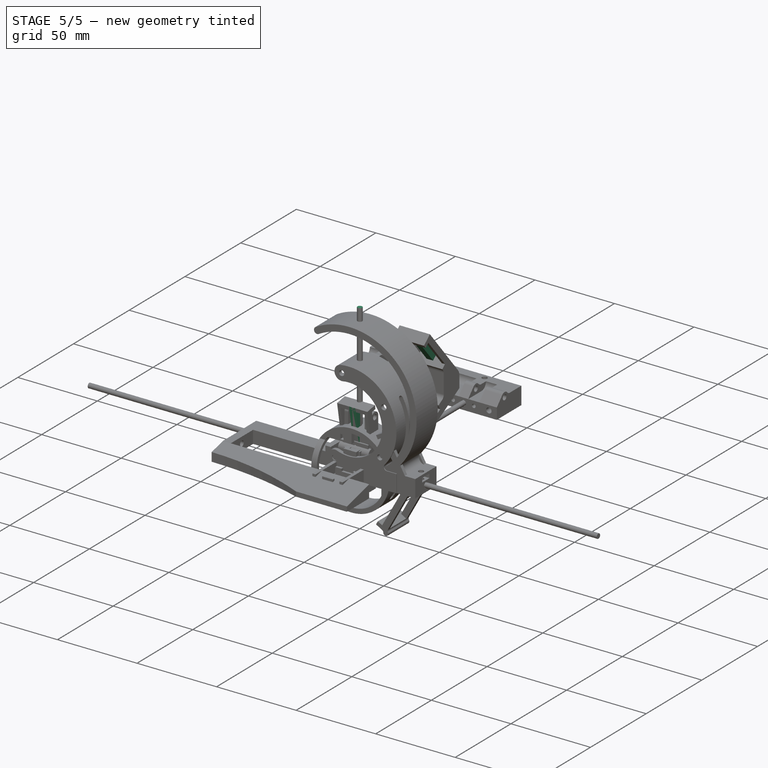
[diagram: stage 5 of 5 — iso view after this stage's code; geometry added in this stage tinted green]
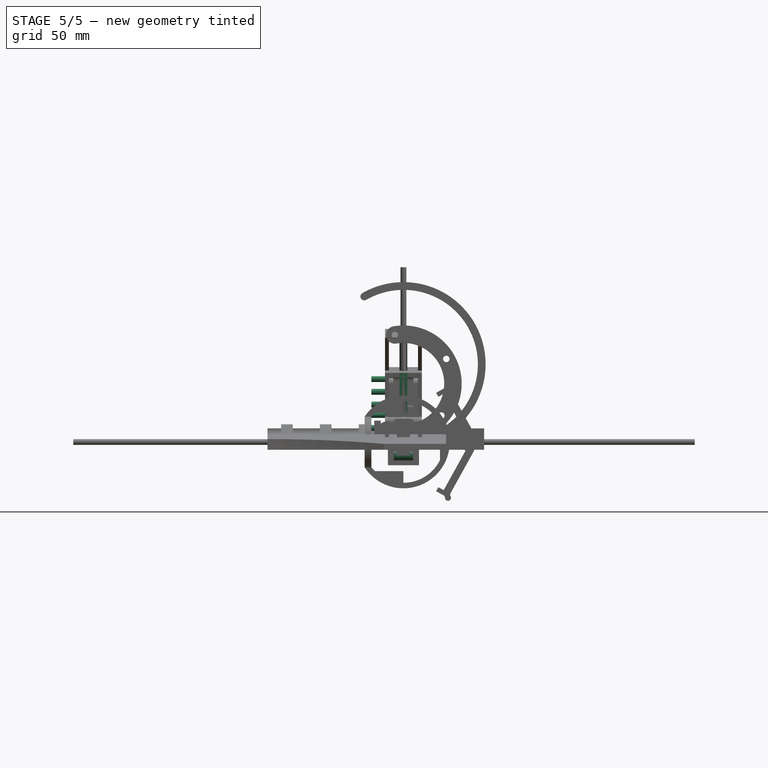
[diagram: stage 5 of 5 — front view after this stage's code; geometry added in this stage tinted green]
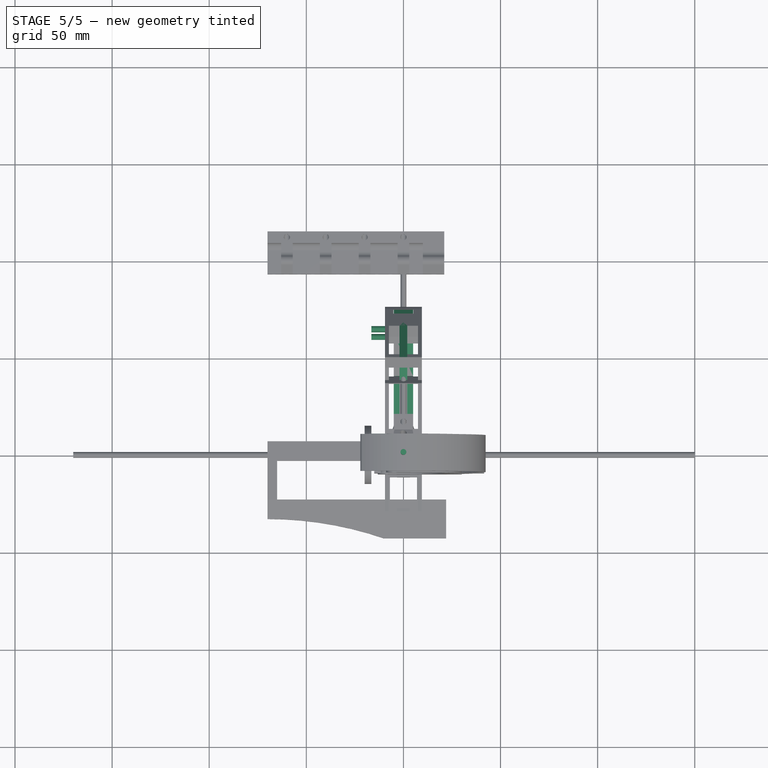
[diagram: stage 5 of 5 — top view after this stage's code; geometry added in this stage tinted green]
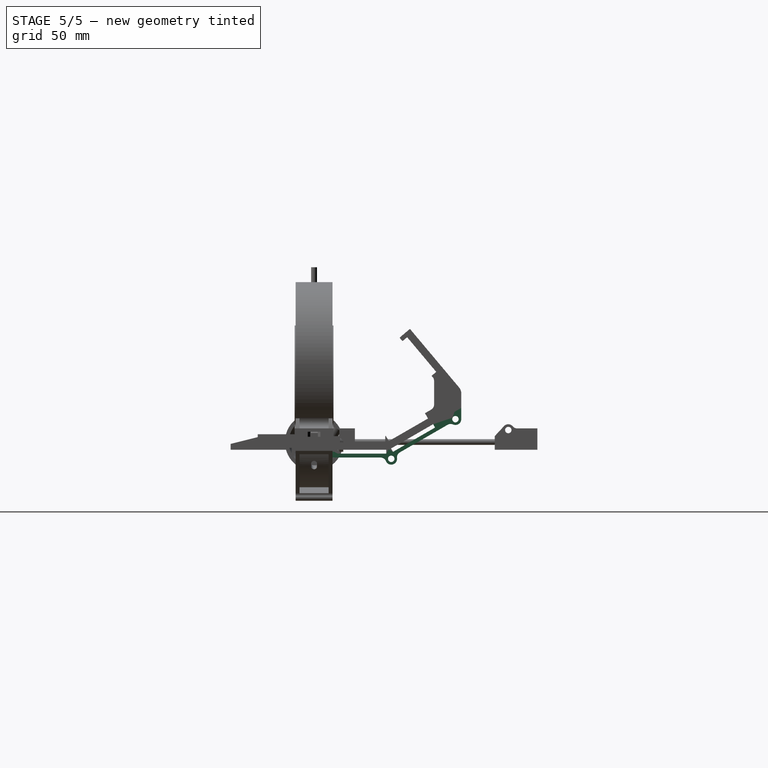
[diagram: stage 5 of 5 — right view after this stage's code; geometry added in this stage tinted green]
FEATURE [Spreadsheet::Sheet] Spreadsheet  label="KeyHolderParameter"
  cells = A1=主安装结构; B2=按键; C2=y; D2=z; E2=theta; G2=单边公差; H2(tolerance)=0.15; I2=不锈钢轴单边公差; J2(axisTolerance)=0.15; K2=螺丝孔单边公差; L2(screwHoleTolerance)=0.1; B3=1; C3(key1y)=2.5; D3(key1z)=23; E3(key1theta)=80; B4=2; C4(key2y)=25; D4(key2z)=3; E4(key2theta)=0; G4=SKH参数; I4=钢销长度; J4(steelRodLength)=90; B5=3; C5(key3y)=47; D5(key3z)=9; E5(key3theta)=150; G5=长; H5(SKHLength)=23; B6=4; C6(key4y)=53; D6(key4z)=43; E6(key4theta)=50; B7=5; C7(key5y)=10; D7(key5z)=80; E7(key5theta)=195; B9=指尖位置; C10=高度; D10=x; E10=y; F10=z; C11(fingerTipHeight)=17; D11(fingerTipX)=0; E11(fingerTipY)==key2y; F11(fingerTipZ)==key2z + fingerTipHeight; B13=钢销插入深度; C13(steelRodInsertDepth)=10; B15=按键5位置计算; C16=距离; D16=角度; E16=y; F16=z; C17(key5relativeDistance)=60; D17(key5relativeAngle)=0; E17(key5NewY)==fingerTipY + key5relativeDistance * sin(key5relativeAngle); F17(key5newZ)==fingerTipZ + key5relativeDistance * cos(key5relativeAngle); B19=侧板宽度; C19(sidePanelWidth)=7; B20=侧板末端延伸长度; C20(sidePanelEndLength)=14
FEATURE [Sketcher::SketchObject] Sketch
  FullyConstrained = true
  MapMode = 5
  Placement = pos=(0,0,0) rot=(0.57735,0.57735,0.57735;2.0944rad)
  Support = -> [YZ_Plane001]
  expr: Constraints[10] = <<KeyHolderParameter>>.key3y
  expr: Constraints[11] = <<KeyHolderParameter>>.key3z
  expr: Constraints[13] = <<KeyHolderParameter>>.key4y
  expr: Constraints[14] = <<KeyHolderParameter>>.key4z
  expr: Constraints[15] = <<KeyHolderParameter>>.key3theta
  expr: Constraints[16] = <<KeyHolderParameter>>.sidePanelEndLength
  expr: Constraints[17] = <<KeyHolderParameter>>.sidePanelEndLength
  expr: Constraints[31] = <<KeyHolderParameter>>.sidePanelWidth
  expr: Constraints[32] = <<KeyHolderParameter>>.sidePanelWidth
  expr: Constraints[33] = <<KeyHolderParameter>>.sidePanelWidth
  expr: Constraints[34] = <<KeyHolderParameter>>.sidePanelWidth
  expr: Constraints[35] = <<KeyHolderParameter>>.sidePanelWidth
  expr: Constraints[45] = <<KeyHolderParameter>>.key1theta
  expr: Constraints[57] = <<KeyHolderParameter>>.SKHLength / 2 + <<KeyHolderParameter>>.tolerance
  expr: Constraints[58] = <<KeyHolderParameter>>.SKHLength / 2 + <<KeyHolderParameter>>.tolerance
  expr: Constraints[65] = <<KeyHolderParameter>>.SKHLength / 2 + <<KeyHolderParameter>>.tolerance
  expr: Constraints[66] = <<KeyHolderParameter>>.SKHLength / 2 + <<KeyHolderParameter>>.tolerance
  expr: Constraints[6] = <<KeyHolderParameter>>.key1y
  expr: Constraints[7] = <<KeyHolderParameter>>.key1z
  expr: Constraints[8] = <<KeyHolderParameter>>.key2y
  expr: Constraints[91] = <<KeyHolderParameter>>.key4theta
  expr: Constraints[9] = <<KeyHolderParameter>>.key2z
  sketch-geometry (36):
    g0: LineSegment StartX=0.0689255 StartY=36.7873 StartZ=0 EndX=5.58942 EndY=5.47906 EndZ=0
    g1: LineSegment StartX=8.54384 StartY=3 StartZ=0 EndX=36.6077 EndY=3 EndZ=0
    g2: LineSegment StartX=36.6077 StartY=3 StartZ=0 EndX=60.2818 EndY=16.6682 EndZ=0
    g3: GeomPoint X=2.5 Y=23 Z=0
    g4: GeomPoint X=25 Y=3 Z=0
    g5: GeomPoint X=47 Y=9 Z=0
    g6: LineSegment StartX=61.7818 StartY=19.2663 StartZ=0 EndX=61.7818 EndY=31.4424 EndZ=0
    g7: LineSegment StartX=61.0799 StartY=33.3707 StartZ=0 EndX=44.001 EndY=53.7246 EndZ=0
    g8: GeomPoint X=53 Y=43 Z=0
    g9: LineSegment StartX=0.0689255 StartY=36.7873 StartZ=0 EndX=-6.82473 EndY=35.5718 EndZ=0
    g10: LineSegment StartX=-6.82473 StartY=35.5718 StartZ=0 EndX=-0.575698 EndY=0.131759 EndZ=0
    g11: LineSegment StartX=4.34834 StartY=-4 StartZ=0 EndX=38.4833 EndY=-4 EndZ=0
    g12: LineSegment StartX=38.4833 StartY=-4 StartZ=0 EndX=66.2818 EndY=12.0494 EndZ=0
    g13: LineSegment StartX=68.7818 StartY=16.3796 StartZ=0 EndX=68.7818 EndY=33.2622 EndZ=0
    g14: LineSegment StartX=67.612 StartY=36.4761 StartZ=0 EndX=49.3633 EndY=58.2241 EndZ=0
    g15: LineSegment StartX=49.3633 StartY=58.2241 StartZ=0 EndX=44.001 EndY=53.7246 EndZ=0
    g16: ArcOfCircle CenterX=4.34834 CenterY=1 CenterZ=0 NormalX=0 NormalY=0 NormalZ=1 AngleXU=0 Radius=5 StartAngle=3.31613 EndAngle=4.71239
    g17: GeomPoint X=0.152842 Y=-4 Z=0
    g18: ArcOfCircle CenterX=8.54384 CenterY=6 CenterZ=0 NormalX=0 NormalY=0 NormalZ=1 AngleXU=0 Radius=3 StartAngle=3.31613 EndAngle=4.71239
    g19: GeomPoint X=6.02654 Y=3 Z=0
    g20: GeomPoint X=-2.37065 Y=10.3115 Z=0
    g21: GeomPoint X=4.523 Y=11.527 Z=0
    g22: GeomPoint X=13.35 Y=3 Z=0
    g23: GeomPoint X=13.35 Y=-4 Z=0
    g24: LineSegment StartX=-2.37065 StartY=10.3115 StartZ=0 EndX=4.523 EndY=11.527 EndZ=0
    g25: LineSegment StartX=13.35 StartY=3 StartZ=0 EndX=13.35 EndY=-4 EndZ=0
    g26: GeomPoint X=60.4885 Y=34.0756 Z=0
    g27: GeomPoint X=57.0892 Y=14.825 Z=0
    g28: ArcOfCircle CenterX=58.7818 CenterY=19.2663 CenterZ=0 NormalX=0 NormalY=0 NormalZ=1 AngleXU=0 Radius=3 StartAngle=5.23599 EndAngle=6.28319
    g29: GeomPoint X=61.7818 Y=17.5343 Z=0
    g30: ArcOfCircle CenterX=58.7818 CenterY=31.4424 CenterZ=0 NormalX=0 NormalY=0 NormalZ=1 AngleXU=0 Radius=3 StartAngle=5e-16 EndAngle=0.698132
    g31: GeomPoint X=61.7818 Y=32.5343 Z=0
    g32: ArcOfCircle CenterX=63.7818 CenterY=33.2622 CenterZ=0 NormalX=0 NormalY=0 NormalZ=1 AngleXU=0 Radius=5 StartAngle=3e-16 EndAngle=0.698132
    g33: GeomPoint X=68.7818 Y=35.0821 Z=0
    g34: ArcOfCircle CenterX=63.7818 CenterY=16.3796 CenterZ=0 NormalX=0 NormalY=0 NormalZ=1 AngleXU=0 Radius=5 StartAngle=5.23599 EndAngle=6.28319
    g35: GeomPoint X=68.7818 Y=13.4928 Z=0
  constraints (92):
    c: Horizontal(g1)
    c: Coincident(g1,g2)
    c: PointOnObject(g3,g0)
    c: PointOnObject(g4,g1)
    c: PointOnObject(g5,g2)
    c: Vertical(g6)
    c: Distance(g3,g-2) = 2.5
    c: Distance(g3,g-1) = 23
    c: Distance(g4,g-2) = 25
    c: Distance(g4,g-1) = 3
    c: Distance(g5,g-2) = 47
    c: Distance(g5,g-1) = 9
    c: PointOnObject(g8,g7)
    c: Distance(g8,g-2) = 53
    c: Distance(g8,g-1) = 43
    c: Angle(g2,g-1) = 2.61799
    c: Distance(g0,g3) = 14
    c: Distance(g8,g7) = 14
    c: Distance(g31,g29) = 15  'l0'
    c: Coincident(g0,g9)
    c: Coincident(g9,g10)
    c: Horizontal(g11)
    c: Coincident(g11,g12)
    c: Vertical(g13)
    c: Coincident(g14,g15)
    c: Coincident(g15,g7)
    c: Parallel(g10,g0)
    c: Parallel(g12,g2)
    c: Parallel(g14,g7)
    c: Perpendicular(g10,g9)
    c: Perpendicular(g7,g15)
    c: Distance(g9) = 7
    c: Distance(g19,g11) = 7
    c: Distance(g11,g2) = 7
    c: Distance(g35,g6) = 7
    c: Distance(g33,g7) = 7
    c: PointOnObject(g17,g10)
    c: PointOnObject(g17,g11)
    c: Tangent(g10,g16) = -1.5708
    c: Tangent(g11,g16) = -1.5708
    c: Radius(g16) = 5
    c: PointOnObject(g19,g0)
    c: PointOnObject(g19,g1)
    c: Tangent(g0,g18) = -1.5708
    c: Tangent(g1,g18) = -1.5708
    c: Angle(g0,g-1) = 1.39626
    c: Radius(g18) = 3
    c: PointOnObject(g20,g10)
    c: PointOnObject(g21,g0)
    c: PointOnObject(g22,g1)
    c: PointOnObject(g23,g11)
    c: Coincident(g24,g20)
    c: Coincident(g24,g21)
    c: Coincident(g25,g22)
    c: Coincident(g25,g23)
    c: Vertical(g25)
    c: Perpendicular(g0,g24)
    c: Distance(g3,g21) = 11.65
    c: Distance(g22,g4) = 11.65
    c: Distance(g21,g-2) = 4.523  'y0'
    c: Distance(g22,g-1) = 3  'z1'
    c: Distance(g21,g-1) = 11.527  'z0'
    c: Distance(g22,g-2) = 13.35  'y1'
    c: PointOnObject(g26,g7)
    c: PointOnObject(g27,g2)
    c: Distance(g8,g26) = 11.65
    c: Distance(g5,g27) = 11.65
    c: Distance(g26,g-2) = 60.4885  'y2'
    c: Distance(g27,g-2) = 57.0892  'y3'
    c: Distance(g26,g-1) = 34.0756  'z2'
    c: Distance(g27,g-1) = 14.825  'z3'
    c: PointOnObject(g29,g2)
    c: PointOnObject(g29,g6)
    c: Tangent(g2,g28) = -1.5708
    c: Tangent(g6,g28) = -1.5708
    c: PointOnObject(g31,g7)
    c: PointOnObject(g31,g6)
    c: Tangent(g7,g30) = -1.5708
    c: Tangent(g6,g30) = -1.5708
    c: PointOnObject(g33,g14)
    c: PointOnObject(g33,g13)
    c: Tangent(g14,g32) = -1.5708
    c: Tangent(g13,g32) = -1.5708
    c: PointOnObject(g35,g12)
    c: PointOnObject(g35,g13)
    c: Tangent(g12,g34) = -1.5708
    c: Tangent(g13,g34) = -1.5708
    c: Equal(g16,g34)
    c: Equal(g34,g32)
    c: Equal(g30,g18)
    c: Equal(g18,g28)
    c: Angle(g7,g-1) = 0.872665
FEATURE [PartDesign::Pad] Pad
  Direction = (1,-2e-16,3e-16)
  Length = 2
  Length2 = 10
  Placement = pos=(0,0,0) rot=(0.57735,0.57735,0.57735;2.0944rad)
  Profile = -> Sketch
  ReferenceAxis = -> Sketch [N_Axis]
  Type = 0
FEATURE [Sketcher::SketchObject] Sketch001
  FullyConstrained = true
  MapMode = 5
  Placement = pos=(0,0,0) rot=(0.57735,0.57735,0.57735;2.0944rad)
  Support = -> [YZ_Plane002]
  expr: Constraints[10] = <<KeyHolderParameter>>.key3y
  expr: Constraints[11] = <<KeyHolderParameter>>.key3z
  expr: Constraints[13] = <<KeyHolderParameter>>.key4y
  expr: Constraints[14] = <<KeyHolderParameter>>.key4z
  expr: Constraints[15] = <<KeyHolderParameter>>.key3theta
  expr: Constraints[16] = <<KeyHolderParameter>>.sidePanelEndLength
  expr: Constraints[17] = <<KeyHolderParameter>>.sidePanelEndLength
  expr: Constraints[31] = <<KeyHolderParameter>>.sidePanelWidth
  expr: Constraints[32] = <<KeyHolderParameter>>.sidePanelWidth
  expr: Constraints[33] = <<KeyHolderParameter>>.sidePanelWidth
  expr: Constraints[34] = <<KeyHolderParameter>>.sidePanelWidth
  expr: Constraints[35] = <<KeyHolderParameter>>.sidePanelWidth
  expr: Constraints[46] = <<KeyHolderParameter>>.key1theta
  expr: Constraints[67] = <<KeyHolderParameter>>.key4theta
  expr: Constraints[6] = <<KeyHolderParameter>>.key1y
  expr: Constraints[7] = <<KeyHolderParameter>>.key1z
  expr: Constraints[8] = <<KeyHolderParameter>>.key2y
  expr: Constraints[9] = <<KeyHolderParameter>>.key2z
  sketch-geometry (28):
    g0: LineSegment StartX=0.0689255 StartY=36.7873 StartZ=0 EndX=5.58942 EndY=5.47906 EndZ=0
    g1: LineSegment StartX=8.54384 StartY=3 StartZ=0 EndX=36.6077 EndY=3 EndZ=0
    g2: LineSegment StartX=36.6077 StartY=3 StartZ=0 EndX=60.2818 EndY=16.6682 EndZ=0
    g3: GeomPoint X=2.5 Y=23 Z=0
    g4: GeomPoint X=25 Y=3 Z=0
    g5: GeomPoint X=47 Y=9 Z=0
    g6: LineSegment StartX=61.7818 StartY=19.2663 StartZ=0 EndX=61.7818 EndY=31.4424 EndZ=0
    g7: LineSegment StartX=61.0799 StartY=33.3707 StartZ=0 EndX=44.001 EndY=53.7246 EndZ=0
    g8: GeomPoint X=53 Y=43 Z=0
    g9: LineSegment StartX=0.0689255 StartY=36.7873 StartZ=0 EndX=-6.82473 EndY=35.5718 EndZ=0
    g10: LineSegment StartX=-6.82473 StartY=35.5718 StartZ=0 EndX=-0.575698 EndY=0.131759 EndZ=0
    g11: LineSegment StartX=4.34834 StartY=-4 StartZ=0 EndX=38.4833 EndY=-4 EndZ=0
    g12: LineSegment StartX=38.4833 StartY=-4 StartZ=0 EndX=66.2818 EndY=12.0494 EndZ=0
    g13: LineSegment StartX=68.7818 StartY=16.3796 StartZ=0 EndX=68.7818 EndY=33.2622 EndZ=0
    g14: LineSegment StartX=67.612 StartY=36.4761 StartZ=0 EndX=49.3633 EndY=58.2241 EndZ=0
    g15: LineSegment StartX=49.3633 StartY=58.2241 StartZ=0 EndX=44.001 EndY=53.7246 EndZ=0
    g16: ArcOfCircle CenterX=4.34834 CenterY=1 CenterZ=0 NormalX=0 NormalY=0 NormalZ=1 AngleXU=0 Radius=5 StartAngle=3.31613 EndAngle=4.71239
    g17: GeomPoint X=0.152842 Y=-4 Z=0
    g18: ArcOfCircle CenterX=8.54384 CenterY=6 CenterZ=0 NormalX=0 NormalY=0 NormalZ=1 AngleXU=0 Radius=3 StartAngle=3.31613 EndAngle=4.71239
    g19: GeomPoint X=6.02654 Y=3 Z=0
    g20: ArcOfCircle CenterX=58.7818 CenterY=31.4424 CenterZ=0 NormalX=0 NormalY=0 NormalZ=1 AngleXU=0 Radius=3 StartAngle=0 EndAngle=0.698132
    g21: GeomPoint X=61.7818 Y=32.5343 Z=0
    g22: ArcOfCircle CenterX=58.7818 CenterY=19.2663 CenterZ=0 NormalX=0 NormalY=0 NormalZ=1 AngleXU=0 Radius=3 StartAngle=5.23599 EndAngle=6.28319
    g23: GeomPoint X=61.7818 Y=17.5343 Z=0
    g24: ArcOfCircle CenterX=63.7818 CenterY=16.3796 CenterZ=0 NormalX=0 NormalY=0 NormalZ=1 AngleXU=0 Radius=5 StartAngle=5.23599 EndAngle=6.28319
    g25: GeomPoint X=68.7818 Y=13.4928 Z=0
    g26: ArcOfCircle CenterX=63.7818 CenterY=33.2622 CenterZ=0 NormalX=0 NormalY=0 NormalZ=1 AngleXU=0 Radius=5 StartAngle=0 EndAngle=0.698132
    g27: GeomPoint X=68.7818 Y=35.0821 Z=0
  constraints (68):
    c: Horizontal(g1)
    c: Coincident(g1,g2)
    c: PointOnObject(g3,g0)
    c: PointOnObject(g4,g1)
    c: PointOnObject(g5,g2)
    c: Vertical(g6)
    c: Distance(g3,g-2) = 2.5
    c: Distance(g3,g-1) = 23
    c: Distance(g4,g-2) = 25
    c: Distance(g4,g-1) = 3
    c: Distance(g5,g-2) = 47
    c: Distance(g5,g-1) = 9
    c: PointOnObject(g8,g7)
    c: Distance(g8,g-2) = 53
    c: Distance(g8,g-1) = 43
    c: Angle(g2,g-1) = 2.61799
    c: Distance(g0,g3) = 14
    c: Distance(g8,g7) = 14
    c: Distance(g23,g21) = 15
    c: Coincident(g0,g9)
    c: Coincident(g9,g10)
    c: Horizontal(g11)
    c: Coincident(g11,g12)
    c: Vertical(g13)
    c: Coincident(g14,g15)
    c: Coincident(g15,g7)
    c: Parallel(g10,g0)
    c: Parallel(g12,g2)
    c: Parallel(g14,g7)
    c: Perpendicular(g10,g9)
    c: Perpendicular(g7,g15)
    c: Distance(g9) = 7
    c: Distance(g19,g11) = 7
    c: Distance(g11,g2) = 7
    c: Distance(g25,g6) = 7
    c: Distance(g27,g7) = 7
    c: PointOnObject(g17,g10)
    c: PointOnObject(g17,g11)
    c: Tangent(g10,g16) = -1.5708
    c: Tangent(g11,g16) = -1.5708
    c: Radius(g16) = 5
    c: PointOnObject(g19,g0)
    c: PointOnObject(g19,g1)
    c: Tangent(g0,g18) = -1.5708
    c: Tangent(g1,g18) = -1.5708
    c: Radius(g18) = 3
    c: Angle(g0,g-1) = 1.39626
    c: PointOnObject(g21,g7)
    c: PointOnObject(g21,g6)
    c: Tangent(g7,g20) = -1.5708
    c: Tangent(g6,g20) = -1.5708
    c: PointOnObject(g23,g2)
    c: PointOnObject(g23,g6)
    c: Tangent(g2,g22) = -1.5708
    c: Tangent(g6,g22) = -1.5708
    c: PointOnObject(g25,g12)
    c: PointOnObject(g25,g13)
    c: Tangent(g12,g24) = -1.5708
    c: Tangent(g13,g24) = -1.5708
    c: PointOnObject(g27,g14)
    c: PointOnObject(g27,g13)
    c: Tangent(g14,g26) = -1.5708
    c: Tangent(g13,g26) = -1.5708
    c: Equal(g26,g24)
    c: Equal(g24,g16)
    c: Equal(g18,g22)
    c: Equal(g20,g22)
    c: Angle(g7,g-1) = 0.872665
FEATURE [PartDesign::Pad] Pad001
  Direction = (1,-2e-16,3e-16)
  Length = 2
  Length2 = 10
  Placement = pos=(0,0,0) rot=(0.57735,0.57735,0.57735;2.0944rad)
  Profile = -> Sketch001
  ReferenceAxis = -> Sketch001 [N_Axis]
  Reversed = true
  Type = 0
FEATURE [Sketcher::SketchObject] Sketch002
  FullyConstrained = true
  MapMode = 5
  Support = -> [XY_Plane003]
  expr: Constraints[9] = <<KeyHolderParameter>>.SKHLength
  sketch-geometry (8):
    g0: LineSegment StartX=-9.5 StartY=11.5 StartZ=0 EndX=9.5 EndY=11.5 EndZ=0
    g1: LineSegment StartX=9.5 StartY=11.5 StartZ=0 EndX=9.5 EndY=-11.5 EndZ=0
    g2: LineSegment StartX=9.5 StartY=-11.5 StartZ=0 EndX=-9.5 EndY=-11.5 EndZ=0
    g3: LineSegment StartX=-9.5 StartY=-11.5 StartZ=0 EndX=-9.5 EndY=11.5 EndZ=0
    g4: LineSegment StartX=-7 StartY=7 StartZ=0 EndX=7 EndY=7 EndZ=0
    g5: LineSegment StartX=7 StartY=7 StartZ=0 EndX=7 EndY=-7 EndZ=0
    g6: LineSegment StartX=7 StartY=-7 StartZ=0 EndX=-7 EndY=-7 EndZ=0
    g7: LineSegment StartX=-7 StartY=-7 StartZ=0 EndX=-7 EndY=7 EndZ=0
  constraints (22):
    c: Coincident(g0,g1)
    c: Coincident(g1,g2)
    c: Coincident(g2,g3)
    c: Coincident(g3,g0)
    c: Horizontal(g0)
    c: Horizontal(g2)
    c: Vertical(g1)
    c: Vertical(g3)
    c: Symmetric(g0,g1,g-1)
    c: Distance(g1) = 23
    c: Coincident(g4,g5)
    c: Coincident(g5,g6)
    c: Coincident(g6,g7)
    c: Coincident(g7,g4)
    c: Horizontal(g4)
    c: Horizontal(g6)
    c: Vertical(g5)
    c: Vertical(g7)
    c: Symmetric(g4,g5,g-1)
    c: Distance(g5) = 14
    c: Equal(g4,g5)
    c: Distance(g0) = 19
FEATURE [PartDesign::Pad] Pad002
  Direction = (0,0,1)
  Length = 5
  Length2 = 10
  Profile = -> Sketch002
  ReferenceAxis = -> Sketch002 [N_Axis]
  Reversed = true
  Type = 0
FEATURE [Sketcher::SketchObject] Sketch003
  AttachmentOffset = pos=(0,0,-1.5) rot=(0,0,1;0rad)
  FullyConstrained = true
  MapMode = 5
  Placement = pos=(0,0,-1.5) rot=(0,0,1;0rad)
  Support = -> [XY_Plane003]
  sketch-geometry (4):
    g0: LineSegment StartX=-7.5 StartY=7.5 StartZ=0 EndX=7.5 EndY=7.5 EndZ=0
    g1: LineSegment StartX=7.5 StartY=7.5 StartZ=0 EndX=7.5 EndY=-7.5 EndZ=0
    g2: LineSegment StartX=7.5 StartY=-7.5 StartZ=0 EndX=-7.5 EndY=-7.5 EndZ=0
    g3: LineSegment StartX=-7.5 StartY=-7.5 StartZ=0 EndX=-7.5 EndY=7.5 EndZ=0
  constraints (11):
    c: Coincident(g0,g1)
    c: Coincident(g1,g2)
    c: Coincident(g2,g3)
    c: Coincident(g3,g0)
    c: Horizontal(g0)
    c: Horizontal(g2)
    c: Vertical(g1)
    c: Vertical(g3)
    c: Symmetric(g0,g1,g-1)
    c: Equal(g0,g1)
    c: Distance(g1) = 15
FEATURE [PartDesign::Pocket] Pocket
  BaseFeature = -> Pad002
  Direction = (0,0,-1)
  Length = 7
  Length2 = 5
  Profile = -> Sketch003
  ReferenceAxis = -> Sketch003 [N_Axis]
  Type = 0
FEATURE [Sketcher::SketchObject] Sketch004
  FullyConstrained = true
  MapMode = 5
  Placement = pos=(0,0,0) rot=(0.57735,0.57735,0.57735;2.0944rad)
  Support = -> [YZ_Plane001]
  expr: Constraints[10] = <<KeyHolderParameter>>.SKHLength + 2 * <<KeyHolderParameter>>.tolerance
  expr: Constraints[11] = 3 + <<KeyHolderParameter>>.tolerance
  expr: Constraints[12] = <<KeyHolderParameter>>.key2z
  expr: Constraints[42] = <<KeyHolderParameter>>.key1y
  expr: Constraints[43] = <<KeyHolderParameter>>.key1z
  expr: Constraints[44] = <<KeyHolderParameter>>.key3y
  expr: Constraints[45] = <<KeyHolderParameter>>.key3z
  expr: Constraints[46] = <<KeyHolderParameter>>.key4y
  expr: Constraints[47] = <<KeyHolderParameter>>.key4z
  expr: Constraints[48] = <<KeyHolderParameter>>.key1theta
  expr: Constraints[49] = <<KeyHolderParameter>>.key3theta
  expr: Constraints[50] = <<KeyHolderParameter>>.key4theta
  expr: Constraints[8] = <<KeyHolderParameter>>.key2y
  sketch-geometry (20):
    g0: LineSegment StartX=13.35 StartY=3 StartZ=0 EndX=36.65 EndY=3 EndZ=0
    g1: LineSegment StartX=36.65 StartY=3 StartZ=0 EndX=36.65 EndY=-0.15 EndZ=0
    g2: LineSegment StartX=36.65 StartY=-0.15 StartZ=0 EndX=13.35 EndY=-0.15 EndZ=0
    g3: LineSegment StartX=13.35 StartY=-0.15 StartZ=0 EndX=13.35 EndY=3 EndZ=0
    g4: GeomPoint X=25 Y=3 Z=0
    g5: LineSegment StartX=-2.62515 StartY=33.926 StartZ=0 EndX=1.42086 EndY=10.98 EndZ=0
    g6: LineSegment StartX=1.42086 StartY=10.98 StartZ=0 EndX=4.523 EndY=11.527 EndZ=0
    g7: LineSegment StartX=4.523 StartY=11.527 StartZ=0 EndX=0.476999 EndY=34.473 EndZ=0
    g8: LineSegment StartX=0.476999 StartY=34.473 StartZ=0 EndX=-2.62515 EndY=33.926 EndZ=0
    g9: LineSegment StartX=36.9108 StartY=3.175 StartZ=0 EndX=38.4858 EndY=0.44702 EndZ=0
    g10: LineSegment StartX=38.4858 StartY=0.44702 StartZ=0 EndX=58.6642 EndY=12.097 EndZ=0
    g11: LineSegment StartX=58.6642 StartY=12.097 StartZ=0 EndX=57.0892 EndY=14.825 EndZ=0
    g12: LineSegment StartX=57.0892 StartY=14.825 StartZ=0 EndX=36.9108 EndY=3.175 EndZ=0
    g13: LineSegment StartX=47.9246 StartY=53.9492 StartZ=0 EndX=45.5115 EndY=51.9244 EndZ=0
    g14: LineSegment StartX=45.5115 StartY=51.9244 StartZ=0 EndX=60.4885 EndY=34.0756 EndZ=0
    g15: LineSegment StartX=60.4885 StartY=34.0756 StartZ=0 EndX=62.9015 EndY=36.1004 EndZ=0
    g16: LineSegment StartX=62.9015 StartY=36.1004 StartZ=0 EndX=47.9246 EndY=53.9492 EndZ=0
    g17: GeomPoint X=2.5 Y=23 Z=0
    g18: GeomPoint X=53 Y=43 Z=0
    g19: GeomPoint X=47 Y=9 Z=0
  constraints (52):
    c: Coincident(g0,g1)
    c: Coincident(g1,g2)
    c: Coincident(g2,g3)
    c: Coincident(g3,g0)
    c: Horizontal(g0)
    c: Horizontal(g2)
    c: Vertical(g1)
    c: Vertical(g3)
    c: Distance(g4,g-2) = 25
    c: Symmetric(g0,g0,g4)
    c: Distance(g0) = 23.3
    c: Distance(g3) = 3.15
    c: Distance(g4,g-1) = 3
    c: Coincident(g5,g6)
    c: Coincident(g6,g7)
    c: Coincident(g7,g8)
    c: Coincident(g8,g5)
    c: Coincident(g9,g10)
    c: Coincident(g10,g11)
    c: Coincident(g11,g12)
    c: Coincident(g12,g9)
    c: Coincident(g13,g14)
    c: Coincident(g14,g15)
    c: Coincident(g15,g16)
    c: Coincident(g16,g13)
    c: Perpendicular(g7,g8)
    c: Perpendicular(g7,g6)
    c: Perpendicular(g6,g5)
    c: Perpendicular(g12,g9)
    c: Perpendicular(g9,g10)
    c: Perpendicular(g10,g11)
    c: Perpendicular(g15,g14)
    c: Perpendicular(g14,g13)
    c: Perpendicular(g15,g16)
    c: Equal(g0,g12)
    c: Equal(g12,g14)
    c: Equal(g15,g11)
    c: Equal(g9,g1)
    c: Equal(g3,g6)
    c: Symmetric(g7,g6,g17)
    c: Symmetric(g9,g11,g19)
    c: Symmetric(g13,g14,g18)
    c: Distance(g17,g-2) = 2.5
    c: Distance(g17,g-1) = 23
    c: Distance(g19,g-2) = 47
    c: Distance(g19,g-1) = 9
    c: Distance(g18,g-2) = 53
    c: Distance(g18,g-1) = 43
    c: Angle(g7,g-1) = 1.39626
    c: Angle(g12,g-1) = 2.61799
    c: Angle(g14,g-1) = 0.872665
    c: Equal(g7,g0)
FEATURE [PartDesign::Pocket] Pocket001
  BaseFeature = -> Pad
  Direction = (-1,2e-16,-3e-16)
  Length = 5
  Length2 = 5
  Placement = pos=(0,0,0) rot=(0.57735,0.57735,0.57735;2.0944rad)
  Profile = -> Sketch004
  ReferenceAxis = -> Sketch004 [N_Axis]
  Reversed = true
  Type = 0
FEATURE [Sketcher::SketchObject] Sketch005
  FullyConstrained = true
  MapMode = 5
  Placement = pos=(0,0,0) rot=(1,0,0;1.5708rad)
  Support = -> [XZ_Plane003]
  expr: Constraints[11] = 2 + <<KeyHolderParameter>>.tolerance
  sketch-geometry (8):
    g0: LineSegment StartX=-9.5 StartY=-5 StartZ=0 EndX=-7.35 EndY=-5 EndZ=0
    g1: LineSegment StartX=-7.35 StartY=-5 StartZ=0 EndX=-7.35 EndY=-3 EndZ=0
    g2: LineSegment StartX=-7.35 StartY=-3 StartZ=0 EndX=-9.5 EndY=-3 EndZ=0
    g3: LineSegment StartX=-9.5 StartY=-3 StartZ=0 EndX=-9.5 EndY=-5 EndZ=0
    g4: LineSegment StartX=9.5 StartY=-5 StartZ=0 EndX=7.35 EndY=-5 EndZ=0
    g5: LineSegment StartX=7.35 StartY=-5 StartZ=0 EndX=7.35 EndY=-3 EndZ=0
    g6: LineSegment StartX=7.35 StartY=-3 StartZ=0 EndX=9.5 EndY=-3 EndZ=0
    g7: LineSegment StartX=9.5 StartY=-3 StartZ=0 EndX=9.5 EndY=-5 EndZ=0
  constraints (22):
    c: Coincident(g0,g1)
    c: Coincident(g1,g2)
    c: Coincident(g2,g3)
    c: Coincident(g3,g0)
    c: Horizontal(g0)
    c: Horizontal(g2)
    c: Vertical(g1)
    c: Vertical(g3)
    c: Distance(g0,g-1) = 5
    c: Distance(g0,g-2) = 9.5
    c: Distance(g2,g-1) = 3
    c: Distance(g0) = 2.15
    c: Coincident(g4,g5)
    c: Coincident(g5,g6)
    c: Coincident(g6,g7)
    c: Coincident(g7,g4)
    c: Horizontal(g4)
    c: Horizontal(g6)
    c: Vertical(g5)
    c: Vertical(g7)
    c: Symmetric(g1,g5,g-2)
    c: Symmetric(g4,g0,g-2)
FEATURE [PartDesign::Pocket] Pocket002
  BaseFeature = -> Pocket
  Direction = (0,1,2e-16)
  Length = 23
  Length2 = 5
  Midplane = true
  Profile = -> Sketch005
  ReferenceAxis = -> Sketch005 [N_Axis]
  Type = 0
  expr: Length = <<KeyHolderParameter>>.SKHLength
FEATURE [Sketcher::SketchObject] Sketch015
  FullyConstrained = true
  MapMode = 5
  Placement = pos=(0,0,0) rot=(0.57735,0.57735,0.57735;2.0944rad)
  Support = -> [YZ_Plane002]
  expr: Constraints[10] = <<KeyHolderParameter>>.SKHLength + 2 * <<KeyHolderParameter>>.tolerance
  expr: Constraints[11] = 3 + <<KeyHolderParameter>>.tolerance
  expr: Constraints[12] = <<KeyHolderParameter>>.key2z
  expr: Constraints[42] = <<KeyHolderParameter>>.key1y
  expr: Constraints[43] = <<KeyHolderParameter>>.key1z
  expr: Constraints[44] = <<KeyHolderParameter>>.key3y
  expr: Constraints[45] = <<KeyHolderParameter>>.key3z
  expr: Constraints[46] = <<KeyHolderParameter>>.key4y
  expr: Constraints[47] = <<KeyHolderParameter>>.key4z
  expr: Constraints[48] = <<KeyHolderParameter>>.key1theta
  expr: Constraints[49] = <<KeyHolderParameter>>.key3theta
  expr: Constraints[50] = <<KeyHolderParameter>>.key4theta
  expr: Constraints[8] = <<KeyHolderParameter>>.key2y
  sketch-geometry (20):
    g0: LineSegment StartX=13.35 StartY=3 StartZ=0 EndX=36.65 EndY=3 EndZ=0
    g1: LineSegment StartX=36.65 StartY=3 StartZ=0 EndX=36.65 EndY=-0.15 EndZ=0
    g2: LineSegment StartX=36.65 StartY=-0.15 StartZ=0 EndX=13.35 EndY=-0.15 EndZ=0
    g3: LineSegment StartX=13.35 StartY=-0.15 StartZ=0 EndX=13.35 EndY=3 EndZ=0
    g4: GeomPoint X=25 Y=3 Z=0
    g5: LineSegment StartX=-2.62515 StartY=33.926 StartZ=0 EndX=1.42086 EndY=10.98 EndZ=0
    g6: LineSegment StartX=1.42086 StartY=10.98 StartZ=0 EndX=4.523 EndY=11.527 EndZ=0
    g7: LineSegment StartX=4.523 StartY=11.527 StartZ=0 EndX=0.476999 EndY=34.473 EndZ=0
    g8: LineSegment StartX=0.476999 StartY=34.473 StartZ=0 EndX=-2.62515 EndY=33.926 EndZ=0
    g9: LineSegment StartX=36.9108 StartY=3.175 StartZ=0 EndX=38.4858 EndY=0.44702 EndZ=0
    g10: LineSegment StartX=38.4858 StartY=0.44702 StartZ=0 EndX=58.6642 EndY=12.097 EndZ=0
    g11: LineSegment StartX=58.6642 StartY=12.097 StartZ=0 EndX=57.0892 EndY=14.825 EndZ=0
    g12: LineSegment StartX=57.0892 StartY=14.825 StartZ=0 EndX=36.9108 EndY=3.175 EndZ=0
    g13: LineSegment StartX=47.9246 StartY=53.9492 StartZ=0 EndX=45.5115 EndY=51.9244 EndZ=0
    g14: LineSegment StartX=45.5115 StartY=51.9244 StartZ=0 EndX=60.4885 EndY=34.0756 EndZ=0
    g15: LineSegment StartX=60.4885 StartY=34.0756 StartZ=0 EndX=62.9015 EndY=36.1004 EndZ=0
    g16: LineSegment StartX=62.9015 StartY=36.1004 StartZ=0 EndX=47.9246 EndY=53.9492 EndZ=0
    g17: GeomPoint X=2.5 Y=23 Z=0
    g18: GeomPoint X=53 Y=43 Z=0
    g19: GeomPoint X=47 Y=9 Z=0
  constraints (52):
    c: Coincident(g0,g1)
    c: Coincident(g1,g2)
    c: Coincident(g2,g3)
    c: Coincident(g3,g0)
    c: Horizontal(g0)
    c: Horizontal(g2)
    c: Vertical(g1)
    c: Vertical(g3)
    c: Distance(g4,g-2) = 25
    c: Symmetric(g0,g0,g4)
    c: Distance(g0) = 23.3
    c: Distance(g3) = 3.15
    c: Distance(g4,g-1) = 3
    c: Coincident(g5,g6)
    c: Coincident(g6,g7)
    c: Coincident(g7,g8)
    c: Coincident(g8,g5)
    c: Coincident(g9,g10)
    c: Coincident(g10,g11)
    c: Coincident(g11,g12)
    c: Coincident(g12,g9)
    c: Coincident(g13,g14)
    c: Coincident(g14,g15)
    c: Coincident(g15,g16)
    c: Coincident(g16,g13)
    c: Perpendicular(g7,g8)
    c: Perpendicular(g7,g6)
    c: Perpendicular(g6,g5)
    c: Perpendicular(g12,g9)
    c: Perpendicular(g9,g10)
    c: Perpendicular(g10,g11)
    c: Perpendicular(g15,g14)
    c: Perpendicular(g14,g13)
    c: Perpendicular(g15,g16)
    c: Equal(g0,g12)
    c: Equal(g12,g14)
    c: Equal(g15,g11)
    c: Equal(g9,g1)
    c: Equal(g3,g6)
    c: Symmetric(g7,g6,g17)
    c: Symmetric(g9,g11,g19)
    c: Symmetric(g13,g14,g18)
    c: Distance(g17,g-2) = 2.5
    c: Distance(g17,g-1) = 23
    c: Distance(g19,g-2) = 47
    c: Distance(g19,g-1) = 9
    c: Distance(g18,g-2) = 53
    c: Distance(g18,g-1) = 43
    c: Angle(g7,g-1) = 1.39626
    c: Angle(g12,g-1) = 2.61799
    c: Angle(g14,g-1) = 0.872665
    c: Equal(g7,g0)
FEATURE [PartDesign::Pocket] Pocket009
  BaseFeature = -> Pad001
  Direction = (-1,2e-16,-3e-16)
  Length = 5
  Length2 = 5
  Placement = pos=(0,0,0) rot=(0.57735,0.57735,0.57735;2.0944rad)
  Profile = -> Sketch015
  ReferenceAxis = -> Sketch015 [N_Axis]
  Type = 0
FEATURE [Sketcher::SketchObject] Sketch006
  FullyConstrained = true
  MapMode = 5
  Support = -> [XY_Plane004]
  expr: Constraints[9] = <<KeyHolderParameter>>.SKHLength
  sketch-geometry (8):
    g0: LineSegment StartX=-9.5 StartY=11.5 StartZ=0 EndX=9.5 EndY=11.5 EndZ=0
    g1: LineSegment StartX=9.5 StartY=11.5 StartZ=0 EndX=9.5 EndY=-11.5 EndZ=0
    g2: LineSegment StartX=9.5 StartY=-11.5 StartZ=0 EndX=-9.5 EndY=-11.5 EndZ=0
    g3: LineSegment StartX=-9.5 StartY=-11.5 StartZ=0 EndX=-9.5 EndY=11.5 EndZ=0
    g4: LineSegment StartX=-7 StartY=7 StartZ=0 EndX=7 EndY=7 EndZ=0
    g5: LineSegment StartX=7 StartY=7 StartZ=0 EndX=7 EndY=-7 EndZ=0
    g6: LineSegment StartX=7 StartY=-7 StartZ=0 EndX=-7 EndY=-7 EndZ=0
    g7: LineSegment StartX=-7 StartY=-7 StartZ=0 EndX=-7 EndY=7 EndZ=0
  constraints (22):
    c: Coincident(g0,g1)
    c: Coincident(g1,g2)
    c: Coincident(g2,g3)
    c: Coincident(g3,g0)
    c: Horizontal(g0)
    c: Horizontal(g2)
    c: Vertical(g1)
    c: Vertical(g3)
    c: Symmetric(g0,g1,g-1)
    c: Distance(g1) = 23
    c: Coincident(g4,g5)
    c: Coincident(g5,g6)
    c: Coincident(g6,g7)
    c: Coincident(g7,g4)
    c: Horizontal(g4)
    c: Horizontal(g6)
    c: Vertical(g5)
    c: Vertical(g7)
    c: Symmetric(g4,g5,g-1)
    c: Distance(g5) = 14
    c: Equal(g4,g5)
    c: Distance(g0) = 19
FEATURE [PartDesign::Pad] Pad003
  Direction = (0,0,1)
  Length = 5
  Length2 = 10
  Profile = -> Sketch006
  ReferenceAxis = -> Sketch006 [N_Axis]
  Reversed = true
  Type = 0
FEATURE [Sketcher::SketchObject] Sketch007
  AttachmentOffset = pos=(0,0,-1.5) rot=(0,0,1;0rad)
  FullyConstrained = true
  MapMode = 5
  Placement = pos=(0,0,-1.5) rot=(0,0,1;0rad)
  Support = -> [XY_Plane004]
  sketch-geometry (4):
    g0: LineSegment StartX=-7.5 StartY=7.5 StartZ=0 EndX=7.5 EndY=7.5 EndZ=0
    g1: LineSegment StartX=7.5 StartY=7.5 StartZ=0 EndX=7.5 EndY=-7.5 EndZ=0
    g2: LineSegment StartX=7.5 StartY=-7.5 StartZ=0 EndX=-7.5 EndY=-7.5 EndZ=0
    g3: LineSegment StartX=-7.5 StartY=-7.5 StartZ=0 EndX=-7.5 EndY=7.5 EndZ=0
  constraints (11):
    c: Coincident(g0,g1)
    c: Coincident(g1,g2)
    c: Coincident(g2,g3)
    c: Coincident(g3,g0)
    c: Horizontal(g0)
    c: Horizontal(g2)
    c: Vertical(g1)
    c: Vertical(g3)
    c: Symmetric(g0,g1,g-1)
    c: Equal(g0,g1)
    c: Distance(g1) = 15
FEATURE [PartDesign::Pocket] Pocket003
  BaseFeature = -> Pad003
  Direction = (0,0,-1)
  Length = 7
  Length2 = 5
  Profile = -> Sketch007
  ReferenceAxis = -> Sketch007 [N_Axis]
  Type = 0
FEATURE [Sketcher::SketchObject] Sketch008
  FullyConstrained = true
  MapMode = 5
  Placement = pos=(0,0,0) rot=(1,0,0;1.5708rad)
  Support = -> [XZ_Plane004]
  expr: Constraints[11] = 2 + <<KeyHolderParameter>>.tolerance
  sketch-geometry (8):
    g0: LineSegment StartX=-9.5 StartY=-5 StartZ=0 EndX=-7.35 EndY=-5 EndZ=0
    g1: LineSegment StartX=-7.35 StartY=-5 StartZ=0 EndX=-7.35 EndY=-3 EndZ=0
    g2: LineSegment StartX=-7.35 StartY=-3 StartZ=0 EndX=-9.5 EndY=-3 EndZ=0
    g3: LineSegment StartX=-9.5 StartY=-3 StartZ=0 EndX=-9.5 EndY=-5 EndZ=0
    g4: LineSegment StartX=9.5 StartY=-5 StartZ=0 EndX=7.35 EndY=-5 EndZ=0
    g5: LineSegment StartX=7.35 StartY=-5 StartZ=0 EndX=7.35 EndY=-3 EndZ=0
    g6: LineSegment StartX=7.35 StartY=-3 StartZ=0 EndX=9.5 EndY=-3 EndZ=0
    g7: LineSegment StartX=9.5 StartY=-3 StartZ=0 EndX=9.5 EndY=-5 EndZ=0
  constraints (22):
    c: Coincident(g0,g1)
    c: Coincident(g1,g2)
    c: Coincident(g2,g3)
    c: Coincident(g3,g0)
    c: Horizontal(g0)
    c: Horizontal(g2)
    c: Vertical(g1)
    c: Vertical(g3)
    c: Distance(g0,g-1) = 5
    c: Distance(g0,g-2) = 9.5
    c: Distance(g2,g-1) = 3
    c: Distance(g0) = 2.15
    c: Coincident(g4,g5)
    c: Coincident(g5,g6)
    c: Coincident(g6,g7)
    c: Coincident(g7,g4)
    c: Horizontal(g4)
    c: Horizontal(g6)
    c: Vertical(g5)
    c: Vertical(g7)
    c: Symmetric(g1,g5,g-2)
    c: Symmetric(g4,g0,g-2)
FEATURE [PartDesign::Pocket] Pocket004
  BaseFeature = -> Pocket003
  Direction = (0,1,2e-16)
  Length = 23
  Length2 = 5
  Midplane = true
  Profile = -> Sketch008
  ReferenceAxis = -> Sketch008 [N_Axis]
  Type = 0
  expr: Length = <<KeyHolderParameter>>.SKHLength
FEATURE [PartDesign::Body] Body003  label="SingleKeyHolder001"
  Group = -> [Sketch006,Pad003,Sketch007,Pocket003,Sketch008,Pocket004]
  Origin = -> Origin004
  Placement = pos=(0,25,3) rot=(0,0,1;0rad)
  Tip = -> Pocket004
  expr: .Placement.Base.y = <<KeyHolderParameter>>.key2y
  expr: .Placement.Base.z = <<KeyHolderParameter>>.key2z
FEATURE [Sketcher::SketchObject] Sketch009
  FullyConstrained = true
  MapMode = 5
  Support = -> [XY_Plane005]
  expr: Constraints[9] = <<KeyHolderParameter>>.SKHLength
  sketch-geometry (8):
    g0: LineSegment StartX=-9.5 StartY=11.5 StartZ=0 EndX=9.5 EndY=11.5 EndZ=0
    g1: LineSegment StartX=9.5 StartY=11.5 StartZ=0 EndX=9.5 EndY=-11.5 EndZ=0
    g2: LineSegment StartX=9.5 StartY=-11.5 StartZ=0 EndX=-9.5 EndY=-11.5 EndZ=0
    g3: LineSegment StartX=-9.5 StartY=-11.5 StartZ=0 EndX=-9.5 EndY=11.5 EndZ=0
    g4: LineSegment StartX=-7 StartY=7 StartZ=0 EndX=7 EndY=7 EndZ=0
    g5: LineSegment StartX=7 StartY=7 StartZ=0 EndX=7 EndY=-7 EndZ=0
    g6: LineSegment StartX=7 StartY=-7 StartZ=0 EndX=-7 EndY=-7 EndZ=0
    g7: LineSegment StartX=-7 StartY=-7 StartZ=0 EndX=-7 EndY=7 EndZ=0
  constraints (22):
    c: Coincident(g0,g1)
    c: Coincident(g1,g2)
    c: Coincident(g2,g3)
    c: Coincident(g3,g0)
    c: Horizontal(g0)
    c: Horizontal(g2)
    c: Vertical(g1)
    c: Vertical(g3)
    c: Symmetric(g0,g1,g-1)
    c: Distance(g1) = 23
    c: Coincident(g4,g5)
    c: Coincident(g5,g6)
    c: Coincident(g6,g7)
    c: Coincident(g7,g4)
    c: Horizontal(g4)
    c: Horizontal(g6)
    c: Vertical(g5)
    c: Vertical(g7)
    c: Symmetric(g4,g5,g-1)
    c: Distance(g5) = 14
    c: Equal(g4,g5)
    c: Distance(g0) = 19
FEATURE [PartDesign::Pad] Pad004
  Direction = (0,0,1)
  Length = 5
  Length2 = 10
  Profile = -> Sketch009
  ReferenceAxis = -> Sketch009 [N_Axis]
  Reversed = true
  Type = 0
FEATURE [Sketcher::SketchObject] Sketch010
  AttachmentOffset = pos=(0,0,-1.5) rot=(0,0,1;0rad)
  FullyConstrained = true
  MapMode = 5
  Placement = pos=(0,0,-1.5) rot=(0,0,1;0rad)
  Support = -> [XY_Plane005]
  sketch-geometry (4):
    g0: LineSegment StartX=-7.5 StartY=7.5 StartZ=0 EndX=7.5 EndY=7.5 EndZ=0
    g1: LineSegment StartX=7.5 StartY=7.5 StartZ=0 EndX=7.5 EndY=-7.5 EndZ=0
    g2: LineSegment StartX=7.5 StartY=-7.5 StartZ=0 EndX=-7.5 EndY=-7.5 EndZ=0
    g3: LineSegment StartX=-7.5 StartY=-7.5 StartZ=0 EndX=-7.5 EndY=7.5 EndZ=0
  constraints (11):
    c: Coincident(g0,g1)
    c: Coincident(g1,g2)
    c: Coincident(g2,g3)
    c: Coincident(g3,g0)
    c: Horizontal(g0)
    c: Horizontal(g2)
    c: Vertical(g1)
    c: Vertical(g3)
    c: Symmetric(g0,g1,g-1)
    c: Equal(g0,g1)
    c: Distance(g1) = 15
FEATURE [PartDesign::Pocket] Pocket005
  BaseFeature = -> Pad004
  Direction = (0,0,-1)
  Length = 7
  Length2 = 5
  Profile = -> Sketch010
  ReferenceAxis = -> Sketch010 [N_Axis]
  Type = 0
FEATURE [Sketcher::SketchObject] Sketch011
  FullyConstrained = true
  MapMode = 5
  Placement = pos=(0,0,0) rot=(1,0,0;1.5708rad)
  Support = -> [XZ_Plane005]
  expr: Constraints[11] = 2 + <<KeyHolderParameter>>.tolerance
  sketch-geometry (8):
    g0: LineSegment StartX=-9.5 StartY=-5 StartZ=0 EndX=-7.35 EndY=-5 EndZ=0
    g1: LineSegment StartX=-7.35 StartY=-5 StartZ=0 EndX=-7.35 EndY=-3 EndZ=0
    g2: LineSegment StartX=-7.35 StartY=-3 StartZ=0 EndX=-9.5 EndY=-3 EndZ=0
    g3: LineSegment StartX=-9.5 StartY=-3 StartZ=0 EndX=-9.5 EndY=-5 EndZ=0
    g4: LineSegment StartX=9.5 StartY=-5 StartZ=0 EndX=7.35 EndY=-5 EndZ=0
    g5: LineSegment StartX=7.35 StartY=-5 StartZ=0 EndX=7.35 EndY=-3 EndZ=0
    g6: LineSegment StartX=7.35 StartY=-3 StartZ=0 EndX=9.5 EndY=-3 EndZ=0
    g7: LineSegment StartX=9.5 StartY=-3 StartZ=0 EndX=9.5 EndY=-5 EndZ=0
  constraints (22):
    c: Coincident(g0,g1)
    c: Coincident(g1,g2)
    c: Coincident(g2,g3)
    c: Coincident(g3,g0)
    c: Horizontal(g0)
    c: Horizontal(g2)
    c: Vertical(g1)
    c: Vertical(g3)
    c: Distance(g0,g-1) = 5
    c: Distance(g0,g-2) = 9.5
    c: Distance(g2,g-1) = 3
    c: Distance(g0) = 2.15
    c: Coincident(g4,g5)
    c: Coincident(g5,g6)
    c: Coincident(g6,g7)
    c: Coincident(g7,g4)
    c: Horizontal(g4)
    c: Horizontal(g6)
    c: Vertical(g5)
    c: Vertical(g7)
    c: Symmetric(g1,g5,g-2)
    c: Symmetric(g4,g0,g-2)
FEATURE [PartDesign::Pocket] Pocket006
  BaseFeature = -> Pocket005
  Direction = (0,1,2e-16)
  Length = 23
  Length2 = 5
  Midplane = true
  Profile = -> Sketch011
  ReferenceAxis = -> Sketch011 [N_Axis]
  Type = 0
  expr: Length = <<KeyHolderParameter>>.SKHLength
FEATURE [PartDesign::Body] Body004  label="SingleKeyHolder002"
  Group = -> [Sketch009,Pad004,Sketch010,Pocket005,Sketch011,Pocket006]
  Origin = -> Origin005
  Placement = pos=(0,47,9) rot=(1,0,0;0.523599rad)
  Tip = -> Pocket006
  expr: .Placement.Base.y = <<KeyHolderParameter>>.key3y
  expr: .Placement.Base.z = <<KeyHolderParameter>>.key3z
  expr: .Placement.Rotation.Angle = 180 - <<KeyHolderParameter>>.key3theta
FEATURE [Sketcher::SketchObject] Sketch012
  FullyConstrained = true
  MapMode = 5
  Support = -> [XY_Plane006]
  sketch-geometry (8):
    g0: LineSegment StartX=-9.5 StartY=9.5 StartZ=0 EndX=9.5 EndY=9.5 EndZ=0
    g1: LineSegment StartX=9.5 StartY=9.5 StartZ=0 EndX=9.5 EndY=-9.5 EndZ=0
    g2: LineSegment StartX=9.5 StartY=-9.5 StartZ=0 EndX=-9.5 EndY=-9.5 EndZ=0
    g3: LineSegment StartX=-9.5 StartY=-9.5 StartZ=0 EndX=-9.5 EndY=9.5 EndZ=0
    g4: LineSegment StartX=-7 StartY=7 StartZ=0 EndX=7 EndY=7 EndZ=0
    g5: LineSegment StartX=7 StartY=7 StartZ=0 EndX=7 EndY=-7 EndZ=0
    g6: LineSegment StartX=7 StartY=-7 StartZ=0 EndX=-7 EndY=-7 EndZ=0
    g7: LineSegment StartX=-7 StartY=-7 StartZ=0 EndX=-7 EndY=7 EndZ=0
  constraints (22):
    c: Coincident(g0,g1)
    c: Coincident(g1,g2)
    c: Coincident(g2,g3)
    c: Coincident(g3,g0)
    c: Horizontal(g0)
    c: Horizontal(g2)
    c: Vertical(g1)
    c: Vertical(g3)
    c: Equal(g0,g1)
    c: Symmetric(g0,g1,g-1)
    c: Distance(g1) = 19
    c: Coincident(g4,g5)
    c: Coincident(g5,g6)
    c: Coincident(g6,g7)
    c: Coincident(g7,g4)
    c: Horizontal(g4)
    c: Horizontal(g6)
    c: Vertical(g5)
    c: Vertical(g7)
    c: Symmetric(g4,g5,g-1)
    c: Distance(g5) = 14
    c: Equal(g4,g5)
FEATURE [PartDesign::Pad] Pad005
  Direction = (0,0,1)
  Length = 5
  Length2 = 10
  Profile = -> Sketch012
  ReferenceAxis = -> Sketch012 [N_Axis]
  Reversed = true
  Type = 0
FEATURE [Sketcher::SketchObject] Sketch013
  AttachmentOffset = pos=(0,0,-1.5) rot=(0,0,1;0rad)
  FullyConstrained = true
  MapMode = 5
  Placement = pos=(0,0,-1.5) rot=(0,0,1;0rad)
  Support = -> [XY_Plane006]
  sketch-geometry (4):
    g0: LineSegment StartX=-7.5 StartY=7.5 StartZ=0 EndX=7.5 EndY=7.5 EndZ=0
    g1: LineSegment StartX=7.5 StartY=7.5 StartZ=0 EndX=7.5 EndY=-7.5 EndZ=0
    g2: LineSegment StartX=7.5 StartY=-7.5 StartZ=0 EndX=-7.5 EndY=-7.5 EndZ=0
    g3: LineSegment StartX=-7.5 StartY=-7.5 StartZ=0 EndX=-7.5 EndY=7.5 EndZ=0
  constraints (11):
    c: Coincident(g0,g1)
    c: Coincident(g1,g2)
    c: Coincident(g2,g3)
    c: Coincident(g3,g0)
    c: Horizontal(g0)
    c: Horizontal(g2)
    c: Vertical(g1)
    c: Vertical(g3)
    c: Symmetric(g0,g1,g-1)
    c: Equal(g0,g1)
    c: Distance(g1) = 15
FEATURE [PartDesign::Pocket] Pocket007
  BaseFeature = -> Pad005
  Direction = (0,0,-1)
  Length = 7
  Length2 = 5
  Profile = -> Sketch013
  ReferenceAxis = -> Sketch013 [N_Axis]
  Type = 0
FEATURE [Sketcher::SketchObject] Sketch014
  FullyConstrained = true
  MapMode = 5
  Placement = pos=(0,0,0) rot=(1,0,0;1.5708rad)
  Support = -> [XZ_Plane006]
  expr: Constraints[11] = 2 + <<KeyHolderParameter>>.tolerance
  sketch-geometry (8):
    g0: LineSegment StartX=-9.5 StartY=-5 StartZ=0 EndX=-7.35 EndY=-5 EndZ=0
    g1: LineSegment StartX=-7.35 StartY=-5 StartZ=0 EndX=-7.35 EndY=-3 EndZ=0
    g2: LineSegment StartX=-7.35 StartY=-3 StartZ=0 EndX=-9.5 EndY=-3 EndZ=0
    g3: LineSegment StartX=-9.5 StartY=-3 StartZ=0 EndX=-9.5 EndY=-5 EndZ=0
    g4: LineSegment StartX=9.5 StartY=-5 StartZ=0 EndX=7.35 EndY=-5 EndZ=0
    g5: LineSegment StartX=7.35 StartY=-5 StartZ=0 EndX=7.35 EndY=-3 EndZ=0
    g6: LineSegment StartX=7.35 StartY=-3 StartZ=0 EndX=9.5 EndY=-3 EndZ=0
    g7: LineSegment StartX=9.5 StartY=-3 StartZ=0 EndX=9.5 EndY=-5 EndZ=0
  constraints (22):
    c: Coincident(g0,g1)
    c: Coincident(g1,g2)
    c: Coincident(g2,g3)
    c: Coincident(g3,g0)
    c: Horizontal(g0)
    c: Horizontal(g2)
    c: Vertical(g1)
    c: Vertical(g3)
    c: Distance(g0,g-1) = 5
    c: Distance(g0,g-2) = 9.5
    c: Distance(g2,g-1) = 3
    c: Distance(g0) = 2.15
    c: Coincident(g4,g5)
    c: Coincident(g5,g6)
    c: Coincident(g6,g7)
    c: Coincident(g7,g4)
    c: Horizontal(g4)
    c: Horizontal(g6)
    c: Vertical(g5)
    c: Vertical(g7)
    c: Symmetric(g1,g5,g-2)
    c: Symmetric(g4,g0,g-2)
FEATURE [PartDesign::Pocket] Pocket008
  BaseFeature = -> Pocket007
  Direction = (0,1,2e-16)
  Length = 19
  Length2 = 5
  Midplane = true
  Profile = -> Sketch014
  ReferenceAxis = -> Sketch014 [N_Axis]
  Type = 0
FEATURE [PartDesign::Body] Body005  label="SingleKeyHolder003"
  Group = -> [Sketch012,Pad005,Sketch013,Pocket007,Sketch014,Pocket008]
  Origin = -> Origin006
  Placement = pos=(0,53,43) rot=(1,0,0;2.26893rad)
  Tip = -> Pocket008
  expr: .Placement.Base.y = <<KeyHolderParameter>>.key4y
  expr: .Placement.Base.z = <<KeyHolderParameter>>.key4z
  expr: .Placement.Rotation.Angle = 180 - <<KeyHolderParameter>>.key4theta
FEATURE [App::Link] Link  label="SingleKeyHolder004"
  LinkPlacement = pos=(0,25,3) rot=(1,0,0;0rad)
  LinkedObject = -> Body002
  Placement = pos=(0,25,3) rot=(1,0,0;0rad)
  expr: .Placement.Base.y = <<KeyHolderParameter>>.key2y
  expr: .Placement.Base.z = <<KeyHolderParameter>>.key2z
  expr: .Placement.Rotation.Angle = <<KeyHolderParameter>>.key2theta
FEATURE [App::Link] Link001  label="SingleKeyHolder005"
  LinkPlacement = pos=(0,47,9) rot=(1,0,0;0.523599rad)
  LinkedObject = -> Body002
  Placement = pos=(0,47,9) rot=(1,0,0;0.523599rad)
  expr: .Placement.Base.y = <<KeyHolderParameter>>.key3y
  expr: .Placement.Base.z = <<KeyHolderParameter>>.key3z
  expr: .Placement.Rotation.Angle = 180 - <<KeyHolderParameter>>.key3theta
FEATURE [App::Link] Link002  label="SingleKeyHolder006"
  LinkPlacement = pos=(0,53,43) rot=(1,0,0;2.26893rad)
  LinkedObject = -> Body002
  Placement = pos=(0,53,43) rot=(1,0,0;2.26893rad)
  expr: .Placement.Base.y = <<KeyHolderParameter>>.key4y
  expr: .Placement.Base.z = <<KeyHolderParameter>>.key4z
  expr: .Placement.Rotation.Angle = 180 - <<KeyHolderParameter>>.key4theta
FEATURE [Sketcher::SketchObject] Sketch016
  AttachmentOffset = pos=(0,0,-5) rot=(0,0,1;0rad)
  FullyConstrained = true
  MapMode = 5
  Placement = pos=(0,0,-5) rot=(0,0,1;0rad)
  Support = -> [XY_Plane003]
  expr: Constraints[40] = 15 - <<KeyHolderParameter>>.tolerance * 2
  expr: Constraints[41] = <<KeyHolderParameter>>.SKHLength
  sketch-geometry (20):
    g0: LineSegment StartX=-7.35 StartY=11.5 StartZ=0 EndX=-3.35 EndY=11.5 EndZ=0
    g1: LineSegment StartX=-3.35 StartY=11.5 StartZ=0 EndX=-3.35 EndY=10 EndZ=0
    g2: LineSegment StartX=-3.35 StartY=10 StartZ=0 EndX=-7.35 EndY=10 EndZ=0
    g3: LineSegment StartX=-7.35 StartY=10 StartZ=0 EndX=-7.35 EndY=11.5 EndZ=0
    g4: LineSegment StartX=3.35 StartY=11.5 StartZ=0 EndX=7.35 EndY=11.5 EndZ=0
    g5: LineSegment StartX=7.35 StartY=11.5 StartZ=0 EndX=7.35 EndY=10 EndZ=0
    g6: LineSegment StartX=7.35 StartY=10 StartZ=0 EndX=3.35 EndY=10 EndZ=0
    g7: LineSegment StartX=3.35 StartY=10 StartZ=0 EndX=3.35 EndY=11.5 EndZ=0
    g8: LineSegment StartX=-7.35 StartY=-10 StartZ=0 EndX=-3.35 EndY=-10 EndZ=0
    g9: LineSegment StartX=-3.35 StartY=-10 StartZ=0 EndX=-3.35 EndY=-11.5 EndZ=0
    g10: LineSegment StartX=-3.35 StartY=-11.5 StartZ=0 EndX=-7.35 EndY=-11.5 EndZ=0
    g11: LineSegment StartX=-7.35 StartY=-11.5 StartZ=0 EndX=-7.35 EndY=-10 EndZ=0
    g12: LineSegment StartX=3.35 StartY=-10 StartZ=0 EndX=7.35 EndY=-10 EndZ=0
    g13: LineSegment StartX=7.35 StartY=-10 StartZ=0 EndX=7.35 EndY=-11.5 EndZ=0
    g14: LineSegment StartX=7.35 StartY=-11.5 StartZ=0 EndX=3.35 EndY=-11.5 EndZ=0
    g15: LineSegment StartX=3.35 StartY=-11.5 StartZ=0 EndX=3.35 EndY=-10 EndZ=0
    g16: LineSegment StartX=-3.35 StartY=11.5 StartZ=0 EndX=3.35 EndY=11.5 EndZ=0
    g17: LineSegment StartX=3.35 StartY=10 StartZ=0 EndX=-3.35 EndY=10 EndZ=0
    g18: LineSegment StartX=-3.35 StartY=-10 StartZ=0 EndX=3.35 EndY=-10 EndZ=0
    g19: LineSegment StartX=3.35 StartY=-11.5 StartZ=0 EndX=-3.35 EndY=-11.5 EndZ=0
  constraints (53):
    c: Coincident(g0,g1)
    c: Coincident(g1,g2)
    c: Coincident(g2,g3)
    c: Coincident(g3,g0)
    c: Horizontal(g0)
    c: Horizontal(g2)
    c: Vertical(g1)
    c: Vertical(g3)
    c: Coincident(g4,g5)
    c: Coincident(g5,g6)
    c: Coincident(g6,g7)
    c: Coincident(g7,g4)
    c: Horizontal(g4)
    c: Horizontal(g6)
    c: Vertical(g5)
    c: Vertical(g7)
    c: Coincident(g8,g9)
    c: Coincident(g9,g10)
    c: Coincident(g10,g11)
    c: Coincident(g11,g8)
    c: Horizontal(g8)
    c: Horizontal(g10)
    c: Vertical(g9)
    c: Vertical(g11)
    c: Coincident(g12,g13)
    c: Coincident(g13,g14)
    c: Coincident(g14,g15)
    c: Coincident(g15,g12)
    c: Horizontal(g12)
    c: Horizontal(g14)
    c: Vertical(g13)
    c: Vertical(g15)
    c: Equal(g3,g7)
    c: Equal(g5,g13)
    c: Equal(g15,g9)
    c: Equal(g14,g10)
    c: Equal(g2,g4)
    c: Symmetric(g0,g4,g-2)
    c: Symmetric(g8,g12,g-2)
    c: Distance(g4) = 4
    c: Distance(g4,g0) = 14.7
    c: Distance(g4,g13) = 23
    c: Distance(g5) = 1.5
    c: Symmetric(g4,g13,g-1)
    c: Distance(g14) = 4
    c: Coincident(g16,g0)
    c: Coincident(g16,g4)
    c: Coincident(g17,g6)
    c: Coincident(g17,g1)
    c: Coincident(g18,g8)
    c: Coincident(g18,g12)
    c: Coincident(g19,g14)
    c: Coincident(g19,g9)
FEATURE [PartDesign::Pad] Pad006
  BaseFeature = -> Pocket002
  Direction = (0,0,1)
  Length = 2
  Length2 = 10
  Profile = -> Sketch016
  ReferenceAxis = -> Sketch016 [N_Axis]
  Reversed = true
  Type = 0
FEATURE [Sketcher::SketchObject] Sketch017
  AttachmentOffset = pos=(0,0,-5) rot=(0,0,1;0rad)
  FullyConstrained = true
  MapMode = 5
  Placement = pos=(0,0,-5) rot=(0,0,1;0rad)
  Support = -> [XY_Plane003]
  sketch-geometry (20):
    g0: LineSegment StartX=-7.4 StartY=-9.5 StartZ=0 EndX=-7.4 EndY=-7.5 EndZ=0
    g1: LineSegment StartX=-7.4 StartY=-7.5 StartZ=0 EndX=-4.4 EndY=-7.5 EndZ=0
    g2: LineSegment StartX=-4.4 StartY=-7.5 StartZ=0 EndX=-4.4 EndY=-8.5 EndZ=0
    g3: ArcOfCircle CenterX=-5.4 CenterY=-8.5 CenterZ=0 NormalX=0 NormalY=0 NormalZ=1 AngleXU=0 Radius=1 StartAngle=4.71239 EndAngle=6.28319
    g4: LineSegment StartX=-5.4 StartY=-9.5 StartZ=0 EndX=-7.4 EndY=-9.5 EndZ=0
    g5: LineSegment StartX=-5.4 StartY=9.5 StartZ=0 EndX=-7.4 EndY=9.5 EndZ=0
    g6: LineSegment StartX=-7.4 StartY=9.5 StartZ=0 EndX=-7.4 EndY=7.5 EndZ=0
    g7: LineSegment StartX=-7.4 StartY=7.5 StartZ=0 EndX=-4.4 EndY=7.5 EndZ=0
    g8: LineSegment StartX=-4.4 StartY=7.5 StartZ=0 EndX=-4.4 EndY=8.5 EndZ=0
    g9: LineSegment StartX=4.4 StartY=8.5 StartZ=0 EndX=4.4 EndY=7.5 EndZ=0
    g10: LineSegment StartX=4.4 StartY=7.5 StartZ=0 EndX=7.4 EndY=7.5 EndZ=0
    g11: LineSegment StartX=7.4 StartY=7.5 StartZ=0 EndX=7.4 EndY=9.5 EndZ=0
    g12: LineSegment StartX=7.4 StartY=9.5 StartZ=0 EndX=5.4 EndY=9.5 EndZ=0
    g13: LineSegment StartX=4.4 StartY=-8.5 StartZ=0 EndX=4.4 EndY=-7.5 EndZ=0
    g14: LineSegment StartX=4.4 StartY=-7.5 StartZ=0 EndX=7.4 EndY=-7.5 EndZ=0
    g15: LineSegment StartX=7.4 StartY=-7.5 StartZ=0 EndX=7.4 EndY=-9.5 EndZ=0
    g16: LineSegment StartX=7.4 StartY=-9.5 StartZ=0 EndX=5.4 EndY=-9.5 EndZ=0
    g17: ArcOfCircle CenterX=-5.4 CenterY=8.5 CenterZ=0 NormalX=0 NormalY=0 NormalZ=1 AngleXU=0 Radius=1 StartAngle=8e-16 EndAngle=1.5708
    g18: ArcOfCircle CenterX=5.4 CenterY=8.5 CenterZ=0 NormalX=0 NormalY=0 NormalZ=1 AngleXU=0 Radius=1 StartAngle=1.5708 EndAngle=3.14159
    g19: ArcOfCircle CenterX=5.4 CenterY=-8.5 CenterZ=0 NormalX=0 NormalY=0 NormalZ=1 AngleXU=0 Radius=1 StartAngle=3.14159 EndAngle=4.71239
  constraints (59):
    c: Vertical(g0)
    c: Coincident(g0,g1)
    c: Horizontal(g1)
    c: Coincident(g1,g2)
    c: Vertical(g2)
    c: Tangent(g2,g3) = 1.5708
    c: Tangent(g3,g4) = 1.5708
    c: Coincident(g4,g0)
    c: Distance(g0,g-2) = 7.4
    c: Distance(g0,g-1) = 7.5
    c: Horizontal(g4)
    c: Distance(g0) = 2
    c: Radius(g3) = 1
    c: Horizontal(g5)
    c: Coincident(g5,g6)
    c: Vertical(g6)
    c: Coincident(g6,g7)
    c: Horizontal(g7)
    c: Coincident(g7,g8)
    c: Vertical(g8)
    c: Vertical(g9)
    c: Coincident(g9,g10)
    c: Horizontal(g10)
    c: Coincident(g10,g11)
    c: Vertical(g11)
    c: Coincident(g11,g12)
    c: Horizontal(g12)
    c: Vertical(g13)
    c: Coincident(g13,g14)
    c: Horizontal(g14)
    c: Coincident(g14,g15)
    c: Vertical(g15)
    c: Coincident(g15,g16)
    c: Horizontal(g16)
    c: Equal(g5,g4)
    c: Equal(g5,g12)
    c: Equal(g12,g16)
    c: Equal(g14,g1)
    c: Equal(g14,g10)
    c: Equal(g10,g7)
    c: Symmetric(g6,g0,g-1)
    c: Symmetric(g10,g14,g-1)
    c: Symmetric(g14,g0,g-2)
    c: Coincident(g17,g5)
    c: Coincident(g17,g8)
    c: Coincident(g18,g9)
    c: Coincident(g18,g12)
    c: Coincident(g19,g13)
    c: Coincident(g19,g16)
    c: Equal(g17,g18)
    c: Equal(g18,g19)
    c: Equal(g19,g3)
    c: Distance(g1) = 3
    c: Equal(g0,g15)
    c: Equal(g15,g11)
    c: Equal(g11,g6)
    c: Equal(g2,g13)
    c: Equal(g8,g9)
    c: Equal(g9,g13)
FEATURE [PartDesign::Pocket] Pocket010
  BaseFeature = -> Pad006
  Direction = (0,0,-1)
  Length = 2
  Length2 = 5
  Profile = -> Sketch017
  ReferenceAxis = -> Sketch017 [N_Axis]
  Reversed = true
  Type = 0
FEATURE [PartDesign::Body] Body002  label="SingleKeyHolder"
  Group = -> [Sketch002,Pad002,Sketch003,Pocket,Sketch005,Pocket002,Sketch016,Pad006,Sketch017,Pocket010]
  Origin = -> Origin003
  Tip = -> Pocket010
FEATURE [Sketcher::SketchObject] Sketch197
  AttachmentOffset = pos=(0,0,2) rot=(0,0,1;0rad)
  FullyConstrained = true
  MapMode = 5
  Placement = pos=(2,-4e-16,4e-16) rot=(0.57735,0.57735,0.57735;2.0944rad)
  Support = -> [YZ_Plane001]
  expr: Constraints[0] = Sketch.Constraints.y0
  expr: Constraints[16] = <<KeyHolderParameter>>.sidePanelWidth
  expr: Constraints[1] = Sketch.Constraints.z0
  expr: Constraints[27] = <<KeyHolderParameter>>.key1theta
  expr: Constraints[2] = Sketch.Constraints.y1
  expr: Constraints[3] = Sketch.Constraints.z1
  expr: Constraints[48] = Sketch.Constraints.y2
  expr: Constraints[49] = Sketch.Constraints.z2
  expr: Constraints[50] = Sketch.Constraints.y3
  expr: Constraints[51] = Sketch.Constraints.z3
  expr: Constraints[52] = <<KeyHolderParameter>>.sidePanelWidth
  expr: Constraints[54] = <<KeyHolderParameter>>.key3theta
  expr: Constraints[55] = <<KeyHolderParameter>>.key4theta
  expr: Constraints[66] = Sketch.Constraints.l0
  sketch-geometry (27):
    g0: GeomPoint X=4.523 Y=11.527 Z=0
    g1: GeomPoint X=13.35 Y=3 Z=0
    g2: LineSegment StartX=4.523 StartY=11.527 StartZ=0 EndX=5.58942 EndY=5.47906 EndZ=0
    g3: LineSegment StartX=8.54384 StartY=3 StartZ=0 EndX=13.35 EndY=3 EndZ=0
    g4: LineSegment StartX=4.523 StartY=11.527 StartZ=0 EndX=-2.37065 EndY=10.3115 EndZ=0
    g5: LineSegment StartX=-2.37065 StartY=10.3115 StartZ=0 EndX=-0.575698 EndY=0.131759 EndZ=0
    g6: LineSegment StartX=4.34834 StartY=-4 StartZ=0 EndX=13.35 EndY=-4 EndZ=0
    g7: LineSegment StartX=13.35 StartY=-4 StartZ=0 EndX=13.35 EndY=3 EndZ=0
    g8: ArcOfCircle CenterX=8.54384 CenterY=6 CenterZ=0 NormalX=0 NormalY=0 NormalZ=1 AngleXU=0 Radius=3 StartAngle=3.31613 EndAngle=4.71239
    g9: GeomPoint X=6.02654 Y=3 Z=0
    g10: ArcOfCircle CenterX=4.34834 CenterY=1 CenterZ=0 NormalX=0 NormalY=0 NormalZ=1 AngleXU=0 Radius=5 StartAngle=3.31613 EndAngle=4.71239
    g11: GeomPoint X=0.152842 Y=-4 Z=0
    g12: LineSegment StartX=57.0892 StartY=14.825 StartZ=0 EndX=60.5892 EndY=8.76282 EndZ=0
    g13: LineSegment StartX=60.5892 StartY=8.76282 StartZ=0 EndX=66.2818 EndY=12.0494 EndZ=0
    g14: ArcOfCircle CenterX=63.7818 CenterY=16.3796 CenterZ=0 NormalX=0 NormalY=0 NormalZ=1 AngleXU=0 Radius=5 StartAngle=5.23599 EndAngle=6.28319
    g15: LineSegment StartX=68.7818 StartY=16.3796 StartZ=0 EndX=68.7818 EndY=33.2622 EndZ=0
    g16: ArcOfCircle CenterX=63.7818 CenterY=33.2622 CenterZ=0 NormalX=0 NormalY=0 NormalZ=1 AngleXU=0 Radius=5 StartAngle=0 EndAngle=0.698132
    g17: LineSegment StartX=67.612 StartY=36.4761 StartZ=0 EndX=65.8508 EndY=38.5751 EndZ=0
    g18: LineSegment StartX=65.8508 StartY=38.5751 StartZ=0 EndX=60.4885 EndY=34.0756 EndZ=0
    g19: LineSegment StartX=60.4885 StartY=34.0756 StartZ=0 EndX=61.0799 EndY=33.3707 EndZ=0
    g20: ArcOfCircle CenterX=58.7818 CenterY=31.4424 CenterZ=0 NormalX=0 NormalY=0 NormalZ=1 AngleXU=0 Radius=3 StartAngle=4e-16 EndAngle=0.698132
    g21: LineSegment StartX=61.7818 StartY=31.4424 StartZ=0 EndX=61.7818 EndY=19.2663 EndZ=0
    g22: ArcOfCircle CenterX=58.7818 CenterY=19.2663 CenterZ=0 NormalX=0 NormalY=0 NormalZ=1 AngleXU=0 Radius=3 StartAngle=5.23599 EndAngle=6.28319
    g23: LineSegment StartX=60.2818 StartY=16.6682 StartZ=0 EndX=57.0892 EndY=14.825 EndZ=0
    g24: LineSegment StartX=61.7818 StartY=19.2663 StartZ=0 EndX=68.7818 EndY=19.2663 EndZ=0
    g25: GeomPoint X=61.7818 Y=32.5343 Z=0
    g26: GeomPoint X=61.7818 Y=17.5343 Z=0
  constraints (67):
    c: Distance(g0,g-2) = 4.523
    c: Distance(g0,g-1) = 11.527
    c: Distance(g1,g-2) = 13.35
    c: Distance(g1,g-1) = 3
    c: Coincident(g2,g0)
    c: Coincident(g3,g1)
    c: Horizontal(g3)
    c: Coincident(g4,g0)
    c: Coincident(g4,g5)
    c: Horizontal(g6)
    c: Coincident(g6,g7)
    c: Coincident(g7,g1)
    c: Vertical(g7)
    c: Equal(g4,g7)
    c: Parallel(g5,g2)
    c: Perpendicular(g2,g4)
    c: Distance(g7) = 7
    c: PointOnObject(g9,g2)
    c: PointOnObject(g9,g3)
    c: Tangent(g2,g8) = -1.5708
    c: Tangent(g3,g8) = -1.5708
    c: Radius(g8) = 3
    c: PointOnObject(g11,g5)
    c: PointOnObject(g11,g6)
    c: Tangent(g5,g10) = -1.5708
    c: Tangent(g6,g10) = -1.5708
    c: Radius(g10) = 5
    c: Angle(g2,g-1) = 1.39626
    c: Coincident(g12,g13)
    c: Tangent(g13,g14) = -1.5708
    c: Tangent(g14,g15) = -1.5708
    c: Tangent(g15,g16) = -1.5708
    c: Tangent(g16,g17) = -1.5708
    c: Coincident(g17,g18)
    c: Coincident(g18,g19)
    c: Tangent(g19,g20) = 1.5708
    c: Tangent(g20,g21) = 1.5708
    c: Tangent(g21,g22) = 1.5708
    c: Tangent(g22,g23) = 1.5708
    c: Coincident(g23,g12)
    c: Perpendicular(g12,g23)
    c: Perpendicular(g13,g12)
    c: Perpendicular(g18,g19)
    c: Perpendicular(g17,g18)
    c: Equal(g20,g22)
    c: Equal(g22,g8)
    c: Equal(g14,g16)
    c: Equal(g14,g10)
    c: Distance(g18,g-2) = 60.4885
    c: Distance(g18,g-1) = 34.0756
    c: Distance(g12,g-2) = 57.0892
    c: Distance(g12,g-1) = 14.825
    c: Distance(g12) = 7
    c: Equal(g18,g12)
    c: Angle(g23,g-1) = 2.61799
    c: Angle(g19,g-1) = 0.872665
    c: Vertical(g21)
    c: Vertical(g15)
    c: Coincident(g24,g21)
    c: PointOnObject(g24,g15)
    c: Horizontal(g24)
    c: Equal(g24,g12)
    c: PointOnObject(g25,g19)
    c: PointOnObject(g25,g21)
    c: PointOnObject(g26,g23)
    c: PointOnObject(g26,g21)
    c: Distance(g25,g26) = 15
FEATURE [App::Link] Link003  label="SingleKeyHolderPart001"
  LinkPlacement = pos=(0,25,3) rot=(1,0,0;0rad)
  LinkedObject = -> Part013
  Placement = pos=(0,25,3) rot=(1,0,0;0rad)
  expr: .Placement.Base.y = <<KeyHolderParameter>>.key2y
  expr: .Placement.Base.z = <<KeyHolderParameter>>.key2z
  expr: .Placement.Rotation.Angle = <<KeyHolderParameter>>.key2theta
FEATURE [App::Link] Link004  label="SingleKeyHolderPart002"
  LinkPlacement = pos=(0,47,9) rot=(1,0,0;0.523599rad)
  LinkedObject = -> Link003
  Placement = pos=(0,47,9) rot=(1,0,0;0.523599rad)
  expr: .Placement.Base.y = <<KeyHolderParameter>>.key3y
  expr: .Placement.Base.z = <<KeyHolderParameter>>.key3z
  expr: .Placement.Rotation.Angle = 180 - <<KeyHolderParameter>>.key3theta
FEATURE [App::Link] Link005  label="SingleKeyHolderPart003"
  LinkPlacement = pos=(0,53,43) rot=(1,0,0;2.26893rad)
  LinkedObject = -> Link004
  Placement = pos=(0,53,43) rot=(1,0,0;2.26893rad)
  expr: .Placement.Base.y = <<KeyHolderParameter>>.key4y
  expr: .Placement.Base.z = <<KeyHolderParameter>>.key4z
  expr: .Placement.Rotation.Angle = 180 - <<KeyHolderParameter>>.key4theta
FEATURE [PartDesign::Pad] Pad143
  BaseFeature = -> Pocket001
  Direction = (1,-2e-16,3e-16)
  Length = 4
  Length2 = 10
  Placement = pos=(0,0,0) rot=(0.57735,0.57735,0.57735;2.0944rad)
  Profile = -> Sketch197
  ReferenceAxis = -> Sketch197 [N_Axis]
  Type = 0
FEATURE [Sketcher::SketchObject] Sketch198
  AttachmentOffset = pos=(0,0,6) rot=(0,0,1;0rad)
  FullyConstrained = true
  MapMode = 5
  Placement = pos=(6,-1.3e-15,1.3e-15) rot=(0.57735,0.57735,0.57735;2.0944rad)
  Support = -> [YZ_Plane001]
  expr: Constraints[14] = <<KeyHolderParameter>>.key1theta
  expr: Constraints[15] = Sketch.Constraints.y0
  expr: Constraints[16] = Sketch.Constraints.z0
  expr: Constraints[17] = Sketch.Constraints.y1
  expr: Constraints[18] = Sketch.Constraints.z1
  expr: Constraints[19] = <<KeyHolderParameter>>.sidePanelWidth - 2
  expr: Constraints[44] = Sketch.Constraints.y2
  expr: Constraints[45] = Sketch.Constraints.z2
  expr: Constraints[46] = Sketch.Constraints.y3
  expr: Constraints[47] = Sketch.Constraints.z3
  expr: Constraints[49] = <<KeyHolderParameter>>.sidePanelWidth - 2
  expr: Constraints[50] = <<KeyHolderParameter>>.key3theta
  expr: Constraints[51] = <<KeyHolderParameter>>.key4theta
  expr: Constraints[56] = Sketch.Constraints.l0
  sketch-geometry (25):
    g0: LineSegment StartX=4.523 StartY=11.527 StartZ=0 EndX=-0.401037 EndY=10.6587 EndZ=0
    g1: LineSegment StartX=-0.401037 StartY=10.6587 StartZ=0 EndX=1.39392 EndY=0.479055 EndZ=0
    g2: LineSegment StartX=4.34834 StartY=-2 StartZ=0 EndX=13.35 EndY=-2 EndZ=0
    g3: LineSegment StartX=13.35 StartY=-2 StartZ=0 EndX=13.35 EndY=3 EndZ=0
    g4: LineSegment StartX=13.35 StartY=3 StartZ=0 EndX=8.54384 EndY=3 EndZ=0
    g5: LineSegment StartX=5.58942 StartY=5.47906 StartZ=0 EndX=4.523 EndY=11.527 EndZ=0
    g6: ArcOfCircle CenterX=8.54384 CenterY=6 CenterZ=0 NormalX=0 NormalY=0 NormalZ=1 AngleXU=0 Radius=3 StartAngle=3.31613 EndAngle=4.71239
    g7: GeomPoint X=6.02654 Y=3 Z=0
    g8: ArcOfCircle CenterX=4.34834 CenterY=1 CenterZ=0 NormalX=0 NormalY=0 NormalZ=1 AngleXU=0 Radius=3 StartAngle=3.31613 EndAngle=4.71239
    g9: GeomPoint X=1.83104 Y=-2 Z=0
    g10: LineSegment StartX=57.0892 StartY=14.825 StartZ=0 EndX=59.5892 EndY=10.4949 EndZ=0
    g11: LineSegment StartX=59.5892 StartY=10.4949 StartZ=0 EndX=65.2818 EndY=13.7815 EndZ=0
    g12: ArcOfCircle CenterX=63.7818 CenterY=16.3796 CenterZ=0 NormalX=0 NormalY=0 NormalZ=1 AngleXU=0 Radius=3 StartAngle=5.23599 EndAngle=6.28319
    g13: LineSegment StartX=66.7818 StartY=16.3796 StartZ=0 EndX=66.7818 EndY=33.2622 EndZ=0
    g14: ArcOfCircle CenterX=63.7818 CenterY=33.2622 CenterZ=0 NormalX=0 NormalY=0 NormalZ=1 AngleXU=0 Radius=3 StartAngle=-9e-16 EndAngle=0.698132
    g15: LineSegment StartX=66.0799 StartY=35.1906 StartZ=0 EndX=64.3187 EndY=37.2895 EndZ=0
    g16: LineSegment StartX=64.3187 StartY=37.2895 StartZ=0 EndX=60.4885 EndY=34.0756 EndZ=0
    g17: LineSegment StartX=60.4885 StartY=34.0756 StartZ=0 EndX=61.0799 EndY=33.3707 EndZ=0
    g18: ArcOfCircle CenterX=58.7818 CenterY=31.4424 CenterZ=0 NormalX=0 NormalY=0 NormalZ=1 AngleXU=0 Radius=3 StartAngle=0 EndAngle=0.698132
    g19: LineSegment StartX=61.7818 StartY=31.4424 StartZ=0 EndX=61.7818 EndY=19.2663 EndZ=0
    g20: ArcOfCircle CenterX=58.7818 CenterY=19.2663 CenterZ=0 NormalX=0 NormalY=0 NormalZ=1 AngleXU=0 Radius=3 StartAngle=5.23599 EndAngle=6.28319
    g21: LineSegment StartX=60.2818 StartY=16.6682 StartZ=0 EndX=57.0892 EndY=14.825 EndZ=0
    g22: GeomPoint X=61.7818 Y=32.5343 Z=0
    g23: GeomPoint X=61.7818 Y=17.5343 Z=0
    g24: LineSegment StartX=61.7818 StartY=19.2663 StartZ=0 EndX=66.7818 EndY=19.2663 EndZ=0
  constraints (65):
    c: Coincident(g0,g1)
    c: Horizontal(g2)
    c: Coincident(g2,g3)
    c: Coincident(g3,g4)
    c: Horizontal(g4)
    c: Coincident(g5,g0)
    c: Parallel(g1,g5)
    c: Vertical(g3)
    c: Perpendicular(g5,g0)
    c: PointOnObject(g7,g5)
    c: PointOnObject(g7,g4)
    c: Tangent(g5,g6) = 1.5708
    c: Tangent(g4,g6) = 1.5708
    c: Radius(g6) = 3
    c: Angle(g5,g-1) = 1.39626
    c: Distance(g0,g-2) = 4.523
    c: Distance(g0,g-1) = 11.527
    c: Distance(g3,g-2) = 13.35
    c: Distance(g3,g-1) = 3
    c: Distance(g3) = 5
    c: Equal(g0,g3)
    c: PointOnObject(g9,g1)
    c: PointOnObject(g9,g2)
    c: Tangent(g1,g8) = -1.5708
    c: Tangent(g2,g8) = -1.5708
    c: Radius(g8) = 3
    c: Coincident(g10,g11)
    c: Tangent(g11,g12) = -1.5708
    c: Tangent(g12,g13) = -1.5708
    c: Tangent(g13,g14) = -1.5708
    c: Tangent(g14,g15) = -1.5708
    c: Coincident(g15,g16)
    c: Coincident(g16,g17)
    c: Tangent(g17,g18) = 1.5708
    c: Tangent(g18,g19) = 1.5708
    c: Tangent(g19,g20) = 1.5708
    c: Tangent(g20,g21) = 1.5708
    c: Coincident(g21,g10)
    c: Vertical(g19)
    c: Vertical(g13)
    c: Parallel(g21,g11)
    c: Parallel(g17,g15)
    c: Perpendicular(g17,g16)
    c: Perpendicular(g10,g21)
    c: Distance(g16,g-2) = 60.4885
    c: Distance(g16,g-1) = 34.0756
    c: Distance(g10,g-2) = 57.0892
    c: Distance(g10,g-1) = 14.825
    c: Equal(g16,g10)
    c: Distance(g10) = 5
    c: Angle(g21,g-1) = 2.61799
    c: Angle(g17,g-1) = 0.872665
    c: PointOnObject(g22,g17)
    c: PointOnObject(g22,g19)
    c: PointOnObject(g23,g19)
    c: PointOnObject(g23,g21)
    c: Distance(g22,g23) = 15
    c: Equal(g18,g20)
    c: Equal(g20,g6)
    c: Equal(g8,g12)
    c: Equal(g12,g14)
    c: Coincident(g24,g19)
    c: PointOnObject(g24,g13)
    c: Horizontal(g24)
    c: Equal(g24,g10)
FEATURE [PartDesign::Pad] Pad144
  BaseFeature = -> Pad143
  Direction = (1,-2e-16,3e-16)
  Length = 3.5
  Length2 = 10
  Placement = pos=(0,0,0) rot=(0.57735,0.57735,0.57735;2.0944rad)
  Profile = -> Sketch198
  ReferenceAxis = -> Sketch198 [N_Axis]
  Type = 0
FEATURE [Sketcher::SketchObject] Sketch199
  AttachmentOffset = pos=(0,0,9.5) rot=(0,0,1;0rad)
  FullyConstrained = true
  MapMode = 5
  Placement = pos=(9.5,-2.1e-15,2.1e-15) rot=(0.57735,0.57735,0.57735;2.0944rad)
  Support = -> [YZ_Plane001]
  expr: Constraints[101] = Sketch.Constraints.l0
  expr: Constraints[10] = Sketch.Constraints.z1
  expr: Constraints[11] = <<KeyHolderParameter>>.sidePanelWidth - 2
  expr: Constraints[31] = <<KeyHolderParameter>>.key1theta
  expr: Constraints[34] = 3 + <<KeyHolderParameter>>.tolerance * 2
  expr: Constraints[7] = Sketch.Constraints.z0
  expr: Constraints[81] = Sketch.Constraints.y2
  expr: Constraints[82] = Sketch.Constraints.y3
  expr: Constraints[83] = Sketch.Constraints.z3
  expr: Constraints[84] = Sketch.Constraints.z2
  expr: Constraints[8] = Sketch.Constraints.y0
  expr: Constraints[90] = <<KeyHolderParameter>>.key3theta
  expr: Constraints[91] = <<KeyHolderParameter>>.key4theta
  expr: Constraints[9] = Sketch.Constraints.y1
  sketch-geometry (46):
    g0: LineSegment StartX=4.523 StartY=11.527 StartZ=0 EndX=5.58942 EndY=5.47906 EndZ=0
    g1: LineSegment StartX=8.54384 StartY=3 StartZ=0 EndX=13.35 EndY=3 EndZ=0
    g2: LineSegment StartX=13.35 StartY=3 StartZ=0 EndX=13.35 EndY=-2 EndZ=0
    g3: LineSegment StartX=13.35 StartY=-2 StartZ=0 EndX=4.34834 EndY=-2 EndZ=0
    g4: LineSegment StartX=1.39392 StartY=0.479055 StartZ=0 EndX=-0.401037 EndY=10.6587 EndZ=0
    g5: LineSegment StartX=-0.401037 StartY=10.6587 StartZ=0 EndX=4.523 EndY=11.527 EndZ=0
    g6: Circle CenterX=2.73293 CenterY=7.28203 CenterZ=0 NormalX=0 NormalY=0 NormalZ=1 AngleXU=0 Radius=1.65
    g7: Circle CenterX=9.48038 CenterY=0.5 CenterZ=0 NormalX=0 NormalY=0 NormalZ=1 AngleXU=0 Radius=1.65
    g8: LineSegment StartX=2.06098 StartY=11.0929 StartZ=0 EndX=2.44642 EndY=8.90697 EndZ=0
    g9: LineSegment StartX=11.1304 StartY=0.5 StartZ=0 EndX=13.35 EndY=0.5 EndZ=0
    g10: ArcOfCircle CenterX=4.34834 CenterY=1 CenterZ=0 NormalX=0 NormalY=0 NormalZ=1 AngleXU=0 Radius=3 StartAngle=3.31613 EndAngle=4.71239
    g11: GeomPoint X=1.83104 Y=-2 Z=0
    g12: ArcOfCircle CenterX=8.54384 CenterY=6 CenterZ=0 NormalX=0 NormalY=0 NormalZ=1 AngleXU=0 Radius=3 StartAngle=3.31613 EndAngle=4.71239
    g13: GeomPoint X=6.02654 Y=3 Z=0
    g14: Circle CenterX=4.15422 CenterY=1.94854 CenterZ=0 NormalX=0 NormalY=0 NormalZ=1 AngleXU=0 Radius=1.65
    g15: LineSegment StartX=3.1578 StartY=5.68767 StartZ=0 EndX=3.72935 EndY=3.5429 EndZ=0
    g16: LineSegment StartX=5.74638 StartY=1.51552 StartZ=0 EndX=7.88821 EndY=0.933016 EndZ=0
    g17: LineSegment StartX=5.36671 StartY=3.06762 StartZ=0 EndX=6.3393 EndY=3.96529 EndZ=0
    g18: LineSegment StartX=1.22585 StartY=1.43219 StartZ=0 EndX=2.52928 EndY=1.66202 EndZ=0
    g19: LineSegment StartX=57.0892 StartY=14.825 StartZ=0 EndX=60.2818 EndY=16.6682 EndZ=0
    g20: ArcOfCircle CenterX=58.7818 CenterY=19.2663 CenterZ=0 NormalX=0 NormalY=0 NormalZ=1 AngleXU=0 Radius=3 StartAngle=5.23599 EndAngle=6.28319
    g21: LineSegment StartX=61.7818 StartY=19.2663 StartZ=0 EndX=61.7818 EndY=31.4424 EndZ=0
    g22: ArcOfCircle CenterX=58.7818 CenterY=31.4424 CenterZ=0 NormalX=0 NormalY=0 NormalZ=1 AngleXU=0 Radius=3 StartAngle=0 EndAngle=0.698132
    g23: LineSegment StartX=61.0799 StartY=33.3707 StartZ=0 EndX=60.4885 EndY=34.0756 EndZ=0
    g24: LineSegment StartX=60.4885 StartY=34.0756 StartZ=0 EndX=64.3187 EndY=37.2895 EndZ=0
    g25: LineSegment StartX=64.3187 StartY=37.2895 StartZ=0 EndX=66.0799 EndY=35.1906 EndZ=0
    g26: ArcOfCircle CenterX=63.7818 CenterY=33.2622 CenterZ=0 NormalX=0 NormalY=0 NormalZ=1 AngleXU=0 Radius=3 StartAngle=-9e-16 EndAngle=0.698132
    g27: LineSegment StartX=66.7818 StartY=33.2622 StartZ=0 EndX=66.7818 EndY=16.3796 EndZ=0
    g28: ArcOfCircle CenterX=63.7818 CenterY=16.3796 CenterZ=0 NormalX=0 NormalY=0 NormalZ=1 AngleXU=0 Radius=3 StartAngle=5.23599 EndAngle=6.28319
    g29: LineSegment StartX=65.2818 StartY=13.7815 StartZ=0 EndX=59.5892 EndY=10.4949 EndZ=0
    g30: LineSegment StartX=59.5892 StartY=10.4949 StartZ=0 EndX=57.0892 EndY=14.825 EndZ=0
    g31: LineSegment StartX=61.7818 StartY=19.2663 StartZ=0 EndX=66.7818 EndY=19.2663 EndZ=0
    g32: GeomPoint X=61.7818 Y=32.5343 Z=0
    g33: GeomPoint X=61.7818 Y=17.5343 Z=0
    g34: Circle CenterX=60.5043 CenterY=13.9099 CenterZ=0 NormalX=0 NormalY=0 NormalZ=1 AngleXU=0 Radius=1.65
    g35: Circle CenterX=64.2818 CenterY=19.2663 CenterZ=0 NormalX=0 NormalY=0 NormalZ=1 AngleXU=0 Radius=1.65
    g36: Circle CenterX=64.2818 CenterY=25.8208 CenterZ=0 NormalX=0 NormalY=0 NormalZ=1 AngleXU=0 Radius=1.65
    g37: Circle CenterX=64.2818 CenterY=32.3752 CenterZ=0 NormalX=0 NormalY=0 NormalZ=1 AngleXU=0 Radius=1.65
    g38: LineSegment StartX=60.5043 StartY=13.9099 StartZ=0 EndX=64.2818 EndY=19.2663 EndZ=0
    g39: LineSegment StartX=64.2818 StartY=19.2663 StartZ=0 EndX=64.2818 EndY=25.8208 EndZ=0
    g40: LineSegment StartX=64.2818 StartY=25.8208 StartZ=0 EndX=64.2818 EndY=32.3752 EndZ=0
    g41: LineSegment StartX=60.5043 StartY=13.9099 StartZ=0 EndX=59.2543 EndY=16.075 EndZ=0
    g42: LineSegment StartX=60.5043 StartY=13.9099 StartZ=0 EndX=58.3392 EndY=12.6599 EndZ=0
    g43: LineSegment StartX=60.5043 StartY=13.9099 StartZ=0 EndX=61.7543 EndY=11.7449 EndZ=0
    g44: LineSegment StartX=64.2818 StartY=25.8208 StartZ=0 EndX=61.7818 EndY=25.8208 EndZ=0
    g45: LineSegment StartX=64.2818 StartY=25.8208 StartZ=0 EndX=66.7818 EndY=25.8208 EndZ=0
  constraints (140):
    c: Horizontal(g1)
    c: Coincident(g1,g2)
    c: Vertical(g2)
    c: Coincident(g2,g3)
    c: Horizontal(g3)
    c: Coincident(g4,g5)
    c: Coincident(g5,g0)
    c: Distance(g0,g-1) = 11.527
    c: Distance(g0,g-2) = 4.523
    c: Distance(g1,g-2) = 13.35
    c: Distance(g1,g-1) = 3
    c: Distance(g2) = 5
    c: Equal(g5,g2)
    c: Parallel(g4,g0)
    c: Perpendicular(g0,g5)
    c: PointOnObject(g8,g6)
    c: PointOnObject(g9,g7)
    c: Horizontal(g9)
    c: Parallel(g8,g0)
    c: PointOnObject(g6,g8)
    c: PointOnObject(g7,g9)
    c: PointOnObject(g11,g4)
    c: PointOnObject(g11,g3)
    c: Tangent(g4,g10) = 1.5708
    c: Tangent(g3,g10) = 1.5708
    c: PointOnObject(g13,g0)
    c: PointOnObject(g13,g1)
    c: Tangent(g0,g12) = -1.5708
    c: Tangent(g1,g12) = -1.5708
    c: Radius(g10) = 3
    c: Radius(g12) = 3
    c: Angle(g0,g-1) = 1.39626
    c: Equal(g6,g14)
    c: Equal(g14,g7)
    c: Diameter(g6) = 3.3
    c: PointOnObject(g15,g6)
    c: PointOnObject(g15,g14)
    c: PointOnObject(g16,g14)
    c: PointOnObject(g16,g7)
    c: Equal(g8,g15)
    c: Equal(g16,g9)
    c: PointOnObject(g6,g15)
    c: PointOnObject(g14,g15)
    c: PointOnObject(g14,g16)
    c: PointOnObject(g7,g16)
    c: Symmetric(g4,g0,g8)
    c: Symmetric(g1,g2,g9)
    c: Equal(g15,g16)
    c: PointOnObject(g17,g14)
    c: PointOnObject(g17,g12)
    c: PointOnObject(g14,g17)
    c: PointOnObject(g12,g17)
    c: PointOnObject(g18,g4)
    c: PointOnObject(g14,g18)
    c: Perpendicular(g18,g4)
    c: Equal(g18,g17)
    c: PointOnObject(g18,g14)
    c: Distance(g6,g-2) = 2.73293  'y0'
    c: Distance(g14,g-2) = 4.15422  'y1'
    c: Distance(g7,g-2) = 9.48038  'y2'
    c: Distance(g6,g-1) = 7.28203  'z0'
    c: Distance(g14,g-1) = 1.94854  'z1'
    c: Distance(g7,g-1) = 0.5  'z2'
    c: Tangent(g19,g20) = -1.5708
    c: Tangent(g20,g21) = -1.5708
    c: Tangent(g21,g22) = -1.5708
    c: Tangent(g22,g23) = -1.5708
    c: Coincident(g23,g24)
    c: Coincident(g24,g25)
    c: Tangent(g25,g26) = 1.5708
    c: Tangent(g26,g27) = 1.5708
    c: Tangent(g27,g28) = 1.5708
    c: Tangent(g28,g29) = 1.5708
    c: Coincident(g29,g30)
    c: Coincident(g30,g19)
    c: Parallel(g19,g29)
    c: Parallel(g23,g25)
    c: Perpendicular(g25,g24)
    c: Perpendicular(g30,g19)
    c: Vertical(g21)
    c: Vertical(g27)
    c: Distance(g23,g-2) = 60.4885
    c: Distance(g19,g-2) = 57.0892
    c: Distance(g19,g-1) = 14.825
    c: Distance(g23,g-1) = 34.0756
    c: Equal(g30,g2)
    c: Equal(g28,g10)
    c: Equal(g28,g26)
    c: Equal(g22,g20)
    c: Equal(g20,g12)
    c: Angle(g19,g-1) = 2.61799
    c: Angle(g23,g-1) = 0.872665
    c: Equal(g24,g30)
    c: Coincident(g31,g20)
    c: PointOnObject(g31,g27)
    c: Horizontal(g31)
    c: Equal(g31,g30)
    c: PointOnObject(g32,g23)
    c: PointOnObject(g32,g21)
    c: PointOnObject(g33,g21)
    c: PointOnObject(g33,g19)
    c: Distance(g32,g33) = 15
    c: Equal(g37,g36)
    c: Equal(g36,g35)
    c: Equal(g35,g34)
    c: Equal(g34,g7)
    c: Coincident(g38,g34)
    c: Coincident(g38,g35)
    c: Coincident(g39,g35)
    c: Coincident(g39,g36)
    c: Vertical(g39)
    c: Coincident(g40,g36)
    c: Coincident(g40,g37)
    c: Equal(g40,g39)
    c: Equal(g39,g38)
    c: Coincident(g41,g34)
    c: PointOnObject(g41,g19)
    c: Coincident(g42,g34)
    c: PointOnObject(g42,g30)
    c: Coincident(g43,g34)
    c: PointOnObject(g43,g29)
    c: Perpendicular(g30,g42)
    c: Perpendicular(g41,g19)
    c: Perpendicular(g29,g43)
    c: Equal(g42,g41)
    c: Equal(g43,g42)
    c: Coincident(g44,g36)
    c: PointOnObject(g44,g21)
    c: Coincident(g45,g36)
    c: PointOnObject(g45,g27)
    c: Horizontal(g45)
    c: Horizontal(g44)
    c: Equal(g44,g45)
    c: Vertical(g40)
    c: PointOnObject(g35,g31)
    c: Distance(g34,g-2) = 60.5043  'y3'
    c: Distance(g34,g-1) = 13.9099  'z3'
    c: Distance(g38) = 6.55443  'l0'
    c: Distance(g35,g-2) = 64.2818  'y4'
    c: Distance(g35,g-1) = 19.2663  'z4'
FEATURE [PartDesign::Pocket] Pocket052
  BaseFeature = -> Pad144
  Direction = (-1,2e-16,-3e-16)
  Length = 7
  Length2 = 5
  Placement = pos=(0,0,0) rot=(0.57735,0.57735,0.57735;2.0944rad)
  Profile = -> Sketch199
  ReferenceAxis = -> Sketch199 [N_Axis]
  Type = 0
FEATURE [PartDesign::Body] Body  label="A"
  Group = -> [Sketch,Pad,Sketch004,Pocket001,Sketch197,Pad143,Sketch198,Pad144,Sketch199,Pocket052]
  Origin = -> Origin001
  Placement = pos=(-9.5,0,0) rot=(0,0,1;0rad)
  Tip = -> Pocket052
FEATURE [Sketcher::SketchObject] Sketch200
  AttachmentOffset = pos=(0,0,-2) rot=(0,0,1;0rad)
  FullyConstrained = true
  MapMode = 5
  Placement = pos=(-2,4e-16,-4e-16) rot=(0.57735,0.57735,0.57735;2.0944rad)
  Support = -> [YZ_Plane002]
  expr: Constraints[18] = Sketch.Constraints.y0
  expr: Constraints[19] = Sketch.Constraints.z0
  expr: Constraints[20] = Sketch.Constraints.y1
  expr: Constraints[21] = Sketch.Constraints.z1
  expr: Constraints[23] = <<KeyHolderParameter>>.key1theta
  expr: Constraints[24] = <<KeyHolderParameter>>.sidePanelWidth
  expr: Constraints[38] = Sketch.Constraints.y2
  expr: Constraints[39] = Sketch.Constraints.y3
  expr: Constraints[40] = Sketch.Constraints.z2
  expr: Constraints[41] = Sketch.Constraints.z3
  expr: Constraints[50] = <<KeyHolderParameter>>.key3theta
  expr: Constraints[51] = <<KeyHolderParameter>>.key4theta
  expr: Constraints[60] = Sketch.Constraints.l0
  sketch-geometry (25):
    g0: LineSegment StartX=4.523 StartY=11.527 StartZ=0 EndX=-2.37065 EndY=10.3115 EndZ=0
    g1: LineSegment StartX=-2.37065 StartY=10.3115 StartZ=0 EndX=-0.575698 EndY=0.131759 EndZ=0
    g2: LineSegment StartX=4.34834 StartY=-4 StartZ=0 EndX=13.35 EndY=-4 EndZ=0
    g3: LineSegment StartX=13.35 StartY=-4 StartZ=0 EndX=13.35 EndY=3 EndZ=0
    g4: LineSegment StartX=13.35 StartY=3 StartZ=0 EndX=8.54384 EndY=3 EndZ=0
    g5: LineSegment StartX=5.58942 StartY=5.47906 StartZ=0 EndX=4.523 EndY=11.527 EndZ=0
    g6: ArcOfCircle CenterX=8.54384 CenterY=6 CenterZ=0 NormalX=0 NormalY=0 NormalZ=1 AngleXU=0 Radius=3 StartAngle=3.31613 EndAngle=4.71239
    g7: GeomPoint X=6.02654 Y=3 Z=0
    g8: ArcOfCircle CenterX=4.34834 CenterY=1 CenterZ=0 NormalX=0 NormalY=0 NormalZ=1 AngleXU=0 Radius=5 StartAngle=3.31613 EndAngle=4.71239
    g9: GeomPoint X=0.152842 Y=-4 Z=0
    g10: LineSegment StartX=60.4885 StartY=34.0756 StartZ=0 EndX=65.8508 EndY=38.5751 EndZ=0
    g11: LineSegment StartX=65.8508 StartY=38.5751 StartZ=0 EndX=67.612 EndY=36.4761 EndZ=0
    g12: ArcOfCircle CenterX=63.7818 CenterY=33.2622 CenterZ=0 NormalX=0 NormalY=0 NormalZ=1 AngleXU=0 Radius=5 StartAngle=3e-16 EndAngle=0.698132
    g13: LineSegment StartX=68.7818 StartY=33.2622 StartZ=0 EndX=68.7818 EndY=16.3796 EndZ=0
    g14: ArcOfCircle CenterX=63.7818 CenterY=16.3796 CenterZ=0 NormalX=0 NormalY=0 NormalZ=1 AngleXU=0 Radius=5 StartAngle=5.23599 EndAngle=6.28319
    g15: LineSegment StartX=66.2818 StartY=12.0494 StartZ=0 EndX=60.5892 EndY=8.76282 EndZ=0
    g16: LineSegment StartX=60.5892 StartY=8.76282 StartZ=0 EndX=57.0892 EndY=14.825 EndZ=0
    g17: LineSegment StartX=57.0892 StartY=14.825 StartZ=0 EndX=60.2818 EndY=16.6682 EndZ=0
    g18: ArcOfCircle CenterX=58.7818 CenterY=19.2663 CenterZ=0 NormalX=0 NormalY=0 NormalZ=1 AngleXU=0 Radius=3 StartAngle=5.23599 EndAngle=6.28319
    g19: LineSegment StartX=61.7818 StartY=19.2663 StartZ=0 EndX=61.7818 EndY=31.4424 EndZ=0
    g20: ArcOfCircle CenterX=58.7818 CenterY=31.4424 CenterZ=0 NormalX=0 NormalY=0 NormalZ=1 AngleXU=0 Radius=3 StartAngle=0 EndAngle=0.698132
    g21: LineSegment StartX=61.0799 StartY=33.3707 StartZ=0 EndX=60.4885 EndY=34.0756 EndZ=0
    g22: LineSegment StartX=61.7818 StartY=19.2663 StartZ=0 EndX=68.7818 EndY=19.2663 EndZ=0
    g23: GeomPoint X=61.7818 Y=17.5343 Z=0
    g24: GeomPoint X=61.7818 Y=32.5343 Z=0
  constraints (65):
    c: Coincident(g0,g1)
    c: Horizontal(g2)
    c: Coincident(g2,g3)
    c: Vertical(g3)
    c: Coincident(g3,g4)
    c: Horizontal(g4)
    c: Coincident(g5,g0)
    c: Parallel(g1,g5)
    c: PointOnObject(g7,g5)
    c: PointOnObject(g7,g4)
    c: Tangent(g5,g6) = 1.5708
    c: Tangent(g4,g6) = 1.5708
    c: PointOnObject(g9,g1)
    c: PointOnObject(g9,g2)
    c: Tangent(g1,g8) = -1.5708
    c: Tangent(g2,g8) = -1.5708
    c: Radius(g6) = 3
    c: Radius(g8) = 5
    c: Distance(g0,g-2) = 4.523
    c: Distance(g0,g-1) = 11.527
    c: Distance(g3,g-2) = 13.35
    c: Distance(g3,g-1) = 3
    c: Perpendicular(g5,g0)
    c: Angle(g5,g-1) = 1.39626
    c: Distance(g3) = 7
    c: Equal(g0,g3)
    c: Coincident(g10,g11)
    c: Tangent(g11,g12) = 1.5708
    c: Tangent(g12,g13) = 1.5708
    c: Tangent(g13,g14) = 1.5708
    c: Tangent(g14,g15) = 1.5708
    c: Coincident(g15,g16)
    c: Coincident(g16,g17)
    c: Tangent(g17,g18) = -1.5708
    c: Tangent(g18,g19) = -1.5708
    c: Tangent(g19,g20) = -1.5708
    c: Tangent(g20,g21) = -1.5708
    c: Coincident(g21,g10)
    c: Distance(g10,g-2) = 60.4885
    c: Distance(g16,g-2) = 57.0892
    c: Distance(g10,g-1) = 34.0756
    c: Distance(g16,g-1) = 14.825
    c: Equal(g3,g16)
    c: Equal(g16,g10)
    c: Equal(g20,g18)
    c: Equal(g18,g6)
    c: Equal(g8,g14)
    c: Equal(g14,g12)
    c: Vertical(g19)
    c: Vertical(g13)
    c: Angle(g17,g-1) = 2.61799
    c: Angle(g21,g-1) = 0.872665
    c: Coincident(g22,g18)
    c: PointOnObject(g22,g13)
    c: Horizontal(g22)
    c: Equal(g22,g16)
    c: PointOnObject(g24,g21)
    c: PointOnObject(g24,g19)
    c: PointOnObject(g23,g19)
    c: PointOnObject(g23,g17)
    c: Distance(g24,g23) = 15
    c: Parallel(g21,g11)
    c: Parallel(g15,g17)
    c: Perpendicular(g10,g21)
    c: Perpendicular(g16,g17)
FEATURE [PartDesign::Pad] Pad145
  BaseFeature = -> Pocket009
  Direction = (1,-2e-16,3e-16)
  Length = 4
  Length2 = 10
  Placement = pos=(0,0,0) rot=(0.57735,0.57735,0.57735;2.0944rad)
  Profile = -> Sketch200
  ReferenceAxis = -> Sketch200 [N_Axis]
  Reversed = true
  Type = 0
FEATURE [Sketcher::SketchObject] Sketch201
  AttachmentOffset = pos=(0,0,-6) rot=(0,0,1;0rad)
  FullyConstrained = true
  MapMode = 5
  Placement = pos=(-6,1.3e-15,-1.3e-15) rot=(0.57735,0.57735,0.57735;2.0944rad)
  Support = -> [YZ_Plane002]
  expr: Constraints[10] = Sketch.Constraints.z1
  expr: Constraints[11] = <<KeyHolderParameter>>.sidePanelWidth - 2
  expr: Constraints[25] = <<KeyHolderParameter>>.key1theta
  expr: Constraints[50] = Sketch.Constraints.y2
  expr: Constraints[51] = Sketch.Constraints.y3
  expr: Constraints[52] = Sketch.Constraints.z2
  expr: Constraints[53] = Sketch.Constraints.z3
  expr: Constraints[58] = <<KeyHolderParameter>>.key3theta
  expr: Constraints[59] = <<KeyHolderParameter>>.key4theta
  expr: Constraints[64] = Sketch.Constraints.l0
  expr: Constraints[7] = Sketch.Constraints.y0
  expr: Constraints[8] = Sketch.Constraints.z0
  expr: Constraints[9] = Sketch.Constraints.y1
  sketch-geometry (25):
    g0: LineSegment StartX=4.523 StartY=11.527 StartZ=0 EndX=5.58942 EndY=5.47906 EndZ=0
    g1: LineSegment StartX=8.54384 StartY=3 StartZ=0 EndX=13.35 EndY=3 EndZ=0
    g2: LineSegment StartX=13.35 StartY=3 StartZ=0 EndX=13.35 EndY=-2 EndZ=0
    g3: LineSegment StartX=13.35 StartY=-2 StartZ=0 EndX=4.34834 EndY=-2 EndZ=0
    g4: LineSegment StartX=1.39392 StartY=0.479055 StartZ=0 EndX=-0.401037 EndY=10.6587 EndZ=0
    g5: LineSegment StartX=-0.401037 StartY=10.6587 StartZ=0 EndX=4.523 EndY=11.527 EndZ=0
    g6: ArcOfCircle CenterX=8.54384 CenterY=6 CenterZ=0 NormalX=0 NormalY=0 NormalZ=1 AngleXU=0 Radius=3 StartAngle=3.31613 EndAngle=4.71239
    g7: GeomPoint X=6.02654 Y=3 Z=0
    g8: ArcOfCircle CenterX=4.34834 CenterY=1 CenterZ=0 NormalX=0 NormalY=0 NormalZ=1 AngleXU=0 Radius=3 StartAngle=3.31613 EndAngle=4.71239
    g9: GeomPoint X=1.83104 Y=-2 Z=0
    g10: LineSegment StartX=57.0892 StartY=14.825 StartZ=0 EndX=59.5892 EndY=10.4949 EndZ=0
    g11: LineSegment StartX=59.5892 StartY=10.4949 StartZ=0 EndX=65.2818 EndY=13.7815 EndZ=0
    g12: ArcOfCircle CenterX=63.7818 CenterY=16.3796 CenterZ=0 NormalX=0 NormalY=0 NormalZ=1 AngleXU=0 Radius=3 StartAngle=5.23599 EndAngle=6.28319
    g13: LineSegment StartX=66.7818 StartY=16.3796 StartZ=0 EndX=66.7818 EndY=33.2622 EndZ=0
    g14: ArcOfCircle CenterX=63.7818 CenterY=33.2622 CenterZ=0 NormalX=0 NormalY=0 NormalZ=1 AngleXU=0 Radius=3 StartAngle=1e-16 EndAngle=0.698132
    g15: LineSegment StartX=66.0799 StartY=35.1906 StartZ=0 EndX=64.3187 EndY=37.2895 EndZ=0
    g16: LineSegment StartX=64.3187 StartY=37.2895 StartZ=0 EndX=60.4885 EndY=34.0756 EndZ=0
    g17: LineSegment StartX=60.4885 StartY=34.0756 StartZ=0 EndX=61.0799 EndY=33.3707 EndZ=0
    g18: ArcOfCircle CenterX=58.7818 CenterY=31.4424 CenterZ=0 NormalX=0 NormalY=0 NormalZ=1 AngleXU=0 Radius=3 StartAngle=0 EndAngle=0.698132
    g19: LineSegment StartX=61.7818 StartY=31.4424 StartZ=0 EndX=61.7818 EndY=19.2663 EndZ=0
    g20: ArcOfCircle CenterX=58.7818 CenterY=19.2663 CenterZ=0 NormalX=0 NormalY=0 NormalZ=1 AngleXU=0 Radius=3 StartAngle=5.23599 EndAngle=6.28319
    g21: LineSegment StartX=60.2818 StartY=16.6682 StartZ=0 EndX=57.0892 EndY=14.825 EndZ=0
    g22: LineSegment StartX=61.7818 StartY=19.2663 StartZ=0 EndX=66.7818 EndY=19.2663 EndZ=0
    g23: GeomPoint X=61.7818 Y=32.5343 Z=0
    g24: GeomPoint X=61.7818 Y=17.5343 Z=0
  constraints (65):
    c: Horizontal(g1)
    c: Coincident(g1,g2)
    c: Vertical(g2)
    c: Coincident(g2,g3)
    c: Horizontal(g3)
    c: Coincident(g4,g5)
    c: Coincident(g5,g0)
    c: Distance(g0,g-2) = 4.523
    c: Distance(g0,g-1) = 11.527
    c: Distance(g1,g-2) = 13.35
    c: Distance(g1,g-1) = 3
    c: Distance(g2) = 5
    c: Equal(g5,g2)
    c: Parallel(g4,g0)
    c: Perpendicular(g0,g5)
    c: PointOnObject(g7,g0)
    c: PointOnObject(g7,g1)
    c: Tangent(g0,g6) = -1.5708
    c: Tangent(g1,g6) = -1.5708
    c: PointOnObject(g9,g4)
    c: PointOnObject(g9,g3)
    c: Tangent(g4,g8) = 1.5708
    c: Tangent(g3,g8) = 1.5708
    c: Radius(g6) = 3
    c: Radius(g8) = 3
    c: Angle(g0,g-1) = 1.39626
    c: Coincident(g10,g11)
    c: Tangent(g11,g12) = -1.5708
    c: Tangent(g12,g13) = -1.5708
    c: Tangent(g13,g14) = -1.5708
    c: Tangent(g14,g15) = -1.5708
    c: Coincident(g15,g16)
    c: Coincident(g16,g17)
    c: Tangent(g17,g18) = 1.5708
    c: Tangent(g18,g19) = 1.5708
    c: Tangent(g19,g20) = 1.5708
    c: Tangent(g20,g21) = 1.5708
    c: Coincident(g21,g10)
    c: Equal(g2,g10)
    c: Equal(g10,g16)
    c: Equal(g18,g20)
    c: Equal(g20,g6)
    c: Equal(g8,g12)
    c: Equal(g12,g14)
    c: Parallel(g17,g15)
    c: Parallel(g21,g11)
    c: Vertical(g19)
    c: Vertical(g13)
    c: Perpendicular(g16,g17)
    c: Perpendicular(g10,g21)
    c: Distance(g16,g-2) = 60.4885
    c: Distance(g10,g-2) = 57.0892
    c: Distance(g16,g-1) = 34.0756
    c: Distance(g10,g-1) = 14.825
    c: Coincident(g22,g19)
    c: PointOnObject(g22,g13)
    c: Horizontal(g22)
    c: Equal(g22,g10)
    c: Angle(g21,g-1) = 2.61799
    c: Angle(g17,g-1) = 0.872665
    c: PointOnObject(g23,g17)
    c: PointOnObject(g23,g19)
    c: PointOnObject(g24,g19)
    c: PointOnObject(g24,g21)
    c: Distance(g23,g24) = 15
FEATURE [PartDesign::Pad] Pad146
  BaseFeature = -> Pad145
  Direction = (1,-2e-16,3e-16)
  Length = 3.5
  Length2 = 10
  Placement = pos=(0,0,0) rot=(0.57735,0.57735,0.57735;2.0944rad)
  Profile = -> Sketch201
  ReferenceAxis = -> Sketch201 [N_Axis]
  Reversed = true
  Type = 0
FEATURE [Sketcher::SketchObject] Sketch202
  AttachmentOffset = pos=(0,0,-9.5) rot=(0,0,1;0rad)
  FullyConstrained = true
  MapMode = 5
  Placement = pos=(-9.5,2.1e-15,-2.1e-15) rot=(0.57735,0.57735,0.57735;2.0944rad)
  Support = -> [YZ_Plane002]
  expr: Constraints[21] = Sketch199.Constraints.l0
  expr: Constraints[22] = Sketch199.Constraints.y3
  expr: Constraints[23] = Sketch199.Constraints.z3
  expr: Constraints[24] = Sketch199.Constraints.y4
  expr: Constraints[3] = Sketch199.Constraints.y0
  expr: Constraints[4] = Sketch199.Constraints.y1
  expr: Constraints[5] = Sketch199.Constraints.y2
  expr: Constraints[6] = Sketch199.Constraints.z0
  expr: Constraints[7] = Sketch199.Constraints.z1
  expr: Constraints[8] = Sketch199.Constraints.z2
  sketch-geometry (10):
    g0: Circle CenterX=2.73293 CenterY=7.28203 CenterZ=0 NormalX=0 NormalY=0 NormalZ=1 AngleXU=0 Radius=1.5
    g1: Circle CenterX=4.15422 CenterY=1.94854 CenterZ=0 NormalX=0 NormalY=0 NormalZ=1 AngleXU=0 Radius=1.5
    g2: Circle CenterX=9.48038 CenterY=0.5 CenterZ=0 NormalX=0 NormalY=0 NormalZ=1 AngleXU=0 Radius=1.5
    g3: Circle CenterX=60.5043 CenterY=13.9099 CenterZ=0 NormalX=0 NormalY=0 NormalZ=1 AngleXU=0 Radius=1.5
    g4: Circle CenterX=64.2818 CenterY=19.2663 CenterZ=0 NormalX=0 NormalY=0 NormalZ=1 AngleXU=0 Radius=1.5
    g5: Circle CenterX=64.2818 CenterY=25.8208 CenterZ=0 NormalX=0 NormalY=0 NormalZ=1 AngleXU=0 Radius=1.5
    g6: Circle CenterX=64.2818 CenterY=32.3752 CenterZ=0 NormalX=0 NormalY=0 NormalZ=1 AngleXU=0 Radius=1.5
    g7: LineSegment StartX=60.5043 StartY=13.9099 StartZ=0 EndX=64.2818 EndY=19.2663 EndZ=0
    g8: LineSegment StartX=64.2818 StartY=19.2663 StartZ=0 EndX=64.2818 EndY=25.8208 EndZ=0
    g9: LineSegment StartX=64.2818 StartY=25.8208 StartZ=0 EndX=64.2818 EndY=32.3752 EndZ=0
  constraints (27):
    c: Equal(g0,g1)
    c: Equal(g1,g2)
    c: Diameter(g0) = 3
    c: Distance(g0,g-2) = 2.73293
    c: Distance(g1,g-2) = 4.15422
    c: Distance(g2,g-2) = 9.48038
    c: Distance(g0,g-1) = 7.28203
    c: Distance(g1,g-1) = 1.94854
    c: Distance(g2,g-1) = 0.5
    c: Equal(g6,g5)
    c: Equal(g5,g4)
    c: Equal(g4,g3)
    c: Equal(g3,g2)
    c: Vertical(g6,g5)
    c: Vertical(g5,g4)
    c: Coincident(g7,g3)
    c: Coincident(g7,g4)
    c: Coincident(g7,g8)
    c: Coincident(g8,g5)
    c: Coincident(g8,g9)
    c: Coincident(g9,g6)
    c: Distance(g7) = 6.55443
    c: Distance(g3,g-2) = 60.5043
    c: Distance(g3,g-1) = 13.9099
    c: Distance(g4,g-2) = 64.2818
    c: Equal(g9,g8)
    c: Equal(g8,g7)
FEATURE [PartDesign::Pad] Pad147
  BaseFeature = -> Pad146
  Direction = (1,-2e-16,3e-16)
  Length = 7
  Length2 = 10
  Placement = pos=(0,0,0) rot=(0.57735,0.57735,0.57735;2.0944rad)
  Profile = -> Sketch202
  ReferenceAxis = -> Sketch202 [N_Axis]
  Reversed = true
  Type = 0
FEATURE [PartDesign::Body] Body001  label="B"
  Group = -> [Sketch001,Pad001,Sketch015,Pocket009,Sketch200,Pad145,Sketch201,Pad146,Sketch202,Pad147]
  Origin = -> Origin002
  Placement = pos=(9.5,0,0) rot=(0,0,1;0rad)
  Tip = -> Pad147
FEATURE [App::Part] Part001  label="Deprecated"
  Group = -> [Body003,Body004,Body005,Link,Link001,Link002,Body,Body001]
  Origin = -> Origin007
FEATURE [Sketcher::SketchObject] Sketch203
  FullyConstrained = true
  MapMode = 5
  Placement = pos=(0,0,0) rot=(0.57735,0.57735,0.57735;2.0944rad)
  Support = -> [YZ_Plane084]
  expr: Constraints[10] = <<KeyHolderParameter>>.key3y
  expr: Constraints[11] = <<KeyHolderParameter>>.key3z
  expr: Constraints[13] = <<KeyHolderParameter>>.key4y
  expr: Constraints[14] = <<KeyHolderParameter>>.key4z
  expr: Constraints[15] = <<KeyHolderParameter>>.key3theta
  expr: Constraints[16] = <<KeyHolderParameter>>.sidePanelEndLength
  expr: Constraints[17] = <<KeyHolderParameter>>.sidePanelEndLength
  expr: Constraints[30] = <<KeyHolderParameter>>.sidePanelWidth
  expr: Constraints[31] = <<KeyHolderParameter>>.sidePanelWidth
  expr: Constraints[32] = <<KeyHolderParameter>>.sidePanelWidth
  expr: Constraints[33] = <<KeyHolderParameter>>.sidePanelWidth
  expr: Constraints[34] = <<KeyHolderParameter>>.sidePanelWidth
  expr: Constraints[44] = <<KeyHolderParameter>>.key1theta
  expr: Constraints[56] = <<KeyHolderParameter>>.SKHLength / 2 + <<KeyHolderParameter>>.tolerance
  expr: Constraints[57] = <<KeyHolderParameter>>.SKHLength / 2 + <<KeyHolderParameter>>.tolerance
  expr: Constraints[64] = <<KeyHolderParameter>>.SKHLength / 2 + <<KeyHolderParameter>>.tolerance
  expr: Constraints[65] = <<KeyHolderParameter>>.SKHLength / 2 + <<KeyHolderParameter>>.tolerance
  expr: Constraints[6] = <<KeyHolderParameter>>.key1y
  expr: Constraints[7] = <<KeyHolderParameter>>.key1z
  expr: Constraints[8] = <<KeyHolderParameter>>.key2y
  expr: Constraints[90] = <<KeyHolderParameter>>.key4theta
  expr: Constraints[9] = <<KeyHolderParameter>>.key2z
  sketch-geometry (44):
    g0: LineSegment StartX=0.0689255 StartY=36.7873 StartZ=0 EndX=5.58942 EndY=5.47906 EndZ=0
    g1: LineSegment StartX=8.54384 StartY=3 StartZ=0 EndX=36.6077 EndY=3 EndZ=0
    g2: LineSegment StartX=36.6077 StartY=3 StartZ=0 EndX=60.2818 EndY=16.6682 EndZ=0
    g3: GeomPoint X=2.5 Y=23 Z=0
    g4: GeomPoint X=25 Y=3 Z=0
    g5: GeomPoint X=47 Y=9 Z=0
    g6: LineSegment StartX=61.7818 StartY=19.2663 StartZ=0 EndX=61.7818 EndY=31.4424 EndZ=0
    g7: LineSegment StartX=61.0799 StartY=33.3707 StartZ=0 EndX=44.001 EndY=53.7246 EndZ=0
    g8: GeomPoint X=53 Y=43 Z=0
    g9: LineSegment StartX=0.0689255 StartY=36.7873 StartZ=0 EndX=-6.82473 EndY=35.5718 EndZ=0
    g10: LineSegment StartX=-6.82473 StartY=35.5718 StartZ=0 EndX=-0.575698 EndY=0.131759 EndZ=0
    g11: LineSegment StartX=4.34834 StartY=-4 StartZ=0 EndX=37.1436 EndY=-4 EndZ=0
    g12: LineSegment StartX=39.6436 StartY=-3.33013 StartZ=0 EndX=66.2818 EndY=12.0494 EndZ=0
    g13: LineSegment StartX=68.7818 StartY=16.3796 StartZ=0 EndX=68.7818 EndY=33.2622 EndZ=0
    g14: LineSegment StartX=67.612 StartY=36.4761 StartZ=0 EndX=49.3633 EndY=58.2241 EndZ=0
    g15: LineSegment StartX=49.3633 StartY=58.2241 StartZ=0 EndX=44.001 EndY=53.7246 EndZ=0
    g16: ArcOfCircle CenterX=4.34834 CenterY=1 CenterZ=0 NormalX=0 NormalY=0 NormalZ=1 AngleXU=0 Radius=5 StartAngle=3.31613 EndAngle=4.71239
    g17: GeomPoint X=0.152842 Y=-4 Z=0
    g18: ArcOfCircle CenterX=8.54384 CenterY=6 CenterZ=0 NormalX=0 NormalY=0 NormalZ=1 AngleXU=0 Radius=3 StartAngle=3.31613 EndAngle=4.71239
    g19: GeomPoint X=6.02654 Y=3 Z=0
    g20: GeomPoint X=-2.37065 Y=10.3115 Z=0
    g21: GeomPoint X=4.523 Y=11.527 Z=0
    g22: GeomPoint X=13.35 Y=3 Z=0
    g23: GeomPoint X=13.35 Y=-4 Z=0
    g24: LineSegment StartX=-2.37065 StartY=10.3115 StartZ=0 EndX=4.523 EndY=11.527 EndZ=0
    g25: LineSegment StartX=13.35 StartY=3 StartZ=0 EndX=13.35 EndY=-4 EndZ=0
    g26: GeomPoint X=60.4885 Y=34.0756 Z=0
    g27: GeomPoint X=57.0892 Y=14.825 Z=0
    g28: ArcOfCircle CenterX=58.7818 CenterY=19.2663 CenterZ=0 NormalX=0 NormalY=0 NormalZ=1 AngleXU=0 Radius=3 StartAngle=5.23599 EndAngle=6.28319
    g29: GeomPoint X=61.7818 Y=17.5343 Z=0
    g30: ArcOfCircle CenterX=58.7818 CenterY=31.4424 CenterZ=0 NormalX=0 NormalY=0 NormalZ=1 AngleXU=0 Radius=3 StartAngle=0 EndAngle=0.698132
    g31: GeomPoint X=61.7818 Y=32.5343 Z=0
    g32: ArcOfCircle CenterX=63.7818 CenterY=33.2622 CenterZ=0 NormalX=0 NormalY=0 NormalZ=1 AngleXU=0 Radius=5 StartAngle=0 EndAngle=0.698132
    g33: GeomPoint X=68.7818 Y=35.0821 Z=0
    g34: ArcOfCircle CenterX=63.7818 CenterY=16.3796 CenterZ=0 NormalX=0 NormalY=0 NormalZ=1 AngleXU=0 Radius=5 StartAngle=5.23599 EndAngle=6.28319
    g35: GeomPoint X=68.7818 Y=13.4928 Z=0
    g36: ArcOfCircle CenterX=37.1436 CenterY=1 CenterZ=0 NormalX=0 NormalY=0 NormalZ=1 AngleXU=0 Radius=5 StartAngle=4.71239 EndAngle=5.23599
    g37: GeomPoint X=38.4833 Y=-4 Z=0
    g38: GeomPoint X=68.7818 Y=18 Z=0
    g39: LineSegment StartX=67.612 StartY=36.4761 StartZ=0 EndX=74.612 EndY=28.1339 EndZ=0
    g40: LineSegment StartX=75.7818 StartY=24.9199 StartZ=0 EndX=75.7818 EndY=17.5343 EndZ=0
    g41: LineSegment StartX=75.7818 StartY=17.5343 StartZ=0 EndX=66.2818 EndY=12.0494 EndZ=0
    g42: ArcOfCircle CenterX=70.7818 CenterY=24.9199 CenterZ=0 NormalX=0 NormalY=0 NormalZ=1 AngleXU=0 Radius=5 StartAngle=0 EndAngle=0.698132
    g43: GeomPoint X=75.7818 Y=26.7398 Z=0
  constraints (112):
    c: Horizontal(g1)
    c: Coincident(g1,g2)
    c: PointOnObject(g3,g0)
    c: PointOnObject(g4,g1)
    c: PointOnObject(g5,g2)
    c: Vertical(g6)
    c: Distance(g3,g-2) = 2.5
    c: Distance(g3,g-1) = 23
    c: Distance(g4,g-2) = 25
    c: Distance(g4,g-1) = 3
    c: Distance(g5,g-2) = 47
    c: Distance(g5,g-1) = 9
    c: PointOnObject(g8,g7)
    c: Distance(g8,g-2) = 53
    c: Distance(g8,g-1) = 43
    c: Angle(g2,g-1) = 2.61799
    c: Distance(g0,g3) = 14
    c: Distance(g8,g7) = 14
    c: Distance(g31,g29) = 15  'l0'
    c: Coincident(g0,g9)
    c: Coincident(g9,g10)
    c: Horizontal(g11)
    c: Vertical(g13)
    c: Coincident(g14,g15)
    c: Coincident(g15,g7)
    c: Parallel(g10,g0)
    c: Parallel(g12,g2)
    c: Parallel(g14,g7)
    c: Perpendicular(g10,g9)
    c: Perpendicular(g7,g15)
    c: Distance(g9) = 7
    c: Distance(g19,g11) = 7
    c: Distance(g37,g2) = 7
    c: Distance(g35,g6) = 7
    c: Distance(g33,g7) = 7
    c: PointOnObject(g17,g10)
    c: PointOnObject(g17,g11)
    c: Tangent(g10,g16) = -1.5708
    c: Tangent(g11,g16) = -1.5708
    c: Radius(g16) = 5
    c: PointOnObject(g19,g0)
    c: PointOnObject(g19,g1)
    c: Tangent(g0,g18) = -1.5708
    c: Tangent(g1,g18) = -1.5708
    c: Angle(g0,g-1) = 1.39626
    c: Radius(g18) = 3
    c: PointOnObject(g20,g10)
    c: PointOnObject(g21,g0)
    c: PointOnObject(g22,g1)
    c: PointOnObject(g23,g11)
    c: Coincident(g24,g20)
    c: Coincident(g24,g21)
    c: Coincident(g25,g22)
    c: Coincident(g25,g23)
    c: Vertical(g25)
    c: Perpendicular(g0,g24)
    c: Distance(g3,g21) = 11.65
    c: Distance(g22,g4) = 11.65
    c: Distance(g21,g-2) = 4.523  'y0'
    c: Distance(g22,g-1) = 3  'z1'
    c: Distance(g21,g-1) = 11.527  'z0'
    c: Distance(g22,g-2) = 13.35  'y1'
    c: PointOnObject(g26,g7)
    c: PointOnObject(g27,g2)
    c: Distance(g8,g26) = 11.65
    c: Distance(g5,g27) = 11.65
    c: Distance(g26,g-2) = 60.4885  'y2'
    c: Distance(g27,g-2) = 57.0892  'y3'
    c: Distance(g26,g-1) = 34.0756  'z2'
    c: Distance(g27,g-1) = 14.825  'z3'
    c: PointOnObject(g29,g2)
    c: PointOnObject(g29,g6)
    c: Tangent(g2,g28) = -1.5708
    c: Tangent(g6,g28) = -1.5708
    c: PointOnObject(g31,g7)
    c: PointOnObject(g31,g6)
    c: Tangent(g7,g30) = -1.5708
    c: Tangent(g6,g30) = -1.5708
    c: PointOnObject(g33,g14)
    c: PointOnObject(g33,g13)
    c: Tangent(g14,g32) = -1.5708
    c: Tangent(g13,g32) = -1.5708
    c: PointOnObject(g35,g12)
    c: PointOnObject(g35,g13)
    c: Tangent(g12,g34) = -1.5708
    c: Tangent(g13,g34) = -1.5708
    c: Equal(g16,g34)
    c: Equal(g34,g32)
    c: Equal(g30,g18)
    c: Equal(g18,g28)
    c: Angle(g7,g-1) = 0.872665
    c: PointOnObject(g37,g11)
    c: PointOnObject(g37,g12)
    c: Tangent(g11,g36) = -1.5708
    c: Tangent(g12,g36) = -1.5708
    c: Equal(g36,g34)
    c: Distance(g13,g-2) = 68.7818  'y4'
    c: PointOnObject(g38,g13)
    c: Distance(g38,g-1) = 18  'z4'
    c: Coincident(g14,g39)
    c: Vertical(g40)
    c: Coincident(g40,g41)
    c: Coincident(g41,g12)
    c: Parallel(g41,g12)
    c: Parallel(g39,g14)
    c: Distance(g43,g13) = 7
    c: PointOnObject(g43,g39)
    c: PointOnObject(g43,g40)
    c: Tangent(g39,g42) = 1.5708
    c: Tangent(g40,g42) = 1.5708
    c: Equal(g42,g32)
    c: Angle(g40,g41) = 2.0944  'theta0'
FEATURE [PartDesign::Pad] Pad148
  Direction = (1,-2e-16,3e-16)
  Length = 19
  Length2 = 10
  Midplane = true
  Placement = pos=(0,0,0) rot=(0.57735,0.57735,0.57735;2.0944rad)
  Profile = -> Sketch203
  ReferenceAxis = -> Sketch203 [N_Axis]
  Type = 0
FEATURE [Sketcher::SketchObject] Sketch204
  FullyConstrained = true
  MapMode = 5
  Placement = pos=(0,0,0) rot=(0.57735,0.57735,0.57735;2.0944rad)
  Support = -> [YZ_Plane084]
  expr: Constraints[10] = <<KeyHolderParameter>>.SKHLength + 2 * <<KeyHolderParameter>>.tolerance
  expr: Constraints[11] = 3 + <<KeyHolderParameter>>.tolerance
  expr: Constraints[12] = <<KeyHolderParameter>>.key2z
  expr: Constraints[42] = <<KeyHolderParameter>>.key1y
  expr: Constraints[43] = <<KeyHolderParameter>>.key1z
  expr: Constraints[44] = <<KeyHolderParameter>>.key3y
  expr: Constraints[45] = <<KeyHolderParameter>>.key3z
  expr: Constraints[46] = <<KeyHolderParameter>>.key4y
  expr: Constraints[47] = <<KeyHolderParameter>>.key4z
  expr: Constraints[48] = <<KeyHolderParameter>>.key1theta
  expr: Constraints[49] = <<KeyHolderParameter>>.key3theta
  expr: Constraints[50] = <<KeyHolderParameter>>.key4theta
  expr: Constraints[8] = <<KeyHolderParameter>>.key2y
  sketch-geometry (20):
    g0: LineSegment StartX=13.35 StartY=3 StartZ=0 EndX=36.65 EndY=3 EndZ=0
    g1: LineSegment StartX=36.65 StartY=3 StartZ=0 EndX=36.65 EndY=-0.15 EndZ=0
    g2: LineSegment StartX=36.65 StartY=-0.15 StartZ=0 EndX=13.35 EndY=-0.15 EndZ=0
    g3: LineSegment StartX=13.35 StartY=-0.15 StartZ=0 EndX=13.35 EndY=3 EndZ=0
    g4: GeomPoint X=25 Y=3 Z=0
    g5: LineSegment StartX=-2.62515 StartY=33.926 StartZ=0 EndX=1.42086 EndY=10.98 EndZ=0
    g6: LineSegment StartX=1.42086 StartY=10.98 StartZ=0 EndX=4.523 EndY=11.527 EndZ=0
    g7: LineSegment StartX=4.523 StartY=11.527 StartZ=0 EndX=0.476999 EndY=34.473 EndZ=0
    g8: LineSegment StartX=0.476999 StartY=34.473 StartZ=0 EndX=-2.62515 EndY=33.926 EndZ=0
    g9: LineSegment StartX=36.9108 StartY=3.175 StartZ=0 EndX=38.4858 EndY=0.44702 EndZ=0
    g10: LineSegment StartX=38.4858 StartY=0.44702 StartZ=0 EndX=58.6642 EndY=12.097 EndZ=0
    g11: LineSegment StartX=58.6642 StartY=12.097 StartZ=0 EndX=57.0892 EndY=14.825 EndZ=0
    g12: LineSegment StartX=57.0892 StartY=14.825 StartZ=0 EndX=36.9108 EndY=3.175 EndZ=0
    g13: LineSegment StartX=47.9246 StartY=53.9492 StartZ=0 EndX=45.5115 EndY=51.9244 EndZ=0
    g14: LineSegment StartX=45.5115 StartY=51.9244 StartZ=0 EndX=60.4885 EndY=34.0756 EndZ=0
    g15: LineSegment StartX=60.4885 StartY=34.0756 StartZ=0 EndX=62.9015 EndY=36.1004 EndZ=0
    g16: LineSegment StartX=62.9015 StartY=36.1004 StartZ=0 EndX=47.9246 EndY=53.9492 EndZ=0
    g17: GeomPoint X=2.5 Y=23 Z=0
    g18: GeomPoint X=53 Y=43 Z=0
    g19: GeomPoint X=47 Y=9 Z=0
  constraints (52):
    c: Coincident(g0,g1)
    c: Coincident(g1,g2)
    c: Coincident(g2,g3)
    c: Coincident(g3,g0)
    c: Horizontal(g0)
    c: Horizontal(g2)
    c: Vertical(g1)
    c: Vertical(g3)
    c: Distance(g4,g-2) = 25
    c: Symmetric(g0,g0,g4)
    c: Distance(g0) = 23.3
    c: Distance(g3) = 3.15
    c: Distance(g4,g-1) = 3
    c: Coincident(g5,g6)
    c: Coincident(g6,g7)
    c: Coincident(g7,g8)
    c: Coincident(g8,g5)
    c: Coincident(g9,g10)
    c: Coincident(g10,g11)
    c: Coincident(g11,g12)
    c: Coincident(g12,g9)
    c: Coincident(g13,g14)
    c: Coincident(g14,g15)
    c: Coincident(g15,g16)
    c: Coincident(g16,g13)
    c: Perpendicular(g7,g8)
    c: Perpendicular(g7,g6)
    c: Perpendicular(g6,g5)
    c: Perpendicular(g12,g9)
    c: Perpendicular(g9,g10)
    c: Perpendicular(g10,g11)
    c: Perpendicular(g15,g14)
    c: Perpendicular(g14,g13)
    c: Perpendicular(g15,g16)
    c: Equal(g0,g12)
    c: Equal(g12,g14)
    c: Equal(g15,g11)
    c: Equal(g9,g1)
    c: Equal(g3,g6)
    c: Symmetric(g7,g6,g17)
    c: Symmetric(g9,g11,g19)
    c: Symmetric(g13,g14,g18)
    c: Distance(g17,g-2) = 2.5
    c: Distance(g17,g-1) = 23
    c: Distance(g19,g-2) = 47
    c: Distance(g19,g-1) = 9
    c: Distance(g18,g-2) = 53
    c: Distance(g18,g-1) = 43
    c: Angle(g7,g-1) = 1.39626
    c: Angle(g12,g-1) = 2.61799
    c: Angle(g14,g-1) = 0.872665
    c: Equal(g7,g0)
FEATURE [PartDesign::Pocket] Pocket053
  BaseFeature = -> Pad148
  Direction = (-1,2e-16,-3e-16)
  Length = 19
  Length2 = 5
  Midplane = true
  Placement = pos=(0,0,0) rot=(0.57735,0.57735,0.57735;2.0944rad)
  Profile = -> Sketch204
  ReferenceAxis = -> Sketch204 [N_Axis]
  Type = 0
FEATURE [Sketcher::SketchObject] Sketch205
  FullyConstrained = true
  MapMode = 5
  Placement = pos=(0,0,0) rot=(0.57735,0.57735,0.57735;2.0944rad)
  Support = -> [YZ_Plane084]
  expr: Constraints[37] = <<KeyHolderParameter>>.key1y
  expr: Constraints[38] = <<KeyHolderParameter>>.key1z
  expr: Constraints[39] = <<KeyHolderParameter>>.key2y
  expr: Constraints[40] = <<KeyHolderParameter>>.key2z
  expr: Constraints[41] = <<KeyHolderParameter>>.key3y
  expr: Constraints[42] = <<KeyHolderParameter>>.key3z
  expr: Constraints[43] = <<KeyHolderParameter>>.key4y
  expr: Constraints[44] = <<KeyHolderParameter>>.key4z
  expr: Constraints[45] = <<KeyHolderParameter>>.key1theta
  expr: Constraints[46] = <<KeyHolderParameter>>.key3theta
  expr: Constraints[47] = <<KeyHolderParameter>>.key4theta
  expr: Constraints[48] = <<KeyHolderParameter>>.sidePanelWidth
  expr: Constraints[49] = <<KeyHolderParameter>>.SKHLength + <<KeyHolderParameter>>.tolerance * 2
  expr: Constraints[51] = <<KeyHolderParameter>>.sidePanelWidth + 2
  sketch-geometry (20):
    g0: LineSegment StartX=-6.41666 StartY=33.2575 StartZ=0 EndX=0.476999 EndY=34.473 EndZ=0
    g1: LineSegment StartX=0.476999 StartY=34.473 StartZ=0 EndX=4.523 EndY=11.527 EndZ=0
    g2: LineSegment StartX=4.523 StartY=11.527 StartZ=0 EndX=-2.37065 EndY=10.3115 EndZ=0
    g3: LineSegment StartX=-2.37065 StartY=10.3115 StartZ=0 EndX=-6.41666 EndY=33.2575 EndZ=0
    g4: LineSegment StartX=13.35 StartY=3 StartZ=0 EndX=36.65 EndY=3 EndZ=0
    g5: LineSegment StartX=36.65 StartY=3 StartZ=0 EndX=36.65 EndY=-6 EndZ=0
    g6: LineSegment StartX=36.65 StartY=-6 StartZ=0 EndX=13.35 EndY=-6 EndZ=0
    g7: LineSegment StartX=13.35 StartY=-6 StartZ=0 EndX=13.35 EndY=3 EndZ=0
    g8: LineSegment StartX=36.9108 StartY=3.175 StartZ=0 EndX=41.4108 EndY=-4.61923 EndZ=0
    g9: LineSegment StartX=41.4108 StartY=-4.61923 StartZ=0 EndX=61.5892 EndY=7.03077 EndZ=0
    g10: LineSegment StartX=61.5892 StartY=7.03077 StartZ=0 EndX=57.0892 EndY=14.825 EndZ=0
    g11: LineSegment StartX=57.0892 StartY=14.825 StartZ=0 EndX=36.9108 EndY=3.175 EndZ=0
    g12: LineSegment StartX=45.5115 StartY=51.9244 StartZ=0 EndX=60.4885 EndY=34.0756 EndZ=0
    g13: LineSegment StartX=60.4885 StartY=34.0756 StartZ=0 EndX=65.8508 EndY=38.5751 EndZ=0
    g14: LineSegment StartX=65.8508 StartY=38.5751 StartZ=0 EndX=50.8738 EndY=56.4239 EndZ=0
    g15: LineSegment StartX=50.8738 StartY=56.4239 StartZ=0 EndX=45.5115 EndY=51.9244 EndZ=0
    g16: GeomPoint X=2.5 Y=23 Z=0
    g17: GeomPoint X=25 Y=3 Z=0
    g18: GeomPoint X=47 Y=9 Z=0
    g19: GeomPoint X=53 Y=43 Z=0
  constraints (52):
    c: Coincident(g0,g1)
    c: Coincident(g1,g2)
    c: Coincident(g2,g3)
    c: Coincident(g3,g0)
    c: Coincident(g4,g5)
    c: Coincident(g5,g6)
    c: Coincident(g6,g7)
    c: Coincident(g7,g4)
    c: Horizontal(g4)
    c: Horizontal(g6)
    c: Vertical(g5)
    c: Vertical(g7)
    c: Coincident(g8,g9)
    c: Coincident(g9,g10)
    c: Coincident(g10,g11)
    c: Coincident(g11,g8)
    c: Coincident(g12,g13)
    c: Coincident(g13,g14)
    c: Coincident(g14,g15)
    c: Coincident(g15,g12)
    c: Parallel(g0,g2)
    c: Parallel(g3,g1)
    c: Perpendicular(g1,g0)
    c: Perpendicular(g11,g8)
    c: Perpendicular(g13,g12)
    c: Parallel(g8,g10)
    c: Parallel(g11,g9)
    c: Parallel(g12,g14)
    c: Parallel(g13,g15)
    c: Equal(g5,g8)
    c: Equal(g1,g4)
    c: Equal(g4,g11)
    c: Equal(g11,g12)
    c: Symmetric(g0,g1,g16)
    c: Symmetric(g4,g4,g17)
    c: Symmetric(g8,g10,g18)
    c: Symmetric(g12,g12,g19)
    c: Distance(g16,g-2) = 2.5
    c: Distance(g16,g-1) = 23
    c: Distance(g17,g-2) = 25
    c: Distance(g17,g-1) = 3
    c: Distance(g18,g-2) = 47
    c: Distance(g18,g-1) = 9
    c: Distance(g19,g-2) = 53
    c: Distance(g19,g-1) = 43
    c: Angle(g1,g-1) = 1.39626
    c: Angle(g11,g-1) = 2.61799
    c: Angle(g12,g-1) = 0.872665
    c: Distance(g0) = 7
    c: Distance(g1) = 23.3
    c: Equal(g2,g13)
    c: Distance(g7) = 9
FEATURE [PartDesign::Pocket] Pocket054
  BaseFeature = -> Pocket053
  Direction = (-1,2e-16,-3e-16)
  Length = 15
  Length2 = 5
  Midplane = true
  Placement = pos=(0,0,0) rot=(0.57735,0.57735,0.57735;2.0944rad)
  Profile = -> Sketch205
  ReferenceAxis = -> Sketch205 [N_Axis]
  Type = 0
FEATURE [Sketcher::SketchObject] Sketch211
  AttachmentOffset = pos=(0,0,18) rot=(0,0,1;0rad)
  FullyConstrained = true
  MapMode = 5
  Placement = pos=(0,0,18) rot=(0,0,1;0rad)
  Support = -> [XY_Plane084]
  expr: .AttachmentOffset.Base.z = Sketch203.Constraints.z4
  expr: Constraints[1] = 3 + <<KeyHolderParameter>>.axisTolerance * 2
  expr: Constraints[4] = Sketch203.Constraints.y4
  sketch-geometry (2):
    g0: Circle CenterX=-5 CenterY=68.7818 CenterZ=0 NormalX=0 NormalY=0 NormalZ=1 AngleXU=0 Radius=1.65
    g1: Circle CenterX=5 CenterY=68.7818 CenterZ=0 NormalX=0 NormalY=0 NormalZ=1 AngleXU=0 Radius=1.65
  constraints (5):
    c: Symmetric(g0,g1,g-2)
    c: Diameter(g1) = 3.3
    c: Equal(g0,g1)
    c: Distance(g0,g1) = 10
    c: Distance(g1,g-1) = 68.7818
FEATURE [Sketcher::SketchObject] Sketch212
  FullyConstrained = true
  MapMode = 5
  Support = -> [XY_Plane086]
  sketch-geometry (1):
    g0: Circle CenterX=0 CenterY=0 CenterZ=0 NormalX=0 NormalY=0 NormalZ=1 AngleXU=0 Radius=1.5
  constraints (2):
    c: Coincident(g0,g-1)
    c: Diameter(g0) = 3
FEATURE [PartDesign::Pad] Pad150
  Direction = (0,0,1)
  Length = 90
  Length2 = 10
  Profile = -> Sketch212
  ReferenceAxis = -> Sketch212 [N_Axis]
  Type = 0
  expr: Length = <<KeyHolderParameter>>.steelRodLength
FEATURE [PartDesign::Body] Body053  label="SteelRod"
  Group = -> [Sketch212,Pad150]
  Origin = -> Origin086
  Placement = pos=(5,68.7818,18) rot=(0,0,1;0rad)
  Tip = -> Pad150
  expr: .Placement.Base.y = Sketch203.Constraints.y4
  expr: .Placement.Base.z = Sketch203.Constraints.z4
FEATURE [App::Link] Link006  label="SteelRod001"
  LinkPlacement = pos=(-5,68.7818,18) rot=(0,0,1;0rad)
  LinkedObject = -> Body053
  Placement = pos=(-5,68.7818,18) rot=(0,0,1;0rad)
  expr: .Placement.Base.x = -<<SteelRod>>.Placement.Base.x
  expr: .Placement.Base.y = <<SteelRod>>.Placement.Base.y
  expr: .Placement.Base.z = <<SteelRod>>.Placement.Base.z
FEATURE [Sketcher::SketchObject] Sketch213
  FullyConstrained = true
  MapMode = 5
  Placement = pos=(0,0,0) rot=(0.57735,0.57735,0.57735;2.0944rad)
  Support = -> [YZ_Plane087]
  expr: Constraints[1] = 3 + 2 * <<KeyHolderParameter>>.axisTolerance
  sketch-geometry (5):
    g0: Circle CenterX=0 CenterY=5 CenterZ=0 NormalX=0 NormalY=0 NormalZ=1 AngleXU=0 Radius=1.65
    g1: LineSegment StartX=-3 StartY=5 StartZ=0 EndX=-3 EndY=-10 EndZ=0
    g2: LineSegment StartX=-3 StartY=-10 StartZ=0 EndX=3 EndY=-10 EndZ=0
    g3: LineSegment StartX=3 StartY=-10 StartZ=0 EndX=3 EndY=5 EndZ=0
    g4: ArcOfCircle CenterX=0 CenterY=5 CenterZ=0 NormalX=0 NormalY=0 NormalZ=1 AngleXU=0 Radius=3 StartAngle=1e-16 EndAngle=3.14159
  constraints (13):
    c: PointOnObject(g0,g-2)
    c: Diameter(g0) = 3.3
    c: Distance(g0,g-1) = 5  'z0'
    c: Vertical(g1)
    c: Coincident(g1,g2)
    c: Horizontal(g2)
    c: Coincident(g2,g3)
    c: Vertical(g3)
    c: Coincident(g4,g0)
    c: Radius(g4) = 3
    c: Tangent(g4,g1) = -1.5708
    c: Tangent(g4,g3) = -1.5708
    c: Distance(g2,g-1) = 10
FEATURE [PartDesign::Pad] Pad151
  Direction = (1,-2e-16,3e-16)
  Length = 16
  Length2 = 10
  Midplane = true
  Placement = pos=(0,0,0) rot=(0.57735,0.57735,0.57735;2.0944rad)
  Profile = -> Sketch213
  ReferenceAxis = -> Sketch213 [N_Axis]
  Type = 0
FEATURE [Sketcher::SketchObject] Sketch214
  FullyConstrained = true
  MapMode = 5
  Support = -> [XY_Plane087]
  expr: Constraints[2] = 3 + 2 * <<KeyHolderParameter>>.axisTolerance
  sketch-geometry (2):
    g0: Circle CenterX=-5 CenterY=0 CenterZ=0 NormalX=0 NormalY=0 NormalZ=1 AngleXU=0 Radius=1.65
    g1: Circle CenterX=5 CenterY=0 CenterZ=0 NormalX=0 NormalY=0 NormalZ=1 AngleXU=0 Radius=1.65
  constraints (5):
    c: PointOnObject(g0,g-1)
    c: Symmetric(g0,g1,g-2)
    c: Diameter(g0) = 3.3
    c: Equal(g0,g1)
    c: Distance(g0,g1) = 10
FEATURE [PartDesign::Pocket] Pocket058
  BaseFeature = -> Pad151
  Direction = (0,0,-1)
  Length = 10
  Length2 = 5
  Placement = pos=(0,0,0) rot=(0.57735,0.57735,0.57735;2.0944rad)
  Profile = -> Sketch214
  ReferenceAxis = -> Sketch214 [N_Axis]
  Type = 0
FEATURE [Sketcher::SketchObject] Sketch215
  FullyConstrained = true
  MapMode = 5
  Placement = pos=(0,0,0) rot=(0.57735,0.57735,0.57735;2.0944rad)
  Support = -> [YZ_Plane087]
  sketch-geometry (4):
    g0: LineSegment StartX=-3 StartY=1 StartZ=0 EndX=3 EndY=1 EndZ=0
    g1: LineSegment StartX=3 StartY=1 StartZ=0 EndX=3 EndY=8 EndZ=0
    g2: LineSegment StartX=3 StartY=8 StartZ=0 EndX=-3 EndY=8 EndZ=0
    g3: LineSegment StartX=-3 StartY=8 StartZ=0 EndX=-3 EndY=1 EndZ=0
  constraints (11):
    c: Coincident(g0,g1)
    c: Coincident(g1,g2)
    c: Coincident(g2,g3)
    c: Coincident(g3,g0)
    c: Horizontal(g2)
    c: Vertical(g1)
    c: Vertical(g3)
    c: Distance(g0) = 6
    c: Symmetric(g0,g0,g-2)
    c: Distance(g0,g-1) = 1
    c: Distance(g1) = 7
FEATURE [PartDesign::Pocket] Pocket059
  BaseFeature = -> Pocket058
  Direction = (-1,2e-16,-3e-16)
  Length = 6.3
  Length2 = 5
  Midplane = true
  Placement = pos=(0,0,0) rot=(0.57735,0.57735,0.57735;2.0944rad)
  Profile = -> Sketch215
  ReferenceAxis = -> Sketch215 [N_Axis]
  Type = 0
  expr: Length = 6 + 2 * <<KeyHolderParameter>>.tolerance
FEATURE [PartDesign::Body] Body054  label="ArmStructureA0"
  Group = -> [Sketch213,Pad151,Sketch214,Pocket058,Sketch215,Pocket059]
  Origin = -> Origin087
  Placement = pos=(0,68.7818,108) rot=(0,0,1;0rad)
  Tip = -> Pocket059
  expr: .Placement.Base.y = Sketch203.Constraints.y4
  expr: .Placement.Base.z = Sketch203.Constraints.z4 + 1mm * <<KeyHolderParameter>>.steelRodLength
FEATURE [Sketcher::SketchObject] Sketch216  label="ArmSkeleton"
  FullyConstrained = false
  MapMode = 5
  Placement = pos=(0,0,0) rot=(0.57735,0.57735,0.57735;2.0944rad)
  Support = -> [YZ_Plane089]
  expr: Constraints[1] = <<KeyHolderParameter>>.steelRodLength
  expr: Constraints[2] = Sketch203.Constraints.z4
  expr: Constraints[3] = Sketch203.Constraints.y4
  expr: Constraints[6] = Sketch213.Constraints.z0
  sketch-geometry (10):
    g0: LineSegment StartX=68.7818 StartY=18 StartZ=0 EndX=68.7818 EndY=108 EndZ=0
    g1: LineSegment StartX=68.7818 StartY=108 StartZ=0 EndX=68.7818 EndY=113 EndZ=0
    g2: LineSegment StartX=68.7818 StartY=113 StartZ=0 EndX=67.051 EndY=117.262 EndZ=0
    g3: LineSegment StartX=68.7818 StartY=93 StartZ=0 EndX=68.7818 EndY=113 EndZ=0
    g4: GeomPoint X=68.7818 Y=90.4334 Z=0
    g5: LineSegment StartX=25.0601 StartY=100.209 StartZ=0 EndX=27.1666 EndY=90.4334 EndZ=0
    g6: LineSegment StartX=27.1666 StartY=90.4334 StartZ=0 EndX=92.1666 EndY=90.4334 EndZ=0
    g7: LineSegment StartX=27.1666 StartY=90.4334 StartZ=0 EndX=27.1666 EndY=110.433 EndZ=0
    g8: LineSegment StartX=25.0601 StartY=100.209 StartZ=0 EndX=85.2834 EndY=124.666 EndZ=0
    g9: LineSegment StartX=25.0601 StartY=100.209 StartZ=0 EndX=25.0601 EndY=120.209 EndZ=0
  constraints (39):
    c: Vertical(g0)
    c: Distance(g0) = 90
    c: Distance(g0,g-1) = 18
    c: Distance(g0,g-2) = 68.7818
    c: Coincident(g1,g0)
    c: Vertical(g1)
    c: Distance(g1) = 5
    c: Distance(g1,g-2) = 68.7818  'y0'
    c: Distance(g1,g-1) = 113  'z0'
    c: Distance(g2) = 4.6
    c: Distance(g2,g-2) = 67.051  'y1'
    c: Distance(g2,g-1) = 117.262  'z1'
    c: Vertical(g3)
    c: Angle(g3,g2) = 0.385763  'theta1'
    c: Distance(g3) = 20
    c: PointOnObject(g4,g0)
    c: Distance(g4,g-1) = 90.4334  'z2'
    c: Coincident(g2,g1)
    c: Coincident(g6,g5)
    c: Horizontal(g6)
    c: PointOnObject(g4,g6)
    c: Distance(g5) = 10
    c: Coincident(g7,g5)
    c: Vertical(g7)
    c: Distance(g7) = 20
    c: Distance(g5,g-2) = 27.1666  'y3'
    c: Distance(g5,g-1) = 90.4334  'z3'
    c: Angle(g7,g5) = 0.212235  'theta3'
    c: Coincident(g8,g5)
    c: PointOnObject(g2,g8)
    c: Perpendicular(g2,g8)
    c: Distance(g5,g-2) = 25.0601  'y4'
    c: Distance(g5,g-1) = 100.209  'z4'
    c: Coincident(g9,g5)
    c: Vertical(g9)
    c: Equal(g9,g7)
    c: Angle(g8,g9) = 1.18503  'theta4'
    c: Distance(g6) = 65  'l0'
    c: Distance(g8) = 65  'l1'
FEATURE [PartDesign::Body] Body055  label="ArmSkeletonHolder"
  Group = -> [Sketch216]
  Origin = -> Origin089
FEATURE [Sketcher::SketchObject] Sketch217
  FullyConstrained = true
  MapMode = 5
  Placement = pos=(0,0,0) rot=(0.57735,0.57735,0.57735;2.0944rad)
  Support = -> [YZ_Plane090]
  expr: Constraints[11] = 3 + <<KeyHolderParameter>>.axisTolerance * 2
  expr: Constraints[25] = 3 + <<KeyHolderParameter>>.axisTolerance * 2
  sketch-geometry (13):
    g0: LineSegment StartX=-7 StartY=1.65 StartZ=0 EndX=-4.65 EndY=1.65 EndZ=0
    g1: ArcOfCircle CenterX=-4.65 CenterY=-2e-16 CenterZ=0 NormalX=0 NormalY=0 NormalZ=1 AngleXU=0 Radius=1.65 StartAngle=1e-16 EndAngle=1.5708
    g2: ArcOfCircle CenterX=0 CenterY=0 CenterZ=0 NormalX=0 NormalY=0 NormalZ=1 AngleXU=0 Radius=3 StartAngle=3.14159 EndAngle=6.28319
    g3: LineSegment StartX=3 StartY=-7e-16 StartZ=0 EndX=3 EndY=11.65 EndZ=0
    g4: LineSegment StartX=-7 StartY=11.65 StartZ=0 EndX=-7 EndY=1.65 EndZ=0
    g5: Circle CenterX=0 CenterY=0 CenterZ=0 NormalX=0 NormalY=0 NormalZ=1 AngleXU=0 Radius=1.65
    g6: LineSegment StartX=-7 StartY=4.65 StartZ=0 EndX=3 EndY=4.65 EndZ=0
    g7: LineSegment StartX=3 StartY=11.65 StartZ=0 EndX=-7 EndY=11.65 EndZ=0
    g8: LineSegment StartX=-7 StartY=6.3 StartZ=0 EndX=3 EndY=6.3 EndZ=0
    g9: LineSegment StartX=-7 StartY=3 StartZ=0 EndX=3 EndY=3 EndZ=0
    g10: LineSegment StartX=-7 StartY=10.15 StartZ=0 EndX=3 EndY=10.15 EndZ=0
    g11: LineSegment StartX=-7 StartY=7.55 StartZ=0 EndX=3 EndY=7.55 EndZ=0
    g12: LineSegment StartX=-7 StartY=8.85 StartZ=0 EndX=3 EndY=8.85 EndZ=0
  constraints (44):
    c: Horizontal(g0)
    c: Tangent(g0,g1) = 1.5708
    c: PointOnObject(g1,g-1)
    c: Tangent(g1,g2) = 1.5708
    c: PointOnObject(g2,g-1)
    c: Tangent(g2,g3) = -1.5708
    c: Coincident(g4,g0)
    c: Vertical(g4)
    c: Coincident(g2,g-1)
    c: Radius(g2) = 3
    c: Coincident(g5,g2)
    c: Diameter(g5) = 3.3
    c: Distance(g4) = 10
    c: Tangent(g0,g5)
    c: PointOnObject(g6,g4)
    c: PointOnObject(g6,g3)
    c: Distance(g6,g-1) = 4.65  'z0'
    c: Horizontal(g7)
    c: Distance(g7,g-1) = 11.65  'z1'
    c: Distance(g7,g-2) = 3  'y0'
    c: PointOnObject(g8,g4)
    c: PointOnObject(g8,g3)
    c: Horizontal(g8)
    c: PointOnObject(g9,g3)
    c: Horizontal(g9)
    c: Distance(g8,g9) = 3.3
    c: Horizontal(g10)
    c: Distance(g7) = 10  'l0'
    c: Coincident(g4,g7)
    c: Distance(g6,g0) = 3
    c: Horizontal(g6)
    c: Symmetric(g8,g9,g6)
    c: PointOnObject(g10,g4)
    c: Coincident(g3,g7)
    c: PointOnObject(g10,g3)
    c: PointOnObject(g11,g4)
    c: PointOnObject(g11,g3)
    c: Horizontal(g11)
    c: Distance(g10,g11) = 2.6
    c: Distance(g4,g10) = 1.5
    c: PointOnObject(g12,g4)
    c: PointOnObject(g12,g3)
    c: Symmetric(g10,g11,g12)
    c: Distance(g12,g-1) = 8.85  'z2'
FEATURE [PartDesign::Pad] Pad152
  Direction = (1,-2e-16,3e-16)
  Length = 6
  Length2 = 10
  Midplane = true
  Placement = pos=(0,0,0) rot=(0.57735,0.57735,0.57735;2.0944rad)
  Profile = -> Sketch217
  ReferenceAxis = -> Sketch217 [N_Axis]
  Type = 0
FEATURE [Sketcher::SketchObject] Sketch218
  FullyConstrained = true
  MapMode = 5
  Placement = pos=(0,0,0) rot=(1,0,0;1.5708rad)
  Support = -> [XZ_Plane090]
  expr: Constraints[1] = 3 + <<KeyHolderParameter>>.axisTolerance * 2
  expr: Constraints[2] = Sketch217.Constraints.z0
  sketch-geometry (1):
    g0: Circle CenterX=0 CenterY=4.65 CenterZ=0 NormalX=0 NormalY=0 NormalZ=1 AngleXU=0 Radius=1.65
  constraints (3):
    c: PointOnObject(g0,g-2)
    c: Diameter(g0) = 3.3
    c: Distance(g0,g-1) = 4.65
FEATURE [PartDesign::Pocket] Pocket060
  BaseFeature = -> Pad152
  Direction = (0,1,2e-16)
  Length = 14
  Length2 = 5
  Midplane = true
  Placement = pos=(0,0,0) rot=(0.57735,0.57735,0.57735;2.0944rad)
  Profile = -> Sketch218
  ReferenceAxis = -> Sketch218 [N_Axis]
  Type = 0
FEATURE [Sketcher::SketchObject] Sketch221
  AttachmentOffset = pos=(0,0,-3) rot=(0,0,1;0rad)
  FullyConstrained = true
  MapMode = 5
  Placement = pos=(0,3,7e-16) rot=(1,0,0;1.5708rad)
  Support = -> [XZ_Plane090]
  expr: .AttachmentOffset.Base.z = -Sketch217.Constraints.y0
  expr: Constraints[21] = Sketch217.Constraints.z1
  sketch-geometry (8):
    g0: LineSegment StartX=-3 StartY=11.65 StartZ=0 EndX=-5 EndY=11.65 EndZ=0
    g1: LineSegment StartX=-5 StartY=11.65 StartZ=0 EndX=-5 EndY=5.1547 EndZ=0
    g2: LineSegment StartX=-5 StartY=5.1547 StartZ=0 EndX=-3 EndY=4 EndZ=0
    g3: LineSegment StartX=-3 StartY=4 StartZ=0 EndX=-3 EndY=11.65 EndZ=0
    g4: LineSegment StartX=3 StartY=11.65 StartZ=0 EndX=3 EndY=4 EndZ=0
    g5: LineSegment StartX=3 StartY=4 StartZ=0 EndX=5 EndY=5.1547 EndZ=0
    g6: LineSegment StartX=5 StartY=5.1547 StartZ=0 EndX=5 EndY=11.65 EndZ=0
    g7: LineSegment StartX=5 StartY=11.65 StartZ=0 EndX=3 EndY=11.65 EndZ=0
  constraints (23):
    c: Horizontal(g0)
    c: Coincident(g0,g1)
    c: Vertical(g1)
    c: Coincident(g1,g2)
    c: Coincident(g2,g3)
    c: Coincident(g3,g0)
    c: Vertical(g3)
    c: Vertical(g4)
    c: Coincident(g4,g5)
    c: Coincident(g5,g6)
    c: Vertical(g6)
    c: Coincident(g6,g7)
    c: Coincident(g7,g4)
    c: Horizontal(g7)
    c: Symmetric(g0,g4,g-2)
    c: Equal(g0,g7)
    c: Equal(g3,g4)
    c: Equal(g2,g5)
    c: Distance(g4,g-1) = 4
    c: Angle(g5,g4) = 1.0472
    c: Distance(g4,g2) = 6
    c: Distance(g4,g-1) = 11.65
    c: Distance(g0,g6) = 10
FEATURE [PartDesign::Pad] Pad156
  BaseFeature = -> Pocket060
  Direction = (0,-1,-2e-16)
  Length = 10
  Length2 = 10
  Placement = pos=(0,0,0) rot=(0.57735,0.57735,0.57735;2.0944rad)
  Profile = -> Sketch221
  ReferenceAxis = -> Sketch221 [N_Axis]
  Type = 0
  expr: Length = Sketch217.Constraints.l0
FEATURE [Sketcher::SketchObject] Sketch222
  AttachmentOffset = pos=(0,0,8.85) rot=(0,0,1;0rad)
  FullyConstrained = true
  MapMode = 5
  Placement = pos=(0,0,8.85) rot=(0,0,1;0rad)
  Support = -> [XY_Plane090]
  expr: .AttachmentOffset.Base.z = Sketch217.Constraints.z2
  expr: Constraints[19] = Sketch217.Constraints.l0 / 2 - Sketch217.Constraints.y0
  expr: Constraints[28] = Sketch217.Constraints.l0 - Sketch217.Constraints.y0
  sketch-geometry (10):
    g0: LineSegment StartX=0 StartY=-5.23316 StartZ=0 EndX=2.8 EndY=-3.61658 EndZ=0
    g1: LineSegment StartX=2.8 StartY=-3.61658 StartZ=0 EndX=2.8 EndY=-0.383419 EndZ=0
    g2: LineSegment StartX=2.8 StartY=-0.383419 StartZ=0 EndX=4e-16 EndY=1.23316 EndZ=0
    g3: LineSegment StartX=4e-16 StartY=1.23316 StartZ=0 EndX=-2.8 EndY=-0.383419 EndZ=0
    g4: LineSegment StartX=-2.8 StartY=-0.383419 StartZ=0 EndX=-2.8 EndY=-3.61658 EndZ=0
    g5: LineSegment StartX=-2.8 StartY=-3.61658 StartZ=0 EndX=0 EndY=-5.23316 EndZ=0
    g6: Circle CenterX=0 CenterY=-2 CenterZ=0 NormalX=0 NormalY=0 NormalZ=1 AngleXU=0 Radius=3.23316
    g7: LineSegment StartX=-2.8 StartY=-3.61658 StartZ=0 EndX=-2.8 EndY=-7 EndZ=0
    g8: LineSegment StartX=-2.8 StartY=-7 StartZ=0 EndX=2.8 EndY=-7 EndZ=0
    g9: LineSegment StartX=2.8 StartY=-7 StartZ=0 EndX=2.8 EndY=-3.61658 EndZ=0
  constraints (25):
    c: Coincident(g0,g1)
    c: Coincident(g1,g2)
    c: Coincident(g2,g3)
    c: Coincident(g3,g4)
    c: Coincident(g4,g5)
    c: Coincident(g5,g0)
    c: Equal(g0, g1-g5) x5
    c: PointOnObject(g0,g6)
    c: PointOnObject(g1,g6)
    c: PointOnObject(g2,g6)
    c: PointOnObject(g3,g6)
    c: PointOnObject(g4,g6)
    c: PointOnObject(g5,g6)
    c: PointOnObject(g6,g-2)
    c: PointOnObject(g5,g-2)
    c: Distance(g6,g-1) = 2
    c: Distance(g4,g0) = 5.6
    c: Coincident(g4,g7)
    c: Vertical(g7)
    c: Coincident(g7,g8)
    c: Horizontal(g8)
    c: Coincident(g8,g9)
    c: Coincident(g9,g0)
    c: Vertical(g9)
    c: Distance(g8,g-1) = 7
FEATURE [PartDesign::Pocket] Pocket061
  BaseFeature = -> Pad156
  Direction = (0,0,-1)
  Length = 2.6
  Length2 = 5
  Midplane = true
  Placement = pos=(0,0,0) rot=(0.57735,0.57735,0.57735;2.0944rad)
  Profile = -> Sketch222
  ReferenceAxis = -> Sketch222 [N_Axis]
  Type = 0
FEATURE [Sketcher::SketchObject] Sketch223
  AttachmentOffset = pos=(0,0,4.65) rot=(0,0,1;0rad)
  FullyConstrained = true
  MapMode = 5
  Placement = pos=(0,0,4.65) rot=(0,0,1;0rad)
  Support = -> [XY_Plane090]
  expr: .AttachmentOffset.Base.z = Sketch217.Constraints.z0
  expr: Constraints[1] = Sketch217.Constraints.l0 / 2 - Sketch217.Constraints.y0
  expr: Constraints[2] = 3 + <<KeyHolderParameter>>.screwHoleTolerance * 2
  sketch-geometry (1):
    g0: Circle CenterX=0 CenterY=-2 CenterZ=0 NormalX=0 NormalY=0 NormalZ=1 AngleXU=0 Radius=1.6
  constraints (3):
    c: PointOnObject(g0,g-2)
    c: Distance(g0,g-1) = 2
    c: Diameter(g0) = 3.2
FEATURE [PartDesign::Pocket] Pocket062
  BaseFeature = -> Pocket061
  Direction = (0,0,-1)
  Length = 7
  Length2 = 5
  Placement = pos=(0,0,0) rot=(0.57735,0.57735,0.57735;2.0944rad)
  Profile = -> Sketch223
  ReferenceAxis = -> Sketch223 [N_Axis]
  Reversed = true
  Type = 0
  expr: Length = Sketch217.Constraints.z1 - Sketch217.Constraints.z0
FEATURE [PartDesign::Body] Body056  label="ArmStructureA1"
  Group = -> [Sketch217,Pad152,Sketch218,Pocket060,Sketch221,Pad156,Sketch222,Pocket061,Sketch223,Pocket062]
  Origin = -> Origin090
  Placement = pos=(0,68.7818,113) rot=(1,0,0;0.385763rad)
  Tip = -> Pocket062
  expr: .Placement.Base.y = <<ArmSkeleton>>.Constraints.y0
  expr: .Placement.Base.z = <<ArmSkeleton>>.Constraints.z0
  expr: .Placement.Rotation.Angle = Sketch216.Constraints.theta1
FEATURE [PartDesign::Pocket] Pocket067
  BaseFeature = -> Pocket054
  Direction = (0,0,-1)
  Length = 20
  Length2 = 5
  Placement = pos=(0,0,0) rot=(0.57735,0.57735,0.57735;2.0944rad)
  Profile = -> Sketch211
  ReferenceAxis = -> Sketch211 [N_Axis]
  Reversed = true
  Type = 0
FEATURE [Sketcher::SketchObject] Sketch232
  FullyConstrained = true
  MapMode = 5
  Placement = pos=(0,0,0) rot=(0.57735,0.57735,0.57735;2.0944rad)
  Support = -> [YZ_Plane092]
  expr: Constraints[10] = <<KeyHolderParameter>>.key3y
  expr: Constraints[112] = 3 + <<KeyHolderParameter>>.axisTolerance * 2
  expr: Constraints[11] = <<KeyHolderParameter>>.key3z
  expr: Constraints[13] = <<KeyHolderParameter>>.key4y
  expr: Constraints[145] = <<KeyHolderParameter>>.SKHLength + 2
  expr: Constraints[14] = <<KeyHolderParameter>>.key4z
  expr: Constraints[15] = <<KeyHolderParameter>>.key3theta
  expr: Constraints[16] = <<KeyHolderParameter>>.sidePanelEndLength
  expr: Constraints[17] = <<KeyHolderParameter>>.sidePanelEndLength
  expr: Constraints[29] = <<KeyHolderParameter>>.sidePanelWidth
  expr: Constraints[30] = <<KeyHolderParameter>>.sidePanelWidth
  expr: Constraints[31] = <<KeyHolderParameter>>.sidePanelWidth
  expr: Constraints[32] = <<KeyHolderParameter>>.sidePanelWidth
  expr: Constraints[41] = <<KeyHolderParameter>>.key1theta
  expr: Constraints[52] = <<KeyHolderParameter>>.SKHLength / 2 + <<KeyHolderParameter>>.tolerance
  expr: Constraints[53] = <<KeyHolderParameter>>.SKHLength / 2 + <<KeyHolderParameter>>.tolerance
  expr: Constraints[60] = <<KeyHolderParameter>>.SKHLength / 2 + <<KeyHolderParameter>>.tolerance
  expr: Constraints[61] = <<KeyHolderParameter>>.SKHLength / 2 + <<KeyHolderParameter>>.tolerance
  expr: Constraints[6] = <<KeyHolderParameter>>.key1y
  expr: Constraints[7] = <<KeyHolderParameter>>.key1z
  expr: Constraints[86] = <<KeyHolderParameter>>.key4theta
  expr: Constraints[8] = <<KeyHolderParameter>>.key2y
  expr: Constraints[9] = <<KeyHolderParameter>>.key2z
  sketch-geometry (86):
    g0: LineSegment StartX=0.0689255 StartY=36.7873 StartZ=0 EndX=5.58942 EndY=5.47906 EndZ=0
    g1: LineSegment StartX=8.54384 StartY=3 StartZ=0 EndX=36.6077 EndY=3 EndZ=0
    g2: LineSegment StartX=36.6077 StartY=3 StartZ=0 EndX=60.2818 EndY=16.6682 EndZ=0
    g3: GeomPoint X=2.5 Y=23 Z=0
    g4: GeomPoint X=25 Y=3 Z=0
    g5: GeomPoint X=47 Y=9 Z=0
    g6: LineSegment StartX=61.7818 StartY=19.2663 StartZ=0 EndX=61.7818 EndY=31.4424 EndZ=0
    g7: LineSegment StartX=61.0799 StartY=33.3707 StartZ=0 EndX=44.001 EndY=53.7246 EndZ=0
    g8: GeomPoint X=53 Y=43 Z=0
    g9: LineSegment StartX=0.0689255 StartY=36.7873 StartZ=0 EndX=-6.82473 EndY=35.5718 EndZ=0
    g10: LineSegment StartX=-6.82473 StartY=35.5718 StartZ=0 EndX=-0.575698 EndY=0.131759 EndZ=0
    g11: LineSegment StartX=39.6436 StartY=-3.33013 StartZ=0 EndX=66.2818 EndY=12.0494 EndZ=0
    g12: LineSegment StartX=68.7818 StartY=16.3796 StartZ=0 EndX=68.7818 EndY=33.2622 EndZ=0
    g13: LineSegment StartX=67.612 StartY=36.4761 StartZ=0 EndX=49.3633 EndY=58.2241 EndZ=0
    g14: LineSegment StartX=49.3633 StartY=58.2241 StartZ=0 EndX=44.001 EndY=53.7246 EndZ=0
    g15: ArcOfCircle CenterX=4.34834 CenterY=1 CenterZ=0 NormalX=0 NormalY=0 NormalZ=1 AngleXU=0 Radius=5 StartAngle=3.31613 EndAngle=4.71239
    g16: GeomPoint X=0.152842 Y=-4 Z=0
    g17: ArcOfCircle CenterX=8.54384 CenterY=6 CenterZ=0 NormalX=0 NormalY=0 NormalZ=1 AngleXU=0 Radius=3 StartAngle=3.31613 EndAngle=4.71239
    g18: GeomPoint X=6.02654 Y=3 Z=0
    g19: GeomPoint X=-2.37065 Y=10.3115 Z=0
    g20: GeomPoint X=4.523 Y=11.527 Z=0
    g21: GeomPoint X=13.35 Y=3 Z=0
    g22: GeomPoint X=13.35 Y=-4 Z=0
    g23: LineSegment StartX=-2.37065 StartY=10.3115 StartZ=0 EndX=4.523 EndY=11.527 EndZ=0
    g24: LineSegment StartX=13.35 StartY=3 StartZ=0 EndX=13.35 EndY=-4 EndZ=0
    g25: GeomPoint X=60.4885 Y=34.0756 Z=0
    g26: GeomPoint X=57.0892 Y=14.825 Z=0
    g27: ArcOfCircle CenterX=58.7818 CenterY=19.2663 CenterZ=0 NormalX=0 NormalY=0 NormalZ=1 AngleXU=0 Radius=3 StartAngle=5.23599 EndAngle=6.28319
    g28: GeomPoint X=61.7818 Y=17.5343 Z=0
    g29: ArcOfCircle CenterX=58.7818 CenterY=31.4424 CenterZ=0 NormalX=0 NormalY=0 NormalZ=1 AngleXU=0 Radius=3 StartAngle=2e-16 EndAngle=0.698132
    g30: GeomPoint X=61.7818 Y=32.5343 Z=0
    g31: ArcOfCircle CenterX=63.7818 CenterY=33.2622 CenterZ=0 NormalX=0 NormalY=0 NormalZ=1 AngleXU=0 Radius=5 StartAngle=0 EndAngle=0.698132
    g32: GeomPoint X=68.7818 Y=35.0821 Z=0
    g33: ArcOfCircle CenterX=63.7818 CenterY=16.3796 CenterZ=0 NormalX=0 NormalY=0 NormalZ=1 AngleXU=0 Radius=5 StartAngle=5.23599 EndAngle=6.28319
    g34: GeomPoint X=68.7818 Y=13.4928 Z=0
    g35: ArcOfCircle CenterX=37.1436 CenterY=1 CenterZ=0 NormalX=0 NormalY=0 NormalZ=1 AngleXU=0 Radius=5 StartAngle=4.71239 EndAngle=5.23599
    g36: GeomPoint X=38.4833 Y=-4 Z=0
    g37: GeomPoint X=68.7818 Y=18 Z=0
    g38: LineSegment StartX=67.612 StartY=36.4761 StartZ=0 EndX=74.612 EndY=28.1339 EndZ=0
    g39: LineSegment StartX=75.7818 StartY=24.9199 StartZ=0 EndX=75.7818 EndY=17.5343 EndZ=0
    g40: ArcOfCircle CenterX=70.7818 CenterY=24.9199 CenterZ=0 NormalX=0 NormalY=0 NormalZ=1 AngleXU=0 Radius=5 StartAngle=0 EndAngle=0.698132
    g41: GeomPoint X=75.7818 Y=26.7398 Z=0
    g42: Circle CenterX=-2.07954 CenterY=-6.66044 CenterZ=0 NormalX=0 NormalY=0 NormalZ=1 AngleXU=0 Radius=1.65
    g43: Circle CenterX=39.7318 CenterY=-8.65926 CenterZ=0 NormalX=0 NormalY=0 NormalZ=1 AngleXU=0 Radius=1.65
    g44: Circle CenterX=72.7818 CenterY=11.7608 CenterZ=0 NormalX=0 NormalY=0 NormalZ=1 AngleXU=0 Radius=1.65
    g45: LineSegment StartX=-2.07954 StartY=-6.66044 StartZ=0 EndX=4.34834 EndY=1 EndZ=0
    g46: LineSegment StartX=39.7318 StartY=-8.65926 StartZ=0 EndX=37.1436 EndY=1 EndZ=0
    g47: LineSegment StartX=39.6436 StartY=-3.33013 StartZ=0 EndX=40.6436 EndY=-5.06218 EndZ=0
    g48: LineSegment StartX=40.6436 StartY=-5.06218 StartZ=0 EndX=62.2942 EndY=7.43782 EndZ=0
    g49: LineSegment StartX=12.1436 StartY=-4 StartZ=0 EndX=37.1436 EndY=-4 EndZ=0
    g50: LineSegment StartX=12.1436 StartY=-4 StartZ=0 EndX=12.1436 EndY=-6 EndZ=0
    g51: LineSegment StartX=12.1436 StartY=-6 StartZ=0 EndX=37.1436 EndY=-6 EndZ=0
    g52: LineSegment StartX=37.1436 StartY=-6 StartZ=0 EndX=37.1436 EndY=-4 EndZ=0
    g53: LineSegment StartX=-4.44258 StartY=-4.8122 StartZ=0 EndX=-0.575698 EndY=0.131759 EndZ=0
    g54: ArcOfCircle CenterX=-2.07954 CenterY=-6.66044 CenterZ=0 NormalX=0 NormalY=0 NormalZ=1 AngleXU=0 Radius=3 StartAngle=2.47784 EndAngle=5.47467
    g55: ArcOfCircle CenterX=39.7318 CenterY=-8.65926 CenterZ=0 NormalX=0 NormalY=0 NormalZ=1 AngleXU=0 Radius=3 StartAngle=3.54236 EndAngle=6.40602
    g56: ArcOfCircle CenterX=72.7818 CenterY=11.7608 CenterZ=0 NormalX=0 NormalY=0 NormalZ=1 AngleXU=0 Radius=3 StartAngle=4.28802 EndAngle=6.28319
    g57: LineSegment StartX=75.7818 StartY=11.7608 StartZ=0 EndX=75.7818 EndY=17.5343 EndZ=0
    g58: LineSegment StartX=62.2942 StartY=7.43782 StartZ=0 EndX=61.2942 EndY=9.16987 EndZ=0
    g59: ArcOfCircle CenterX=34.2072 CenterY=-11 CenterZ=0 NormalX=0 NormalY=0 NormalZ=1 AngleXU=0 Radius=3 StartAngle=0.400766 EndAngle=1.5708
    g60: ArcOfCircle CenterX=45.6866 CenterY=-7.92411 CenterZ=0 NormalX=0 NormalY=0 NormalZ=1 AngleXU=0 Radius=3 StartAngle=2.0944 EndAngle=3.26443
    g61: LineSegment StartX=44.1866 StartY=-5.32604 StartZ=0 EndX=68.8113 EndY=8.89106 EndZ=0
    g62: ArcOfCircle CenterX=70.3113 CenterY=6.29298 CenterZ=0 NormalX=0 NormalY=0 NormalZ=1 AngleXU=0 Radius=3 StartAngle=1.14643 EndAngle=2.0944
    g63: LineSegment StartX=12.1436 StartY=-6 StartZ=0 EndX=12.1436 EndY=-8 EndZ=0
    g64: LineSegment StartX=62.2942 StartY=7.43782 StartZ=0 EndX=63.2942 EndY=5.70577 EndZ=0
    g65: LineSegment StartX=2.06392 StartY=-8 StartZ=0 EndX=34.2072 EndY=-8 EndZ=0
    g66: ArcOfCircle CenterX=2.06392 CenterY=-11 CenterZ=0 NormalX=0 NormalY=0 NormalZ=1 AngleXU=0 Radius=3 StartAngle=1.5708 EndAngle=2.33308
    g67: LineSegment StartX=4.34834 StartY=-4 StartZ=0 EndX=8.54384 EndY=-4 EndZ=0
    g68: LineSegment StartX=8.54384 StartY=-4 StartZ=0 EndX=10.5438 EndY=-4 EndZ=0
    g69: LineSegment StartX=10.5438 StartY=-4 StartZ=0 EndX=12.1436 EndY=-4 EndZ=0
    g70: LineSegment StartX=8.54384 StartY=-4 StartZ=0 EndX=8.54384 EndY=3 EndZ=0
    g71: LineSegment StartX=8.54384 StartY=3 StartZ=0 EndX=10.5438 EndY=3 EndZ=0
    g72: LineSegment StartX=10.5438 StartY=3 StartZ=0 EndX=10.5438 EndY=-4 EndZ=0
    g73: LineSegment StartX=74.2818 StartY=16.6682 StartZ=0 EndX=75.7818 EndY=17.5343 EndZ=0
    g74: LineSegment StartX=61.2942 StartY=9.16987 StartZ=0 EndX=72.2818 EndY=15.5135 EndZ=0
    g75: LineSegment StartX=72.2818 StartY=15.5135 StartZ=0 EndX=74.2818 EndY=16.6682 EndZ=0
    g76: LineSegment StartX=72.2818 StartY=15.5135 StartZ=0 EndX=72.2818 EndY=30.9109 EndZ=0
    g77: LineSegment StartX=72.2818 StartY=30.9109 StartZ=0 EndX=74.2818 EndY=28.5274 EndZ=0
    g78: LineSegment StartX=74.2818 StartY=28.5274 StartZ=0 EndX=74.2818 EndY=16.6682 EndZ=0
    g79: GeomPoint X=9.54384 Y=3 Z=0
    g80: GeomPoint X=73.2818 Y=29.7192 Z=0
    g81: LineSegment StartX=0 StartY=0 StartZ=0 EndX=-2.07954 EndY=-6.66044 EndZ=0
    g82: LineSegment StartX=-2.07954 StartY=-6.66044 StartZ=0 EndX=39.7318 EndY=-8.65926 EndZ=0
    g83: LineSegment StartX=39.7318 StartY=-8.65926 StartZ=0 EndX=72.7818 EndY=11.7608 EndZ=0
    g84: LineSegment StartX=72.7818 StartY=11.7608 StartZ=0 EndX=71.2818 EndY=14.3588 EndZ=0
    g85: LineSegment StartX=71.2818 StartY=14.3588 StartZ=0 EndX=75.7818 EndY=16.9569 EndZ=0
  constraints (237):
    c: Horizontal(g1)
    c: Coincident(g1,g2)
    c: PointOnObject(g3,g0)
    c: PointOnObject(g4,g1)
    c: PointOnObject(g5,g2)
    c: Vertical(g6)
    c: Distance(g3,g-2) = 2.5
    c: Distance(g3,g-1) = 23
    c: Distance(g4,g-2) = 25
    c: Distance(g4,g-1) = 3
    c: Distance(g5,g-2) = 47
    c: Distance(g5,g-1) = 9
    c: PointOnObject(g8,g7)
    c: Distance(g8,g-2) = 53
    c: Distance(g8,g-1) = 43
    c: Angle(g2,g-1) = 2.61799
    c: Distance(g0,g3) = 14
    c: Distance(g8,g7) = 14
    c: Distance(g30,g28) = 15  'l0'
    c: Coincident(g0,g9)
    c: Coincident(g9,g10)
    c: Vertical(g12)
    c: Coincident(g13,g14)
    c: Coincident(g14,g7)
    c: Parallel(g10,g0)
    c: Parallel(g11,g2)
    c: Parallel(g13,g7)
    c: Perpendicular(g10,g9)
    c: Perpendicular(g7,g14)
    c: Distance(g9) = 7
    c: Distance(g36,g2) = 7
    c: Distance(g34,g6) = 7
    c: Distance(g32,g7) = 7
    c: PointOnObject(g16,g10)
    c: Tangent(g10,g15) = -1.5708
    c: Tangent(g67,g15) = -1.5708
    c: Radius(g15) = 5
    c: PointOnObject(g18,g0)
    c: PointOnObject(g18,g1)
    c: Tangent(g0,g17) = -1.5708
    c: Tangent(g1,g17) = -1.5708
    c: Angle(g0,g-1) = 1.39626
    c: Radius(g17) = 3
    c: PointOnObject(g19,g10)
    c: PointOnObject(g20,g0)
    c: PointOnObject(g21,g1)
    c: Coincident(g23,g19)
    c: Coincident(g23,g20)
    c: Coincident(g24,g21)
    c: Coincident(g24,g22)
    c: Vertical(g24)
    c: Perpendicular(g0,g23)
    c: Distance(g3,g20) = 11.65
    c: Distance(g21,g4) = 11.65
    c: Distance(g20,g-2) = 4.523  'y0'
    c: Distance(g21,g-1) = 3  'z1'
    c: Distance(g20,g-1) = 11.527  'z0'
    c: Distance(g21,g-2) = 13.35  'y1'
    c: PointOnObject(g25,g7)
    c: PointOnObject(g26,g2)
    c: Distance(g8,g25) = 11.65
    c: Distance(g5,g26) = 11.65
    c: Distance(g25,g-2) = 60.4885  'y2'
    c: Distance(g26,g-2) = 57.0892  'y3'
    c: Distance(g25,g-1) = 34.0756  'z2'
    c: Distance(g26,g-1) = 14.825  'z3'
    c: PointOnObject(g28,g2)
    c: PointOnObject(g28,g6)
    c: Tangent(g2,g27) = -1.5708
    c: Tangent(g6,g27) = -1.5708
    c: PointOnObject(g30,g7)
    c: PointOnObject(g30,g6)
    c: Tangent(g7,g29) = -1.5708
    c: Tangent(g6,g29) = -1.5708
    c: PointOnObject(g32,g13)
    c: PointOnObject(g32,g12)
    c: Tangent(g13,g31) = -1.5708
    c: Tangent(g12,g31) = -1.5708
    c: PointOnObject(g34,g11)
    c: PointOnObject(g34,g12)
    c: Tangent(g11,g33) = -1.5708
    c: Tangent(g12,g33) = -1.5708
    c: Equal(g15,g33)
    c: Equal(g33,g31)
    c: Equal(g29,g17)
    c: Equal(g17,g27)
    c: Angle(g7,g-1) = 0.872665
    c: PointOnObject(g36,g11)
    c: Tangent(g49,g35) = -1.5708
    c: Tangent(g11,g35) = -1.5708
    c: Equal(g35,g33)
    c: Distance(g12,g-2) = 68.7818  'y4'
    c: PointOnObject(g37,g12)
    c: Distance(g37,g-1) = 18  'z4'
    c: Coincident(g13,g38)
    c: Vertical(g39)
    c: Parallel(g38,g13)
    c: Distance(g41,g12) = 7
    c: PointOnObject(g41,g38)
    c: PointOnObject(g41,g39)
    c: Tangent(g38,g40) = 1.5708
    c: Tangent(g39,g40) = 1.5708
    c: Equal(g40,g31)
    c: Equal(g42,g43)
    c: Equal(g43,g44)
    c: Coincident(g45,g42)
    c: Coincident(g45,g15)
    c: Coincident(g46,g43)
    c: Coincident(g46,g35)
    c: PointOnObject(g36,g46)
    c: PointOnObject(g16,g45)
    c: Equal(g45,g46)
    c: Diameter(g42) = 3.3
    c: Distance(g45) = 10
    c: Coincident(g47,g35)
    c: Coincident(g47,g48)
    c: Coincident(g69,g49)
    c: Horizontal(g49)
    c: PointOnObject(g22,g49)
    c: PointOnObject(g36,g49)
    c: Coincident(g69,g50)
    c: Vertical(g50)
    c: Coincident(g50,g51)
    c: Horizontal(g51)
    c: Coincident(g51,g52)
    c: Coincident(g52,g35)
    c: Perpendicular(g51,g52)
    c: Perpendicular(g11,g47)
    c: Coincident(g53,g15)
    c: Coincident(g54,g42)
    c: Coincident(g55,g43)
    c: Coincident(g56,g44)
    c: Tangent(g54,g53) = 1.5708
    c: Tangent(g57,g56) = -1.5708
    c: Equal(g54,g55)
    c: Equal(g55,g56)
    c: Radius(g54) = 3
    c: Vertical(g57)
    c: Equal(g52,g47)
    c: Equal(g51,g48)
    c: Parallel(g48,g11)
    c: Coincident(g48,g58)
    c: PointOnObject(g58,g11)
    c: Coincident(g58,g74)
    c: Perpendicular(g48,g58)
    c: Distance(g51) = 25
    c: Distance(g52) = 2
    c: Tangent(g59,g55) = 1.5708
    c: Tangent(g59,g65) = 1.5708
    c: Coincident(g62,g56)
    c: Tangent(g62,g56,g56) = 1.5708
    c: Tangent(g62,g61) = 1.5708
    c: Tangent(g61,g60) = 1.5708
    c: Tangent(g60,g55) = 1.5708
    c: Equal(g59,g55)
    c: Equal(g55,g60)
    c: Equal(g60,g62)
    c: Coincident(g63,g50)
    c: Vertical(g63)
    c: Coincident(g64,g48)
    c: PointOnObject(g64,g61)
    c: Parallel(g48,g61)
    c: Perpendicular(g61,g64)
    c: Equal(g64,g63)
    c: Horizontal(g65)
    c: PointOnObject(g63,g65)
    c: Tangent(g66,g65) = 1.5708
    c: Tangent(g66,g54) = 1.5708
    c: Distance(g63) = 2
    c: Equal(g54,g66)
    c: Coincident(g73,g57)
    c: Coincident(g57,g39)
    c: Coincident(g67,g68)
    c: Horizontal(g67)
    c: Distance(g18,g67) = 7
    c: PointOnObject(g16,g67)
    c: Vertical(g1,g67)
    c: Coincident(g68,g69)
    c: Horizontal(g68)
    c: Horizontal(g69)
    c: Distance(g68) = 2
    c: Coincident(g67,g70)
    c: Coincident(g70,g1)
    c: Coincident(g70,g71)
    c: PointOnObject(g71,g1)
    c: Coincident(g71,g72)
    c: Coincident(g72,g68)
    c: Vertical(g72)
    c: Coincident(g75,g73)
    c: Parallel(g73,g11)
    c: Coincident(g74,g75)
    c: Parallel(g74,g11)
    c: Parallel(g75,g11)
    c: Distance(g44,g74) = 3.5
    c: DistanceX(g74,g73) = 2
    c: DistanceX(g73,g57) = 1.5
    c: Coincident(g74,g76)
    c: PointOnObject(g76,g38)
    c: Vertical(g76)
    c: Coincident(g76,g77)
    c: PointOnObject(g77,g38)
    c: Coincident(g77,g78)
    c: Coincident(g78,g73)
    c: Vertical(g78)
    c: Distance(g79,g-2) = 9.54384  'slot0y'
    c: Symmetric(g70,g71,g79)
    c: Symmetric(g76,g77,g80)
    c: Distance(g80,g-2) = 73.2818  'slot1y'
    c: Distance(g80,g-1) = 29.7192  'slot1z'
    c: Distance(g70) = 7  'slot0Length'
    c: Distance(g71) = 2  'slotWidth'
    c: Distance(g42,g-2) = 2.07954  'y5'
    c: Distance(g43,g-2) = 39.7318  'y6'
    c: Distance(g44,g-2) = 72.7818  'y7'
    c: Distance(g42,g-1) = 6.66044  'z5'
    c: Distance(g43,g-1) = 8.65926  'z6'
    c: Distance(g44,g-1) = 11.7608  'z7'
    c: Coincident(g-1,g81)
    c: Coincident(g81,g42)
    c: Coincident(g81,g82)
    c: Coincident(g82,g43)
    c: Coincident(g82,g83)
    c: Coincident(g83,g44)
    c: Distance(g81) = 6.97753  'l1'
    c: Distance(g82) = 41.8591  'l2'
    c: Distance(g83) = 38.8495  'l3'
    c: Angle(g82,g81) = 1.31593  'theta0'
    c: Angle(g83,g82) = 2.54038  'theta1'
    c: Angle(g-2,g81) = 2.83896  'theta2'
    c: Coincident(g84,g44)
    c: Coincident(g84,g85)
    c: PointOnObject(g85,g57)
    c: Parallel(g85,g75)
    c: Perpendicular(g84,g85)
    c: Distance(g84) = 3
    c: Distance(g85) = 5.19615  'l4'
    c: Angle(g82,g-2) = 1.61857  'theta3'
FEATURE [PartDesign::Pad] Pad159
  Direction = (1,-2e-16,3e-16)
  Length = 10
  Length2 = 10
  Midplane = true
  Placement = pos=(0,0,0) rot=(0.57735,0.57735,0.57735;2.0944rad)
  Profile = -> Sketch232
  ReferenceAxis = -> Sketch232 [N_Axis]
  Type = 0
FEATURE [PartDesign::Body] Body058  label="FrameB"
  Group = -> [Sketch232,Pad159]
  Origin = -> Origin092
  Tip = -> Pad159
FEATURE [Sketcher::SketchObject] Sketch233
  FullyConstrained = true
  MapMode = 5
  Placement = pos=(0,0,0) rot=(0.57735,0.57735,0.57735;2.0944rad)
  Support = -> [YZ_Plane084]
  expr: Constraints[19] = Sketch232.Constraints.slot1y
  expr: Constraints[24] = Sketch232.Constraints.slotWidth + <<KeyHolderParameter>>.tolerance * 2 * 1mm
  expr: Constraints[8] = Sketch232.Constraints.slot0y
  sketch-geometry (10):
    g0: LineSegment StartX=8.39384 StartY=5 StartZ=0 EndX=10.6938 EndY=5 EndZ=0
    g1: LineSegment StartX=10.6938 StartY=5 StartZ=0 EndX=10.6938 EndY=-5 EndZ=0
    g2: LineSegment StartX=10.6938 StartY=-5 StartZ=0 EndX=8.39384 EndY=-5 EndZ=0
    g3: LineSegment StartX=8.39384 StartY=-5 StartZ=0 EndX=8.39384 EndY=5 EndZ=0
    g4: GeomPoint X=9.54384 Y=5 Z=0
    g5: LineSegment StartX=72.1318 StartY=40 StartZ=0 EndX=74.4318 EndY=40 EndZ=0
    g6: LineSegment StartX=74.4318 StartY=40 StartZ=0 EndX=74.4318 EndY=10 EndZ=0
    g7: LineSegment StartX=74.4318 StartY=10 StartZ=0 EndX=72.1318 EndY=10 EndZ=0
    g8: LineSegment StartX=72.1318 StartY=10 StartZ=0 EndX=72.1318 EndY=40 EndZ=0
    g9: GeomPoint X=73.2818 Y=40 Z=0
  constraints (25):
    c: Coincident(g0,g1)
    c: Coincident(g1,g2)
    c: Coincident(g2,g3)
    c: Coincident(g3,g0)
    c: Horizontal(g0)
    c: Horizontal(g2)
    c: Vertical(g3)
    c: Symmetric(g0,g0,g4)
    c: Distance(g4,g-2) = 9.54384
    c: Symmetric(g0,g1,g-1)
    c: Distance(g1) = 10
    c: Coincident(g5,g6)
    c: Coincident(g6,g7)
    c: Coincident(g7,g8)
    c: Coincident(g8,g5)
    c: Horizontal(g5)
    c: Horizontal(g7)
    c: Vertical(g6)
    c: Vertical(g8)
    c: Distance(g9,g-2) = 73.2818
    c: Distance(g6) = 30
    c: Symmetric(g5,g5,g9)
    c: Distance(g6,g-1) = 10
    c: Equal(g0,g5)
    c: Distance(g2) = 2.3
FEATURE [PartDesign::Pocket] Pocket068
  BaseFeature = -> Pocket067
  Direction = (-1,2e-16,-3e-16)
  Length = 10.3
  Length2 = 5
  Midplane = true
  Placement = pos=(0,0,0) rot=(0.57735,0.57735,0.57735;2.0944rad)
  Profile = -> Sketch233
  ReferenceAxis = -> Sketch233 [N_Axis]
  Type = 0
  expr: Length = 10 + <<KeyHolderParameter>>.tolerance * 2
FEATURE [Sketcher::SketchObject] Sketch242
  AttachmentOffset = pos=(0,0,-7) rot=(0,0,1;0rad)
  FullyConstrained = true
  MapMode = 5
  Placement = pos=(0,7,1.6e-15) rot=(1,0,0;1.5708rad)
  Support = -> [XZ_Plane096]
  expr: Constraints[4] = Sketch241.Constraints.z0
  sketch-geometry (2):
    g0: Circle CenterX=-5 CenterY=-5 CenterZ=0 NormalX=0 NormalY=0 NormalZ=1 AngleXU=0 Radius=3
    g1: Circle CenterX=5 CenterY=-5 CenterZ=0 NormalX=0 NormalY=0 NormalZ=1 AngleXU=0 Radius=3
  constraints (5):
    c: Diameter(g1) = 6
    c: Equal(g0,g1)
    c: Distance(g0,g1) = 10
    c: Symmetric(g0,g1,g-2)
    c: Distance(g1,g-1) = 5
FEATURE [PartDesign::Pocket] Pocket074
  BaseFeature = -> Pocket073
  Direction = (0,1,2e-16)
  Length = 3
  Length2 = 5
  Placement = pos=(0,0,0) rot=(0.57735,0.57735,0.57735;2.0944rad)
  Profile = -> Sketch242
  ReferenceAxis = -> Sketch242 [N_Axis]
  Type = 0
FEATURE [Sketcher::SketchObject] Sketch243
  AttachmentOffset = pos=(0,0,-4) rot=(0,0,1;0rad)
  FullyConstrained = true
  MapMode = 5
  Placement = pos=(0,4,9e-16) rot=(1,0,0;1.5708rad)
  Support = -> [XZ_Plane096]
  expr: Constraints[38] = Sketch241.Constraints.z0
  sketch-geometry (20):
    g0: LineSegment StartX=-5 StartY=-8.23316 StartZ=0 EndX=-2.2 EndY=-6.61658 EndZ=0
    g1: LineSegment StartX=-2.2 StartY=-6.61658 StartZ=0 EndX=-2.2 EndY=-3.38342 EndZ=0
    g2: LineSegment StartX=-2.2 StartY=-3.38342 StartZ=0 EndX=-5 EndY=-1.76684 EndZ=0
    g3: LineSegment StartX=-5 StartY=-1.76684 StartZ=0 EndX=-7.8 EndY=-3.38342 EndZ=0
    g4: LineSegment StartX=-7.8 StartY=-3.38342 StartZ=0 EndX=-7.8 EndY=-6.61658 EndZ=0
    g5: LineSegment StartX=-7.8 StartY=-6.61658 StartZ=0 EndX=-5 EndY=-8.23316 EndZ=0
    g6: Circle CenterX=-5 CenterY=-5 CenterZ=0 NormalX=0 NormalY=0 NormalZ=1 AngleXU=0 Radius=3.23316
    g7: LineSegment StartX=5 StartY=-8.23316 StartZ=0 EndX=7.8 EndY=-6.61658 EndZ=0
    g8: LineSegment StartX=7.8 StartY=-6.61658 StartZ=0 EndX=7.8 EndY=-3.38342 EndZ=0
    g9: LineSegment StartX=7.8 StartY=-3.38342 StartZ=0 EndX=5 EndY=-1.76684 EndZ=0
    g10: LineSegment StartX=5 StartY=-1.76684 StartZ=0 EndX=2.2 EndY=-3.38342 EndZ=0
    g11: LineSegment StartX=2.2 StartY=-3.38342 StartZ=0 EndX=2.2 EndY=-6.61658 EndZ=0
    g12: LineSegment StartX=2.2 StartY=-6.61658 StartZ=0 EndX=5 EndY=-8.23316 EndZ=0
    g13: Circle CenterX=5 CenterY=-5 CenterZ=0 NormalX=0 NormalY=0 NormalZ=1 AngleXU=0 Radius=3.23316
    g14: LineSegment StartX=5 StartY=-1.76684 StartZ=0 EndX=9 EndY=-1.76684 EndZ=0
    g15: LineSegment StartX=9 StartY=-1.76684 StartZ=0 EndX=9 EndY=-8.23316 EndZ=0
    g16: LineSegment StartX=9 StartY=-8.23316 StartZ=0 EndX=5 EndY=-8.23316 EndZ=0
    g17: LineSegment StartX=-5 StartY=-1.76684 StartZ=0 EndX=-9 EndY=-1.76684 EndZ=0
    g18: LineSegment StartX=-9 StartY=-1.76684 StartZ=0 EndX=-9 EndY=-8.23316 EndZ=0
    g19: LineSegment StartX=-9 StartY=-8.23316 StartZ=0 EndX=-5 EndY=-8.23316 EndZ=0
  constraints (49):
    c: Coincident(g0,g1)
    c: Coincident(g1,g2)
    c: Coincident(g2,g3)
    c: Coincident(g3,g4)
    c: Coincident(g4,g5)
    c: Coincident(g5,g0)
    c: Equal(g0, g1-g5) x5
    c: PointOnObject(g0,g6)
    c: PointOnObject(g1,g6)
    c: PointOnObject(g2,g6)
    c: PointOnObject(g3,g6)
    c: PointOnObject(g4,g6)
    c: PointOnObject(g5,g6)
    c: Coincident(g7,g8)
    c: Coincident(g8,g9)
    c: Coincident(g9,g10)
    c: Coincident(g10,g11)
    c: Coincident(g11,g12)
    c: Coincident(g12,g7)
    c: Equal(g7, g8-g12) x5
    c: PointOnObject(g7,g13)
    c: PointOnObject(g8,g13)
    c: PointOnObject(g9,g13)
    c: PointOnObject(g10,g13)
    c: PointOnObject(g11,g13)
    c: PointOnObject(g12,g13)
    c: Symmetric(g6,g13,g-2)
    c: Distance(g4,g0) = 5.6
    c: Equal(g1,g11)
    c: Distance(g13,g6) = 10
    c: Distance(g13,g-1) = 5
    c: Vertical(g1)
    c: Vertical(g11)
    c: Coincident(g9,g14)
    c: Horizontal(g14)
    c: Coincident(g14,g15)
    c: Vertical(g15)
    c: Coincident(g15,g16)
    c: Coincident(g16,g7)
    c: Horizontal(g16)
    c: Coincident(g2,g17)
    c: Horizontal(g17)
    c: Coincident(g17,g18)
    c: Vertical(g18)
    c: Coincident(g18,g19)
    c: Coincident(g19,g0)
    c: Horizontal(g19)
    c: Equal(g17,g14)
    c: Distance(g17) = 4
FEATURE [PartDesign::Pocket] Pocket075
  BaseFeature = -> Pocket074
  Direction = (0,1,2e-16)
  Length = 2.6
  Length2 = 5
  Midplane = true
  Placement = pos=(0,0,0) rot=(0.57735,0.57735,0.57735;2.0944rad)
  Profile = -> Sketch243
  ReferenceAxis = -> Sketch243 [N_Axis]
  Type = 0
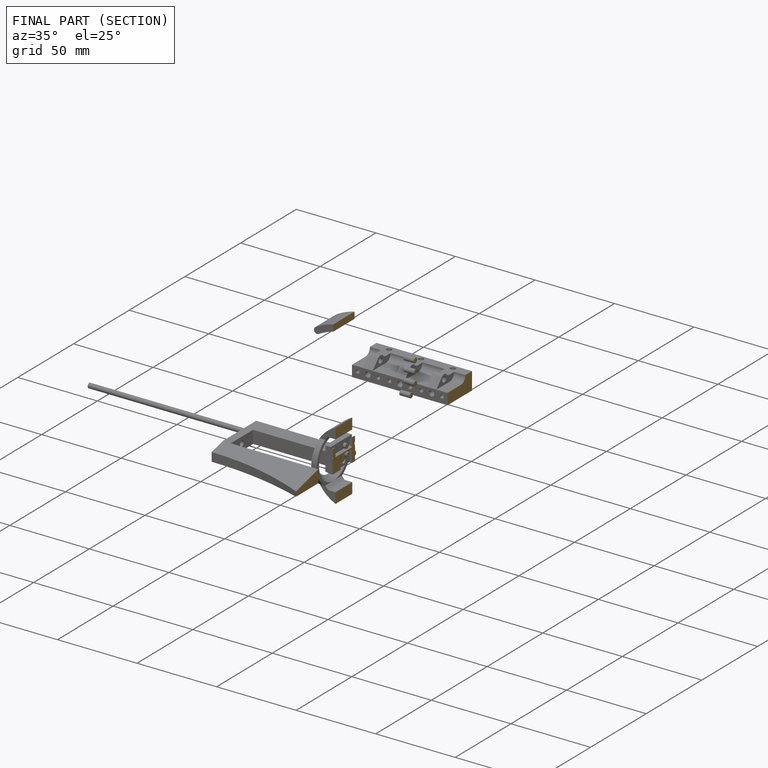
[diagram: finished part — half-section view (interior)]
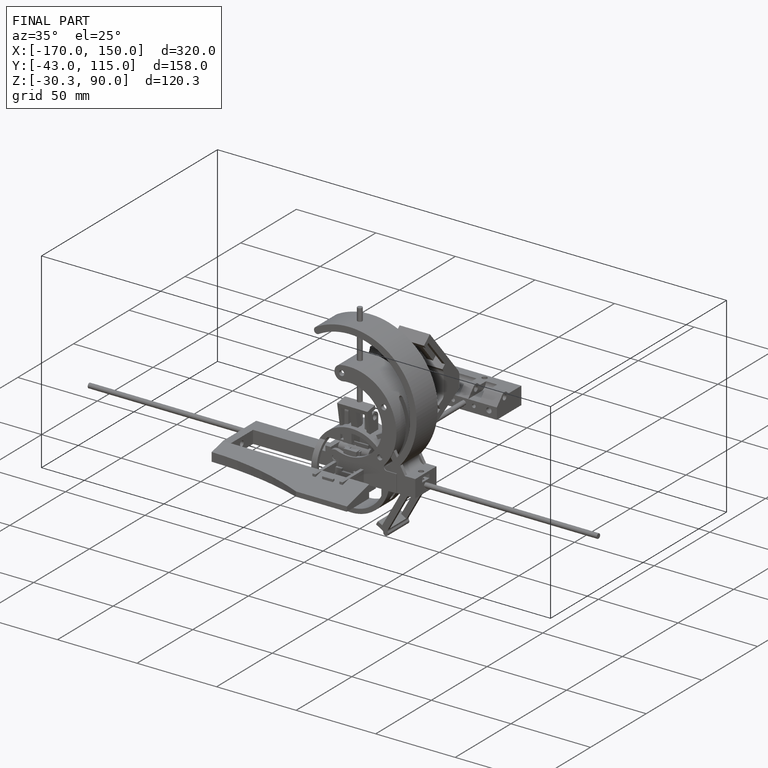
[diagram: finished part — iso view with bounding-box wireframe]
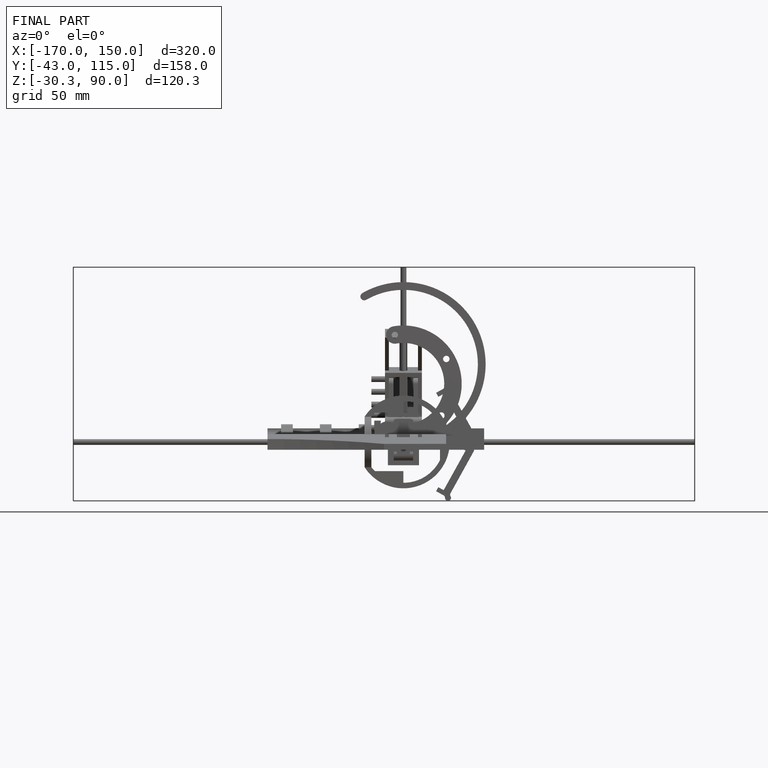
[diagram: finished part — front view with bounding-box wireframe]
